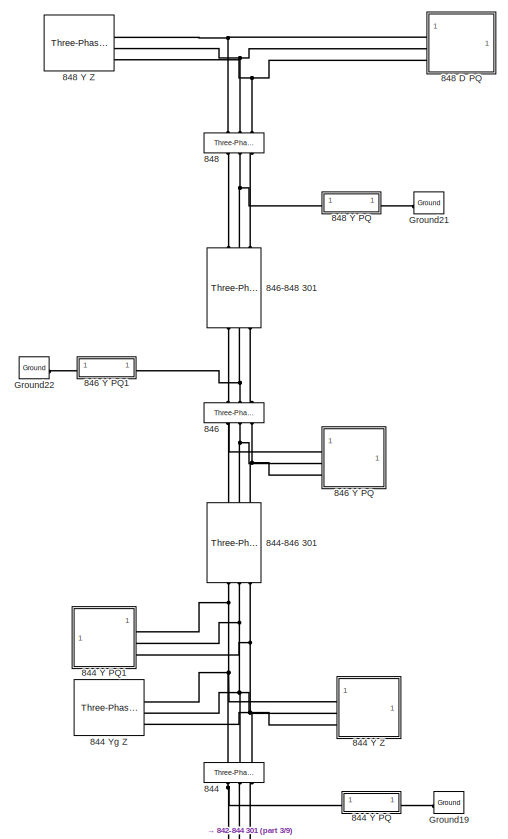
[diagram: root canvas - part 1/9, top right region]
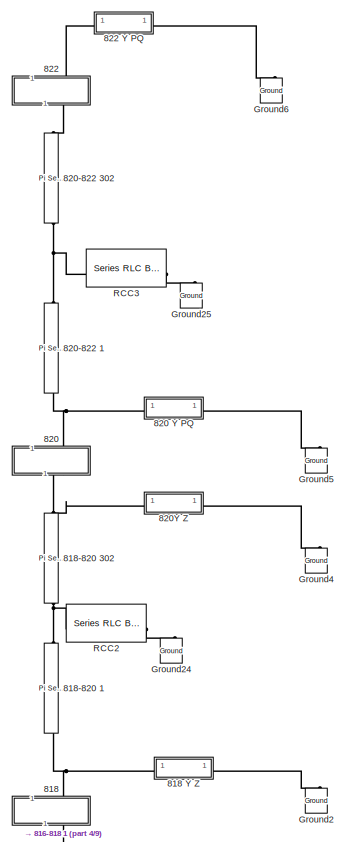
[diagram: root canvas - part 2/9, top center region]
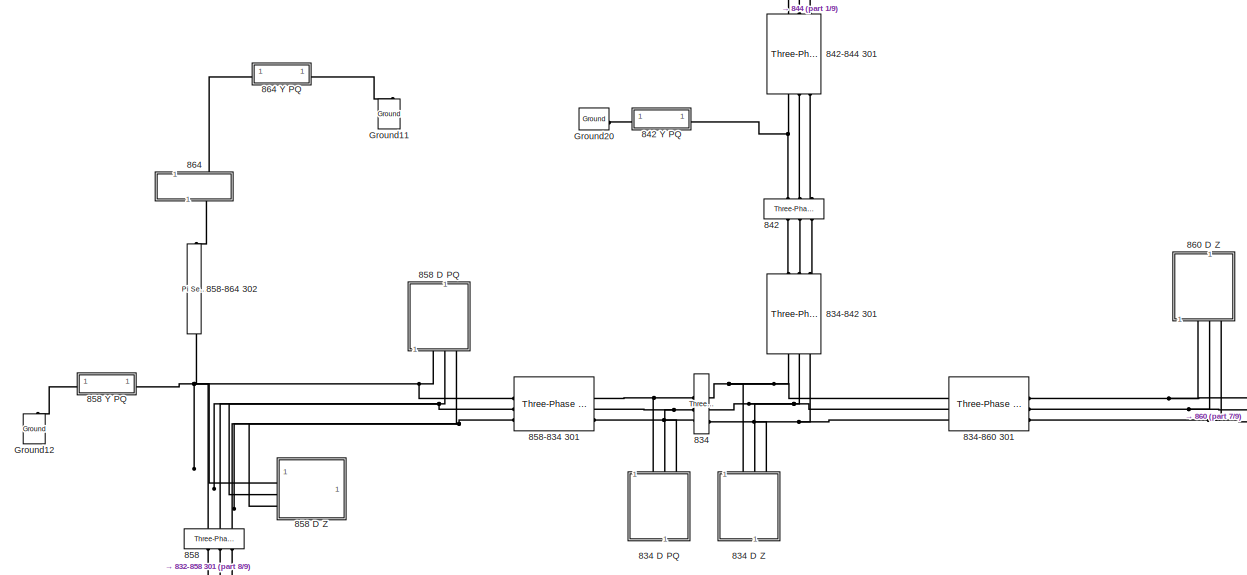
[diagram: root canvas - part 3/9, middle right region]
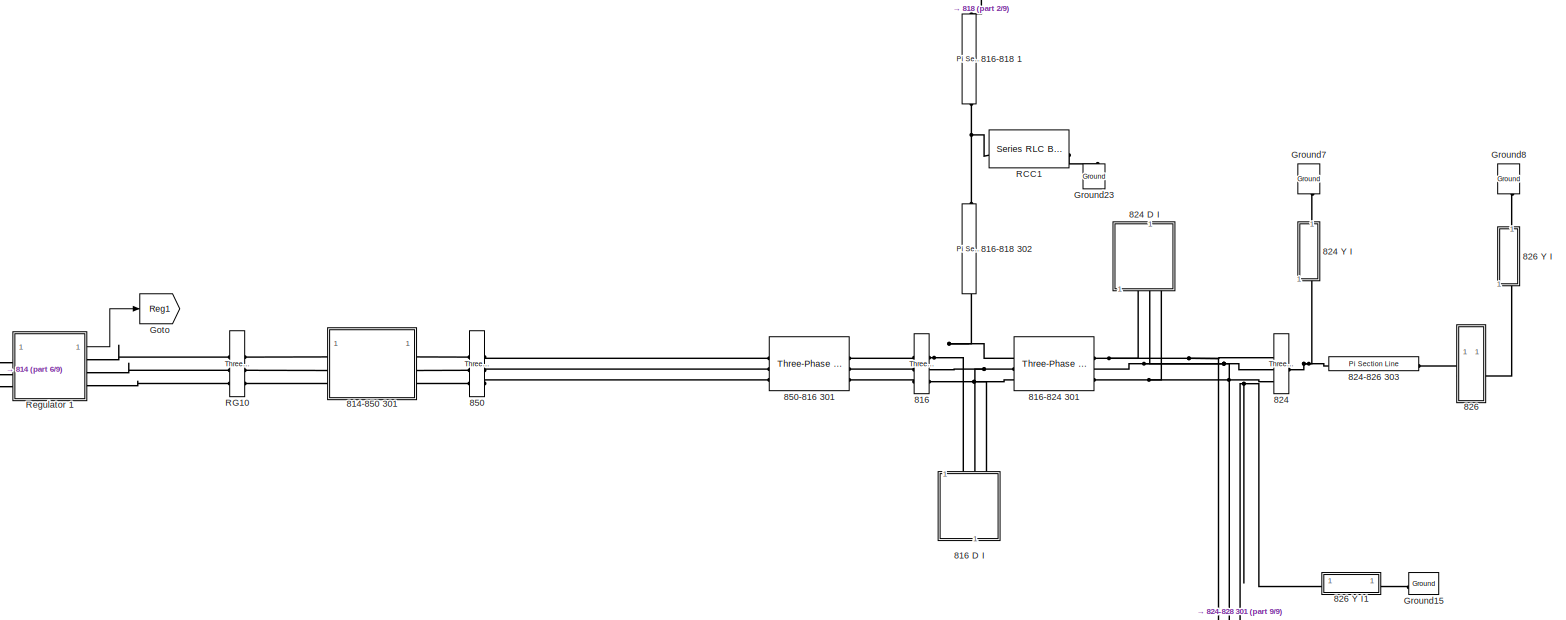
[diagram: root canvas - part 4/9, central region]
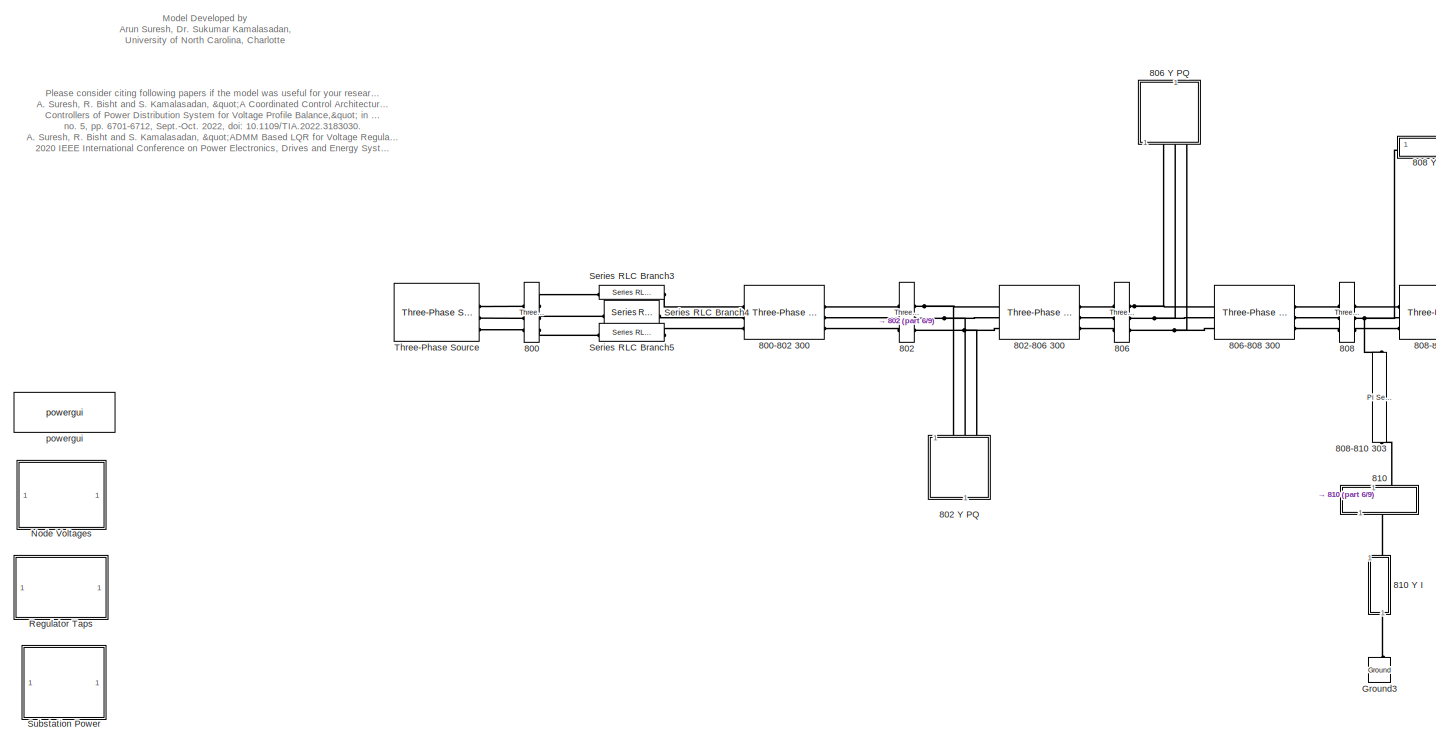
[diagram: root canvas - part 5/9, middle left region]
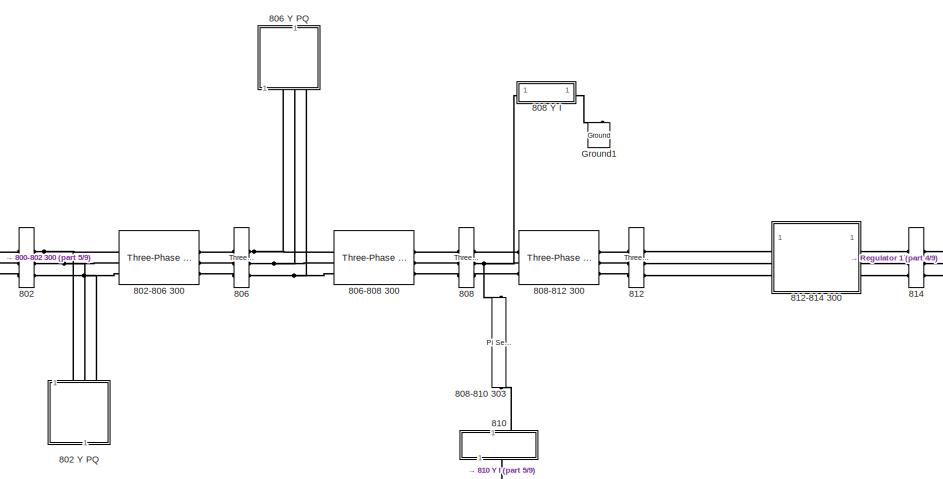
[diagram: root canvas - part 6/9, middle left region]
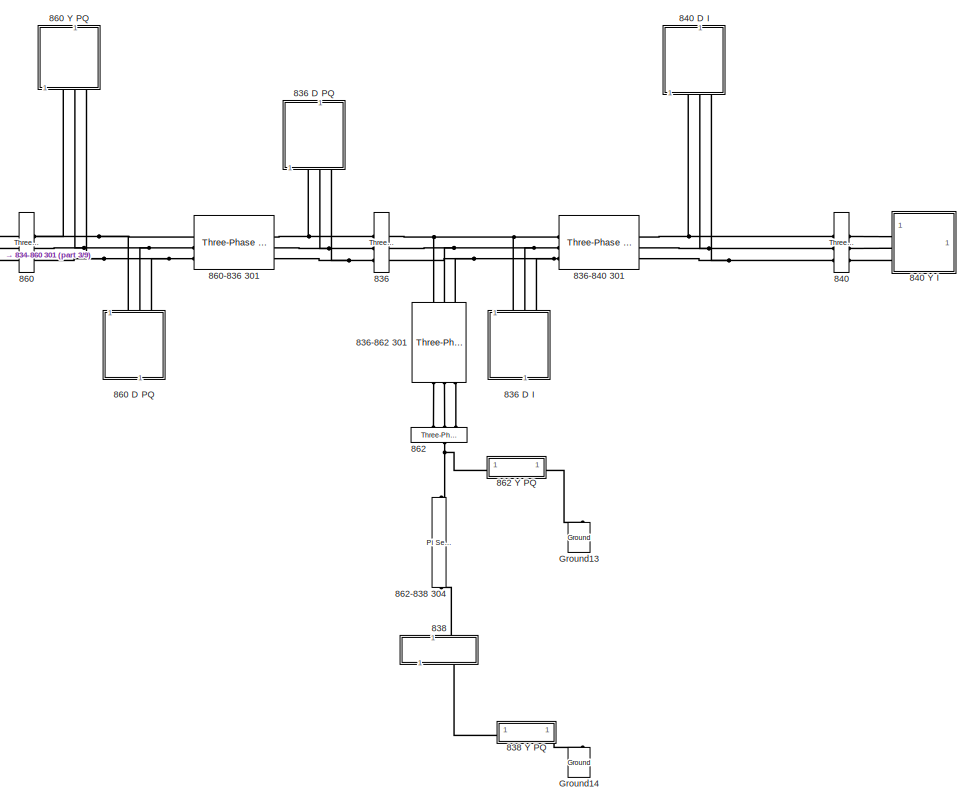
[diagram: root canvas - part 7/9, middle right region]
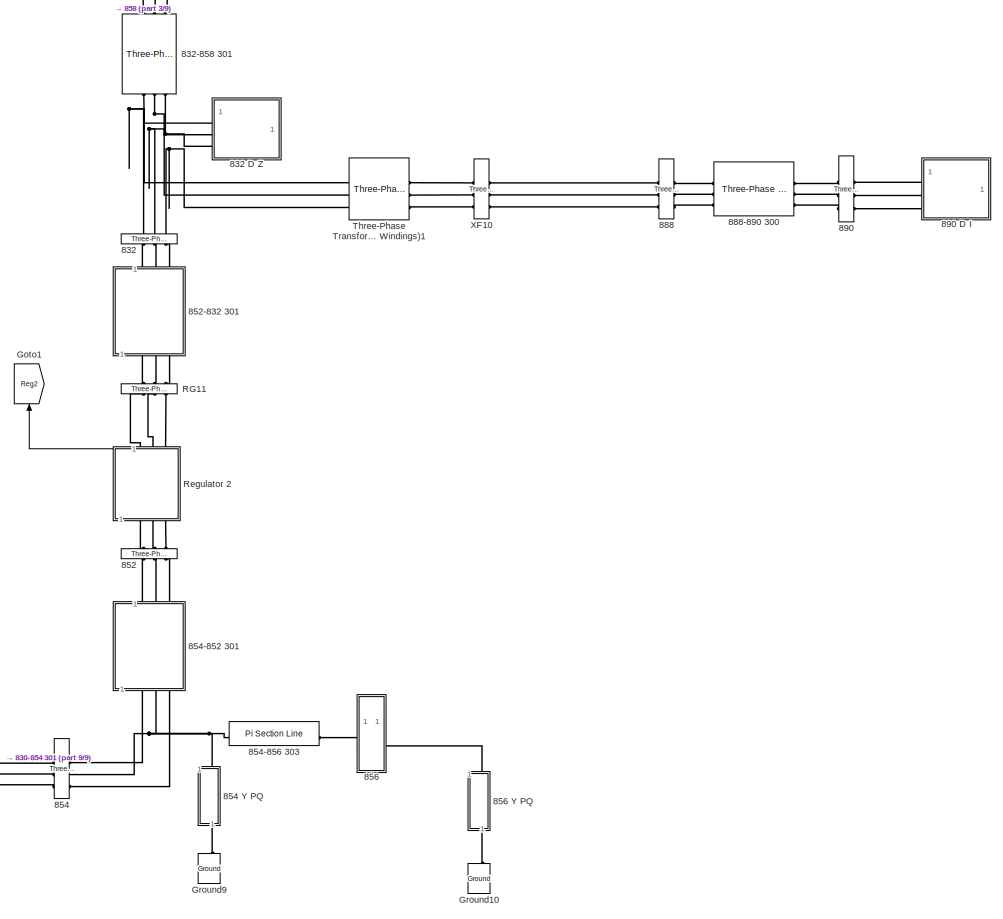
[diagram: root canvas - part 8/9, bottom right region]
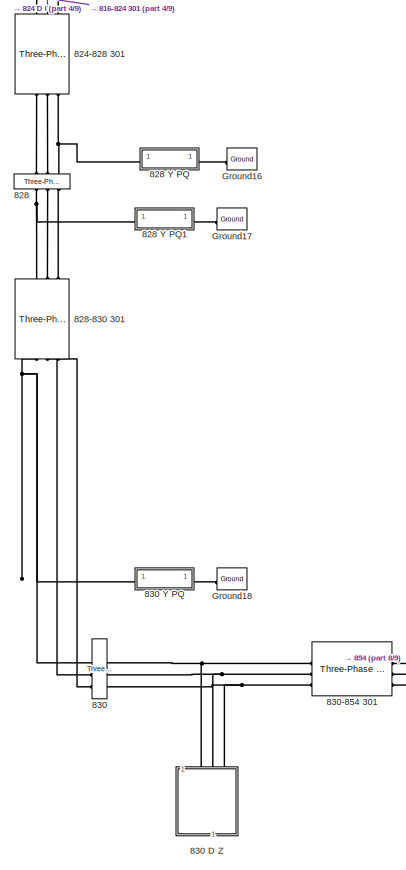
[diagram: root canvas - part 9/9, bottom center region]
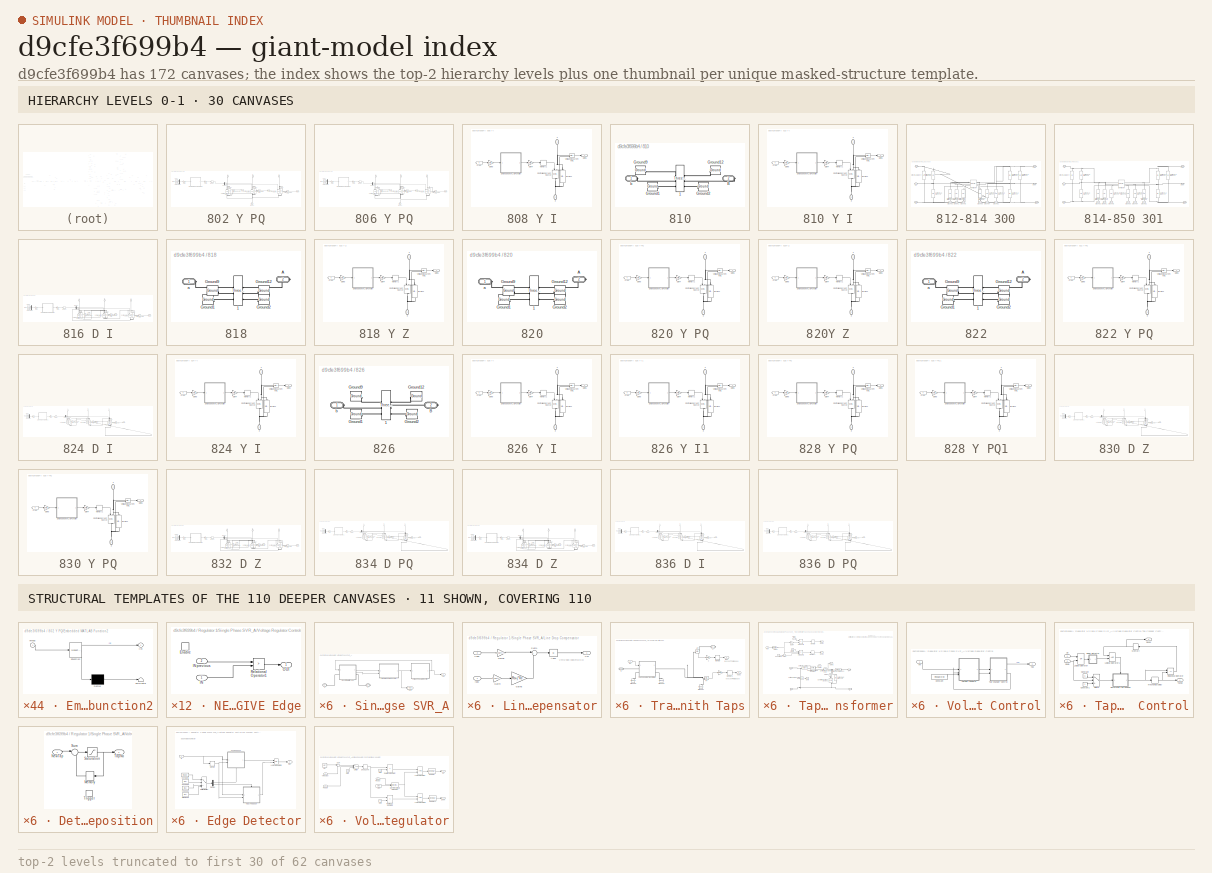
[diagram: thumbnail index - top-2 hierarchy levels (62 canvases (first 30 of 62 shown)) + 11 structural-template representatives of the remaining 110 canvases]
MODEL slx_d9cfe3f699b4
KIND model
CONFIG AbsTol = auto
CONFIG EnableMultiTasking = off
CONFIG FixedStep = Ts
CONFIG InitFcn = a=1; % Loading Factor\nTs=0.1;% For Delay Blocks in Voltage Regulator Controls\n% phase to sequence conversion of RXB matrices\nc=1*exp(sqrt(-1)*(120*pi/180));\nT=[1 1 1;1 c*c c;1 c c*c];\nTinv=1/3*[1 1 1;1 c c*c;1 c*c c];\n\n% Simulation data for the IEEE 34 Node Test Feeder model\nmi2km = 1.60934;%  miles to km conversion\nft2km = 0.0003048; % feet to km conversion\nms2F = 1*1e-6/(2*pi*60);% microsiemens ...<+2488ch>
CONFIG MaxStep = 1e-4
CONFIG MinStep = auto
CONFIG RelTol = 1e-4
CONFIG SampleTimeConstraint = Unconstrained
CONFIG SolverName = ode4
CONFIG StartTime = 0.0
CONFIG StopTime = 60
BLOCK [Reference] 800  REF=spsThreePhaseVIMeasurementLib/Three-Phase
V-I Measurement
  LibrarySourceBlock = sps_lib/Sensors and Measurements/Three-Phase\nV-I Measurement
  SourceBlock = spsThreePhaseVIMeasurementLib/Three-Phase\nV-I Measurement
  SourceType = Three-Phase VI Measurement
BLOCK [Reference] 800-802 300  REF=spsThreePhasePISectionLineLib/Three-Phase
PI Section Line
  AttributesFormatString = \n
  LibrarySourceBlock = sps_lib/Power Grid Elements/Three-Phase\nPI Section Line
  SourceBlock = spsThreePhasePISectionLineLib/Three-Phase\nPI Section Line
  SourceType = Three-Phase PI Section Line
BLOCK [Reference] 802  REF=spsThreePhaseVIMeasurementLib/Three-Phase
V-I Measurement
  LibrarySourceBlock = sps_lib/Sensors and Measurements/Three-Phase\nV-I Measurement
  SourceBlock = spsThreePhaseVIMeasurementLib/Three-Phase\nV-I Measurement
  SourceType = Three-Phase VI Measurement
BLOCK [SubSystem] 802 Y PQ
  NameLocation = right
BLOCK [PMIOPort] 802 Y PQ/ A
  NameLocation = left
  Side = Left
  Tag = PMCPort
BLOCK [PMIOPort] 802 Y PQ/ B
  NameLocation = left
  Port = 2
  Side = Left
  Tag = PMCPort
BLOCK [PMIOPort] 802 Y PQ/ C
  NameLocation = left
  Port = 3
  Side = Left
  Tag = PMCPort
BLOCK [Reference] 802 Y PQ/Controlled Current Source  REF=spsControlledCurrentSourceLib/Controlled Current Source
  LibrarySourceBlock = sps_lib/Sources/Controlled Current Source
  NameLocation = left
  SourceBlock = spsControlledCurrentSourceLib/Controlled Current Source
  SourceType = Controlled Current Source
BLOCK [Reference] 802 Y PQ/Controlled Current Source1  REF=spsControlledCurrentSourceLib/Controlled Current Source
  LibrarySourceBlock = sps_lib/Sources/Controlled Current Source
  NameLocation = left
  SourceBlock = spsControlledCurrentSourceLib/Controlled Current Source
  SourceType = Controlled Current Source
BLOCK [Reference] 802 Y PQ/Controlled Current Source2  REF=spsControlledCurrentSourceLib/Controlled Current Source
  LibrarySourceBlock = sps_lib/Sources/Controlled Current Source
  NameLocation = left
  SourceBlock = spsControlledCurrentSourceLib/Controlled Current Source
  SourceType = Controlled Current Source
BLOCK [Demux] 802 Y PQ/Demux1
  Outputs = 3
BLOCK [SubSystem] 802 Y PQ/Embedded MATLAB Function2
  ErrorFcn = Stateflow.Translate.translate
  PermitHierarchicalResolution = ExplicitOnly
  SFBlockType = MATLAB Function
  TreatAsAtomicUnit = on
BLOCK [Demux] 802 Y PQ/Embedded MATLAB Function2/ Demux 
  Outputs = 1
BLOCK [S-Function] 802 Y PQ/Embedded MATLAB Function2/ SFunction 
  EnableBusSupport = on
  FunctionName = sf_sfun
  Parameters = LoadType,Pnom,Qnom,Vlim,Vnom
  PortCounts = [1 2]
  SFcnIsStateOwnerBlock = off
  SFunctionDeploymentMode = off
  Tag = Stateflow S-Function 5
BLOCK [Terminator] 802 Y PQ/Embedded MATLAB Function2/ Terminator 
BLOCK [Outport] 802 Y PQ/Embedded MATLAB Function2/Iinj
BLOCK [Inport] 802 Y PQ/Embedded MATLAB Function2/Vmeas
BLOCK [From] 802 Y PQ/From21
  CloseFcn = tagdialog Close
  GotoTag = vC
BLOCK [From] 802 Y PQ/From22
  CloseFcn = tagdialog Close
  GotoTag = vA
BLOCK [From] 802 Y PQ/From3
  CloseFcn = tagdialog Close
  GotoTag = vB
BLOCK [Gain] 802 Y PQ/Gain4
  Gain = sqrt(2)
BLOCK [Gain] 802 Y PQ/Gain5
  Gain = 1/sqrt(2)
BLOCK [Goto] 802 Y PQ/Goto2
  GotoTag = vA
BLOCK [Goto] 802 Y PQ/Goto4
  GotoTag = vB
BLOCK [Goto] 802 Y PQ/Goto5
  GotoTag = vC
BLOCK [Reference] 802 Y PQ/Ground1  REF=spsGroundLib/Ground
  LibrarySourceBlock = sps_lib/Utilities/Ground
  NameLocation = right
  SourceBlock = spsGroundLib/Ground
  SourceType = Ground
BLOCK [Memory] 802 Y PQ/Memory3
BLOCK [Mux] 802 Y PQ/Mux5
  DisplayOption = bar
  Inputs = 3
BLOCK [Reference] 802 Y PQ/Rc+jXc1  REF=spsSeriesRLCBranchLib/Series RLC Branch
  LibrarySourceBlock = sps_lib/Passives/Series RLC Branch
  NameLocation = left
  SourceBlock = spsSeriesRLCBranchLib/Series RLC Branch
  SourceType = Series RLC Branch
BLOCK [Reference] 802 Y PQ/Rc+jXc2  REF=spsSeriesRLCBranchLib/Series RLC Branch
  LibrarySourceBlock = sps_lib/Passives/Series RLC Branch
  NameLocation = left
  SourceBlock = spsSeriesRLCBranchLib/Series RLC Branch
  SourceType = Series RLC Branch
BLOCK [Reference] 802 Y PQ/Rc+jXc3  REF=spsSeriesRLCBranchLib/Series RLC Branch
  LibrarySourceBlock = sps_lib/Passives/Series RLC Branch
  NameLocation = left
  SourceBlock = spsSeriesRLCBranchLib/Series RLC Branch
  SourceType = Series RLC Branch
BLOCK [Reference] 802 Y PQ/Voltage Measurement4  REF=spsVoltageMeasurementLib/Voltage Measurement
  LibrarySourceBlock = sps_lib/Sensors and Measurements/Voltage Measurement
  SourceBlock = spsVoltageMeasurementLib/Voltage Measurement
  SourceType = Voltage Measurement
BLOCK [Reference] 802 Y PQ/Voltage Measurement5  REF=spsVoltageMeasurementLib/Voltage Measurement
  LibrarySourceBlock = sps_lib/Sensors and Measurements/Voltage Measurement
  SourceBlock = spsVoltageMeasurementLib/Voltage Measurement
  SourceType = Voltage Measurement
BLOCK [Reference] 802 Y PQ/Voltage Measurement6  REF=spsVoltageMeasurementLib/Voltage Measurement
  LibrarySourceBlock = sps_lib/Sensors and Measurements/Voltage Measurement
  SourceBlock = spsVoltageMeasurementLib/Voltage Measurement
  SourceType = Voltage Measurement
BLOCK [Reference] 802-806 300  REF=spsThreePhasePISectionLineLib/Three-Phase
PI Section Line
  AttributesFormatString = \n
  LibrarySourceBlock = sps_lib/Power Grid Elements/Three-Phase\nPI Section Line
  SourceBlock = spsThreePhasePISectionLineLib/Three-Phase\nPI Section Line
  SourceType = Three-Phase PI Section Line
BLOCK [Reference] 806  REF=spsThreePhaseVIMeasurementLib/Three-Phase
V-I Measurement
  LibrarySourceBlock = sps_lib/Sensors and Measurements/Three-Phase\nV-I Measurement
  SourceBlock = spsThreePhaseVIMeasurementLib/Three-Phase\nV-I Measurement
  SourceType = Three-Phase VI Measurement
BLOCK [SubSystem] 806 Y PQ
  NameLocation = left
BLOCK [PMIOPort] 806 Y PQ/ A
  NameLocation = left
  Side = Left
  Tag = PMCPort
BLOCK [PMIOPort] 806 Y PQ/ B
  NameLocation = left
  Port = 2
  Side = Left
  Tag = PMCPort
BLOCK [PMIOPort] 806 Y PQ/ C
  NameLocation = left
  Port = 3
  Side = Left
  Tag = PMCPort
BLOCK [Reference] 806 Y PQ/Controlled Current Source  REF=spsControlledCurrentSourceLib/Controlled Current Source
  LibrarySourceBlock = sps_lib/Sources/Controlled Current Source
  NameLocation = left
  SourceBlock = spsControlledCurrentSourceLib/Controlled Current Source
  SourceType = Controlled Current Source
BLOCK [Reference] 806 Y PQ/Controlled Current Source1  REF=spsControlledCurrentSourceLib/Controlled Current Source
  LibrarySourceBlock = sps_lib/Sources/Controlled Current Source
  NameLocation = left
  SourceBlock = spsControlledCurrentSourceLib/Controlled Current Source
  SourceType = Controlled Current Source
BLOCK [Reference] 806 Y PQ/Controlled Current Source2  REF=spsControlledCurrentSourceLib/Controlled Current Source
  LibrarySourceBlock = sps_lib/Sources/Controlled Current Source
  NameLocation = left
  SourceBlock = spsControlledCurrentSourceLib/Controlled Current Source
  SourceType = Controlled Current Source
BLOCK [Demux] 806 Y PQ/Demux1
  Outputs = 3
BLOCK [SubSystem] 806 Y PQ/Embedded MATLAB Function2
  ErrorFcn = Stateflow.Translate.translate
  PermitHierarchicalResolution = ExplicitOnly
  SFBlockType = MATLAB Function
  TreatAsAtomicUnit = on
BLOCK [Demux] 806 Y PQ/Embedded MATLAB Function2/ Demux 
  Outputs = 1
BLOCK [S-Function] 806 Y PQ/Embedded MATLAB Function2/ SFunction 
  EnableBusSupport = on
  FunctionName = sf_sfun
  Parameters = LoadType,Pnom,Qnom,Vlim,Vnom
  PortCounts = [1 2]
  SFcnIsStateOwnerBlock = off
  SFunctionDeploymentMode = off
  Tag = Stateflow S-Function 6
BLOCK [Terminator] 806 Y PQ/Embedded MATLAB Function2/ Terminator 
BLOCK [Outport] 806 Y PQ/Embedded MATLAB Function2/Iinj
BLOCK [Inport] 806 Y PQ/Embedded MATLAB Function2/Vmeas
BLOCK [From] 806 Y PQ/From21
  CloseFcn = tagdialog Close
  GotoTag = vC
BLOCK [From] 806 Y PQ/From22
  CloseFcn = tagdialog Close
  GotoTag = vA
BLOCK [From] 806 Y PQ/From3
  CloseFcn = tagdialog Close
  GotoTag = vB
BLOCK [Gain] 806 Y PQ/Gain4
  Gain = sqrt(2)
BLOCK [Gain] 806 Y PQ/Gain5
  Gain = 1/sqrt(2)
BLOCK [Goto] 806 Y PQ/Goto2
  GotoTag = vA
BLOCK [Goto] 806 Y PQ/Goto4
  GotoTag = vB
BLOCK [Goto] 806 Y PQ/Goto5
  GotoTag = vC
BLOCK [Reference] 806 Y PQ/Ground1  REF=spsGroundLib/Ground
  LibrarySourceBlock = sps_lib/Utilities/Ground
  NameLocation = right
  SourceBlock = spsGroundLib/Ground
  SourceType = Ground
BLOCK [Memory] 806 Y PQ/Memory3
BLOCK [Mux] 806 Y PQ/Mux5
  DisplayOption = bar
  Inputs = 3
BLOCK [Reference] 806 Y PQ/Rc+jXc1  REF=spsSeriesRLCBranchLib/Series RLC Branch
  LibrarySourceBlock = sps_lib/Passives/Series RLC Branch
  NameLocation = left
  SourceBlock = spsSeriesRLCBranchLib/Series RLC Branch
  SourceType = Series RLC Branch
BLOCK [Reference] 806 Y PQ/Rc+jXc2  REF=spsSeriesRLCBranchLib/Series RLC Branch
  LibrarySourceBlock = sps_lib/Passives/Series RLC Branch
  NameLocation = left
  SourceBlock = spsSeriesRLCBranchLib/Series RLC Branch
  SourceType = Series RLC Branch
BLOCK [Reference] 806 Y PQ/Rc+jXc3  REF=spsSeriesRLCBranchLib/Series RLC Branch
  LibrarySourceBlock = sps_lib/Passives/Series RLC Branch
  NameLocation = left
  SourceBlock = spsSeriesRLCBranchLib/Series RLC Branch
  SourceType = Series RLC Branch
BLOCK [Reference] 806 Y PQ/Voltage Measurement4  REF=spsVoltageMeasurementLib/Voltage Measurement
  LibrarySourceBlock = sps_lib/Sensors and Measurements/Voltage Measurement
  SourceBlock = spsVoltageMeasurementLib/Voltage Measurement
  SourceType = Voltage Measurement
BLOCK [Reference] 806 Y PQ/Voltage Measurement5  REF=spsVoltageMeasurementLib/Voltage Measurement
  LibrarySourceBlock = sps_lib/Sensors and Measurements/Voltage Measurement
  SourceBlock = spsVoltageMeasurementLib/Voltage Measurement
  SourceType = Voltage Measurement
BLOCK [Reference] 806 Y PQ/Voltage Measurement6  REF=spsVoltageMeasurementLib/Voltage Measurement
  LibrarySourceBlock = sps_lib/Sensors and Measurements/Voltage Measurement
  SourceBlock = spsVoltageMeasurementLib/Voltage Measurement
  SourceType = Voltage Measurement
BLOCK [Reference] 806-808 300  REF=spsThreePhasePISectionLineLib/Three-Phase
PI Section Line
  AttributesFormatString = \n
  LibrarySourceBlock = sps_lib/Power Grid Elements/Three-Phase\nPI Section Line
  SourceBlock = spsThreePhasePISectionLineLib/Three-Phase\nPI Section Line
  SourceType = Three-Phase PI Section Line
BLOCK [Reference] 808  REF=spsThreePhaseVIMeasurementLib/Three-Phase
V-I Measurement
  LibrarySourceBlock = sps_lib/Sensors and Measurements/Three-Phase\nV-I Measurement
  SourceBlock = spsThreePhaseVIMeasurementLib/Three-Phase\nV-I Measurement
  SourceType = Three-Phase VI Measurement
BLOCK [SubSystem] 808 Y I
BLOCK [PMIOPort] 808 Y I/ 2
  NameLocation = left
  Side = Left
  Tag = PMCPort
BLOCK [PMIOPort] 808 Y I/ 3
  NameLocation = right
  Port = 2
  Side = Right
  Tag = PMCPort
BLOCK [Reference] 808 Y I/Controlled Current Source  REF=spsControlledCurrentSourceLib/Controlled Current Source
  LibrarySourceBlock = sps_lib/Sources/Controlled Current Source
  NameLocation = left
  SourceBlock = spsControlledCurrentSourceLib/Controlled Current Source
  SourceType = Controlled Current Source
BLOCK [SubSystem] 808 Y I/Embedded MATLAB Function
  ErrorFcn = Stateflow.Translate.translate
  PermitHierarchicalResolution = ExplicitOnly
  SFBlockType = MATLAB Function
  TreatAsAtomicUnit = on
BLOCK [Demux] 808 Y I/Embedded MATLAB Function/ Demux 
  Outputs = 1
BLOCK [S-Function] 808 Y I/Embedded MATLAB Function/ SFunction 
  EnableBusSupport = on
  FunctionName = sf_sfun
  Parameters = LoadType,Pnom,Qnom,Vlim,Vnom
  PortCounts = [1 2]
  SFcnIsStateOwnerBlock = off
  SFunctionDeploymentMode = off
  Tag = Stateflow S-Function 50
BLOCK [Terminator] 808 Y I/Embedded MATLAB Function/ Terminator 
BLOCK [Outport] 808 Y I/Embedded MATLAB Function/Iinj
BLOCK [Inport] 808 Y I/Embedded MATLAB Function/Vmeas
BLOCK [From] 808 Y I/From
  GotoTag = v
BLOCK [Gain] 808 Y I/Gain4
  Gain = sqrt(2)
BLOCK [Gain] 808 Y I/Gain5
  Gain = 1/sqrt(2)
BLOCK [Goto] 808 Y I/Goto1
  GotoTag = v
BLOCK [Memory] 808 Y I/Memory1
BLOCK [Reference] 808 Y I/Rc+jXc1  REF=spsSeriesRLCBranchLib/Series RLC Branch
  LibrarySourceBlock = sps_lib/Passives/Series RLC Branch
  NameLocation = left
  SourceBlock = spsSeriesRLCBranchLib/Series RLC Branch
  SourceType = Series RLC Branch
BLOCK [Reference] 808 Y I/Voltage Measurement1  REF=spsVoltageMeasurementLib/Voltage Measurement
  LibrarySourceBlock = sps_lib/Sensors and Measurements/Voltage Measurement
  SourceBlock = spsVoltageMeasurementLib/Voltage Measurement
  SourceType = Voltage Measurement
BLOCK [Reference] 808-810 303  REF=spsPiSectionLineLib/Pi Section Line
  AttributesFormatString = \n
  LibrarySourceBlock = sps_lib/Power Grid Elements/Pi Section Line
  NameLocation = left
  SourceBlock = spsPiSectionLineLib/Pi Section Line
  SourceType = Pi Section Line
BLOCK [Reference] 808-812 300  REF=spsThreePhasePISectionLineLib/Three-Phase
PI Section Line
  AttributesFormatString = \n
  LibrarySourceBlock = sps_lib/Power Grid Elements/Three-Phase\nPI Section Line
  SourceBlock = spsThreePhasePISectionLineLib/Three-Phase\nPI Section Line
  SourceType = Three-Phase PI Section Line
BLOCK [SubSystem] 810
  NameLocation = right
BLOCK [SubSystem] 810 Y I
  NameLocation = left
BLOCK [PMIOPort] 810 Y I/ 2
  NameLocation = left
  Side = Left
  Tag = PMCPort
BLOCK [PMIOPort] 810 Y I/ 3
  NameLocation = right
  Port = 2
  Side = Right
  Tag = PMCPort
BLOCK [Reference] 810 Y I/Controlled Current Source  REF=spsControlledCurrentSourceLib/Controlled Current Source
  LibrarySourceBlock = sps_lib/Sources/Controlled Current Source
  NameLocation = left
  SourceBlock = spsControlledCurrentSourceLib/Controlled Current Source
  SourceType = Controlled Current Source
BLOCK [SubSystem] 810 Y I/Embedded MATLAB Function
  ErrorFcn = Stateflow.Translate.translate
  PermitHierarchicalResolution = ExplicitOnly
  SFBlockType = MATLAB Function
  TreatAsAtomicUnit = on
BLOCK [Demux] 810 Y I/Embedded MATLAB Function/ Demux 
  Outputs = 1
BLOCK [S-Function] 810 Y I/Embedded MATLAB Function/ SFunction 
  EnableBusSupport = on
  FunctionName = sf_sfun
  Parameters = LoadType,Pnom,Qnom,Vlim,Vnom
  PortCounts = [1 2]
  SFcnIsStateOwnerBlock = off
  SFunctionDeploymentMode = off
  Tag = Stateflow S-Function 49
BLOCK [Terminator] 810 Y I/Embedded MATLAB Function/ Terminator 
BLOCK [Outport] 810 Y I/Embedded MATLAB Function/Iinj
BLOCK [Inport] 810 Y I/Embedded MATLAB Function/Vmeas
BLOCK [From] 810 Y I/From
  GotoTag = v
BLOCK [Gain] 810 Y I/Gain4
  Gain = sqrt(2)
BLOCK [Gain] 810 Y I/Gain5
  Gain = 1/sqrt(2)
BLOCK [Goto] 810 Y I/Goto1
  GotoTag = v
BLOCK [Memory] 810 Y I/Memory1
BLOCK [Reference] 810 Y I/Rc+jXc1  REF=spsSeriesRLCBranchLib/Series RLC Branch
  LibrarySourceBlock = sps_lib/Passives/Series RLC Branch
  NameLocation = left
  SourceBlock = spsSeriesRLCBranchLib/Series RLC Branch
  SourceType = Series RLC Branch
BLOCK [Reference] 810 Y I/Voltage Measurement1  REF=spsVoltageMeasurementLib/Voltage Measurement
  LibrarySourceBlock = sps_lib/Sensors and Measurements/Voltage Measurement
  SourceBlock = spsVoltageMeasurementLib/Voltage Measurement
  SourceType = Voltage Measurement
BLOCK [Reference] 810/1  REF=spsThreePhaseVIMeasurementLib/Three-Phase
V-I Measurement
  LibrarySourceBlock = sps_lib/Sensors and Measurements/Three-Phase\nV-I Measurement
  NameLocation = top
  SourceBlock = spsThreePhaseVIMeasurementLib/Three-Phase\nV-I Measurement
  SourceType = Three-Phase VI Measurement
BLOCK [PMIOPort] 810/B
  Port = 2
  Side = Right
BLOCK [Reference] 810/Ground1  REF=spsGroundLib/Ground
  LibrarySourceBlock = sps_lib/Utilities/Ground
  SourceBlock = spsGroundLib/Ground
  SourceType = Ground
BLOCK [Reference] 810/Ground12  REF=spsGroundLib/Ground
  LibrarySourceBlock = sps_lib/Utilities/Ground
  NameLocation = top
  SourceBlock = spsGroundLib/Ground
  SourceType = Ground
BLOCK [Reference] 810/Ground2  REF=spsGroundLib/Ground
  LibrarySourceBlock = sps_lib/Utilities/Ground
  NameLocation = top
  SourceBlock = spsGroundLib/Ground
  SourceType = Ground
BLOCK [Reference] 810/Ground9  REF=spsGroundLib/Ground
  LibrarySourceBlock = sps_lib/Utilities/Ground
  SourceBlock = spsGroundLib/Ground
  SourceType = Ground
BLOCK [PMIOPort] 810/b
  Side = Left
BLOCK [Reference] 812  REF=spsThreePhaseVIMeasurementLib/Three-Phase
V-I Measurement
  LibrarySourceBlock = sps_lib/Sensors and Measurements/Three-Phase\nV-I Measurement
  SourceBlock = spsThreePhaseVIMeasurementLib/Three-Phase\nV-I Measurement
  SourceType = Three-Phase VI Measurement
BLOCK [SubSystem] 812-814 300
BLOCK [PMIOPort] 812-814 300/A In
  NameLocation = top
  Side = Left
BLOCK [PMIOPort] 812-814 300/A Out
  Port = 4
  Side = Right
BLOCK [PMIOPort] 812-814 300/B In
  NameLocation = top
  Port = 2
  Side = Left
BLOCK [PMIOPort] 812-814 300/B Out
  NameLocation = top
  Port = 5
  Side = Right
BLOCK [PMIOPort] 812-814 300/C Out
  NameLocation = top
  Port = 6
  Side = Right
BLOCK [PMIOPort] 812-814 300/C in
  NameLocation = top
  Port = 3
  Side = Left
BLOCK [Reference] 812-814 300/Config300  REF=spsMutualInductanceLib/Mutual Inductance
  AttributesFormatString = \n
  LibrarySourceBlock = sps_lib/Passives/Mutual Inductance
  SourceBlock = spsMutualInductanceLib/Mutual Inductance
  SourceType = Mutual Inductance
BLOCK [Reference] 812-814 300/Ground1  REF=spsGroundLib/Ground
  LibrarySourceBlock = sps_lib/Utilities/Ground
  NameLocation = left
  SourceBlock = spsGroundLib/Ground
  SourceType = Ground
BLOCK [Reference] 812-814 300/Ground2  REF=spsGroundLib/Ground
  LibrarySourceBlock = sps_lib/Utilities/Ground
  NameLocation = left
  SourceBlock = spsGroundLib/Ground
  SourceType = Ground
BLOCK [Reference] 812-814 300/Ground3  REF=spsGroundLib/Ground
  LibrarySourceBlock = sps_lib/Utilities/Ground
  NameLocation = left
  SourceBlock = spsGroundLib/Ground
  SourceType = Ground
BLOCK [Reference] 812-814 300/Ground4  REF=spsGroundLib/Ground
  LibrarySourceBlock = sps_lib/Utilities/Ground
  NameLocation = left
  SourceBlock = spsGroundLib/Ground
  SourceType = Ground
BLOCK [Reference] 812-814 300/Ground5  REF=spsGroundLib/Ground
  LibrarySourceBlock = sps_lib/Utilities/Ground
  NameLocation = left
  SourceBlock = spsGroundLib/Ground
  SourceType = Ground
BLOCK [Reference] 812-814 300/Ground6  REF=spsGroundLib/Ground
  LibrarySourceBlock = sps_lib/Utilities/Ground
  NameLocation = left
  SourceBlock = spsGroundLib/Ground
  SourceType = Ground
BLOCK [Reference] 812-814 300/Series RLC Branch  REF=spsSeriesRLCBranchLib/Series RLC Branch
  LibrarySourceBlock = sps_lib/Passives/Series RLC Branch
  NameLocation = left
  SourceBlock = spsSeriesRLCBranchLib/Series RLC Branch
  SourceType = Series RLC Branch
BLOCK [Reference] 812-814 300/Series RLC Branch1  REF=spsSeriesRLCBranchLib/Series RLC Branch
  LibrarySourceBlock = sps_lib/Passives/Series RLC Branch
  NameLocation = left
  SourceBlock = spsSeriesRLCBranchLib/Series RLC Branch
  SourceType = Series RLC Branch
BLOCK [Reference] 812-814 300/Series RLC Branch10  REF=spsSeriesRLCBranchLib/Series RLC Branch
  LibrarySourceBlock = sps_lib/Passives/Series RLC Branch
  NameLocation = left
  SourceBlock = spsSeriesRLCBranchLib/Series RLC Branch
  SourceType = Series RLC Branch
BLOCK [Reference] 812-814 300/Series RLC Branch11  REF=spsSeriesRLCBranchLib/Series RLC Branch
  LibrarySourceBlock = sps_lib/Passives/Series RLC Branch
  NameLocation = left
  SourceBlock = spsSeriesRLCBranchLib/Series RLC Branch
  SourceType = Series RLC Branch
BLOCK [Reference] 812-814 300/Series RLC Branch2  REF=spsSeriesRLCBranchLib/Series RLC Branch
  LibrarySourceBlock = sps_lib/Passives/Series RLC Branch
  NameLocation = left
  SourceBlock = spsSeriesRLCBranchLib/Series RLC Branch
  SourceType = Series RLC Branch
BLOCK [Reference] 812-814 300/Series RLC Branch3  REF=spsSeriesRLCBranchLib/Series RLC Branch
  LibrarySourceBlock = sps_lib/Passives/Series RLC Branch
  NameLocation = left
  SourceBlock = spsSeriesRLCBranchLib/Series RLC Branch
  SourceType = Series RLC Branch
BLOCK [Reference] 812-814 300/Series RLC Branch4  REF=spsSeriesRLCBranchLib/Series RLC Branch
  LibrarySourceBlock = sps_lib/Passives/Series RLC Branch
  NameLocation = left
  SourceBlock = spsSeriesRLCBranchLib/Series RLC Branch
  SourceType = Series RLC Branch
BLOCK [Reference] 812-814 300/Series RLC Branch5  REF=spsSeriesRLCBranchLib/Series RLC Branch
  LibrarySourceBlock = sps_lib/Passives/Series RLC Branch
  NameLocation = left
  SourceBlock = spsSeriesRLCBranchLib/Series RLC Branch
  SourceType = Series RLC Branch
BLOCK [Reference] 812-814 300/Series RLC Branch6  REF=spsSeriesRLCBranchLib/Series RLC Branch
  LibrarySourceBlock = sps_lib/Passives/Series RLC Branch
  NameLocation = left
  SourceBlock = spsSeriesRLCBranchLib/Series RLC Branch
  SourceType = Series RLC Branch
BLOCK [Reference] 812-814 300/Series RLC Branch7  REF=spsSeriesRLCBranchLib/Series RLC Branch
  LibrarySourceBlock = sps_lib/Passives/Series RLC Branch
  NameLocation = left
  SourceBlock = spsSeriesRLCBranchLib/Series RLC Branch
  SourceType = Series RLC Branch
BLOCK [Reference] 812-814 300/Series RLC Branch8  REF=spsSeriesRLCBranchLib/Series RLC Branch
  LibrarySourceBlock = sps_lib/Passives/Series RLC Branch
  NameLocation = left
  SourceBlock = spsSeriesRLCBranchLib/Series RLC Branch
  SourceType = Series RLC Branch
BLOCK [Reference] 812-814 300/Series RLC Branch9  REF=spsSeriesRLCBranchLib/Series RLC Branch
  LibrarySourceBlock = sps_lib/Passives/Series RLC Branch
  NameLocation = left
  SourceBlock = spsSeriesRLCBranchLib/Series RLC Branch
  SourceType = Series RLC Branch
BLOCK [Reference] 814  REF=spsThreePhaseVIMeasurementLib/Three-Phase
V-I Measurement
  LibrarySourceBlock = sps_lib/Sensors and Measurements/Three-Phase\nV-I Measurement
  SourceBlock = spsThreePhaseVIMeasurementLib/Three-Phase\nV-I Measurement
  SourceType = Three-Phase VI Measurement
BLOCK [SubSystem] 814-850 301
BLOCK [PMIOPort] 814-850 301/A In
  NameLocation = top
  Side = Left
BLOCK [PMIOPort] 814-850 301/A Out
  Port = 4
  Side = Right
BLOCK [PMIOPort] 814-850 301/B In
  NameLocation = top
  Port = 2
  Side = Left
BLOCK [PMIOPort] 814-850 301/B Out
  NameLocation = top
  Port = 5
  Side = Right
BLOCK [PMIOPort] 814-850 301/C Out
  NameLocation = top
  Port = 6
  Side = Right
BLOCK [PMIOPort] 814-850 301/C in
  NameLocation = top
  Port = 3
  Side = Left
BLOCK [Reference] 814-850 301/Config300  REF=spsMutualInductanceLib/Mutual Inductance
  AttributesFormatString = \n
  LibrarySourceBlock = sps_lib/Passives/Mutual Inductance
  SourceBlock = spsMutualInductanceLib/Mutual Inductance
  SourceType = Mutual Inductance
BLOCK [Reference] 814-850 301/Ground1  REF=spsGroundLib/Ground
  LibrarySourceBlock = sps_lib/Utilities/Ground
  NameLocation = left
  SourceBlock = spsGroundLib/Ground
  SourceType = Ground
BLOCK [Reference] 814-850 301/Ground2  REF=spsGroundLib/Ground
  LibrarySourceBlock = sps_lib/Utilities/Ground
  NameLocation = left
  SourceBlock = spsGroundLib/Ground
  SourceType = Ground
BLOCK [Reference] 814-850 301/Ground3  REF=spsGroundLib/Ground
  LibrarySourceBlock = sps_lib/Utilities/Ground
  NameLocation = left
  SourceBlock = spsGroundLib/Ground
  SourceType = Ground
BLOCK [Reference] 814-850 301/Ground4  REF=spsGroundLib/Ground
  LibrarySourceBlock = sps_lib/Utilities/Ground
  NameLocation = left
  SourceBlock = spsGroundLib/Ground
  SourceType = Ground
BLOCK [Reference] 814-850 301/Ground5  REF=spsGroundLib/Ground
  LibrarySourceBlock = sps_lib/Utilities/Ground
  NameLocation = left
  SourceBlock = spsGroundLib/Ground
  SourceType = Ground
BLOCK [Reference] 814-850 301/Ground6  REF=spsGroundLib/Ground
  LibrarySourceBlock = sps_lib/Utilities/Ground
  NameLocation = left
  SourceBlock = spsGroundLib/Ground
  SourceType = Ground
BLOCK [Reference] 814-850 301/Series RLC Branch  REF=spsSeriesRLCBranchLib/Series RLC Branch
  LibrarySourceBlock = sps_lib/Passives/Series RLC Branch
  NameLocation = left
  SourceBlock = spsSeriesRLCBranchLib/Series RLC Branch
  SourceType = Series RLC Branch
BLOCK [Reference] 814-850 301/Series RLC Branch1  REF=spsSeriesRLCBranchLib/Series RLC Branch
  LibrarySourceBlock = sps_lib/Passives/Series RLC Branch
  NameLocation = left
  SourceBlock = spsSeriesRLCBranchLib/Series RLC Branch
  SourceType = Series RLC Branch
BLOCK [Reference] 814-850 301/Series RLC Branch10  REF=spsSeriesRLCBranchLib/Series RLC Branch
  LibrarySourceBlock = sps_lib/Passives/Series RLC Branch
  NameLocation = left
  SourceBlock = spsSeriesRLCBranchLib/Series RLC Branch
  SourceType = Series RLC Branch
BLOCK [Reference] 814-850 301/Series RLC Branch11  REF=spsSeriesRLCBranchLib/Series RLC Branch
  LibrarySourceBlock = sps_lib/Passives/Series RLC Branch
  NameLocation = left
  SourceBlock = spsSeriesRLCBranchLib/Series RLC Branch
  SourceType = Series RLC Branch
BLOCK [Reference] 814-850 301/Series RLC Branch2  REF=spsSeriesRLCBranchLib/Series RLC Branch
  LibrarySourceBlock = sps_lib/Passives/Series RLC Branch
  NameLocation = left
  SourceBlock = spsSeriesRLCBranchLib/Series RLC Branch
  SourceType = Series RLC Branch
BLOCK [Reference] 814-850 301/Series RLC Branch3  REF=spsSeriesRLCBranchLib/Series RLC Branch
  LibrarySourceBlock = sps_lib/Passives/Series RLC Branch
  NameLocation = left
  SourceBlock = spsSeriesRLCBranchLib/Series RLC Branch
  SourceType = Series RLC Branch
BLOCK [Reference] 814-850 301/Series RLC Branch4  REF=spsSeriesRLCBranchLib/Series RLC Branch
  LibrarySourceBlock = sps_lib/Passives/Series RLC Branch
  NameLocation = left
  SourceBlock = spsSeriesRLCBranchLib/Series RLC Branch
  SourceType = Series RLC Branch
BLOCK [Reference] 814-850 301/Series RLC Branch5  REF=spsSeriesRLCBranchLib/Series RLC Branch
  LibrarySourceBlock = sps_lib/Passives/Series RLC Branch
  NameLocation = left
  SourceBlock = spsSeriesRLCBranchLib/Series RLC Branch
  SourceType = Series RLC Branch
BLOCK [Reference] 814-850 301/Series RLC Branch6  REF=spsSeriesRLCBranchLib/Series RLC Branch
  LibrarySourceBlock = sps_lib/Passives/Series RLC Branch
  NameLocation = left
  SourceBlock = spsSeriesRLCBranchLib/Series RLC Branch
  SourceType = Series RLC Branch
BLOCK [Reference] 814-850 301/Series RLC Branch7  REF=spsSeriesRLCBranchLib/Series RLC Branch
  LibrarySourceBlock = sps_lib/Passives/Series RLC Branch
  NameLocation = left
  SourceBlock = spsSeriesRLCBranchLib/Series RLC Branch
  SourceType = Series RLC Branch
BLOCK [Reference] 814-850 301/Series RLC Branch8  REF=spsSeriesRLCBranchLib/Series RLC Branch
  LibrarySourceBlock = sps_lib/Passives/Series RLC Branch
  NameLocation = left
  SourceBlock = spsSeriesRLCBranchLib/Series RLC Branch
  SourceType = Series RLC Branch
BLOCK [Reference] 814-850 301/Series RLC Branch9  REF=spsSeriesRLCBranchLib/Series RLC Branch
  LibrarySourceBlock = sps_lib/Passives/Series RLC Branch
  NameLocation = left
  SourceBlock = spsSeriesRLCBranchLib/Series RLC Branch
  SourceType = Series RLC Branch
BLOCK [Reference] 816   REF=spsThreePhaseVIMeasurementLib/Three-Phase
V-I Measurement
  LibrarySourceBlock = sps_lib/Sensors and Measurements/Three-Phase\nV-I Measurement
  SourceBlock = spsThreePhaseVIMeasurementLib/Three-Phase\nV-I Measurement
  SourceType = Three-Phase VI Measurement
BLOCK [SubSystem] 816 D I
  NameLocation = right
BLOCK [PMIOPort] 816 D I/ A
  NameLocation = left
  Side = Left
  Tag = PMCPort
BLOCK [PMIOPort] 816 D I/ B
  NameLocation = left
  Port = 2
  Side = Left
  Tag = PMCPort
BLOCK [PMIOPort] 816 D I/ C
  NameLocation = left
  Port = 3
  Side = Left
  Tag = PMCPort
BLOCK [Reference] 816 D I/Controlled Current Source  REF=spsControlledCurrentSourceLib/Controlled Current Source
  LibrarySourceBlock = sps_lib/Sources/Controlled Current Source
  NameLocation = left
  SourceBlock = spsControlledCurrentSourceLib/Controlled Current Source
  SourceType = Controlled Current Source
BLOCK [Reference] 816 D I/Controlled Current Source1  REF=spsControlledCurrentSourceLib/Controlled Current Source
  LibrarySourceBlock = sps_lib/Sources/Controlled Current Source
  NameLocation = left
  SourceBlock = spsControlledCurrentSourceLib/Controlled Current Source
  SourceType = Controlled Current Source
BLOCK [Reference] 816 D I/Controlled Current Source2  REF=spsControlledCurrentSourceLib/Controlled Current Source
  LibrarySourceBlock = sps_lib/Sources/Controlled Current Source
  NameLocation = left
  SourceBlock = spsControlledCurrentSourceLib/Controlled Current Source
  SourceType = Controlled Current Source
BLOCK [Demux] 816 D I/Demux1
  Outputs = 3
BLOCK [SubSystem] 816 D I/Embedded MATLAB Function2
  ErrorFcn = Stateflow.Translate.translate
  PermitHierarchicalResolution = ExplicitOnly
  SFBlockType = MATLAB Function
  TreatAsAtomicUnit = on
BLOCK [Demux] 816 D I/Embedded MATLAB Function2/ Demux 
  Outputs = 1
BLOCK [S-Function] 816 D I/Embedded MATLAB Function2/ SFunction 
  EnableBusSupport = on
  FunctionName = sf_sfun
  Parameters = LoadType,Pnom,Qnom,Vlim,Vnom
  PortCounts = [1 2]
  SFcnIsStateOwnerBlock = off
  SFunctionDeploymentMode = off
  Tag = Stateflow S-Function 7
BLOCK [Terminator] 816 D I/Embedded MATLAB Function2/ Terminator 
BLOCK [Outport] 816 D I/Embedded MATLAB Function2/Iinj
BLOCK [Inport] 816 D I/Embedded MATLAB Function2/Vmeas
BLOCK [From] 816 D I/From21
  CloseFcn = tagdialog Close
  GotoTag = vC
BLOCK [From] 816 D I/From22
  CloseFcn = tagdialog Close
  GotoTag = vA
BLOCK [From] 816 D I/From3
  CloseFcn = tagdialog Close
  GotoTag = vB
BLOCK [Gain] 816 D I/Gain4
  Gain = sqrt(2)
BLOCK [Gain] 816 D I/Gain5
  Gain = 1/sqrt(2)
BLOCK [Goto] 816 D I/Goto2
  GotoTag = vA
BLOCK [Goto] 816 D I/Goto4
  GotoTag = vB
BLOCK [Goto] 816 D I/Goto5
  GotoTag = vC
BLOCK [Memory] 816 D I/Memory3
BLOCK [Mux] 816 D I/Mux5
  DisplayOption = bar
  Inputs = 3
BLOCK [Reference] 816 D I/Rc+jXc1  REF=spsSeriesRLCBranchLib/Series RLC Branch
  LibrarySourceBlock = sps_lib/Passives/Series RLC Branch
  NameLocation = left
  SourceBlock = spsSeriesRLCBranchLib/Series RLC Branch
  SourceType = Series RLC Branch
BLOCK [Reference] 816 D I/Rc+jXc2  REF=spsSeriesRLCBranchLib/Series RLC Branch
  LibrarySourceBlock = sps_lib/Passives/Series RLC Branch
  NameLocation = left
  SourceBlock = spsSeriesRLCBranchLib/Series RLC Branch
  SourceType = Series RLC Branch
BLOCK [Reference] 816 D I/Rc+jXc3  REF=spsSeriesRLCBranchLib/Series RLC Branch
  LibrarySourceBlock = sps_lib/Passives/Series RLC Branch
  NameLocation = left
  SourceBlock = spsSeriesRLCBranchLib/Series RLC Branch
  SourceType = Series RLC Branch
BLOCK [Reference] 816 D I/Voltage Measurement4  REF=spsVoltageMeasurementLib/Voltage Measurement
  LibrarySourceBlock = sps_lib/Sensors and Measurements/Voltage Measurement
  SourceBlock = spsVoltageMeasurementLib/Voltage Measurement
  SourceType = Voltage Measurement
BLOCK [Reference] 816 D I/Voltage Measurement5  REF=spsVoltageMeasurementLib/Voltage Measurement
  LibrarySourceBlock = sps_lib/Sensors and Measurements/Voltage Measurement
  SourceBlock = spsVoltageMeasurementLib/Voltage Measurement
  SourceType = Voltage Measurement
BLOCK [Reference] 816 D I/Voltage Measurement6  REF=spsVoltageMeasurementLib/Voltage Measurement
  LibrarySourceBlock = sps_lib/Sensors and Measurements/Voltage Measurement
  SourceBlock = spsVoltageMeasurementLib/Voltage Measurement
  SourceType = Voltage Measurement
BLOCK [Reference] 816-818 1  REF=spsPiSectionLineLib/Pi Section Line
  AttributesFormatString = \n
  LibrarySourceBlock = sps_lib/Power Grid Elements/Pi Section Line
  NameLocation = right
  SourceBlock = spsPiSectionLineLib/Pi Section Line
  SourceType = Pi Section Line
BLOCK [Reference] 816-818 302  REF=spsPiSectionLineLib/Pi Section Line
  AttributesFormatString = \n
  LibrarySourceBlock = sps_lib/Power Grid Elements/Pi Section Line
  NameLocation = right
  SourceBlock = spsPiSectionLineLib/Pi Section Line
  SourceType = Pi Section Line
BLOCK [Reference] 816-824 301  REF=spsThreePhasePISectionLineLib/Three-Phase
PI Section Line
  AttributesFormatString = \n
  LibrarySourceBlock = sps_lib/Power Grid Elements/Three-Phase\nPI Section Line
  SourceBlock = spsThreePhasePISectionLineLib/Three-Phase\nPI Section Line
  SourceType = Three-Phase PI Section Line
BLOCK [SubSystem] 818
  NameLocation = left
BLOCK [SubSystem] 818 Y Z
BLOCK [PMIOPort] 818 Y Z/ 2
  NameLocation = left
  Side = Left
  Tag = PMCPort
BLOCK [PMIOPort] 818 Y Z/ 3
  NameLocation = right
  Port = 2
  Side = Right
  Tag = PMCPort
BLOCK [Reference] 818 Y Z/Controlled Current Source  REF=spsControlledCurrentSourceLib/Controlled Current Source
  LibrarySourceBlock = sps_lib/Sources/Controlled Current Source
  NameLocation = left
  SourceBlock = spsControlledCurrentSourceLib/Controlled Current Source
  SourceType = Controlled Current Source
BLOCK [SubSystem] 818 Y Z/Embedded MATLAB Function
  ErrorFcn = Stateflow.Translate.translate
  PermitHierarchicalResolution = ExplicitOnly
  SFBlockType = MATLAB Function
  TreatAsAtomicUnit = on
BLOCK [Demux] 818 Y Z/Embedded MATLAB Function/ Demux 
  Outputs = 1
BLOCK [S-Function] 818 Y Z/Embedded MATLAB Function/ SFunction 
  EnableBusSupport = on
  FunctionName = sf_sfun
  Parameters = LoadType,Pnom,Qnom,Vlim,Vnom
  PortCounts = [1 2]
  SFcnIsStateOwnerBlock = off
  SFunctionDeploymentMode = off
  Tag = Stateflow S-Function 45
BLOCK [Terminator] 818 Y Z/Embedded MATLAB Function/ Terminator 
BLOCK [Outport] 818 Y Z/Embedded MATLAB Function/Iinj
BLOCK [Inport] 818 Y Z/Embedded MATLAB Function/Vmeas
BLOCK [From] 818 Y Z/From
  GotoTag = v
BLOCK [Gain] 818 Y Z/Gain4
  Gain = sqrt(2)
BLOCK [Gain] 818 Y Z/Gain5
  Gain = 1/sqrt(2)
BLOCK [Goto] 818 Y Z/Goto1
  GotoTag = v
BLOCK [Memory] 818 Y Z/Memory1
BLOCK [Reference] 818 Y Z/Rc+jXc1  REF=spsSeriesRLCBranchLib/Series RLC Branch
  LibrarySourceBlock = sps_lib/Passives/Series RLC Branch
  NameLocation = left
  SourceBlock = spsSeriesRLCBranchLib/Series RLC Branch
  SourceType = Series RLC Branch
BLOCK [Reference] 818 Y Z/Voltage Measurement1  REF=spsVoltageMeasurementLib/Voltage Measurement
  LibrarySourceBlock = sps_lib/Sensors and Measurements/Voltage Measurement
  SourceBlock = spsVoltageMeasurementLib/Voltage Measurement
  SourceType = Voltage Measurement
BLOCK [Reference] 818-820 1  REF=spsPiSectionLineLib/Pi Section Line
  AttributesFormatString = \n
  LibrarySourceBlock = sps_lib/Power Grid Elements/Pi Section Line
  NameLocation = right
  SourceBlock = spsPiSectionLineLib/Pi Section Line
  SourceType = Pi Section Line
BLOCK [Reference] 818-820 302  REF=spsPiSectionLineLib/Pi Section Line
  AttributesFormatString = \n
  LibrarySourceBlock = sps_lib/Power Grid Elements/Pi Section Line
  NameLocation = right
  SourceBlock = spsPiSectionLineLib/Pi Section Line
  SourceType = Pi Section Line
BLOCK [Reference] 818/1  REF=spsThreePhaseVIMeasurementLib/Three-Phase
V-I Measurement
  LibrarySourceBlock = sps_lib/Sensors and Measurements/Three-Phase\nV-I Measurement
  NameLocation = top
  SourceBlock = spsThreePhaseVIMeasurementLib/Three-Phase\nV-I Measurement
  SourceType = Three-Phase VI Measurement
BLOCK [PMIOPort] 818/A
  Port = 2
  Side = Right
BLOCK [Reference] 818/Ground1  REF=spsGroundLib/Ground
  LibrarySourceBlock = sps_lib/Utilities/Ground
  SourceBlock = spsGroundLib/Ground
  SourceType = Ground
BLOCK [Reference] 818/Ground12  REF=spsGroundLib/Ground
  LibrarySourceBlock = sps_lib/Utilities/Ground
  NameLocation = top
  SourceBlock = spsGroundLib/Ground
  SourceType = Ground
BLOCK [Reference] 818/Ground2  REF=spsGroundLib/Ground
  LibrarySourceBlock = sps_lib/Utilities/Ground
  NameLocation = top
  SourceBlock = spsGroundLib/Ground
  SourceType = Ground
BLOCK [Reference] 818/Ground9  REF=spsGroundLib/Ground
  LibrarySourceBlock = sps_lib/Utilities/Ground
  SourceBlock = spsGroundLib/Ground
  SourceType = Ground
BLOCK [PMIOPort] 818/a
  Side = Left
BLOCK [SubSystem] 820
  NameLocation = left
BLOCK [SubSystem] 820 Y PQ
BLOCK [PMIOPort] 820 Y PQ/ 2
  NameLocation = left
  Side = Left
  Tag = PMCPort
BLOCK [PMIOPort] 820 Y PQ/ 3
  NameLocation = right
  Port = 2
  Side = Right
  Tag = PMCPort
BLOCK [Reference] 820 Y PQ/Controlled Current Source  REF=spsControlledCurrentSourceLib/Controlled Current Source
  LibrarySourceBlock = sps_lib/Sources/Controlled Current Source
  NameLocation = left
  SourceBlock = spsControlledCurrentSourceLib/Controlled Current Source
  SourceType = Controlled Current Source
BLOCK [SubSystem] 820 Y PQ/Embedded MATLAB Function
  ErrorFcn = Stateflow.Translate.translate
  PermitHierarchicalResolution = ExplicitOnly
  SFBlockType = MATLAB Function
  TreatAsAtomicUnit = on
BLOCK [Demux] 820 Y PQ/Embedded MATLAB Function/ Demux 
  Outputs = 1
BLOCK [S-Function] 820 Y PQ/Embedded MATLAB Function/ SFunction 
  EnableBusSupport = on
  FunctionName = sf_sfun
  Parameters = LoadType,Pnom,Qnom,Vlim,Vnom
  PortCounts = [1 2]
  SFcnIsStateOwnerBlock = off
  SFunctionDeploymentMode = off
  Tag = Stateflow S-Function 47
BLOCK [Terminator] 820 Y PQ/Embedded MATLAB Function/ Terminator 
BLOCK [Outport] 820 Y PQ/Embedded MATLAB Function/Iinj
BLOCK [Inport] 820 Y PQ/Embedded MATLAB Function/Vmeas
BLOCK [From] 820 Y PQ/From
  GotoTag = v
BLOCK [Gain] 820 Y PQ/Gain4
  Gain = sqrt(2)
BLOCK [Gain] 820 Y PQ/Gain5
  Gain = 1/sqrt(2)
BLOCK [Goto] 820 Y PQ/Goto1
  GotoTag = v
BLOCK [Memory] 820 Y PQ/Memory1
BLOCK [Reference] 820 Y PQ/Rc+jXc1  REF=spsSeriesRLCBranchLib/Series RLC Branch
  LibrarySourceBlock = sps_lib/Passives/Series RLC Branch
  NameLocation = left
  SourceBlock = spsSeriesRLCBranchLib/Series RLC Branch
  SourceType = Series RLC Branch
BLOCK [Reference] 820 Y PQ/Voltage Measurement1  REF=spsVoltageMeasurementLib/Voltage Measurement
  LibrarySourceBlock = sps_lib/Sensors and Measurements/Voltage Measurement
  SourceBlock = spsVoltageMeasurementLib/Voltage Measurement
  SourceType = Voltage Measurement
BLOCK [Reference] 820-822 1  REF=spsPiSectionLineLib/Pi Section Line
  AttributesFormatString = \n
  LibrarySourceBlock = sps_lib/Power Grid Elements/Pi Section Line
  NameLocation = right
  SourceBlock = spsPiSectionLineLib/Pi Section Line
  SourceType = Pi Section Line
BLOCK [Reference] 820-822 302  REF=spsPiSectionLineLib/Pi Section Line
  AttributesFormatString = \n
  LibrarySourceBlock = sps_lib/Power Grid Elements/Pi Section Line
  NameLocation = right
  SourceBlock = spsPiSectionLineLib/Pi Section Line
  SourceType = Pi Section Line
BLOCK [Reference] 820/1  REF=spsThreePhaseVIMeasurementLib/Three-Phase
V-I Measurement
  LibrarySourceBlock = sps_lib/Sensors and Measurements/Three-Phase\nV-I Measurement
  NameLocation = top
  SourceBlock = spsThreePhaseVIMeasurementLib/Three-Phase\nV-I Measurement
  SourceType = Three-Phase VI Measurement
BLOCK [PMIOPort] 820/A
  Port = 2
  Side = Right
BLOCK [Reference] 820/Ground1  REF=spsGroundLib/Ground
  LibrarySourceBlock = sps_lib/Utilities/Ground
  SourceBlock = spsGroundLib/Ground
  SourceType = Ground
BLOCK [Reference] 820/Ground12  REF=spsGroundLib/Ground
  LibrarySourceBlock = sps_lib/Utilities/Ground
  NameLocation = top
  SourceBlock = spsGroundLib/Ground
  SourceType = Ground
BLOCK [Reference] 820/Ground2  REF=spsGroundLib/Ground
  LibrarySourceBlock = sps_lib/Utilities/Ground
  NameLocation = top
  SourceBlock = spsGroundLib/Ground
  SourceType = Ground
BLOCK [Reference] 820/Ground9  REF=spsGroundLib/Ground
  LibrarySourceBlock = sps_lib/Utilities/Ground
  SourceBlock = spsGroundLib/Ground
  SourceType = Ground
BLOCK [PMIOPort] 820/a
  Side = Left
BLOCK [SubSystem] 820Y Z
BLOCK [PMIOPort] 820Y Z/ 2
  NameLocation = left
  Side = Left
  Tag = PMCPort
BLOCK [PMIOPort] 820Y Z/ 3
  NameLocation = right
  Port = 2
  Side = Right
  Tag = PMCPort
BLOCK [Reference] 820Y Z/Controlled Current Source  REF=spsControlledCurrentSourceLib/Controlled Current Source
  LibrarySourceBlock = sps_lib/Sources/Controlled Current Source
  NameLocation = left
  SourceBlock = spsControlledCurrentSourceLib/Controlled Current Source
  SourceType = Controlled Current Source
BLOCK [SubSystem] 820Y Z/Embedded MATLAB Function
  ErrorFcn = Stateflow.Translate.translate
  PermitHierarchicalResolution = ExplicitOnly
  SFBlockType = MATLAB Function
  TreatAsAtomicUnit = on
BLOCK [Demux] 820Y Z/Embedded MATLAB Function/ Demux 
  Outputs = 1
BLOCK [S-Function] 820Y Z/Embedded MATLAB Function/ SFunction 
  EnableBusSupport = on
  FunctionName = sf_sfun
  Parameters = LoadType,Pnom,Qnom,Vlim,Vnom
  PortCounts = [1 2]
  SFcnIsStateOwnerBlock = off
  SFunctionDeploymentMode = off
  Tag = Stateflow S-Function 46
BLOCK [Terminator] 820Y Z/Embedded MATLAB Function/ Terminator 
BLOCK [Outport] 820Y Z/Embedded MATLAB Function/Iinj
BLOCK [Inport] 820Y Z/Embedded MATLAB Function/Vmeas
BLOCK [From] 820Y Z/From
  GotoTag = v
BLOCK [Gain] 820Y Z/Gain4
  Gain = sqrt(2)
BLOCK [Gain] 820Y Z/Gain5
  Gain = 1/sqrt(2)
BLOCK [Goto] 820Y Z/Goto1
  GotoTag = v
BLOCK [Memory] 820Y Z/Memory1
BLOCK [Reference] 820Y Z/Rc+jXc1  REF=spsSeriesRLCBranchLib/Series RLC Branch
  LibrarySourceBlock = sps_lib/Passives/Series RLC Branch
  NameLocation = left
  SourceBlock = spsSeriesRLCBranchLib/Series RLC Branch
  SourceType = Series RLC Branch
BLOCK [Reference] 820Y Z/Voltage Measurement1  REF=spsVoltageMeasurementLib/Voltage Measurement
  LibrarySourceBlock = sps_lib/Sensors and Measurements/Voltage Measurement
  SourceBlock = spsVoltageMeasurementLib/Voltage Measurement
  SourceType = Voltage Measurement
BLOCK [SubSystem] 822
  NameLocation = left
BLOCK [SubSystem] 822 Y PQ
BLOCK [PMIOPort] 822 Y PQ/ 2
  NameLocation = left
  Side = Left
  Tag = PMCPort
BLOCK [PMIOPort] 822 Y PQ/ 3
  NameLocation = right
  Port = 2
  Side = Right
  Tag = PMCPort
BLOCK [Reference] 822 Y PQ/Controlled Current Source  REF=spsControlledCurrentSourceLib/Controlled Current Source
  LibrarySourceBlock = sps_lib/Sources/Controlled Current Source
  NameLocation = left
  SourceBlock = spsControlledCurrentSourceLib/Controlled Current Source
  SourceType = Controlled Current Source
BLOCK [SubSystem] 822 Y PQ/Embedded MATLAB Function
  ErrorFcn = Stateflow.Translate.translate
  PermitHierarchicalResolution = ExplicitOnly
  SFBlockType = MATLAB Function
  TreatAsAtomicUnit = on
BLOCK [Demux] 822 Y PQ/Embedded MATLAB Function/ Demux 
  Outputs = 1
BLOCK [S-Function] 822 Y PQ/Embedded MATLAB Function/ SFunction 
  EnableBusSupport = on
  FunctionName = sf_sfun
  Parameters = LoadType,Pnom,Qnom,Vlim,Vnom
  PortCounts = [1 2]
  SFcnIsStateOwnerBlock = off
  SFunctionDeploymentMode = off
  Tag = Stateflow S-Function 48
BLOCK [Terminator] 822 Y PQ/Embedded MATLAB Function/ Terminator 
BLOCK [Outport] 822 Y PQ/Embedded MATLAB Function/Iinj
BLOCK [Inport] 822 Y PQ/Embedded MATLAB Function/Vmeas
BLOCK [From] 822 Y PQ/From
  GotoTag = v
BLOCK [Gain] 822 Y PQ/Gain4
  Gain = sqrt(2)
BLOCK [Gain] 822 Y PQ/Gain5
  Gain = 1/sqrt(2)
BLOCK [Goto] 822 Y PQ/Goto1
  GotoTag = v
BLOCK [Memory] 822 Y PQ/Memory1
BLOCK [Reference] 822 Y PQ/Rc+jXc1  REF=spsSeriesRLCBranchLib/Series RLC Branch
  LibrarySourceBlock = sps_lib/Passives/Series RLC Branch
  NameLocation = left
  SourceBlock = spsSeriesRLCBranchLib/Series RLC Branch
  SourceType = Series RLC Branch
BLOCK [Reference] 822 Y PQ/Voltage Measurement1  REF=spsVoltageMeasurementLib/Voltage Measurement
  LibrarySourceBlock = sps_lib/Sensors and Measurements/Voltage Measurement
  SourceBlock = spsVoltageMeasurementLib/Voltage Measurement
  SourceType = Voltage Measurement
BLOCK [Reference] 822/1  REF=spsThreePhaseVIMeasurementLib/Three-Phase
V-I Measurement
  LibrarySourceBlock = sps_lib/Sensors and Measurements/Three-Phase\nV-I Measurement
  NameLocation = top
  SourceBlock = spsThreePhaseVIMeasurementLib/Three-Phase\nV-I Measurement
  SourceType = Three-Phase VI Measurement
BLOCK [PMIOPort] 822/A
  Port = 2
  Side = Right
BLOCK [Reference] 822/Ground1  REF=spsGroundLib/Ground
  LibrarySourceBlock = sps_lib/Utilities/Ground
  SourceBlock = spsGroundLib/Ground
  SourceType = Ground
BLOCK [Reference] 822/Ground12  REF=spsGroundLib/Ground
  LibrarySourceBlock = sps_lib/Utilities/Ground
  NameLocation = top
  SourceBlock = spsGroundLib/Ground
  SourceType = Ground
BLOCK [Reference] 822/Ground2  REF=spsGroundLib/Ground
  LibrarySourceBlock = sps_lib/Utilities/Ground
  NameLocation = top
  SourceBlock = spsGroundLib/Ground
  SourceType = Ground
BLOCK [Reference] 822/Ground9  REF=spsGroundLib/Ground
  LibrarySourceBlock = sps_lib/Utilities/Ground
  SourceBlock = spsGroundLib/Ground
  SourceType = Ground
BLOCK [PMIOPort] 822/a
  Side = Left
BLOCK [Reference] 824   REF=spsThreePhaseVIMeasurementLib/Three-Phase
V-I Measurement
  LibrarySourceBlock = sps_lib/Sensors and Measurements/Three-Phase\nV-I Measurement
  SourceBlock = spsThreePhaseVIMeasurementLib/Three-Phase\nV-I Measurement
  SourceType = Three-Phase VI Measurement
BLOCK [SubSystem] 824 D I
  NameLocation = left
BLOCK [PMIOPort] 824 D I/ A
  NameLocation = left
  Side = Left
  Tag = PMCPort
BLOCK [PMIOPort] 824 D I/ B
  NameLocation = left
  Port = 2
  Side = Left
  Tag = PMCPort
BLOCK [PMIOPort] 824 D I/ C
  NameLocation = left
  Port = 3
  Side = Left
  Tag = PMCPort
BLOCK [Reference] 824 D I/Controlled Current Source  REF=spsControlledCurrentSourceLib/Controlled Current Source
  LibrarySourceBlock = sps_lib/Sources/Controlled Current Source
  NameLocation = left
  SourceBlock = spsControlledCurrentSourceLib/Controlled Current Source
  SourceType = Controlled Current Source
BLOCK [Reference] 824 D I/Controlled Current Source1  REF=spsControlledCurrentSourceLib/Controlled Current Source
  LibrarySourceBlock = sps_lib/Sources/Controlled Current Source
  NameLocation = left
  SourceBlock = spsControlledCurrentSourceLib/Controlled Current Source
  SourceType = Controlled Current Source
BLOCK [Reference] 824 D I/Controlled Current Source2  REF=spsControlledCurrentSourceLib/Controlled Current Source
  LibrarySourceBlock = sps_lib/Sources/Controlled Current Source
  NameLocation = left
  SourceBlock = spsControlledCurrentSourceLib/Controlled Current Source
  SourceType = Controlled Current Source
BLOCK [Demux] 824 D I/Demux1
  Outputs = 3
BLOCK [SubSystem] 824 D I/Embedded MATLAB Function2
  ErrorFcn = Stateflow.Translate.translate
  PermitHierarchicalResolution = ExplicitOnly
  SFBlockType = MATLAB Function
  TreatAsAtomicUnit = on
BLOCK [Demux] 824 D I/Embedded MATLAB Function2/ Demux 
  Outputs = 1
BLOCK [S-Function] 824 D I/Embedded MATLAB Function2/ SFunction 
  EnableBusSupport = on
  FunctionName = sf_sfun
  Parameters = LoadType,Pnom,Qnom,Vlim,Vnom
  PortCounts = [1 2]
  SFcnIsStateOwnerBlock = off
  SFunctionDeploymentMode = off
  Tag = Stateflow S-Function 9
BLOCK [Terminator] 824 D I/Embedded MATLAB Function2/ Terminator 
BLOCK [Outport] 824 D I/Embedded MATLAB Function2/Iinj
BLOCK [Inport] 824 D I/Embedded MATLAB Function2/Vmeas
BLOCK [From] 824 D I/From21
  CloseFcn = tagdialog Close
  GotoTag = vC
BLOCK [From] 824 D I/From22
  CloseFcn = tagdialog Close
  GotoTag = vA
BLOCK [From] 824 D I/From3
  CloseFcn = tagdialog Close
  GotoTag = vB
BLOCK [Gain] 824 D I/Gain4
  Gain = sqrt(2)
BLOCK [Gain] 824 D I/Gain5
  Gain = 1/sqrt(2)
BLOCK [Goto] 824 D I/Goto2
  GotoTag = vA
BLOCK [Goto] 824 D I/Goto4
  GotoTag = vB
BLOCK [Goto] 824 D I/Goto5
  GotoTag = vC
BLOCK [Memory] 824 D I/Memory3
BLOCK [Mux] 824 D I/Mux5
  DisplayOption = bar
  Inputs = 3
BLOCK [Reference] 824 D I/Rc+jXc1  REF=spsSeriesRLCBranchLib/Series RLC Branch
  LibrarySourceBlock = sps_lib/Passives/Series RLC Branch
  NameLocation = left
  SourceBlock = spsSeriesRLCBranchLib/Series RLC Branch
  SourceType = Series RLC Branch
BLOCK [Reference] 824 D I/Rc+jXc2  REF=spsSeriesRLCBranchLib/Series RLC Branch
  LibrarySourceBlock = sps_lib/Passives/Series RLC Branch
  NameLocation = left
  SourceBlock = spsSeriesRLCBranchLib/Series RLC Branch
  SourceType = Series RLC Branch
BLOCK [Reference] 824 D I/Rc+jXc3  REF=spsSeriesRLCBranchLib/Series RLC Branch
  LibrarySourceBlock = sps_lib/Passives/Series RLC Branch
  NameLocation = left
  SourceBlock = spsSeriesRLCBranchLib/Series RLC Branch
  SourceType = Series RLC Branch
BLOCK [Reference] 824 D I/Voltage Measurement4  REF=spsVoltageMeasurementLib/Voltage Measurement
  LibrarySourceBlock = sps_lib/Sensors and Measurements/Voltage Measurement
  SourceBlock = spsVoltageMeasurementLib/Voltage Measurement
  SourceType = Voltage Measurement
BLOCK [Reference] 824 D I/Voltage Measurement5  REF=spsVoltageMeasurementLib/Voltage Measurement
  LibrarySourceBlock = sps_lib/Sensors and Measurements/Voltage Measurement
  SourceBlock = spsVoltageMeasurementLib/Voltage Measurement
  SourceType = Voltage Measurement
BLOCK [Reference] 824 D I/Voltage Measurement6  REF=spsVoltageMeasurementLib/Voltage Measurement
  LibrarySourceBlock = sps_lib/Sensors and Measurements/Voltage Measurement
  SourceBlock = spsVoltageMeasurementLib/Voltage Measurement
  SourceType = Voltage Measurement
BLOCK [SubSystem] 824 Y I
  NameLocation = right
BLOCK [PMIOPort] 824 Y I/ 2
  NameLocation = left
  Side = Left
  Tag = PMCPort
BLOCK [PMIOPort] 824 Y I/ 3
  NameLocation = right
  Port = 2
  Side = Right
  Tag = PMCPort
BLOCK [Reference] 824 Y I/Controlled Current Source  REF=spsControlledCurrentSourceLib/Controlled Current Source
  LibrarySourceBlock = sps_lib/Sources/Controlled Current Source
  NameLocation = left
  SourceBlock = spsControlledCurrentSourceLib/Controlled Current Source
  SourceType = Controlled Current Source
BLOCK [SubSystem] 824 Y I/Embedded MATLAB Function
  ErrorFcn = Stateflow.Translate.translate
  PermitHierarchicalResolution = ExplicitOnly
  SFBlockType = MATLAB Function
  TreatAsAtomicUnit = on
BLOCK [Demux] 824 Y I/Embedded MATLAB Function/ Demux 
  Outputs = 1
BLOCK [S-Function] 824 Y I/Embedded MATLAB Function/ SFunction 
  EnableBusSupport = on
  FunctionName = sf_sfun
  Parameters = LoadType,Pnom,Qnom,Vlim,Vnom
  PortCounts = [1 2]
  SFcnIsStateOwnerBlock = off
  SFunctionDeploymentMode = off
  Tag = Stateflow S-Function 43
BLOCK [Terminator] 824 Y I/Embedded MATLAB Function/ Terminator 
BLOCK [Outport] 824 Y I/Embedded MATLAB Function/Iinj
BLOCK [Inport] 824 Y I/Embedded MATLAB Function/Vmeas
BLOCK [From] 824 Y I/From
  GotoTag = v
BLOCK [Gain] 824 Y I/Gain4
  Gain = sqrt(2)
BLOCK [Gain] 824 Y I/Gain5
  Gain = 1/sqrt(2)
BLOCK [Goto] 824 Y I/Goto1
  GotoTag = v
BLOCK [Memory] 824 Y I/Memory1
BLOCK [Reference] 824 Y I/Rc+jXc1  REF=spsSeriesRLCBranchLib/Series RLC Branch
  LibrarySourceBlock = sps_lib/Passives/Series RLC Branch
  NameLocation = left
  SourceBlock = spsSeriesRLCBranchLib/Series RLC Branch
  SourceType = Series RLC Branch
BLOCK [Reference] 824 Y I/Voltage Measurement1  REF=spsVoltageMeasurementLib/Voltage Measurement
  LibrarySourceBlock = sps_lib/Sensors and Measurements/Voltage Measurement
  SourceBlock = spsVoltageMeasurementLib/Voltage Measurement
  SourceType = Voltage Measurement
BLOCK [Reference] 824-826 303  REF=spsPiSectionLineLib/Pi Section Line
  AttributesFormatString = \n
  LibrarySourceBlock = sps_lib/Power Grid Elements/Pi Section Line
  SourceBlock = spsPiSectionLineLib/Pi Section Line
  SourceType = Pi Section Line
BLOCK [Reference] 824-828 301  REF=spsThreePhasePISectionLineLib/Three-Phase
PI Section Line
  AttributesFormatString = \n
  LibrarySourceBlock = sps_lib/Power Grid Elements/Three-Phase\nPI Section Line
  NameLocation = left
  SourceBlock = spsThreePhasePISectionLineLib/Three-Phase\nPI Section Line
  SourceType = Three-Phase PI Section Line
BLOCK [SubSystem] 826
  NameLocation = top
BLOCK [SubSystem] 826 Y I
  NameLocation = right
BLOCK [PMIOPort] 826 Y I/ 2
  NameLocation = left
  Side = Left
  Tag = PMCPort
BLOCK [PMIOPort] 826 Y I/ 3
  NameLocation = right
  Port = 2
  Side = Right
  Tag = PMCPort
BLOCK [Reference] 826 Y I/Controlled Current Source  REF=spsControlledCurrentSourceLib/Controlled Current Source
  LibrarySourceBlock = sps_lib/Sources/Controlled Current Source
  NameLocation = left
  SourceBlock = spsControlledCurrentSourceLib/Controlled Current Source
  SourceType = Controlled Current Source
BLOCK [SubSystem] 826 Y I/Embedded MATLAB Function
  ErrorFcn = Stateflow.Translate.translate
  PermitHierarchicalResolution = ExplicitOnly
  SFBlockType = MATLAB Function
  TreatAsAtomicUnit = on
BLOCK [Demux] 826 Y I/Embedded MATLAB Function/ Demux 
  Outputs = 1
BLOCK [S-Function] 826 Y I/Embedded MATLAB Function/ SFunction 
  EnableBusSupport = on
  FunctionName = sf_sfun
  Parameters = LoadType,Pnom,Qnom,Vlim,Vnom
  PortCounts = [1 2]
  SFcnIsStateOwnerBlock = off
  SFunctionDeploymentMode = off
  Tag = Stateflow S-Function 44
BLOCK [Terminator] 826 Y I/Embedded MATLAB Function/ Terminator 
BLOCK [Outport] 826 Y I/Embedded MATLAB Function/Iinj
BLOCK [Inport] 826 Y I/Embedded MATLAB Function/Vmeas
BLOCK [From] 826 Y I/From
  GotoTag = v
BLOCK [Gain] 826 Y I/Gain4
  Gain = sqrt(2)
BLOCK [Gain] 826 Y I/Gain5
  Gain = 1/sqrt(2)
BLOCK [Goto] 826 Y I/Goto1
  GotoTag = v
BLOCK [Memory] 826 Y I/Memory1
BLOCK [Reference] 826 Y I/Rc+jXc1  REF=spsSeriesRLCBranchLib/Series RLC Branch
  LibrarySourceBlock = sps_lib/Passives/Series RLC Branch
  NameLocation = left
  SourceBlock = spsSeriesRLCBranchLib/Series RLC Branch
  SourceType = Series RLC Branch
BLOCK [Reference] 826 Y I/Voltage Measurement1  REF=spsVoltageMeasurementLib/Voltage Measurement
  LibrarySourceBlock = sps_lib/Sensors and Measurements/Voltage Measurement
  SourceBlock = spsVoltageMeasurementLib/Voltage Measurement
  SourceType = Voltage Measurement
BLOCK [SubSystem] 826 Y I1
  NameLocation = top
BLOCK [PMIOPort] 826 Y I1/ 2
  NameLocation = left
  Side = Left
  Tag = PMCPort
BLOCK [PMIOPort] 826 Y I1/ 3
  NameLocation = right
  Port = 2
  Side = Right
  Tag = PMCPort
BLOCK [Reference] 826 Y I1/Controlled Current Source  REF=spsControlledCurrentSourceLib/Controlled Current Source
  LibrarySourceBlock = sps_lib/Sources/Controlled Current Source
  NameLocation = left
  SourceBlock = spsControlledCurrentSourceLib/Controlled Current Source
  SourceType = Controlled Current Source
BLOCK [SubSystem] 826 Y I1/Embedded MATLAB Function
  ErrorFcn = Stateflow.Translate.translate
  PermitHierarchicalResolution = ExplicitOnly
  SFBlockType = MATLAB Function
  TreatAsAtomicUnit = on
BLOCK [Demux] 826 Y I1/Embedded MATLAB Function/ Demux 
  Outputs = 1
BLOCK [S-Function] 826 Y I1/Embedded MATLAB Function/ SFunction 
  EnableBusSupport = on
  FunctionName = sf_sfun
  Parameters = LoadType,Pnom,Qnom,Vlim,Vnom
  PortCounts = [1 2]
  SFcnIsStateOwnerBlock = off
  SFunctionDeploymentMode = off
  Tag = Stateflow S-Function 1
BLOCK [Terminator] 826 Y I1/Embedded MATLAB Function/ Terminator 
BLOCK [Outport] 826 Y I1/Embedded MATLAB Function/Iinj
BLOCK [Inport] 826 Y I1/Embedded MATLAB Function/Vmeas
BLOCK [From] 826 Y I1/From
  GotoTag = v
BLOCK [Gain] 826 Y I1/Gain4
  Gain = sqrt(2)
BLOCK [Gain] 826 Y I1/Gain5
  Gain = 1/sqrt(2)
BLOCK [Goto] 826 Y I1/Goto1
  GotoTag = v
BLOCK [Memory] 826 Y I1/Memory1
BLOCK [Reference] 826 Y I1/Rc+jXc1  REF=spsSeriesRLCBranchLib/Series RLC Branch
  LibrarySourceBlock = sps_lib/Passives/Series RLC Branch
  NameLocation = left
  SourceBlock = spsSeriesRLCBranchLib/Series RLC Branch
  SourceType = Series RLC Branch
BLOCK [Reference] 826 Y I1/Voltage Measurement1  REF=spsVoltageMeasurementLib/Voltage Measurement
  LibrarySourceBlock = sps_lib/Sensors and Measurements/Voltage Measurement
  SourceBlock = spsVoltageMeasurementLib/Voltage Measurement
  SourceType = Voltage Measurement
BLOCK [Reference] 826/1  REF=spsThreePhaseVIMeasurementLib/Three-Phase
V-I Measurement
  LibrarySourceBlock = sps_lib/Sensors and Measurements/Three-Phase\nV-I Measurement
  NameLocation = top
  SourceBlock = spsThreePhaseVIMeasurementLib/Three-Phase\nV-I Measurement
  SourceType = Three-Phase VI Measurement
BLOCK [PMIOPort] 826/B
  Port = 2
  Side = Right
BLOCK [Reference] 826/Ground1  REF=spsGroundLib/Ground
  LibrarySourceBlock = sps_lib/Utilities/Ground
  SourceBlock = spsGroundLib/Ground
  SourceType = Ground
BLOCK [Reference] 826/Ground12  REF=spsGroundLib/Ground
  LibrarySourceBlock = sps_lib/Utilities/Ground
  NameLocation = top
  SourceBlock = spsGroundLib/Ground
  SourceType = Ground
BLOCK [Reference] 826/Ground2  REF=spsGroundLib/Ground
  LibrarySourceBlock = sps_lib/Utilities/Ground
  NameLocation = top
  SourceBlock = spsGroundLib/Ground
  SourceType = Ground
BLOCK [Reference] 826/Ground9  REF=spsGroundLib/Ground
  LibrarySourceBlock = sps_lib/Utilities/Ground
  SourceBlock = spsGroundLib/Ground
  SourceType = Ground
BLOCK [PMIOPort] 826/b
  Side = Left
BLOCK [Reference] 828  REF=spsThreePhaseVIMeasurementLib/Three-Phase
V-I Measurement
  LibrarySourceBlock = sps_lib/Sensors and Measurements/Three-Phase\nV-I Measurement
  NameLocation = left
  SourceBlock = spsThreePhaseVIMeasurementLib/Three-Phase\nV-I Measurement
  SourceType = Three-Phase VI Measurement
BLOCK [SubSystem] 828 Y PQ
BLOCK [PMIOPort] 828 Y PQ/ 2
  NameLocation = left
  Side = Left
  Tag = PMCPort
BLOCK [PMIOPort] 828 Y PQ/ 3
  NameLocation = right
  Port = 2
  Side = Right
  Tag = PMCPort
BLOCK [Reference] 828 Y PQ/Controlled Current Source  REF=spsControlledCurrentSourceLib/Controlled Current Source
  LibrarySourceBlock = sps_lib/Sources/Controlled Current Source
  NameLocation = left
  SourceBlock = spsControlledCurrentSourceLib/Controlled Current Source
  SourceType = Controlled Current Source
BLOCK [SubSystem] 828 Y PQ/Embedded MATLAB Function
  ErrorFcn = Stateflow.Translate.translate
  PermitHierarchicalResolution = ExplicitOnly
  SFBlockType = MATLAB Function
  TreatAsAtomicUnit = on
BLOCK [Demux] 828 Y PQ/Embedded MATLAB Function/ Demux 
  Outputs = 1
BLOCK [S-Function] 828 Y PQ/Embedded MATLAB Function/ SFunction 
  EnableBusSupport = on
  FunctionName = sf_sfun
  Parameters = LoadType,Pnom,Qnom,Vlim,Vnom
  PortCounts = [1 2]
  SFcnIsStateOwnerBlock = off
  SFunctionDeploymentMode = off
  Tag = Stateflow S-Function 10
BLOCK [Terminator] 828 Y PQ/Embedded MATLAB Function/ Terminator 
BLOCK [Outport] 828 Y PQ/Embedded MATLAB Function/Iinj
BLOCK [Inport] 828 Y PQ/Embedded MATLAB Function/Vmeas
BLOCK [From] 828 Y PQ/From
  GotoTag = v
BLOCK [Gain] 828 Y PQ/Gain4
  Gain = sqrt(2)
BLOCK [Gain] 828 Y PQ/Gain5
  Gain = 1/sqrt(2)
BLOCK [Goto] 828 Y PQ/Goto1
  GotoTag = v
BLOCK [Memory] 828 Y PQ/Memory1
BLOCK [Reference] 828 Y PQ/Rc+jXc1  REF=spsSeriesRLCBranchLib/Series RLC Branch
  LibrarySourceBlock = sps_lib/Passives/Series RLC Branch
  NameLocation = left
  SourceBlock = spsSeriesRLCBranchLib/Series RLC Branch
  SourceType = Series RLC Branch
BLOCK [Reference] 828 Y PQ/Voltage Measurement1  REF=spsVoltageMeasurementLib/Voltage Measurement
  LibrarySourceBlock = sps_lib/Sensors and Measurements/Voltage Measurement
  SourceBlock = spsVoltageMeasurementLib/Voltage Measurement
  SourceType = Voltage Measurement
BLOCK [SubSystem] 828 Y PQ1
BLOCK [PMIOPort] 828 Y PQ1/ 2
  NameLocation = left
  Side = Left
  Tag = PMCPort
BLOCK [PMIOPort] 828 Y PQ1/ 3
  NameLocation = right
  Port = 2
  Side = Right
  Tag = PMCPort
BLOCK [Reference] 828 Y PQ1/Controlled Current Source  REF=spsControlledCurrentSourceLib/Controlled Current Source
  LibrarySourceBlock = sps_lib/Sources/Controlled Current Source
  NameLocation = left
  SourceBlock = spsControlledCurrentSourceLib/Controlled Current Source
  SourceType = Controlled Current Source
BLOCK [SubSystem] 828 Y PQ1/Embedded MATLAB Function
  ErrorFcn = Stateflow.Translate.translate
  PermitHierarchicalResolution = ExplicitOnly
  SFBlockType = MATLAB Function
  TreatAsAtomicUnit = on
BLOCK [Demux] 828 Y PQ1/Embedded MATLAB Function/ Demux 
  Outputs = 1
BLOCK [S-Function] 828 Y PQ1/Embedded MATLAB Function/ SFunction 
  EnableBusSupport = on
  FunctionName = sf_sfun
  Parameters = LoadType,Pnom,Qnom,Vlim,Vnom
  PortCounts = [1 2]
  SFcnIsStateOwnerBlock = off
  SFunctionDeploymentMode = off
  Tag = Stateflow S-Function 12
BLOCK [Terminator] 828 Y PQ1/Embedded MATLAB Function/ Terminator 
BLOCK [Outport] 828 Y PQ1/Embedded MATLAB Function/Iinj
BLOCK [Inport] 828 Y PQ1/Embedded MATLAB Function/Vmeas
BLOCK [From] 828 Y PQ1/From
  GotoTag = v
BLOCK [Gain] 828 Y PQ1/Gain4
  Gain = sqrt(2)
BLOCK [Gain] 828 Y PQ1/Gain5
  Gain = 1/sqrt(2)
BLOCK [Goto] 828 Y PQ1/Goto1
  GotoTag = v
BLOCK [Memory] 828 Y PQ1/Memory1
BLOCK [Reference] 828 Y PQ1/Rc+jXc1  REF=spsSeriesRLCBranchLib/Series RLC Branch
  LibrarySourceBlock = sps_lib/Passives/Series RLC Branch
  NameLocation = left
  SourceBlock = spsSeriesRLCBranchLib/Series RLC Branch
  SourceType = Series RLC Branch
BLOCK [Reference] 828 Y PQ1/Voltage Measurement1  REF=spsVoltageMeasurementLib/Voltage Measurement
  LibrarySourceBlock = sps_lib/Sensors and Measurements/Voltage Measurement
  SourceBlock = spsVoltageMeasurementLib/Voltage Measurement
  SourceType = Voltage Measurement
BLOCK [Reference] 828-830 301  REF=spsThreePhasePISectionLineLib/Three-Phase
PI Section Line
  AttributesFormatString = \n
  LibrarySourceBlock = sps_lib/Power Grid Elements/Three-Phase\nPI Section Line
  NameLocation = left
  SourceBlock = spsThreePhasePISectionLineLib/Three-Phase\nPI Section Line
  SourceType = Three-Phase PI Section Line
BLOCK [Reference] 830  REF=spsThreePhaseVIMeasurementLib/Three-Phase
V-I Measurement
  LibrarySourceBlock = sps_lib/Sensors and Measurements/Three-Phase\nV-I Measurement
  SourceBlock = spsThreePhaseVIMeasurementLib/Three-Phase\nV-I Measurement
  SourceType = Three-Phase VI Measurement
BLOCK [SubSystem] 830 D Z
  NameLocation = right
BLOCK [PMIOPort] 830 D Z/ A
  NameLocation = left
  Side = Left
  Tag = PMCPort
BLOCK [PMIOPort] 830 D Z/ B
  NameLocation = left
  Port = 2
  Side = Left
  Tag = PMCPort
BLOCK [PMIOPort] 830 D Z/ C
  NameLocation = left
  Port = 3
  Side = Left
  Tag = PMCPort
BLOCK [Reference] 830 D Z/Controlled Current Source  REF=spsControlledCurrentSourceLib/Controlled Current Source
  LibrarySourceBlock = sps_lib/Sources/Controlled Current Source
  NameLocation = left
  SourceBlock = spsControlledCurrentSourceLib/Controlled Current Source
  SourceType = Controlled Current Source
BLOCK [Reference] 830 D Z/Controlled Current Source1  REF=spsControlledCurrentSourceLib/Controlled Current Source
  LibrarySourceBlock = sps_lib/Sources/Controlled Current Source
  NameLocation = left
  SourceBlock = spsControlledCurrentSourceLib/Controlled Current Source
  SourceType = Controlled Current Source
BLOCK [Reference] 830 D Z/Controlled Current Source2  REF=spsControlledCurrentSourceLib/Controlled Current Source
  LibrarySourceBlock = sps_lib/Sources/Controlled Current Source
  NameLocation = left
  SourceBlock = spsControlledCurrentSourceLib/Controlled Current Source
  SourceType = Controlled Current Source
BLOCK [Demux] 830 D Z/Demux1
  Outputs = 3
BLOCK [SubSystem] 830 D Z/Embedded MATLAB Function2
  ErrorFcn = Stateflow.Translate.translate
  PermitHierarchicalResolution = ExplicitOnly
  SFBlockType = MATLAB Function
  TreatAsAtomicUnit = on
BLOCK [Demux] 830 D Z/Embedded MATLAB Function2/ Demux 
  Outputs = 1
BLOCK [S-Function] 830 D Z/Embedded MATLAB Function2/ SFunction 
  EnableBusSupport = on
  FunctionName = sf_sfun
  Parameters = LoadType,Pnom,Qnom,Vlim,Vnom
  PortCounts = [1 2]
  SFcnIsStateOwnerBlock = off
  SFunctionDeploymentMode = off
  Tag = Stateflow S-Function 15
BLOCK [Terminator] 830 D Z/Embedded MATLAB Function2/ Terminator 
BLOCK [Outport] 830 D Z/Embedded MATLAB Function2/Iinj
BLOCK [Inport] 830 D Z/Embedded MATLAB Function2/Vmeas
BLOCK [From] 830 D Z/From21
  CloseFcn = tagdialog Close
  GotoTag = vC
BLOCK [From] 830 D Z/From22
  CloseFcn = tagdialog Close
  GotoTag = vA
BLOCK [From] 830 D Z/From3
  CloseFcn = tagdialog Close
  GotoTag = vB
BLOCK [Gain] 830 D Z/Gain4
  Gain = sqrt(2)
BLOCK [Gain] 830 D Z/Gain5
  Gain = 1/sqrt(2)
BLOCK [Goto] 830 D Z/Goto2
  GotoTag = vA
BLOCK [Goto] 830 D Z/Goto4
  GotoTag = vB
BLOCK [Goto] 830 D Z/Goto5
  GotoTag = vC
BLOCK [Memory] 830 D Z/Memory3
BLOCK [Mux] 830 D Z/Mux5
  DisplayOption = bar
  Inputs = 3
BLOCK [Reference] 830 D Z/Rc+jXc1  REF=spsSeriesRLCBranchLib/Series RLC Branch
  LibrarySourceBlock = sps_lib/Passives/Series RLC Branch
  NameLocation = left
  SourceBlock = spsSeriesRLCBranchLib/Series RLC Branch
  SourceType = Series RLC Branch
BLOCK [Reference] 830 D Z/Rc+jXc2  REF=spsSeriesRLCBranchLib/Series RLC Branch
  LibrarySourceBlock = sps_lib/Passives/Series RLC Branch
  NameLocation = left
  SourceBlock = spsSeriesRLCBranchLib/Series RLC Branch
  SourceType = Series RLC Branch
BLOCK [Reference] 830 D Z/Rc+jXc3  REF=spsSeriesRLCBranchLib/Series RLC Branch
  LibrarySourceBlock = sps_lib/Passives/Series RLC Branch
  NameLocation = left
  SourceBlock = spsSeriesRLCBranchLib/Series RLC Branch
  SourceType = Series RLC Branch
BLOCK [Reference] 830 D Z/Voltage Measurement4  REF=spsVoltageMeasurementLib/Voltage Measurement
  LibrarySourceBlock = sps_lib/Sensors and Measurements/Voltage Measurement
  SourceBlock = spsVoltageMeasurementLib/Voltage Measurement
  SourceType = Voltage Measurement
BLOCK [Reference] 830 D Z/Voltage Measurement5  REF=spsVoltageMeasurementLib/Voltage Measurement
  LibrarySourceBlock = sps_lib/Sensors and Measurements/Voltage Measurement
  SourceBlock = spsVoltageMeasurementLib/Voltage Measurement
  SourceType = Voltage Measurement
BLOCK [Reference] 830 D Z/Voltage Measurement6  REF=spsVoltageMeasurementLib/Voltage Measurement
  LibrarySourceBlock = sps_lib/Sensors and Measurements/Voltage Measurement
  SourceBlock = spsVoltageMeasurementLib/Voltage Measurement
  SourceType = Voltage Measurement
BLOCK [SubSystem] 830 Y PQ
BLOCK [PMIOPort] 830 Y PQ/ 2
  NameLocation = left
  Side = Left
  Tag = PMCPort
BLOCK [PMIOPort] 830 Y PQ/ 3
  NameLocation = right
  Port = 2
  Side = Right
  Tag = PMCPort
BLOCK [Reference] 830 Y PQ/Controlled Current Source  REF=spsControlledCurrentSourceLib/Controlled Current Source
  LibrarySourceBlock = sps_lib/Sources/Controlled Current Source
  NameLocation = left
  SourceBlock = spsControlledCurrentSourceLib/Controlled Current Source
  SourceType = Controlled Current Source
BLOCK [SubSystem] 830 Y PQ/Embedded MATLAB Function
  ErrorFcn = Stateflow.Translate.translate
  PermitHierarchicalResolution = ExplicitOnly
  SFBlockType = MATLAB Function
  TreatAsAtomicUnit = on
BLOCK [Demux] 830 Y PQ/Embedded MATLAB Function/ Demux 
  Outputs = 1
BLOCK [S-Function] 830 Y PQ/Embedded MATLAB Function/ SFunction 
  EnableBusSupport = on
  FunctionName = sf_sfun
  Parameters = LoadType,Pnom,Qnom,Vlim,Vnom
  PortCounts = [1 2]
  SFcnIsStateOwnerBlock = off
  SFunctionDeploymentMode = off
  Tag = Stateflow S-Function 14
BLOCK [Terminator] 830 Y PQ/Embedded MATLAB Function/ Terminator 
BLOCK [Outport] 830 Y PQ/Embedded MATLAB Function/Iinj
BLOCK [Inport] 830 Y PQ/Embedded MATLAB Function/Vmeas
BLOCK [From] 830 Y PQ/From
  GotoTag = v
BLOCK [Gain] 830 Y PQ/Gain4
  Gain = sqrt(2)
BLOCK [Gain] 830 Y PQ/Gain5
  Gain = 1/sqrt(2)
BLOCK [Goto] 830 Y PQ/Goto1
  GotoTag = v
BLOCK [Memory] 830 Y PQ/Memory1
BLOCK [Reference] 830 Y PQ/Rc+jXc1  REF=spsSeriesRLCBranchLib/Series RLC Branch
  LibrarySourceBlock = sps_lib/Passives/Series RLC Branch
  NameLocation = left
  SourceBlock = spsSeriesRLCBranchLib/Series RLC Branch
  SourceType = Series RLC Branch
BLOCK [Reference] 830 Y PQ/Voltage Measurement1  REF=spsVoltageMeasurementLib/Voltage Measurement
  LibrarySourceBlock = sps_lib/Sensors and Measurements/Voltage Measurement
  SourceBlock = spsVoltageMeasurementLib/Voltage Measurement
  SourceType = Voltage Measurement
BLOCK [Reference] 830-854 301  REF=spsThreePhasePISectionLineLib/Three-Phase
PI Section Line
  AttributesFormatString = \n
  LibrarySourceBlock = sps_lib/Power Grid Elements/Three-Phase\nPI Section Line
  SourceBlock = spsThreePhasePISectionLineLib/Three-Phase\nPI Section Line
  SourceType = Three-Phase PI Section Line
BLOCK [Reference] 832  REF=spsThreePhaseVIMeasurementLib/Three-Phase
V-I Measurement
  LibrarySourceBlock = sps_lib/Sensors and Measurements/Three-Phase\nV-I Measurement
  NameLocation = right
  SourceBlock = spsThreePhaseVIMeasurementLib/Three-Phase\nV-I Measurement
  SourceType = Three-Phase VI Measurement
BLOCK [SubSystem] 832 D Z
  NameLocation = top
BLOCK [PMIOPort] 832 D Z/ A
  NameLocation = left
  Side = Left
  Tag = PMCPort
BLOCK [PMIOPort] 832 D Z/ B
  NameLocation = left
  Port = 2
  Side = Left
  Tag = PMCPort
BLOCK [PMIOPort] 832 D Z/ C
  NameLocation = left
  Port = 3
  Side = Left
  Tag = PMCPort
BLOCK [Reference] 832 D Z/Controlled Current Source  REF=spsControlledCurrentSourceLib/Controlled Current Source
  LibrarySourceBlock = sps_lib/Sources/Controlled Current Source
  NameLocation = left
  SourceBlock = spsControlledCurrentSourceLib/Controlled Current Source
  SourceType = Controlled Current Source
BLOCK [Reference] 832 D Z/Controlled Current Source1  REF=spsControlledCurrentSourceLib/Controlled Current Source
  LibrarySourceBlock = sps_lib/Sources/Controlled Current Source
  NameLocation = left
  SourceBlock = spsControlledCurrentSourceLib/Controlled Current Source
  SourceType = Controlled Current Source
BLOCK [Reference] 832 D Z/Controlled Current Source2  REF=spsControlledCurrentSourceLib/Controlled Current Source
  LibrarySourceBlock = sps_lib/Sources/Controlled Current Source
  NameLocation = left
  SourceBlock = spsControlledCurrentSourceLib/Controlled Current Source
  SourceType = Controlled Current Source
BLOCK [Demux] 832 D Z/Demux1
  Outputs = 3
BLOCK [SubSystem] 832 D Z/Embedded MATLAB Function2
  ErrorFcn = Stateflow.Translate.translate
  PermitHierarchicalResolution = ExplicitOnly
  SFBlockType = MATLAB Function
  TreatAsAtomicUnit = on
BLOCK [Demux] 832 D Z/Embedded MATLAB Function2/ Demux 
  Outputs = 1
BLOCK [S-Function] 832 D Z/Embedded MATLAB Function2/ SFunction 
  EnableBusSupport = on
  FunctionName = sf_sfun
  Parameters = LoadType,Pnom,Qnom,Vlim,Vnom
  PortCounts = [1 2]
  SFcnIsStateOwnerBlock = off
  SFunctionDeploymentMode = off
  Tag = Stateflow S-Function 16
BLOCK [Terminator] 832 D Z/Embedded MATLAB Function2/ Terminator 
BLOCK [Outport] 832 D Z/Embedded MATLAB Function2/Iinj
BLOCK [Inport] 832 D Z/Embedded MATLAB Function2/Vmeas
BLOCK [From] 832 D Z/From21
  CloseFcn = tagdialog Close
  GotoTag = vC
BLOCK [From] 832 D Z/From22
  CloseFcn = tagdialog Close
  GotoTag = vA
BLOCK [From] 832 D Z/From3
  CloseFcn = tagdialog Close
  GotoTag = vB
BLOCK [Gain] 832 D Z/Gain4
  Gain = sqrt(2)
BLOCK [Gain] 832 D Z/Gain5
  Gain = 1/sqrt(2)
BLOCK [Goto] 832 D Z/Goto2
  GotoTag = vA
BLOCK [Goto] 832 D Z/Goto4
  GotoTag = vB
BLOCK [Goto] 832 D Z/Goto5
  GotoTag = vC
BLOCK [Memory] 832 D Z/Memory3
BLOCK [Mux] 832 D Z/Mux5
  DisplayOption = bar
  Inputs = 3
BLOCK [Reference] 832 D Z/Rc+jXc1  REF=spsSeriesRLCBranchLib/Series RLC Branch
  LibrarySourceBlock = sps_lib/Passives/Series RLC Branch
  NameLocation = left
  SourceBlock = spsSeriesRLCBranchLib/Series RLC Branch
  SourceType = Series RLC Branch
BLOCK [Reference] 832 D Z/Rc+jXc2  REF=spsSeriesRLCBranchLib/Series RLC Branch
  LibrarySourceBlock = sps_lib/Passives/Series RLC Branch
  NameLocation = left
  SourceBlock = spsSeriesRLCBranchLib/Series RLC Branch
  SourceType = Series RLC Branch
BLOCK [Reference] 832 D Z/Rc+jXc3  REF=spsSeriesRLCBranchLib/Series RLC Branch
  LibrarySourceBlock = sps_lib/Passives/Series RLC Branch
  NameLocation = left
  SourceBlock = spsSeriesRLCBranchLib/Series RLC Branch
  SourceType = Series RLC Branch
BLOCK [Reference] 832 D Z/Voltage Measurement4  REF=spsVoltageMeasurementLib/Voltage Measurement
  LibrarySourceBlock = sps_lib/Sensors and Measurements/Voltage Measurement
  SourceBlock = spsVoltageMeasurementLib/Voltage Measurement
  SourceType = Voltage Measurement
BLOCK [Reference] 832 D Z/Voltage Measurement5  REF=spsVoltageMeasurementLib/Voltage Measurement
  LibrarySourceBlock = sps_lib/Sensors and Measurements/Voltage Measurement
  SourceBlock = spsVoltageMeasurementLib/Voltage Measurement
  SourceType = Voltage Measurement
BLOCK [Reference] 832 D Z/Voltage Measurement6  REF=spsVoltageMeasurementLib/Voltage Measurement
  LibrarySourceBlock = sps_lib/Sensors and Measurements/Voltage Measurement
  SourceBlock = spsVoltageMeasurementLib/Voltage Measurement
  SourceType = Voltage Measurement
BLOCK [Reference] 832-858 301  REF=spsThreePhasePISectionLineLib/Three-Phase
PI Section Line
  AttributesFormatString = \n
  LibrarySourceBlock = sps_lib/Power Grid Elements/Three-Phase\nPI Section Line
  NameLocation = right
  SourceBlock = spsThreePhasePISectionLineLib/Three-Phase\nPI Section Line
  SourceType = Three-Phase PI Section Line
BLOCK [Reference] 834  REF=spsThreePhaseVIMeasurementLib/Three-Phase
V-I Measurement
  LibrarySourceBlock = sps_lib/Sensors and Measurements/Three-Phase\nV-I Measurement
  SourceBlock = spsThreePhaseVIMeasurementLib/Three-Phase\nV-I Measurement
  SourceType = Three-Phase VI Measurement
BLOCK [SubSystem] 834 D PQ
  NameLocation = left
BLOCK [PMIOPort] 834 D PQ/ A
  NameLocation = left
  Side = Left
  Tag = PMCPort
BLOCK [PMIOPort] 834 D PQ/ B
  NameLocation = left
  Port = 2
  Side = Left
  Tag = PMCPort
BLOCK [PMIOPort] 834 D PQ/ C
  NameLocation = left
  Port = 3
  Side = Left
  Tag = PMCPort
BLOCK [Reference] 834 D PQ/Controlled Current Source  REF=spsControlledCurrentSourceLib/Controlled Current Source
  LibrarySourceBlock = sps_lib/Sources/Controlled Current Source
  NameLocation = left
  SourceBlock = spsControlledCurrentSourceLib/Controlled Current Source
  SourceType = Controlled Current Source
BLOCK [Reference] 834 D PQ/Controlled Current Source1  REF=spsControlledCurrentSourceLib/Controlled Current Source
  LibrarySourceBlock = sps_lib/Sources/Controlled Current Source
  NameLocation = left
  SourceBlock = spsControlledCurrentSourceLib/Controlled Current Source
  SourceType = Controlled Current Source
BLOCK [Reference] 834 D PQ/Controlled Current Source2  REF=spsControlledCurrentSourceLib/Controlled Current Source
  LibrarySourceBlock = sps_lib/Sources/Controlled Current Source
  NameLocation = left
  SourceBlock = spsControlledCurrentSourceLib/Controlled Current Source
  SourceType = Controlled Current Source
BLOCK [Demux] 834 D PQ/Demux1
  Outputs = 3
BLOCK [SubSystem] 834 D PQ/Embedded MATLAB Function2
  ErrorFcn = Stateflow.Translate.translate
  PermitHierarchicalResolution = ExplicitOnly
  SFBlockType = MATLAB Function
  TreatAsAtomicUnit = on
BLOCK [Demux] 834 D PQ/Embedded MATLAB Function2/ Demux 
  Outputs = 1
BLOCK [S-Function] 834 D PQ/Embedded MATLAB Function2/ SFunction 
  EnableBusSupport = on
  FunctionName = sf_sfun
  Parameters = LoadType,Pnom,Qnom,Vlim,Vnom
  PortCounts = [1 2]
  SFcnIsStateOwnerBlock = off
  SFunctionDeploymentMode = off
  Tag = Stateflow S-Function 19
BLOCK [Terminator] 834 D PQ/Embedded MATLAB Function2/ Terminator 
BLOCK [Outport] 834 D PQ/Embedded MATLAB Function2/Iinj
BLOCK [Inport] 834 D PQ/Embedded MATLAB Function2/Vmeas
BLOCK [From] 834 D PQ/From21
  CloseFcn = tagdialog Close
  GotoTag = vC
BLOCK [From] 834 D PQ/From22
  CloseFcn = tagdialog Close
  GotoTag = vA
BLOCK [From] 834 D PQ/From3
  CloseFcn = tagdialog Close
  GotoTag = vB
BLOCK [Gain] 834 D PQ/Gain4
  Gain = sqrt(2)
BLOCK [Gain] 834 D PQ/Gain5
  Gain = 1/sqrt(2)
BLOCK [Goto] 834 D PQ/Goto2
  GotoTag = vA
BLOCK [Goto] 834 D PQ/Goto4
  GotoTag = vB
BLOCK [Goto] 834 D PQ/Goto5
  GotoTag = vC
BLOCK [Memory] 834 D PQ/Memory3
BLOCK [Mux] 834 D PQ/Mux5
  DisplayOption = bar
  Inputs = 3
BLOCK [Reference] 834 D PQ/Rc+jXc1  REF=spsSeriesRLCBranchLib/Series RLC Branch
  LibrarySourceBlock = sps_lib/Passives/Series RLC Branch
  NameLocation = left
  SourceBlock = spsSeriesRLCBranchLib/Series RLC Branch
  SourceType = Series RLC Branch
BLOCK [Reference] 834 D PQ/Rc+jXc2  REF=spsSeriesRLCBranchLib/Series RLC Branch
  LibrarySourceBlock = sps_lib/Passives/Series RLC Branch
  NameLocation = left
  SourceBlock = spsSeriesRLCBranchLib/Series RLC Branch
  SourceType = Series RLC Branch
BLOCK [Reference] 834 D PQ/Rc+jXc3  REF=spsSeriesRLCBranchLib/Series RLC Branch
  LibrarySourceBlock = sps_lib/Passives/Series RLC Branch
  NameLocation = left
  SourceBlock = spsSeriesRLCBranchLib/Series RLC Branch
  SourceType = Series RLC Branch
BLOCK [Reference] 834 D PQ/Voltage Measurement4  REF=spsVoltageMeasurementLib/Voltage Measurement
  LibrarySourceBlock = sps_lib/Sensors and Measurements/Voltage Measurement
  SourceBlock = spsVoltageMeasurementLib/Voltage Measurement
  SourceType = Voltage Measurement
BLOCK [Reference] 834 D PQ/Voltage Measurement5  REF=spsVoltageMeasurementLib/Voltage Measurement
  LibrarySourceBlock = sps_lib/Sensors and Measurements/Voltage Measurement
  SourceBlock = spsVoltageMeasurementLib/Voltage Measurement
  SourceType = Voltage Measurement
BLOCK [Reference] 834 D PQ/Voltage Measurement6  REF=spsVoltageMeasurementLib/Voltage Measurement
  LibrarySourceBlock = sps_lib/Sensors and Measurements/Voltage Measurement
  SourceBlock = spsVoltageMeasurementLib/Voltage Measurement
  SourceType = Voltage Measurement
BLOCK [SubSystem] 834 D Z
  NameLocation = right
BLOCK [PMIOPort] 834 D Z/ A
  NameLocation = left
  Side = Left
  Tag = PMCPort
BLOCK [PMIOPort] 834 D Z/ B
  NameLocation = left
  Port = 2
  Side = Left
  Tag = PMCPort
BLOCK [PMIOPort] 834 D Z/ C
  NameLocation = left
  Port = 3
  Side = Left
  Tag = PMCPort
BLOCK [Reference] 834 D Z/Controlled Current Source  REF=spsControlledCurrentSourceLib/Controlled Current Source
  LibrarySourceBlock = sps_lib/Sources/Controlled Current Source
  NameLocation = left
  SourceBlock = spsControlledCurrentSourceLib/Controlled Current Source
  SourceType = Controlled Current Source
BLOCK [Reference] 834 D Z/Controlled Current Source1  REF=spsControlledCurrentSourceLib/Controlled Current Source
  LibrarySourceBlock = sps_lib/Sources/Controlled Current Source
  NameLocation = left
  SourceBlock = spsControlledCurrentSourceLib/Controlled Current Source
  SourceType = Controlled Current Source
BLOCK [Reference] 834 D Z/Controlled Current Source2  REF=spsControlledCurrentSourceLib/Controlled Current Source
  LibrarySourceBlock = sps_lib/Sources/Controlled Current Source
  NameLocation = left
  SourceBlock = spsControlledCurrentSourceLib/Controlled Current Source
  SourceType = Controlled Current Source
BLOCK [Demux] 834 D Z/Demux1
  Outputs = 3
BLOCK [SubSystem] 834 D Z/Embedded MATLAB Function2
  ErrorFcn = Stateflow.Translate.translate
  PermitHierarchicalResolution = ExplicitOnly
  SFBlockType = MATLAB Function
  TreatAsAtomicUnit = on
BLOCK [Demux] 834 D Z/Embedded MATLAB Function2/ Demux 
  Outputs = 1
BLOCK [S-Function] 834 D Z/Embedded MATLAB Function2/ SFunction 
  EnableBusSupport = on
  FunctionName = sf_sfun
  Parameters = LoadType,Pnom,Qnom,Vlim,Vnom
  PortCounts = [1 2]
  SFcnIsStateOwnerBlock = off
  SFunctionDeploymentMode = off
  Tag = Stateflow S-Function 21
BLOCK [Terminator] 834 D Z/Embedded MATLAB Function2/ Terminator 
BLOCK [Outport] 834 D Z/Embedded MATLAB Function2/Iinj
BLOCK [Inport] 834 D Z/Embedded MATLAB Function2/Vmeas
BLOCK [From] 834 D Z/From21
  CloseFcn = tagdialog Close
  GotoTag = vC
BLOCK [From] 834 D Z/From22
  CloseFcn = tagdialog Close
  GotoTag = vA
BLOCK [From] 834 D Z/From3
  CloseFcn = tagdialog Close
  GotoTag = vB
BLOCK [Gain] 834 D Z/Gain4
  Gain = sqrt(2)
BLOCK [Gain] 834 D Z/Gain5
  Gain = 1/sqrt(2)
BLOCK [Goto] 834 D Z/Goto2
  GotoTag = vA
BLOCK [Goto] 834 D Z/Goto4
  GotoTag = vB
BLOCK [Goto] 834 D Z/Goto5
  GotoTag = vC
BLOCK [Memory] 834 D Z/Memory3
BLOCK [Mux] 834 D Z/Mux5
  DisplayOption = bar
  Inputs = 3
BLOCK [Reference] 834 D Z/Rc+jXc1  REF=spsSeriesRLCBranchLib/Series RLC Branch
  LibrarySourceBlock = sps_lib/Passives/Series RLC Branch
  NameLocation = left
  SourceBlock = spsSeriesRLCBranchLib/Series RLC Branch
  SourceType = Series RLC Branch
BLOCK [Reference] 834 D Z/Rc+jXc2  REF=spsSeriesRLCBranchLib/Series RLC Branch
  LibrarySourceBlock = sps_lib/Passives/Series RLC Branch
  NameLocation = left
  SourceBlock = spsSeriesRLCBranchLib/Series RLC Branch
  SourceType = Series RLC Branch
BLOCK [Reference] 834 D Z/Rc+jXc3  REF=spsSeriesRLCBranchLib/Series RLC Branch
  LibrarySourceBlock = sps_lib/Passives/Series RLC Branch
  NameLocation = left
  SourceBlock = spsSeriesRLCBranchLib/Series RLC Branch
  SourceType = Series RLC Branch
BLOCK [Reference] 834 D Z/Voltage Measurement4  REF=spsVoltageMeasurementLib/Voltage Measurement
  LibrarySourceBlock = sps_lib/Sensors and Measurements/Voltage Measurement
  SourceBlock = spsVoltageMeasurementLib/Voltage Measurement
  SourceType = Voltage Measurement
BLOCK [Reference] 834 D Z/Voltage Measurement5  REF=spsVoltageMeasurementLib/Voltage Measurement
  LibrarySourceBlock = sps_lib/Sensors and Measurements/Voltage Measurement
  SourceBlock = spsVoltageMeasurementLib/Voltage Measurement
  SourceType = Voltage Measurement
BLOCK [Reference] 834 D Z/Voltage Measurement6  REF=spsVoltageMeasurementLib/Voltage Measurement
  LibrarySourceBlock = sps_lib/Sensors and Measurements/Voltage Measurement
  SourceBlock = spsVoltageMeasurementLib/Voltage Measurement
  SourceType = Voltage Measurement
BLOCK [Reference] 834-842 301  REF=spsThreePhasePISectionLineLib/Three-Phase
PI Section Line
  AttributesFormatString = \n
  LibrarySourceBlock = sps_lib/Power Grid Elements/Three-Phase\nPI Section Line
  NameLocation = right
  SourceBlock = spsThreePhasePISectionLineLib/Three-Phase\nPI Section Line
  SourceType = Three-Phase PI Section Line
BLOCK [Reference] 834-860 301  REF=spsThreePhasePISectionLineLib/Three-Phase
PI Section Line
  AttributesFormatString = \n
  LibrarySourceBlock = sps_lib/Power Grid Elements/Three-Phase\nPI Section Line
  SourceBlock = spsThreePhasePISectionLineLib/Three-Phase\nPI Section Line
  SourceType = Three-Phase PI Section Line
BLOCK [Reference] 836  REF=spsThreePhaseVIMeasurementLib/Three-Phase
V-I Measurement
  LibrarySourceBlock = sps_lib/Sensors and Measurements/Three-Phase\nV-I Measurement
  SourceBlock = spsThreePhaseVIMeasurementLib/Three-Phase\nV-I Measurement
  SourceType = Three-Phase VI Measurement
BLOCK [SubSystem] 836 D I
  NameLocation = right
BLOCK [PMIOPort] 836 D I/ A
  NameLocation = left
  Side = Left
  Tag = PMCPort
BLOCK [PMIOPort] 836 D I/ B
  NameLocation = left
  Port = 2
  Side = Left
  Tag = PMCPort
BLOCK [PMIOPort] 836 D I/ C
  NameLocation = left
  Port = 3
  Side = Left
  Tag = PMCPort
BLOCK [Reference] 836 D I/Controlled Current Source  REF=spsControlledCurrentSourceLib/Controlled Current Source
  LibrarySourceBlock = sps_lib/Sources/Controlled Current Source
  NameLocation = left
  SourceBlock = spsControlledCurrentSourceLib/Controlled Current Source
  SourceType = Controlled Current Source
BLOCK [Reference] 836 D I/Controlled Current Source1  REF=spsControlledCurrentSourceLib/Controlled Current Source
  LibrarySourceBlock = sps_lib/Sources/Controlled Current Source
  NameLocation = left
  SourceBlock = spsControlledCurrentSourceLib/Controlled Current Source
  SourceType = Controlled Current Source
BLOCK [Reference] 836 D I/Controlled Current Source2  REF=spsControlledCurrentSourceLib/Controlled Current Source
  LibrarySourceBlock = sps_lib/Sources/Controlled Current Source
  NameLocation = left
  SourceBlock = spsControlledCurrentSourceLib/Controlled Current Source
  SourceType = Controlled Current Source
BLOCK [Demux] 836 D I/Demux1
  Outputs = 3
BLOCK [SubSystem] 836 D I/Embedded MATLAB Function2
  ErrorFcn = Stateflow.Translate.translate
  PermitHierarchicalResolution = ExplicitOnly
  SFBlockType = MATLAB Function
  TreatAsAtomicUnit = on
BLOCK [Demux] 836 D I/Embedded MATLAB Function2/ Demux 
  Outputs = 1
BLOCK [S-Function] 836 D I/Embedded MATLAB Function2/ SFunction 
  EnableBusSupport = on
  FunctionName = sf_sfun
  Parameters = LoadType,Pnom,Qnom,Vlim,Vnom
  PortCounts = [1 2]
  SFcnIsStateOwnerBlock = off
  SFunctionDeploymentMode = off
  Tag = Stateflow S-Function 26
BLOCK [Terminator] 836 D I/Embedded MATLAB Function2/ Terminator 
BLOCK [Outport] 836 D I/Embedded MATLAB Function2/Iinj
BLOCK [Inport] 836 D I/Embedded MATLAB Function2/Vmeas
BLOCK [From] 836 D I/From21
  CloseFcn = tagdialog Close
  GotoTag = vC
BLOCK [From] 836 D I/From22
  CloseFcn = tagdialog Close
  GotoTag = vA
BLOCK [From] 836 D I/From3
  CloseFcn = tagdialog Close
  GotoTag = vB
BLOCK [Gain] 836 D I/Gain4
  Gain = sqrt(2)
BLOCK [Gain] 836 D I/Gain5
  Gain = 1/sqrt(2)
BLOCK [Goto] 836 D I/Goto2
  GotoTag = vA
BLOCK [Goto] 836 D I/Goto4
  GotoTag = vB
BLOCK [Goto] 836 D I/Goto5
  GotoTag = vC
BLOCK [Memory] 836 D I/Memory3
BLOCK [Mux] 836 D I/Mux5
  DisplayOption = bar
  Inputs = 3
BLOCK [Reference] 836 D I/Rc+jXc1  REF=spsSeriesRLCBranchLib/Series RLC Branch
  LibrarySourceBlock = sps_lib/Passives/Series RLC Branch
  NameLocation = left
  SourceBlock = spsSeriesRLCBranchLib/Series RLC Branch
  SourceType = Series RLC Branch
BLOCK [Reference] 836 D I/Rc+jXc2  REF=spsSeriesRLCBranchLib/Series RLC Branch
  LibrarySourceBlock = sps_lib/Passives/Series RLC Branch
  NameLocation = left
  SourceBlock = spsSeriesRLCBranchLib/Series RLC Branch
  SourceType = Series RLC Branch
BLOCK [Reference] 836 D I/Rc+jXc3  REF=spsSeriesRLCBranchLib/Series RLC Branch
  LibrarySourceBlock = sps_lib/Passives/Series RLC Branch
  NameLocation = left
  SourceBlock = spsSeriesRLCBranchLib/Series RLC Branch
  SourceType = Series RLC Branch
BLOCK [Reference] 836 D I/Voltage Measurement4  REF=spsVoltageMeasurementLib/Voltage Measurement
  LibrarySourceBlock = sps_lib/Sensors and Measurements/Voltage Measurement
  SourceBlock = spsVoltageMeasurementLib/Voltage Measurement
  SourceType = Voltage Measurement
BLOCK [Reference] 836 D I/Voltage Measurement5  REF=spsVoltageMeasurementLib/Voltage Measurement
  LibrarySourceBlock = sps_lib/Sensors and Measurements/Voltage Measurement
  SourceBlock = spsVoltageMeasurementLib/Voltage Measurement
  SourceType = Voltage Measurement
BLOCK [Reference] 836 D I/Voltage Measurement6  REF=spsVoltageMeasurementLib/Voltage Measurement
  LibrarySourceBlock = sps_lib/Sensors and Measurements/Voltage Measurement
  SourceBlock = spsVoltageMeasurementLib/Voltage Measurement
  SourceType = Voltage Measurement
BLOCK [SubSystem] 836 D PQ
  NameLocation = right
BLOCK [PMIOPort] 836 D PQ/ A
  NameLocation = left
  Side = Left
  Tag = PMCPort
BLOCK [PMIOPort] 836 D PQ/ B
  NameLocation = left
  Port = 2
  Side = Left
  Tag = PMCPort
BLOCK [PMIOPort] 836 D PQ/ C
  NameLocation = left
  Port = 3
  Side = Left
  Tag = PMCPort
BLOCK [Reference] 836 D PQ/Controlled Current Source  REF=spsControlledCurrentSourceLib/Controlled Current Source
  LibrarySourceBlock = sps_lib/Sources/Controlled Current Source
  NameLocation = left
  SourceBlock = spsControlledCurrentSourceLib/Controlled Current Source
  SourceType = Controlled Current Source
BLOCK [Reference] 836 D PQ/Controlled Current Source1  REF=spsControlledCurrentSourceLib/Controlled Current Source
  LibrarySourceBlock = sps_lib/Sources/Controlled Current Source
  NameLocation = left
  SourceBlock = spsControlledCurrentSourceLib/Controlled Current Source
  SourceType = Controlled Current Source
BLOCK [Reference] 836 D PQ/Controlled Current Source2  REF=spsControlledCurrentSourceLib/Controlled Current Source
  LibrarySourceBlock = sps_lib/Sources/Controlled Current Source
  NameLocation = left
  SourceBlock = spsControlledCurrentSourceLib/Controlled Current Source
  SourceType = Controlled Current Source
BLOCK [Demux] 836 D PQ/Demux1
  Outputs = 3
BLOCK [SubSystem] 836 D PQ/Embedded MATLAB Function2
  ErrorFcn = Stateflow.Translate.translate
  PermitHierarchicalResolution = ExplicitOnly
  SFBlockType = MATLAB Function
  TreatAsAtomicUnit = on
BLOCK [Demux] 836 D PQ/Embedded MATLAB Function2/ Demux 
  Outputs = 1
BLOCK [S-Function] 836 D PQ/Embedded MATLAB Function2/ SFunction 
  EnableBusSupport = on
  FunctionName = sf_sfun
  Parameters = LoadType,Pnom,Qnom,Vlim,Vnom
  PortCounts = [1 2]
  SFcnIsStateOwnerBlock = off
  SFunctionDeploymentMode = off
  Tag = Stateflow S-Function 25
BLOCK [Terminator] 836 D PQ/Embedded MATLAB Function2/ Terminator 
BLOCK [Outport] 836 D PQ/Embedded MATLAB Function2/Iinj
BLOCK [Inport] 836 D PQ/Embedded MATLAB Function2/Vmeas
BLOCK [From] 836 D PQ/From21
  CloseFcn = tagdialog Close
  GotoTag = vC
BLOCK [From] 836 D PQ/From22
  CloseFcn = tagdialog Close
  GotoTag = vA
BLOCK [From] 836 D PQ/From3
  CloseFcn = tagdialog Close
  GotoTag = vB
BLOCK [Gain] 836 D PQ/Gain4
  Gain = sqrt(2)
BLOCK [Gain] 836 D PQ/Gain5
  Gain = 1/sqrt(2)
BLOCK [Goto] 836 D PQ/Goto2
  GotoTag = vA
BLOCK [Goto] 836 D PQ/Goto4
  GotoTag = vB
BLOCK [Goto] 836 D PQ/Goto5
  GotoTag = vC
BLOCK [Memory] 836 D PQ/Memory3
BLOCK [Mux] 836 D PQ/Mux5
  DisplayOption = bar
  Inputs = 3
BLOCK [Reference] 836 D PQ/Rc+jXc1  REF=spsSeriesRLCBranchLib/Series RLC Branch
  LibrarySourceBlock = sps_lib/Passives/Series RLC Branch
  NameLocation = left
  SourceBlock = spsSeriesRLCBranchLib/Series RLC Branch
  SourceType = Series RLC Branch
BLOCK [Reference] 836 D PQ/Rc+jXc2  REF=spsSeriesRLCBranchLib/Series RLC Branch
  LibrarySourceBlock = sps_lib/Passives/Series RLC Branch
  NameLocation = left
  SourceBlock = spsSeriesRLCBranchLib/Series RLC Branch
  SourceType = Series RLC Branch
BLOCK [Reference] 836 D PQ/Rc+jXc3  REF=spsSeriesRLCBranchLib/Series RLC Branch
  LibrarySourceBlock = sps_lib/Passives/Series RLC Branch
  NameLocation = left
  SourceBlock = spsSeriesRLCBranchLib/Series RLC Branch
  SourceType = Series RLC Branch
BLOCK [Reference] 836 D PQ/Voltage Measurement4  REF=spsVoltageMeasurementLib/Voltage Measurement
  LibrarySourceBlock = sps_lib/Sensors and Measurements/Voltage Measurement
  SourceBlock = spsVoltageMeasurementLib/Voltage Measurement
  SourceType = Voltage Measurement
BLOCK [Reference] 836 D PQ/Voltage Measurement5  REF=spsVoltageMeasurementLib/Voltage Measurement
  LibrarySourceBlock = sps_lib/Sensors and Measurements/Voltage Measurement
  SourceBlock = spsVoltageMeasurementLib/Voltage Measurement
  SourceType = Voltage Measurement
BLOCK [Reference] 836 D PQ/Voltage Measurement6  REF=spsVoltageMeasurementLib/Voltage Measurement
  LibrarySourceBlock = sps_lib/Sensors and Measurements/Voltage Measurement
  SourceBlock = spsVoltageMeasurementLib/Voltage Measurement
  SourceType = Voltage Measurement
BLOCK [Reference] 836-840 301  REF=spsThreePhasePISectionLineLib/Three-Phase
PI Section Line
  AttributesFormatString = \n
  LibrarySourceBlock = sps_lib/Power Grid Elements/Three-Phase\nPI Section Line
  SourceBlock = spsThreePhasePISectionLineLib/Three-Phase\nPI Section Line
  SourceType = Three-Phase PI Section Line
BLOCK [Reference] 836-862 301  REF=spsThreePhasePISectionLineLib/Three-Phase
PI Section Line
  AttributesFormatString = \n
  LibrarySourceBlock = sps_lib/Power Grid Elements/Three-Phase\nPI Section Line
  NameLocation = left
  SourceBlock = spsThreePhasePISectionLineLib/Three-Phase\nPI Section Line
  SourceType = Three-Phase PI Section Line
BLOCK [SubSystem] 838
  NameLocation = right
BLOCK [SubSystem] 838 Y PQ
BLOCK [PMIOPort] 838 Y PQ/ 2
  NameLocation = left
  Side = Left
  Tag = PMCPort
BLOCK [PMIOPort] 838 Y PQ/ 3
  NameLocation = right
  Port = 2
  Side = Right
  Tag = PMCPort
BLOCK [Reference] 838 Y PQ/Controlled Current Source  REF=spsControlledCurrentSourceLib/Controlled Current Source
  LibrarySourceBlock = sps_lib/Sources/Controlled Current Source
  NameLocation = left
  SourceBlock = spsControlledCurrentSourceLib/Controlled Current Source
  SourceType = Controlled Current Source
BLOCK [SubSystem] 838 Y PQ/Embedded MATLAB Function
  ErrorFcn = Stateflow.Translate.translate
  PermitHierarchicalResolution = ExplicitOnly
  SFBlockType = MATLAB Function
  TreatAsAtomicUnit = on
BLOCK [Demux] 838 Y PQ/Embedded MATLAB Function/ Demux 
  Outputs = 1
BLOCK [S-Function] 838 Y PQ/Embedded MATLAB Function/ SFunction 
  EnableBusSupport = on
  FunctionName = sf_sfun
  Parameters = LoadType,Pnom,Qnom,Vlim,Vnom
  PortCounts = [1 2]
  SFcnIsStateOwnerBlock = off
  SFunctionDeploymentMode = off
  Tag = Stateflow S-Function 38
BLOCK [Terminator] 838 Y PQ/Embedded MATLAB Function/ Terminator 
BLOCK [Outport] 838 Y PQ/Embedded MATLAB Function/Iinj
BLOCK [Inport] 838 Y PQ/Embedded MATLAB Function/Vmeas
BLOCK [From] 838 Y PQ/From
  GotoTag = v
BLOCK [Gain] 838 Y PQ/Gain4
  Gain = sqrt(2)
BLOCK [Gain] 838 Y PQ/Gain5
  Gain = 1/sqrt(2)
BLOCK [Goto] 838 Y PQ/Goto1
  GotoTag = v
BLOCK [Memory] 838 Y PQ/Memory1
BLOCK [Reference] 838 Y PQ/Rc+jXc1  REF=spsSeriesRLCBranchLib/Series RLC Branch
  LibrarySourceBlock = sps_lib/Passives/Series RLC Branch
  NameLocation = left
  SourceBlock = spsSeriesRLCBranchLib/Series RLC Branch
  SourceType = Series RLC Branch
BLOCK [Reference] 838 Y PQ/Voltage Measurement1  REF=spsVoltageMeasurementLib/Voltage Measurement
  LibrarySourceBlock = sps_lib/Sensors and Measurements/Voltage Measurement
  SourceBlock = spsVoltageMeasurementLib/Voltage Measurement
  SourceType = Voltage Measurement
BLOCK [Reference] 838/1  REF=spsThreePhaseVIMeasurementLib/Three-Phase
V-I Measurement
  LibrarySourceBlock = sps_lib/Sensors and Measurements/Three-Phase\nV-I Measurement
  SourceBlock = spsThreePhaseVIMeasurementLib/Three-Phase\nV-I Measurement
  SourceType = Three-Phase VI Measurement
BLOCK [PMIOPort] 838/B
  NameLocation = top
  Port = 2
  Side = Right
BLOCK [Reference] 838/Ground1  REF=spsGroundLib/Ground
  LibrarySourceBlock = sps_lib/Utilities/Ground
  NameLocation = top
  SourceBlock = spsGroundLib/Ground
  SourceType = Ground
BLOCK [Reference] 838/Ground12  REF=spsGroundLib/Ground
  LibrarySourceBlock = sps_lib/Utilities/Ground
  SourceBlock = spsGroundLib/Ground
  SourceType = Ground
BLOCK [Reference] 838/Ground2  REF=spsGroundLib/Ground
  LibrarySourceBlock = sps_lib/Utilities/Ground
  SourceBlock = spsGroundLib/Ground
  SourceType = Ground
BLOCK [Reference] 838/Ground9  REF=spsGroundLib/Ground
  LibrarySourceBlock = sps_lib/Utilities/Ground
  NameLocation = top
  SourceBlock = spsGroundLib/Ground
  SourceType = Ground
BLOCK [PMIOPort] 838/b
  NameLocation = top
  Side = Left
BLOCK [Reference] 840  REF=spsThreePhaseVIMeasurementLib/Three-Phase
V-I Measurement
  LibrarySourceBlock = sps_lib/Sensors and Measurements/Three-Phase\nV-I Measurement
  SourceBlock = spsThreePhaseVIMeasurementLib/Three-Phase\nV-I Measurement
  SourceType = Three-Phase VI Measurement
BLOCK [SubSystem] 840 D I
  NameLocation = left
BLOCK [PMIOPort] 840 D I/ A
  NameLocation = left
  Side = Left
  Tag = PMCPort
BLOCK [PMIOPort] 840 D I/ B
  NameLocation = left
  Port = 2
  Side = Left
  Tag = PMCPort
BLOCK [PMIOPort] 840 D I/ C
  NameLocation = left
  Port = 3
  Side = Left
  Tag = PMCPort
BLOCK [Reference] 840 D I/Controlled Current Source  REF=spsControlledCurrentSourceLib/Controlled Current Source
  LibrarySourceBlock = sps_lib/Sources/Controlled Current Source
  NameLocation = left
  SourceBlock = spsControlledCurrentSourceLib/Controlled Current Source
  SourceType = Controlled Current Source
BLOCK [Reference] 840 D I/Controlled Current Source1  REF=spsControlledCurrentSourceLib/Controlled Current Source
  LibrarySourceBlock = sps_lib/Sources/Controlled Current Source
  NameLocation = left
  SourceBlock = spsControlledCurrentSourceLib/Controlled Current Source
  SourceType = Controlled Current Source
BLOCK [Reference] 840 D I/Controlled Current Source2  REF=spsControlledCurrentSourceLib/Controlled Current Source
  LibrarySourceBlock = sps_lib/Sources/Controlled Current Source
  NameLocation = left
  SourceBlock = spsControlledCurrentSourceLib/Controlled Current Source
  SourceType = Controlled Current Source
BLOCK [Demux] 840 D I/Demux1
  Outputs = 3
BLOCK [SubSystem] 840 D I/Embedded MATLAB Function2
  ErrorFcn = Stateflow.Translate.translate
  PermitHierarchicalResolution = ExplicitOnly
  SFBlockType = MATLAB Function
  TreatAsAtomicUnit = on
BLOCK [Demux] 840 D I/Embedded MATLAB Function2/ Demux 
  Outputs = 1
BLOCK [S-Function] 840 D I/Embedded MATLAB Function2/ SFunction 
  EnableBusSupport = on
  FunctionName = sf_sfun
  Parameters = LoadType,Pnom,Qnom,Vlim,Vnom
  PortCounts = [1 2]
  SFcnIsStateOwnerBlock = off
  SFunctionDeploymentMode = off
  Tag = Stateflow S-Function 27
BLOCK [Terminator] 840 D I/Embedded MATLAB Function2/ Terminator 
BLOCK [Outport] 840 D I/Embedded MATLAB Function2/Iinj
BLOCK [Inport] 840 D I/Embedded MATLAB Function2/Vmeas
BLOCK [From] 840 D I/From21
  CloseFcn = tagdialog Close
  GotoTag = vC
BLOCK [From] 840 D I/From22
  CloseFcn = tagdialog Close
  GotoTag = vA
BLOCK [From] 840 D I/From3
  CloseFcn = tagdialog Close
  GotoTag = vB
BLOCK [Gain] 840 D I/Gain4
  Gain = sqrt(2)
BLOCK [Gain] 840 D I/Gain5
  Gain = 1/sqrt(2)
BLOCK [Goto] 840 D I/Goto2
  GotoTag = vA
BLOCK [Goto] 840 D I/Goto4
  GotoTag = vB
BLOCK [Goto] 840 D I/Goto5
  GotoTag = vC
BLOCK [Memory] 840 D I/Memory3
BLOCK [Mux] 840 D I/Mux5
  DisplayOption = bar
  Inputs = 3
BLOCK [Reference] 840 D I/Rc+jXc1  REF=spsSeriesRLCBranchLib/Series RLC Branch
  LibrarySourceBlock = sps_lib/Passives/Series RLC Branch
  NameLocation = left
  SourceBlock = spsSeriesRLCBranchLib/Series RLC Branch
  SourceType = Series RLC Branch
BLOCK [Reference] 840 D I/Rc+jXc2  REF=spsSeriesRLCBranchLib/Series RLC Branch
  LibrarySourceBlock = sps_lib/Passives/Series RLC Branch
  NameLocation = left
  SourceBlock = spsSeriesRLCBranchLib/Series RLC Branch
  SourceType = Series RLC Branch
BLOCK [Reference] 840 D I/Rc+jXc3  REF=spsSeriesRLCBranchLib/Series RLC Branch
  LibrarySourceBlock = sps_lib/Passives/Series RLC Branch
  NameLocation = left
  SourceBlock = spsSeriesRLCBranchLib/Series RLC Branch
  SourceType = Series RLC Branch
BLOCK [Reference] 840 D I/Voltage Measurement4  REF=spsVoltageMeasurementLib/Voltage Measurement
  LibrarySourceBlock = sps_lib/Sensors and Measurements/Voltage Measurement
  SourceBlock = spsVoltageMeasurementLib/Voltage Measurement
  SourceType = Voltage Measurement
BLOCK [Reference] 840 D I/Voltage Measurement5  REF=spsVoltageMeasurementLib/Voltage Measurement
  LibrarySourceBlock = sps_lib/Sensors and Measurements/Voltage Measurement
  SourceBlock = spsVoltageMeasurementLib/Voltage Measurement
  SourceType = Voltage Measurement
BLOCK [Reference] 840 D I/Voltage Measurement6  REF=spsVoltageMeasurementLib/Voltage Measurement
  LibrarySourceBlock = sps_lib/Sensors and Measurements/Voltage Measurement
  SourceBlock = spsVoltageMeasurementLib/Voltage Measurement
  SourceType = Voltage Measurement
BLOCK [SubSystem] 840 Y I
  NameLocation = top
BLOCK [PMIOPort] 840 Y I/ A
  NameLocation = left
  Side = Left
  Tag = PMCPort
BLOCK [PMIOPort] 840 Y I/ B
  NameLocation = left
  Port = 2
  Side = Left
  Tag = PMCPort
BLOCK [PMIOPort] 840 Y I/ C
  NameLocation = left
  Port = 3
  Side = Left
  Tag = PMCPort
BLOCK [Reference] 840 Y I/Controlled Current Source  REF=spsControlledCurrentSourceLib/Controlled Current Source
  LibrarySourceBlock = sps_lib/Sources/Controlled Current Source
  NameLocation = left
  SourceBlock = spsControlledCurrentSourceLib/Controlled Current Source
  SourceType = Controlled Current Source
BLOCK [Reference] 840 Y I/Controlled Current Source1  REF=spsControlledCurrentSourceLib/Controlled Current Source
  LibrarySourceBlock = sps_lib/Sources/Controlled Current Source
  NameLocation = left
  SourceBlock = spsControlledCurrentSourceLib/Controlled Current Source
  SourceType = Controlled Current Source
BLOCK [Reference] 840 Y I/Controlled Current Source2  REF=spsControlledCurrentSourceLib/Controlled Current Source
  LibrarySourceBlock = sps_lib/Sources/Controlled Current Source
  NameLocation = left
  SourceBlock = spsControlledCurrentSourceLib/Controlled Current Source
  SourceType = Controlled Current Source
BLOCK [Demux] 840 Y I/Demux1
  Outputs = 3
BLOCK [SubSystem] 840 Y I/Embedded MATLAB Function2
  ErrorFcn = Stateflow.Translate.translate
  PermitHierarchicalResolution = ExplicitOnly
  SFBlockType = MATLAB Function
  TreatAsAtomicUnit = on
BLOCK [Demux] 840 Y I/Embedded MATLAB Function2/ Demux 
  Outputs = 1
BLOCK [S-Function] 840 Y I/Embedded MATLAB Function2/ SFunction 
  EnableBusSupport = on
  FunctionName = sf_sfun
  Parameters = LoadType,Pnom,Qnom,Vlim,Vnom
  PortCounts = [1 2]
  SFcnIsStateOwnerBlock = off
  SFunctionDeploymentMode = off
  Tag = Stateflow S-Function 28
BLOCK [Terminator] 840 Y I/Embedded MATLAB Function2/ Terminator 
BLOCK [Outport] 840 Y I/Embedded MATLAB Function2/Iinj
BLOCK [Inport] 840 Y I/Embedded MATLAB Function2/Vmeas
BLOCK [From] 840 Y I/From21
  CloseFcn = tagdialog Close
  GotoTag = vC
BLOCK [From] 840 Y I/From22
  CloseFcn = tagdialog Close
  GotoTag = vA
BLOCK [From] 840 Y I/From3
  CloseFcn = tagdialog Close
  GotoTag = vB
BLOCK [Gain] 840 Y I/Gain4
  Gain = sqrt(2)
BLOCK [Gain] 840 Y I/Gain5
  Gain = 1/sqrt(2)
BLOCK [Goto] 840 Y I/Goto2
  GotoTag = vA
BLOCK [Goto] 840 Y I/Goto4
  GotoTag = vB
BLOCK [Goto] 840 Y I/Goto5
  GotoTag = vC
BLOCK [Reference] 840 Y I/Ground1  REF=spsGroundLib/Ground
  LibrarySourceBlock = sps_lib/Utilities/Ground
  NameLocation = right
  SourceBlock = spsGroundLib/Ground
  SourceType = Ground
BLOCK [Memory] 840 Y I/Memory3
BLOCK [Mux] 840 Y I/Mux5
  DisplayOption = bar
  Inputs = 3
BLOCK [Reference] 840 Y I/Rc+jXc1  REF=spsSeriesRLCBranchLib/Series RLC Branch
  LibrarySourceBlock = sps_lib/Passives/Series RLC Branch
  NameLocation = left
  SourceBlock = spsSeriesRLCBranchLib/Series RLC Branch
  SourceType = Series RLC Branch
BLOCK [Reference] 840 Y I/Rc+jXc2  REF=spsSeriesRLCBranchLib/Series RLC Branch
  LibrarySourceBlock = sps_lib/Passives/Series RLC Branch
  NameLocation = left
  SourceBlock = spsSeriesRLCBranchLib/Series RLC Branch
  SourceType = Series RLC Branch
BLOCK [Reference] 840 Y I/Rc+jXc3  REF=spsSeriesRLCBranchLib/Series RLC Branch
  LibrarySourceBlock = sps_lib/Passives/Series RLC Branch
  NameLocation = left
  SourceBlock = spsSeriesRLCBranchLib/Series RLC Branch
  SourceType = Series RLC Branch
BLOCK [Reference] 840 Y I/Voltage Measurement4  REF=spsVoltageMeasurementLib/Voltage Measurement
  LibrarySourceBlock = sps_lib/Sensors and Measurements/Voltage Measurement
  SourceBlock = spsVoltageMeasurementLib/Voltage Measurement
  SourceType = Voltage Measurement
BLOCK [Reference] 840 Y I/Voltage Measurement5  REF=spsVoltageMeasurementLib/Voltage Measurement
  LibrarySourceBlock = sps_lib/Sensors and Measurements/Voltage Measurement
  SourceBlock = spsVoltageMeasurementLib/Voltage Measurement
  SourceType = Voltage Measurement
BLOCK [Reference] 840 Y I/Voltage Measurement6  REF=spsVoltageMeasurementLib/Voltage Measurement
  LibrarySourceBlock = sps_lib/Sensors and Measurements/Voltage Measurement
  SourceBlock = spsVoltageMeasurementLib/Voltage Measurement
  SourceType = Voltage Measurement
BLOCK [Reference] 842  REF=spsThreePhaseVIMeasurementLib/Three-Phase
V-I Measurement
  LibrarySourceBlock = sps_lib/Sensors and Measurements/Three-Phase\nV-I Measurement
  NameLocation = right
  SourceBlock = spsThreePhaseVIMeasurementLib/Three-Phase\nV-I Measurement
  SourceType = Three-Phase VI Measurement
BLOCK [SubSystem] 842 Y PQ
  NameLocation = top
BLOCK [PMIOPort] 842 Y PQ/ 2
  NameLocation = left
  Side = Left
  Tag = PMCPort
BLOCK [PMIOPort] 842 Y PQ/ 3
  NameLocation = right
  Port = 2
  Side = Right
  Tag = PMCPort
BLOCK [Reference] 842 Y PQ/Controlled Current Source  REF=spsControlledCurrentSourceLib/Controlled Current Source
  LibrarySourceBlock = sps_lib/Sources/Controlled Current Source
  NameLocation = left
  SourceBlock = spsControlledCurrentSourceLib/Controlled Current Source
  SourceType = Controlled Current Source
BLOCK [SubSystem] 842 Y PQ/Embedded MATLAB Function
  ErrorFcn = Stateflow.Translate.translate
  PermitHierarchicalResolution = ExplicitOnly
  SFBlockType = MATLAB Function
  TreatAsAtomicUnit = on
BLOCK [Demux] 842 Y PQ/Embedded MATLAB Function/ Demux 
  Outputs = 1
BLOCK [S-Function] 842 Y PQ/Embedded MATLAB Function/ SFunction 
  EnableBusSupport = on
  FunctionName = sf_sfun
  Parameters = LoadType,Pnom,Qnom,Vlim,Vnom
  PortCounts = [1 2]
  SFcnIsStateOwnerBlock = off
  SFunctionDeploymentMode = off
  Tag = Stateflow S-Function 30
BLOCK [Terminator] 842 Y PQ/Embedded MATLAB Function/ Terminator 
BLOCK [Outport] 842 Y PQ/Embedded MATLAB Function/Iinj
BLOCK [Inport] 842 Y PQ/Embedded MATLAB Function/Vmeas
BLOCK [From] 842 Y PQ/From
  GotoTag = v
BLOCK [Gain] 842 Y PQ/Gain4
  Gain = sqrt(2)
BLOCK [Gain] 842 Y PQ/Gain5
  Gain = 1/sqrt(2)
BLOCK [Goto] 842 Y PQ/Goto1
  GotoTag = v
BLOCK [Memory] 842 Y PQ/Memory1
BLOCK [Reference] 842 Y PQ/Rc+jXc1  REF=spsSeriesRLCBranchLib/Series RLC Branch
  LibrarySourceBlock = sps_lib/Passives/Series RLC Branch
  NameLocation = left
  SourceBlock = spsSeriesRLCBranchLib/Series RLC Branch
  SourceType = Series RLC Branch
BLOCK [Reference] 842 Y PQ/Voltage Measurement1  REF=spsVoltageMeasurementLib/Voltage Measurement
  LibrarySourceBlock = sps_lib/Sensors and Measurements/Voltage Measurement
  SourceBlock = spsVoltageMeasurementLib/Voltage Measurement
  SourceType = Voltage Measurement
BLOCK [Reference] 842-844 301  REF=spsThreePhasePISectionLineLib/Three-Phase
PI Section Line
  AttributesFormatString = \n
  LibrarySourceBlock = sps_lib/Power Grid Elements/Three-Phase\nPI Section Line
  NameLocation = right
  SourceBlock = spsThreePhasePISectionLineLib/Three-Phase\nPI Section Line
  SourceType = Three-Phase PI Section Line
BLOCK [Reference] 844  REF=spsThreePhaseVIMeasurementLib/Three-Phase
V-I Measurement
  LibrarySourceBlock = sps_lib/Sensors and Measurements/Three-Phase\nV-I Measurement
  NameLocation = right
  SourceBlock = spsThreePhaseVIMeasurementLib/Three-Phase\nV-I Measurement
  SourceType = Three-Phase VI Measurement
BLOCK [SubSystem] 844 Y PQ
BLOCK [PMIOPort] 844 Y PQ/ 2
  NameLocation = left
  Side = Left
  Tag = PMCPort
BLOCK [PMIOPort] 844 Y PQ/ 3
  NameLocation = right
  Port = 2
  Side = Right
  Tag = PMCPort
BLOCK [Reference] 844 Y PQ/Controlled Current Source  REF=spsControlledCurrentSourceLib/Controlled Current Source
  LibrarySourceBlock = sps_lib/Sources/Controlled Current Source
  NameLocation = left
  SourceBlock = spsControlledCurrentSourceLib/Controlled Current Source
  SourceType = Controlled Current Source
BLOCK [SubSystem] 844 Y PQ/Embedded MATLAB Function
  ErrorFcn = Stateflow.Translate.translate
  PermitHierarchicalResolution = ExplicitOnly
  SFBlockType = MATLAB Function
  TreatAsAtomicUnit = on
BLOCK [Demux] 844 Y PQ/Embedded MATLAB Function/ Demux 
  Outputs = 1
BLOCK [S-Function] 844 Y PQ/Embedded MATLAB Function/ SFunction 
  EnableBusSupport = on
  FunctionName = sf_sfun
  Parameters = LoadType,Pnom,Qnom,Vlim,Vnom
  PortCounts = [1 2]
  SFcnIsStateOwnerBlock = off
  SFunctionDeploymentMode = off
  Tag = Stateflow S-Function 29
BLOCK [Terminator] 844 Y PQ/Embedded MATLAB Function/ Terminator 
BLOCK [Outport] 844 Y PQ/Embedded MATLAB Function/Iinj
BLOCK [Inport] 844 Y PQ/Embedded MATLAB Function/Vmeas
BLOCK [From] 844 Y PQ/From
  GotoTag = v
BLOCK [Gain] 844 Y PQ/Gain4
  Gain = sqrt(2)
BLOCK [Gain] 844 Y PQ/Gain5
  Gain = 1/sqrt(2)
BLOCK [Goto] 844 Y PQ/Goto1
  GotoTag = v
BLOCK [Memory] 844 Y PQ/Memory1
BLOCK [Reference] 844 Y PQ/Rc+jXc1  REF=spsSeriesRLCBranchLib/Series RLC Branch
  LibrarySourceBlock = sps_lib/Passives/Series RLC Branch
  NameLocation = left
  SourceBlock = spsSeriesRLCBranchLib/Series RLC Branch
  SourceType = Series RLC Branch
BLOCK [Reference] 844 Y PQ/Voltage Measurement1  REF=spsVoltageMeasurementLib/Voltage Measurement
  LibrarySourceBlock = sps_lib/Sensors and Measurements/Voltage Measurement
  SourceBlock = spsVoltageMeasurementLib/Voltage Measurement
  SourceType = Voltage Measurement
BLOCK [SubSystem] 844 Y PQ1
  NameLocation = top
BLOCK [PMIOPort] 844 Y PQ1/ A
  NameLocation = left
  Side = Left
  Tag = PMCPort
BLOCK [PMIOPort] 844 Y PQ1/ B
  NameLocation = left
  Port = 2
  Side = Left
  Tag = PMCPort
BLOCK [PMIOPort] 844 Y PQ1/ C
  NameLocation = left
  Port = 3
  Side = Left
  Tag = PMCPort
BLOCK [Reference] 844 Y PQ1/Controlled Current Source  REF=spsControlledCurrentSourceLib/Controlled Current Source
  LibrarySourceBlock = sps_lib/Sources/Controlled Current Source
  NameLocation = left
  SourceBlock = spsControlledCurrentSourceLib/Controlled Current Source
  SourceType = Controlled Current Source
BLOCK [Reference] 844 Y PQ1/Controlled Current Source1  REF=spsControlledCurrentSourceLib/Controlled Current Source
  LibrarySourceBlock = sps_lib/Sources/Controlled Current Source
  NameLocation = left
  SourceBlock = spsControlledCurrentSourceLib/Controlled Current Source
  SourceType = Controlled Current Source
BLOCK [Reference] 844 Y PQ1/Controlled Current Source2  REF=spsControlledCurrentSourceLib/Controlled Current Source
  LibrarySourceBlock = sps_lib/Sources/Controlled Current Source
  NameLocation = left
  SourceBlock = spsControlledCurrentSourceLib/Controlled Current Source
  SourceType = Controlled Current Source
BLOCK [Demux] 844 Y PQ1/Demux1
  Outputs = 3
BLOCK [SubSystem] 844 Y PQ1/Embedded MATLAB Function2
  ErrorFcn = Stateflow.Translate.translate
  PermitHierarchicalResolution = ExplicitOnly
  SFBlockType = MATLAB Function
  TreatAsAtomicUnit = on
BLOCK [Demux] 844 Y PQ1/Embedded MATLAB Function2/ Demux 
  Outputs = 1
BLOCK [S-Function] 844 Y PQ1/Embedded MATLAB Function2/ SFunction 
  EnableBusSupport = on
  FunctionName = sf_sfun
  Parameters = LoadType,Pnom,Qnom,Vlim,Vnom
  PortCounts = [1 2]
  SFcnIsStateOwnerBlock = off
  SFunctionDeploymentMode = off
  Tag = Stateflow S-Function 33
BLOCK [Terminator] 844 Y PQ1/Embedded MATLAB Function2/ Terminator 
BLOCK [Outport] 844 Y PQ1/Embedded MATLAB Function2/Iinj
BLOCK [Inport] 844 Y PQ1/Embedded MATLAB Function2/Vmeas
BLOCK [From] 844 Y PQ1/From21
  CloseFcn = tagdialog Close
  GotoTag = vC
BLOCK [From] 844 Y PQ1/From22
  CloseFcn = tagdialog Close
  GotoTag = vA
BLOCK [From] 844 Y PQ1/From3
  CloseFcn = tagdialog Close
  GotoTag = vB
BLOCK [Gain] 844 Y PQ1/Gain4
  Gain = sqrt(2)
BLOCK [Gain] 844 Y PQ1/Gain5
  Gain = 1/sqrt(2)
BLOCK [Goto] 844 Y PQ1/Goto2
  GotoTag = vA
BLOCK [Goto] 844 Y PQ1/Goto4
  GotoTag = vB
BLOCK [Goto] 844 Y PQ1/Goto5
  GotoTag = vC
BLOCK [Reference] 844 Y PQ1/Ground1  REF=spsGroundLib/Ground
  LibrarySourceBlock = sps_lib/Utilities/Ground
  NameLocation = right
  SourceBlock = spsGroundLib/Ground
  SourceType = Ground
BLOCK [Memory] 844 Y PQ1/Memory3
BLOCK [Mux] 844 Y PQ1/Mux5
  DisplayOption = bar
  Inputs = 3
BLOCK [Reference] 844 Y PQ1/Rc+jXc1  REF=spsSeriesRLCBranchLib/Series RLC Branch
  LibrarySourceBlock = sps_lib/Passives/Series RLC Branch
  NameLocation = left
  SourceBlock = spsSeriesRLCBranchLib/Series RLC Branch
  SourceType = Series RLC Branch
BLOCK [Reference] 844 Y PQ1/Rc+jXc2  REF=spsSeriesRLCBranchLib/Series RLC Branch
  LibrarySourceBlock = sps_lib/Passives/Series RLC Branch
  NameLocation = left
  SourceBlock = spsSeriesRLCBranchLib/Series RLC Branch
  SourceType = Series RLC Branch
BLOCK [Reference] 844 Y PQ1/Rc+jXc3  REF=spsSeriesRLCBranchLib/Series RLC Branch
  LibrarySourceBlock = sps_lib/Passives/Series RLC Branch
  NameLocation = left
  SourceBlock = spsSeriesRLCBranchLib/Series RLC Branch
  SourceType = Series RLC Branch
BLOCK [Reference] 844 Y PQ1/Voltage Measurement4  REF=spsVoltageMeasurementLib/Voltage Measurement
  LibrarySourceBlock = sps_lib/Sensors and Measurements/Voltage Measurement
  SourceBlock = spsVoltageMeasurementLib/Voltage Measurement
  SourceType = Voltage Measurement
BLOCK [Reference] 844 Y PQ1/Voltage Measurement5  REF=spsVoltageMeasurementLib/Voltage Measurement
  LibrarySourceBlock = sps_lib/Sensors and Measurements/Voltage Measurement
  SourceBlock = spsVoltageMeasurementLib/Voltage Measurement
  SourceType = Voltage Measurement
BLOCK [Reference] 844 Y PQ1/Voltage Measurement6  REF=spsVoltageMeasurementLib/Voltage Measurement
  LibrarySourceBlock = sps_lib/Sensors and Measurements/Voltage Measurement
  SourceBlock = spsVoltageMeasurementLib/Voltage Measurement
  SourceType = Voltage Measurement
BLOCK [SubSystem] 844 Y Z
  NameLocation = top
BLOCK [PMIOPort] 844 Y Z/ A
  NameLocation = left
  Side = Left
  Tag = PMCPort
BLOCK [PMIOPort] 844 Y Z/ B
  NameLocation = left
  Port = 2
  Side = Left
  Tag = PMCPort
BLOCK [PMIOPort] 844 Y Z/ C
  NameLocation = left
  Port = 3
  Side = Left
  Tag = PMCPort
BLOCK [Reference] 844 Y Z/Controlled Current Source  REF=spsControlledCurrentSourceLib/Controlled Current Source
  LibrarySourceBlock = sps_lib/Sources/Controlled Current Source
  NameLocation = left
  SourceBlock = spsControlledCurrentSourceLib/Controlled Current Source
  SourceType = Controlled Current Source
BLOCK [Reference] 844 Y Z/Controlled Current Source1  REF=spsControlledCurrentSourceLib/Controlled Current Source
  LibrarySourceBlock = sps_lib/Sources/Controlled Current Source
  NameLocation = left
  SourceBlock = spsControlledCurrentSourceLib/Controlled Current Source
  SourceType = Controlled Current Source
BLOCK [Reference] 844 Y Z/Controlled Current Source2  REF=spsControlledCurrentSourceLib/Controlled Current Source
  LibrarySourceBlock = sps_lib/Sources/Controlled Current Source
  NameLocation = left
  SourceBlock = spsControlledCurrentSourceLib/Controlled Current Source
  SourceType = Controlled Current Source
BLOCK [Demux] 844 Y Z/Demux1
  Outputs = 3
BLOCK [SubSystem] 844 Y Z/Embedded MATLAB Function2
  ErrorFcn = Stateflow.Translate.translate
  PermitHierarchicalResolution = ExplicitOnly
  SFBlockType = MATLAB Function
  TreatAsAtomicUnit = on
BLOCK [Demux] 844 Y Z/Embedded MATLAB Function2/ Demux 
  Outputs = 1
BLOCK [S-Function] 844 Y Z/Embedded MATLAB Function2/ SFunction 
  EnableBusSupport = on
  FunctionName = sf_sfun
  Parameters = LoadType,Pnom,Qnom,Vlim,Vnom
  PortCounts = [1 2]
  SFcnIsStateOwnerBlock = off
  SFunctionDeploymentMode = off
  Tag = Stateflow S-Function 31
BLOCK [Terminator] 844 Y Z/Embedded MATLAB Function2/ Terminator 
BLOCK [Outport] 844 Y Z/Embedded MATLAB Function2/Iinj
BLOCK [Inport] 844 Y Z/Embedded MATLAB Function2/Vmeas
BLOCK [From] 844 Y Z/From21
  CloseFcn = tagdialog Close
  GotoTag = vC
BLOCK [From] 844 Y Z/From22
  CloseFcn = tagdialog Close
  GotoTag = vA
BLOCK [From] 844 Y Z/From3
  CloseFcn = tagdialog Close
  GotoTag = vB
BLOCK [Gain] 844 Y Z/Gain4
  Gain = sqrt(2)
BLOCK [Gain] 844 Y Z/Gain5
  Gain = 1/sqrt(2)
BLOCK [Goto] 844 Y Z/Goto2
  GotoTag = vA
BLOCK [Goto] 844 Y Z/Goto4
  GotoTag = vB
BLOCK [Goto] 844 Y Z/Goto5
  GotoTag = vC
BLOCK [Reference] 844 Y Z/Ground1  REF=spsGroundLib/Ground
  LibrarySourceBlock = sps_lib/Utilities/Ground
  NameLocation = right
  SourceBlock = spsGroundLib/Ground
  SourceType = Ground
BLOCK [Memory] 844 Y Z/Memory3
BLOCK [Mux] 844 Y Z/Mux5
  DisplayOption = bar
  Inputs = 3
BLOCK [Reference] 844 Y Z/Rc+jXc1  REF=spsSeriesRLCBranchLib/Series RLC Branch
  LibrarySourceBlock = sps_lib/Passives/Series RLC Branch
  NameLocation = left
  SourceBlock = spsSeriesRLCBranchLib/Series RLC Branch
  SourceType = Series RLC Branch
BLOCK [Reference] 844 Y Z/Rc+jXc2  REF=spsSeriesRLCBranchLib/Series RLC Branch
  LibrarySourceBlock = sps_lib/Passives/Series RLC Branch
  NameLocation = left
  SourceBlock = spsSeriesRLCBranchLib/Series RLC Branch
  SourceType = Series RLC Branch
BLOCK [Reference] 844 Y Z/Rc+jXc3  REF=spsSeriesRLCBranchLib/Series RLC Branch
  LibrarySourceBlock = sps_lib/Passives/Series RLC Branch
  NameLocation = left
  SourceBlock = spsSeriesRLCBranchLib/Series RLC Branch
  SourceType = Series RLC Branch
BLOCK [Reference] 844 Y Z/Voltage Measurement4  REF=spsVoltageMeasurementLib/Voltage Measurement
  LibrarySourceBlock = sps_lib/Sensors and Measurements/Voltage Measurement
  SourceBlock = spsVoltageMeasurementLib/Voltage Measurement
  SourceType = Voltage Measurement
BLOCK [Reference] 844 Y Z/Voltage Measurement5  REF=spsVoltageMeasurementLib/Voltage Measurement
  LibrarySourceBlock = sps_lib/Sensors and Measurements/Voltage Measurement
  SourceBlock = spsVoltageMeasurementLib/Voltage Measurement
  SourceType = Voltage Measurement
BLOCK [Reference] 844 Y Z/Voltage Measurement6  REF=spsVoltageMeasurementLib/Voltage Measurement
  LibrarySourceBlock = sps_lib/Sensors and Measurements/Voltage Measurement
  SourceBlock = spsVoltageMeasurementLib/Voltage Measurement
  SourceType = Voltage Measurement
BLOCK [Reference] 844 Yg Z  REF=spsThreePhaseSeriesRLCLoadLib/Three-Phase
Series RLC Load
  AttributesFormatString = \n
  LibrarySourceBlock = sps_lib/Passives/Three-Phase\nSeries RLC Load
  SourceBlock = spsThreePhaseSeriesRLCLoadLib/Three-Phase\nSeries RLC Load
  SourceType = Three-Phase Series RLC Load
BLOCK [Reference] 844-846 301  REF=spsThreePhasePISectionLineLib/Three-Phase
PI Section Line
  AttributesFormatString = \n
  LibrarySourceBlock = sps_lib/Power Grid Elements/Three-Phase\nPI Section Line
  NameLocation = right
  SourceBlock = spsThreePhasePISectionLineLib/Three-Phase\nPI Section Line
  SourceType = Three-Phase PI Section Line
BLOCK [Reference] 846  REF=spsThreePhaseVIMeasurementLib/Three-Phase
V-I Measurement
  LibrarySourceBlock = sps_lib/Sensors and Measurements/Three-Phase\nV-I Measurement
  NameLocation = right
  SourceBlock = spsThreePhaseVIMeasurementLib/Three-Phase\nV-I Measurement
  SourceType = Three-Phase VI Measurement
BLOCK [SubSystem] 846 Y PQ
  NameLocation = top
BLOCK [PMIOPort] 846 Y PQ/ A
  NameLocation = left
  Side = Left
  Tag = PMCPort
BLOCK [PMIOPort] 846 Y PQ/ B
  NameLocation = left
  Port = 2
  Side = Left
  Tag = PMCPort
BLOCK [PMIOPort] 846 Y PQ/ C
  NameLocation = left
  Port = 3
  Side = Left
  Tag = PMCPort
BLOCK [Reference] 846 Y PQ/Controlled Current Source  REF=spsControlledCurrentSourceLib/Controlled Current Source
  LibrarySourceBlock = sps_lib/Sources/Controlled Current Source
  NameLocation = left
  SourceBlock = spsControlledCurrentSourceLib/Controlled Current Source
  SourceType = Controlled Current Source
BLOCK [Reference] 846 Y PQ/Controlled Current Source1  REF=spsControlledCurrentSourceLib/Controlled Current Source
  LibrarySourceBlock = sps_lib/Sources/Controlled Current Source
  NameLocation = left
  SourceBlock = spsControlledCurrentSourceLib/Controlled Current Source
  SourceType = Controlled Current Source
BLOCK [Reference] 846 Y PQ/Controlled Current Source2  REF=spsControlledCurrentSourceLib/Controlled Current Source
  LibrarySourceBlock = sps_lib/Sources/Controlled Current Source
  NameLocation = left
  SourceBlock = spsControlledCurrentSourceLib/Controlled Current Source
  SourceType = Controlled Current Source
BLOCK [Demux] 846 Y PQ/Demux1
  Outputs = 3
BLOCK [SubSystem] 846 Y PQ/Embedded MATLAB Function2
  ErrorFcn = Stateflow.Translate.translate
  PermitHierarchicalResolution = ExplicitOnly
  SFBlockType = MATLAB Function
  TreatAsAtomicUnit = on
BLOCK [Demux] 846 Y PQ/Embedded MATLAB Function2/ Demux 
  Outputs = 1
BLOCK [S-Function] 846 Y PQ/Embedded MATLAB Function2/ SFunction 
  EnableBusSupport = on
  FunctionName = sf_sfun
  Parameters = LoadType,Pnom,Qnom,Vlim,Vnom
  PortCounts = [1 2]
  SFcnIsStateOwnerBlock = off
  SFunctionDeploymentMode = off
  Tag = Stateflow S-Function 32
BLOCK [Terminator] 846 Y PQ/Embedded MATLAB Function2/ Terminator 
BLOCK [Outport] 846 Y PQ/Embedded MATLAB Function2/Iinj
BLOCK [Inport] 846 Y PQ/Embedded MATLAB Function2/Vmeas
BLOCK [From] 846 Y PQ/From21
  CloseFcn = tagdialog Close
  GotoTag = vC
BLOCK [From] 846 Y PQ/From22
  CloseFcn = tagdialog Close
  GotoTag = vA
BLOCK [From] 846 Y PQ/From3
  CloseFcn = tagdialog Close
  GotoTag = vB
BLOCK [Gain] 846 Y PQ/Gain4
  Gain = sqrt(2)
BLOCK [Gain] 846 Y PQ/Gain5
  Gain = 1/sqrt(2)
BLOCK [Goto] 846 Y PQ/Goto2
  GotoTag = vA
BLOCK [Goto] 846 Y PQ/Goto4
  GotoTag = vB
BLOCK [Goto] 846 Y PQ/Goto5
  GotoTag = vC
BLOCK [Reference] 846 Y PQ/Ground1  REF=spsGroundLib/Ground
  LibrarySourceBlock = sps_lib/Utilities/Ground
  NameLocation = right
  SourceBlock = spsGroundLib/Ground
  SourceType = Ground
BLOCK [Memory] 846 Y PQ/Memory3
BLOCK [Mux] 846 Y PQ/Mux5
  DisplayOption = bar
  Inputs = 3
BLOCK [Reference] 846 Y PQ/Rc+jXc1  REF=spsSeriesRLCBranchLib/Series RLC Branch
  LibrarySourceBlock = sps_lib/Passives/Series RLC Branch
  NameLocation = left
  SourceBlock = spsSeriesRLCBranchLib/Series RLC Branch
  SourceType = Series RLC Branch
BLOCK [Reference] 846 Y PQ/Rc+jXc2  REF=spsSeriesRLCBranchLib/Series RLC Branch
  LibrarySourceBlock = sps_lib/Passives/Series RLC Branch
  NameLocation = left
  SourceBlock = spsSeriesRLCBranchLib/Series RLC Branch
  SourceType = Series RLC Branch
BLOCK [Reference] 846 Y PQ/Rc+jXc3  REF=spsSeriesRLCBranchLib/Series RLC Branch
  LibrarySourceBlock = sps_lib/Passives/Series RLC Branch
  NameLocation = left
  SourceBlock = spsSeriesRLCBranchLib/Series RLC Branch
  SourceType = Series RLC Branch
BLOCK [Reference] 846 Y PQ/Voltage Measurement4  REF=spsVoltageMeasurementLib/Voltage Measurement
  LibrarySourceBlock = sps_lib/Sensors and Measurements/Voltage Measurement
  SourceBlock = spsVoltageMeasurementLib/Voltage Measurement
  SourceType = Voltage Measurement
BLOCK [Reference] 846 Y PQ/Voltage Measurement5  REF=spsVoltageMeasurementLib/Voltage Measurement
  LibrarySourceBlock = sps_lib/Sensors and Measurements/Voltage Measurement
  SourceBlock = spsVoltageMeasurementLib/Voltage Measurement
  SourceType = Voltage Measurement
BLOCK [Reference] 846 Y PQ/Voltage Measurement6  REF=spsVoltageMeasurementLib/Voltage Measurement
  LibrarySourceBlock = sps_lib/Sensors and Measurements/Voltage Measurement
  SourceBlock = spsVoltageMeasurementLib/Voltage Measurement
  SourceType = Voltage Measurement
BLOCK [SubSystem] 846 Y PQ1
  NameLocation = top
BLOCK [PMIOPort] 846 Y PQ1/ 2
  NameLocation = left
  Side = Left
  Tag = PMCPort
BLOCK [PMIOPort] 846 Y PQ1/ 3
  NameLocation = right
  Port = 2
  Side = Right
  Tag = PMCPort
BLOCK [Reference] 846 Y PQ1/Controlled Current Source  REF=spsControlledCurrentSourceLib/Controlled Current Source
  LibrarySourceBlock = sps_lib/Sources/Controlled Current Source
  NameLocation = left
  SourceBlock = spsControlledCurrentSourceLib/Controlled Current Source
  SourceType = Controlled Current Source
BLOCK [SubSystem] 846 Y PQ1/Embedded MATLAB Function
  ErrorFcn = Stateflow.Translate.translate
  PermitHierarchicalResolution = ExplicitOnly
  SFBlockType = MATLAB Function
  TreatAsAtomicUnit = on
BLOCK [Demux] 846 Y PQ1/Embedded MATLAB Function/ Demux 
  Outputs = 1
BLOCK [S-Function] 846 Y PQ1/Embedded MATLAB Function/ SFunction 
  EnableBusSupport = on
  FunctionName = sf_sfun
  Parameters = LoadType,Pnom,Qnom,Vlim,Vnom
  PortCounts = [1 2]
  SFcnIsStateOwnerBlock = off
  SFunctionDeploymentMode = off
  Tag = Stateflow S-Function 35
BLOCK [Terminator] 846 Y PQ1/Embedded MATLAB Function/ Terminator 
BLOCK [Outport] 846 Y PQ1/Embedded MATLAB Function/Iinj
BLOCK [Inport] 846 Y PQ1/Embedded MATLAB Function/Vmeas
BLOCK [From] 846 Y PQ1/From
  GotoTag = v
BLOCK [Gain] 846 Y PQ1/Gain4
  Gain = sqrt(2)
BLOCK [Gain] 846 Y PQ1/Gain5
  Gain = 1/sqrt(2)
BLOCK [Goto] 846 Y PQ1/Goto1
  GotoTag = v
BLOCK [Memory] 846 Y PQ1/Memory1
BLOCK [Reference] 846 Y PQ1/Rc+jXc1  REF=spsSeriesRLCBranchLib/Series RLC Branch
  LibrarySourceBlock = sps_lib/Passives/Series RLC Branch
  NameLocation = left
  SourceBlock = spsSeriesRLCBranchLib/Series RLC Branch
  SourceType = Series RLC Branch
BLOCK [Reference] 846 Y PQ1/Voltage Measurement1  REF=spsVoltageMeasurementLib/Voltage Measurement
  LibrarySourceBlock = sps_lib/Sensors and Measurements/Voltage Measurement
  SourceBlock = spsVoltageMeasurementLib/Voltage Measurement
  SourceType = Voltage Measurement
BLOCK [Reference] 846-848 301  REF=spsThreePhasePISectionLineLib/Three-Phase
PI Section Line
  AttributesFormatString = \n
  LibrarySourceBlock = sps_lib/Power Grid Elements/Three-Phase\nPI Section Line
  NameLocation = right
  SourceBlock = spsThreePhasePISectionLineLib/Three-Phase\nPI Section Line
  SourceType = Three-Phase PI Section Line
BLOCK [Reference] 848   REF=spsThreePhaseVIMeasurementLib/Three-Phase
V-I Measurement
  LibrarySourceBlock = sps_lib/Sensors and Measurements/Three-Phase\nV-I Measurement
  NameLocation = right
  SourceBlock = spsThreePhaseVIMeasurementLib/Three-Phase\nV-I Measurement
  SourceType = Three-Phase VI Measurement
BLOCK [SubSystem] 848 D PQ
  NameLocation = top
BLOCK [PMIOPort] 848 D PQ/ A
  NameLocation = left
  Side = Left
  Tag = PMCPort
BLOCK [PMIOPort] 848 D PQ/ B
  NameLocation = left
  Port = 2
  Side = Left
  Tag = PMCPort
BLOCK [PMIOPort] 848 D PQ/ C
  NameLocation = left
  Port = 3
  Side = Left
  Tag = PMCPort
BLOCK [Reference] 848 D PQ/Controlled Current Source  REF=spsControlledCurrentSourceLib/Controlled Current Source
  LibrarySourceBlock = sps_lib/Sources/Controlled Current Source
  NameLocation = left
  SourceBlock = spsControlledCurrentSourceLib/Controlled Current Source
  SourceType = Controlled Current Source
BLOCK [Reference] 848 D PQ/Controlled Current Source1  REF=spsControlledCurrentSourceLib/Controlled Current Source
  LibrarySourceBlock = sps_lib/Sources/Controlled Current Source
  NameLocation = left
  SourceBlock = spsControlledCurrentSourceLib/Controlled Current Source
  SourceType = Controlled Current Source
BLOCK [Reference] 848 D PQ/Controlled Current Source2  REF=spsControlledCurrentSourceLib/Controlled Current Source
  LibrarySourceBlock = sps_lib/Sources/Controlled Current Source
  NameLocation = left
  SourceBlock = spsControlledCurrentSourceLib/Controlled Current Source
  SourceType = Controlled Current Source
BLOCK [Demux] 848 D PQ/Demux1
  Outputs = 3
BLOCK [SubSystem] 848 D PQ/Embedded MATLAB Function2
  ErrorFcn = Stateflow.Translate.translate
  PermitHierarchicalResolution = ExplicitOnly
  SFBlockType = MATLAB Function
  TreatAsAtomicUnit = on
BLOCK [Demux] 848 D PQ/Embedded MATLAB Function2/ Demux 
  Outputs = 1
BLOCK [S-Function] 848 D PQ/Embedded MATLAB Function2/ SFunction 
  EnableBusSupport = on
  FunctionName = sf_sfun
  Parameters = LoadType,Pnom,Qnom,Vlim,Vnom
  PortCounts = [1 2]
  SFcnIsStateOwnerBlock = off
  SFunctionDeploymentMode = off
  Tag = Stateflow S-Function 36
BLOCK [Terminator] 848 D PQ/Embedded MATLAB Function2/ Terminator 
BLOCK [Outport] 848 D PQ/Embedded MATLAB Function2/Iinj
BLOCK [Inport] 848 D PQ/Embedded MATLAB Function2/Vmeas
BLOCK [From] 848 D PQ/From21
  CloseFcn = tagdialog Close
  GotoTag = vC
BLOCK [From] 848 D PQ/From22
  CloseFcn = tagdialog Close
  GotoTag = vA
BLOCK [From] 848 D PQ/From3
  CloseFcn = tagdialog Close
  GotoTag = vB
BLOCK [Gain] 848 D PQ/Gain4
  Gain = sqrt(2)
BLOCK [Gain] 848 D PQ/Gain5
  Gain = 1/sqrt(2)
BLOCK [Goto] 848 D PQ/Goto2
  GotoTag = vA
BLOCK [Goto] 848 D PQ/Goto4
  GotoTag = vB
BLOCK [Goto] 848 D PQ/Goto5
  GotoTag = vC
BLOCK [Memory] 848 D PQ/Memory3
BLOCK [Mux] 848 D PQ/Mux5
  DisplayOption = bar
  Inputs = 3
BLOCK [Reference] 848 D PQ/Rc+jXc1  REF=spsSeriesRLCBranchLib/Series RLC Branch
  LibrarySourceBlock = sps_lib/Passives/Series RLC Branch
  NameLocation = left
  SourceBlock = spsSeriesRLCBranchLib/Series RLC Branch
  SourceType = Series RLC Branch
BLOCK [Reference] 848 D PQ/Rc+jXc2  REF=spsSeriesRLCBranchLib/Series RLC Branch
  LibrarySourceBlock = sps_lib/Passives/Series RLC Branch
  NameLocation = left
  SourceBlock = spsSeriesRLCBranchLib/Series RLC Branch
  SourceType = Series RLC Branch
BLOCK [Reference] 848 D PQ/Rc+jXc3  REF=spsSeriesRLCBranchLib/Series RLC Branch
  LibrarySourceBlock = sps_lib/Passives/Series RLC Branch
  NameLocation = left
  SourceBlock = spsSeriesRLCBranchLib/Series RLC Branch
  SourceType = Series RLC Branch
BLOCK [Reference] 848 D PQ/Voltage Measurement4  REF=spsVoltageMeasurementLib/Voltage Measurement
  LibrarySourceBlock = sps_lib/Sensors and Measurements/Voltage Measurement
  SourceBlock = spsVoltageMeasurementLib/Voltage Measurement
  SourceType = Voltage Measurement
BLOCK [Reference] 848 D PQ/Voltage Measurement5  REF=spsVoltageMeasurementLib/Voltage Measurement
  LibrarySourceBlock = sps_lib/Sensors and Measurements/Voltage Measurement
  SourceBlock = spsVoltageMeasurementLib/Voltage Measurement
  SourceType = Voltage Measurement
BLOCK [Reference] 848 D PQ/Voltage Measurement6  REF=spsVoltageMeasurementLib/Voltage Measurement
  LibrarySourceBlock = sps_lib/Sensors and Measurements/Voltage Measurement
  SourceBlock = spsVoltageMeasurementLib/Voltage Measurement
  SourceType = Voltage Measurement
BLOCK [SubSystem] 848 Y PQ
BLOCK [PMIOPort] 848 Y PQ/ 2
  NameLocation = left
  Side = Left
  Tag = PMCPort
BLOCK [PMIOPort] 848 Y PQ/ 3
  NameLocation = right
  Port = 2
  Side = Right
  Tag = PMCPort
BLOCK [Reference] 848 Y PQ/Controlled Current Source  REF=spsControlledCurrentSourceLib/Controlled Current Source
  LibrarySourceBlock = sps_lib/Sources/Controlled Current Source
  NameLocation = left
  SourceBlock = spsControlledCurrentSourceLib/Controlled Current Source
  SourceType = Controlled Current Source
BLOCK [SubSystem] 848 Y PQ/Embedded MATLAB Function
  ErrorFcn = Stateflow.Translate.translate
  PermitHierarchicalResolution = ExplicitOnly
  SFBlockType = MATLAB Function
  TreatAsAtomicUnit = on
BLOCK [Demux] 848 Y PQ/Embedded MATLAB Function/ Demux 
  Outputs = 1
BLOCK [S-Function] 848 Y PQ/Embedded MATLAB Function/ SFunction 
  EnableBusSupport = on
  FunctionName = sf_sfun
  Parameters = LoadType,Pnom,Qnom,Vlim,Vnom
  PortCounts = [1 2]
  SFcnIsStateOwnerBlock = off
  SFunctionDeploymentMode = off
  Tag = Stateflow S-Function 34
BLOCK [Terminator] 848 Y PQ/Embedded MATLAB Function/ Terminator 
BLOCK [Outport] 848 Y PQ/Embedded MATLAB Function/Iinj
BLOCK [Inport] 848 Y PQ/Embedded MATLAB Function/Vmeas
BLOCK [From] 848 Y PQ/From
  GotoTag = v
BLOCK [Gain] 848 Y PQ/Gain4
  Gain = sqrt(2)
BLOCK [Gain] 848 Y PQ/Gain5
  Gain = 1/sqrt(2)
BLOCK [Goto] 848 Y PQ/Goto1
  GotoTag = v
BLOCK [Memory] 848 Y PQ/Memory1
BLOCK [Reference] 848 Y PQ/Rc+jXc1  REF=spsSeriesRLCBranchLib/Series RLC Branch
  LibrarySourceBlock = sps_lib/Passives/Series RLC Branch
  NameLocation = left
  SourceBlock = spsSeriesRLCBranchLib/Series RLC Branch
  SourceType = Series RLC Branch
BLOCK [Reference] 848 Y PQ/Voltage Measurement1  REF=spsVoltageMeasurementLib/Voltage Measurement
  LibrarySourceBlock = sps_lib/Sensors and Measurements/Voltage Measurement
  SourceBlock = spsVoltageMeasurementLib/Voltage Measurement
  SourceType = Voltage Measurement
BLOCK [Reference] 848 Y Z  REF=spsThreePhaseSeriesRLCLoadLib/Three-Phase
Series RLC Load
  AttributesFormatString = \n
  LibrarySourceBlock = sps_lib/Passives/Three-Phase\nSeries RLC Load
  SourceBlock = spsThreePhaseSeriesRLCLoadLib/Three-Phase\nSeries RLC Load
  SourceType = Three-Phase Series RLC Load
BLOCK [Reference] 850  REF=spsThreePhaseVIMeasurementLib/Three-Phase
V-I Measurement
  LibrarySourceBlock = sps_lib/Sensors and Measurements/Three-Phase\nV-I Measurement
  SourceBlock = spsThreePhaseVIMeasurementLib/Three-Phase\nV-I Measurement
  SourceType = Three-Phase VI Measurement
BLOCK [Reference] 850-816 301  REF=spsThreePhasePISectionLineLib/Three-Phase
PI Section Line
  AttributesFormatString = \n
  LibrarySourceBlock = sps_lib/Power Grid Elements/Three-Phase\nPI Section Line
  SourceBlock = spsThreePhasePISectionLineLib/Three-Phase\nPI Section Line
  SourceType = Three-Phase PI Section Line
BLOCK [Reference] 852   REF=spsThreePhaseVIMeasurementLib/Three-Phase
V-I Measurement
  LibrarySourceBlock = sps_lib/Sensors and Measurements/Three-Phase\nV-I Measurement
  NameLocation = right
  SourceBlock = spsThreePhaseVIMeasurementLib/Three-Phase\nV-I Measurement
  SourceType = Three-Phase VI Measurement
BLOCK [SubSystem] 852-832 301
  NameLocation = right
BLOCK [PMIOPort] 852-832 301/A In
  NameLocation = top
  Side = Left
BLOCK [PMIOPort] 852-832 301/A Out
  Port = 4
  Side = Right
BLOCK [PMIOPort] 852-832 301/B In
  NameLocation = top
  Port = 2
  Side = Left
BLOCK [PMIOPort] 852-832 301/B Out
  NameLocation = top
  Port = 5
  Side = Right
BLOCK [PMIOPort] 852-832 301/C Out
  NameLocation = top
  Port = 6
  Side = Right
BLOCK [PMIOPort] 852-832 301/C in
  NameLocation = top
  Port = 3
  Side = Left
BLOCK [Reference] 852-832 301/Config300  REF=spsMutualInductanceLib/Mutual Inductance
  AttributesFormatString = \n
  LibrarySourceBlock = sps_lib/Passives/Mutual Inductance
  SourceBlock = spsMutualInductanceLib/Mutual Inductance
  SourceType = Mutual Inductance
BLOCK [Reference] 852-832 301/Ground1  REF=spsGroundLib/Ground
  LibrarySourceBlock = sps_lib/Utilities/Ground
  NameLocation = left
  SourceBlock = spsGroundLib/Ground
  SourceType = Ground
BLOCK [Reference] 852-832 301/Ground2  REF=spsGroundLib/Ground
  LibrarySourceBlock = sps_lib/Utilities/Ground
  NameLocation = left
  SourceBlock = spsGroundLib/Ground
  SourceType = Ground
BLOCK [Reference] 852-832 301/Ground3  REF=spsGroundLib/Ground
  LibrarySourceBlock = sps_lib/Utilities/Ground
  NameLocation = left
  SourceBlock = spsGroundLib/Ground
  SourceType = Ground
BLOCK [Reference] 852-832 301/Ground4  REF=spsGroundLib/Ground
  LibrarySourceBlock = sps_lib/Utilities/Ground
  NameLocation = left
  SourceBlock = spsGroundLib/Ground
  SourceType = Ground
BLOCK [Reference] 852-832 301/Ground5  REF=spsGroundLib/Ground
  LibrarySourceBlock = sps_lib/Utilities/Ground
  NameLocation = left
  SourceBlock = spsGroundLib/Ground
  SourceType = Ground
BLOCK [Reference] 852-832 301/Ground6  REF=spsGroundLib/Ground
  LibrarySourceBlock = sps_lib/Utilities/Ground
  NameLocation = left
  SourceBlock = spsGroundLib/Ground
  SourceType = Ground
BLOCK [Reference] 852-832 301/Series RLC Branch  REF=spsSeriesRLCBranchLib/Series RLC Branch
  LibrarySourceBlock = sps_lib/Passives/Series RLC Branch
  NameLocation = left
  SourceBlock = spsSeriesRLCBranchLib/Series RLC Branch
  SourceType = Series RLC Branch
BLOCK [Reference] 852-832 301/Series RLC Branch1  REF=spsSeriesRLCBranchLib/Series RLC Branch
  LibrarySourceBlock = sps_lib/Passives/Series RLC Branch
  NameLocation = left
  SourceBlock = spsSeriesRLCBranchLib/Series RLC Branch
  SourceType = Series RLC Branch
BLOCK [Reference] 852-832 301/Series RLC Branch10  REF=spsSeriesRLCBranchLib/Series RLC Branch
  LibrarySourceBlock = sps_lib/Passives/Series RLC Branch
  NameLocation = left
  SourceBlock = spsSeriesRLCBranchLib/Series RLC Branch
  SourceType = Series RLC Branch
BLOCK [Reference] 852-832 301/Series RLC Branch11  REF=spsSeriesRLCBranchLib/Series RLC Branch
  LibrarySourceBlock = sps_lib/Passives/Series RLC Branch
  NameLocation = left
  SourceBlock = spsSeriesRLCBranchLib/Series RLC Branch
  SourceType = Series RLC Branch
BLOCK [Reference] 852-832 301/Series RLC Branch2  REF=spsSeriesRLCBranchLib/Series RLC Branch
  LibrarySourceBlock = sps_lib/Passives/Series RLC Branch
  NameLocation = left
  SourceBlock = spsSeriesRLCBranchLib/Series RLC Branch
  SourceType = Series RLC Branch
BLOCK [Reference] 852-832 301/Series RLC Branch3  REF=spsSeriesRLCBranchLib/Series RLC Branch
  LibrarySourceBlock = sps_lib/Passives/Series RLC Branch
  NameLocation = left
  SourceBlock = spsSeriesRLCBranchLib/Series RLC Branch
  SourceType = Series RLC Branch
BLOCK [Reference] 852-832 301/Series RLC Branch4  REF=spsSeriesRLCBranchLib/Series RLC Branch
  LibrarySourceBlock = sps_lib/Passives/Series RLC Branch
  NameLocation = left
  SourceBlock = spsSeriesRLCBranchLib/Series RLC Branch
  SourceType = Series RLC Branch
BLOCK [Reference] 852-832 301/Series RLC Branch5  REF=spsSeriesRLCBranchLib/Series RLC Branch
  LibrarySourceBlock = sps_lib/Passives/Series RLC Branch
  NameLocation = left
  SourceBlock = spsSeriesRLCBranchLib/Series RLC Branch
  SourceType = Series RLC Branch
BLOCK [Reference] 852-832 301/Series RLC Branch6  REF=spsSeriesRLCBranchLib/Series RLC Branch
  LibrarySourceBlock = sps_lib/Passives/Series RLC Branch
  NameLocation = left
  SourceBlock = spsSeriesRLCBranchLib/Series RLC Branch
  SourceType = Series RLC Branch
BLOCK [Reference] 852-832 301/Series RLC Branch7  REF=spsSeriesRLCBranchLib/Series RLC Branch
  LibrarySourceBlock = sps_lib/Passives/Series RLC Branch
  NameLocation = left
  SourceBlock = spsSeriesRLCBranchLib/Series RLC Branch
  SourceType = Series RLC Branch
BLOCK [Reference] 852-832 301/Series RLC Branch8  REF=spsSeriesRLCBranchLib/Series RLC Branch
  LibrarySourceBlock = sps_lib/Passives/Series RLC Branch
  NameLocation = left
  SourceBlock = spsSeriesRLCBranchLib/Series RLC Branch
  SourceType = Series RLC Branch
BLOCK [Reference] 852-832 301/Series RLC Branch9  REF=spsSeriesRLCBranchLib/Series RLC Branch
  LibrarySourceBlock = sps_lib/Passives/Series RLC Branch
  NameLocation = left
  SourceBlock = spsSeriesRLCBranchLib/Series RLC Branch
  SourceType = Series RLC Branch
BLOCK [Reference] 854  REF=spsThreePhaseVIMeasurementLib/Three-Phase
V-I Measurement
  LibrarySourceBlock = sps_lib/Sensors and Measurements/Three-Phase\nV-I Measurement
  SourceBlock = spsThreePhaseVIMeasurementLib/Three-Phase\nV-I Measurement
  SourceType = Three-Phase VI Measurement
BLOCK [SubSystem] 854 Y PQ
  NameLocation = left
BLOCK [PMIOPort] 854 Y PQ/ 2
  NameLocation = left
  Side = Left
  Tag = PMCPort
BLOCK [PMIOPort] 854 Y PQ/ 3
  NameLocation = right
  Port = 2
  Side = Right
  Tag = PMCPort
BLOCK [Reference] 854 Y PQ/Controlled Current Source  REF=spsControlledCurrentSourceLib/Controlled Current Source
  LibrarySourceBlock = sps_lib/Sources/Controlled Current Source
  NameLocation = left
  SourceBlock = spsControlledCurrentSourceLib/Controlled Current Source
  SourceType = Controlled Current Source
BLOCK [SubSystem] 854 Y PQ/Embedded MATLAB Function
  ErrorFcn = Stateflow.Translate.translate
  PermitHierarchicalResolution = ExplicitOnly
  SFBlockType = MATLAB Function
  TreatAsAtomicUnit = on
BLOCK [Demux] 854 Y PQ/Embedded MATLAB Function/ Demux 
  Outputs = 1
BLOCK [S-Function] 854 Y PQ/Embedded MATLAB Function/ SFunction 
  EnableBusSupport = on
  FunctionName = sf_sfun
  Parameters = LoadType,Pnom,Qnom,Vlim,Vnom
  PortCounts = [1 2]
  SFcnIsStateOwnerBlock = off
  SFunctionDeploymentMode = off
  Tag = Stateflow S-Function 41
BLOCK [Terminator] 854 Y PQ/Embedded MATLAB Function/ Terminator 
BLOCK [Outport] 854 Y PQ/Embedded MATLAB Function/Iinj
BLOCK [Inport] 854 Y PQ/Embedded MATLAB Function/Vmeas
BLOCK [From] 854 Y PQ/From
  GotoTag = v
BLOCK [Gain] 854 Y PQ/Gain4
  Gain = sqrt(2)
BLOCK [Gain] 854 Y PQ/Gain5
  Gain = 1/sqrt(2)
BLOCK [Goto] 854 Y PQ/Goto1
  GotoTag = v
BLOCK [Memory] 854 Y PQ/Memory1
BLOCK [Reference] 854 Y PQ/Rc+jXc1  REF=spsSeriesRLCBranchLib/Series RLC Branch
  LibrarySourceBlock = sps_lib/Passives/Series RLC Branch
  NameLocation = left
  SourceBlock = spsSeriesRLCBranchLib/Series RLC Branch
  SourceType = Series RLC Branch
BLOCK [Reference] 854 Y PQ/Voltage Measurement1  REF=spsVoltageMeasurementLib/Voltage Measurement
  LibrarySourceBlock = sps_lib/Sensors and Measurements/Voltage Measurement
  SourceBlock = spsVoltageMeasurementLib/Voltage Measurement
  SourceType = Voltage Measurement
BLOCK [SubSystem] 854-852 301
  NameLocation = right
BLOCK [PMIOPort] 854-852 301/A In
  NameLocation = top
  Side = Left
BLOCK [PMIOPort] 854-852 301/A Out
  Port = 4
  Side = Right
BLOCK [PMIOPort] 854-852 301/B In
  NameLocation = top
  Port = 2
  Side = Left
BLOCK [PMIOPort] 854-852 301/B Out
  NameLocation = top
  Port = 5
  Side = Right
BLOCK [PMIOPort] 854-852 301/C Out
  NameLocation = top
  Port = 6
  Side = Right
BLOCK [PMIOPort] 854-852 301/C in
  NameLocation = top
  Port = 3
  Side = Left
BLOCK [Reference] 854-852 301/Config300  REF=spsMutualInductanceLib/Mutual Inductance
  AttributesFormatString = \n
  LibrarySourceBlock = sps_lib/Passives/Mutual Inductance
  SourceBlock = spsMutualInductanceLib/Mutual Inductance
  SourceType = Mutual Inductance
BLOCK [Reference] 854-852 301/Ground1  REF=spsGroundLib/Ground
  LibrarySourceBlock = sps_lib/Utilities/Ground
  NameLocation = left
  SourceBlock = spsGroundLib/Ground
  SourceType = Ground
BLOCK [Reference] 854-852 301/Ground2  REF=spsGroundLib/Ground
  LibrarySourceBlock = sps_lib/Utilities/Ground
  NameLocation = left
  SourceBlock = spsGroundLib/Ground
  SourceType = Ground
BLOCK [Reference] 854-852 301/Ground3  REF=spsGroundLib/Ground
  LibrarySourceBlock = sps_lib/Utilities/Ground
  NameLocation = left
  SourceBlock = spsGroundLib/Ground
  SourceType = Ground
BLOCK [Reference] 854-852 301/Ground4  REF=spsGroundLib/Ground
  LibrarySourceBlock = sps_lib/Utilities/Ground
  NameLocation = left
  SourceBlock = spsGroundLib/Ground
  SourceType = Ground
BLOCK [Reference] 854-852 301/Ground5  REF=spsGroundLib/Ground
  LibrarySourceBlock = sps_lib/Utilities/Ground
  NameLocation = left
  SourceBlock = spsGroundLib/Ground
  SourceType = Ground
BLOCK [Reference] 854-852 301/Ground6  REF=spsGroundLib/Ground
  LibrarySourceBlock = sps_lib/Utilities/Ground
  NameLocation = left
  SourceBlock = spsGroundLib/Ground
  SourceType = Ground
BLOCK [Reference] 854-852 301/Series RLC Branch  REF=spsSeriesRLCBranchLib/Series RLC Branch
  LibrarySourceBlock = sps_lib/Passives/Series RLC Branch
  NameLocation = left
  SourceBlock = spsSeriesRLCBranchLib/Series RLC Branch
  SourceType = Series RLC Branch
BLOCK [Reference] 854-852 301/Series RLC Branch1  REF=spsSeriesRLCBranchLib/Series RLC Branch
  LibrarySourceBlock = sps_lib/Passives/Series RLC Branch
  NameLocation = left
  SourceBlock = spsSeriesRLCBranchLib/Series RLC Branch
  SourceType = Series RLC Branch
BLOCK [Reference] 854-852 301/Series RLC Branch10  REF=spsSeriesRLCBranchLib/Series RLC Branch
  LibrarySourceBlock = sps_lib/Passives/Series RLC Branch
  NameLocation = left
  SourceBlock = spsSeriesRLCBranchLib/Series RLC Branch
  SourceType = Series RLC Branch
BLOCK [Reference] 854-852 301/Series RLC Branch11  REF=spsSeriesRLCBranchLib/Series RLC Branch
  LibrarySourceBlock = sps_lib/Passives/Series RLC Branch
  NameLocation = left
  SourceBlock = spsSeriesRLCBranchLib/Series RLC Branch
  SourceType = Series RLC Branch
BLOCK [Reference] 854-852 301/Series RLC Branch2  REF=spsSeriesRLCBranchLib/Series RLC Branch
  LibrarySourceBlock = sps_lib/Passives/Series RLC Branch
  NameLocation = left
  SourceBlock = spsSeriesRLCBranchLib/Series RLC Branch
  SourceType = Series RLC Branch
BLOCK [Reference] 854-852 301/Series RLC Branch3  REF=spsSeriesRLCBranchLib/Series RLC Branch
  LibrarySourceBlock = sps_lib/Passives/Series RLC Branch
  NameLocation = left
  SourceBlock = spsSeriesRLCBranchLib/Series RLC Branch
  SourceType = Series RLC Branch
BLOCK [Reference] 854-852 301/Series RLC Branch4  REF=spsSeriesRLCBranchLib/Series RLC Branch
  LibrarySourceBlock = sps_lib/Passives/Series RLC Branch
  NameLocation = left
  SourceBlock = spsSeriesRLCBranchLib/Series RLC Branch
  SourceType = Series RLC Branch
BLOCK [Reference] 854-852 301/Series RLC Branch5  REF=spsSeriesRLCBranchLib/Series RLC Branch
  LibrarySourceBlock = sps_lib/Passives/Series RLC Branch
  NameLocation = left
  SourceBlock = spsSeriesRLCBranchLib/Series RLC Branch
  SourceType = Series RLC Branch
BLOCK [Reference] 854-852 301/Series RLC Branch6  REF=spsSeriesRLCBranchLib/Series RLC Branch
  LibrarySourceBlock = sps_lib/Passives/Series RLC Branch
  NameLocation = left
  SourceBlock = spsSeriesRLCBranchLib/Series RLC Branch
  SourceType = Series RLC Branch
BLOCK [Reference] 854-852 301/Series RLC Branch7  REF=spsSeriesRLCBranchLib/Series RLC Branch
  LibrarySourceBlock = sps_lib/Passives/Series RLC Branch
  NameLocation = left
  SourceBlock = spsSeriesRLCBranchLib/Series RLC Branch
  SourceType = Series RLC Branch
BLOCK [Reference] 854-852 301/Series RLC Branch8  REF=spsSeriesRLCBranchLib/Series RLC Branch
  LibrarySourceBlock = sps_lib/Passives/Series RLC Branch
  NameLocation = left
  SourceBlock = spsSeriesRLCBranchLib/Series RLC Branch
  SourceType = Series RLC Branch
BLOCK [Reference] 854-852 301/Series RLC Branch9  REF=spsSeriesRLCBranchLib/Series RLC Branch
  LibrarySourceBlock = sps_lib/Passives/Series RLC Branch
  NameLocation = left
  SourceBlock = spsSeriesRLCBranchLib/Series RLC Branch
  SourceType = Series RLC Branch
BLOCK [Reference] 854-856 303  REF=spsPiSectionLineLib/Pi Section Line
  AttributesFormatString = \n
  LibrarySourceBlock = sps_lib/Power Grid Elements/Pi Section Line
  SourceBlock = spsPiSectionLineLib/Pi Section Line
  SourceType = Pi Section Line
BLOCK [SubSystem] 856
  NameLocation = top
BLOCK [SubSystem] 856 Y PQ
  NameLocation = left
BLOCK [PMIOPort] 856 Y PQ/ 2
  NameLocation = left
  Side = Left
  Tag = PMCPort
BLOCK [PMIOPort] 856 Y PQ/ 3
  NameLocation = right
  Port = 2
  Side = Right
  Tag = PMCPort
BLOCK [Reference] 856 Y PQ/Controlled Current Source  REF=spsControlledCurrentSourceLib/Controlled Current Source
  LibrarySourceBlock = sps_lib/Sources/Controlled Current Source
  NameLocation = left
  SourceBlock = spsControlledCurrentSourceLib/Controlled Current Source
  SourceType = Controlled Current Source
BLOCK [SubSystem] 856 Y PQ/Embedded MATLAB Function
  ErrorFcn = Stateflow.Translate.translate
  PermitHierarchicalResolution = ExplicitOnly
  SFBlockType = MATLAB Function
  TreatAsAtomicUnit = on
BLOCK [Demux] 856 Y PQ/Embedded MATLAB Function/ Demux 
  Outputs = 1
BLOCK [S-Function] 856 Y PQ/Embedded MATLAB Function/ SFunction 
  EnableBusSupport = on
  FunctionName = sf_sfun
  Parameters = LoadType,Pnom,Qnom,Vlim,Vnom
  PortCounts = [1 2]
  SFcnIsStateOwnerBlock = off
  SFunctionDeploymentMode = off
  Tag = Stateflow S-Function 42
BLOCK [Terminator] 856 Y PQ/Embedded MATLAB Function/ Terminator 
BLOCK [Outport] 856 Y PQ/Embedded MATLAB Function/Iinj
BLOCK [Inport] 856 Y PQ/Embedded MATLAB Function/Vmeas
BLOCK [From] 856 Y PQ/From
  GotoTag = v
BLOCK [Gain] 856 Y PQ/Gain4
  Gain = sqrt(2)
BLOCK [Gain] 856 Y PQ/Gain5
  Gain = 1/sqrt(2)
BLOCK [Goto] 856 Y PQ/Goto1
  GotoTag = v
BLOCK [Memory] 856 Y PQ/Memory1
BLOCK [Reference] 856 Y PQ/Rc+jXc1  REF=spsSeriesRLCBranchLib/Series RLC Branch
  LibrarySourceBlock = sps_lib/Passives/Series RLC Branch
  NameLocation = left
  SourceBlock = spsSeriesRLCBranchLib/Series RLC Branch
  SourceType = Series RLC Branch
BLOCK [Reference] 856 Y PQ/Voltage Measurement1  REF=spsVoltageMeasurementLib/Voltage Measurement
  LibrarySourceBlock = sps_lib/Sensors and Measurements/Voltage Measurement
  SourceBlock = spsVoltageMeasurementLib/Voltage Measurement
  SourceType = Voltage Measurement
BLOCK [Reference] 856/1  REF=spsThreePhaseVIMeasurementLib/Three-Phase
V-I Measurement
  LibrarySourceBlock = sps_lib/Sensors and Measurements/Three-Phase\nV-I Measurement
  SourceBlock = spsThreePhaseVIMeasurementLib/Three-Phase\nV-I Measurement
  SourceType = Three-Phase VI Measurement
BLOCK [PMIOPort] 856/B
  NameLocation = top
  Port = 2
  Side = Right
BLOCK [Reference] 856/Ground1  REF=spsGroundLib/Ground
  LibrarySourceBlock = sps_lib/Utilities/Ground
  NameLocation = top
  SourceBlock = spsGroundLib/Ground
  SourceType = Ground
BLOCK [Reference] 856/Ground12  REF=spsGroundLib/Ground
  LibrarySourceBlock = sps_lib/Utilities/Ground
  SourceBlock = spsGroundLib/Ground
  SourceType = Ground
BLOCK [Reference] 856/Ground2  REF=spsGroundLib/Ground
  LibrarySourceBlock = sps_lib/Utilities/Ground
  SourceBlock = spsGroundLib/Ground
  SourceType = Ground
BLOCK [Reference] 856/Ground9  REF=spsGroundLib/Ground
  LibrarySourceBlock = sps_lib/Utilities/Ground
  NameLocation = top
  SourceBlock = spsGroundLib/Ground
  SourceType = Ground
BLOCK [PMIOPort] 856/b
  NameLocation = top
  Side = Left
BLOCK [Reference] 858  REF=spsThreePhaseVIMeasurementLib/Three-Phase
V-I Measurement
  LibrarySourceBlock = sps_lib/Sensors and Measurements/Three-Phase\nV-I Measurement
  NameLocation = right
  SourceBlock = spsThreePhaseVIMeasurementLib/Three-Phase\nV-I Measurement
  SourceType = Three-Phase VI Measurement
BLOCK [SubSystem] 858 D PQ
  NameLocation = left
BLOCK [PMIOPort] 858 D PQ/ A
  NameLocation = left
  Side = Left
  Tag = PMCPort
BLOCK [PMIOPort] 858 D PQ/ B
  NameLocation = left
  Port = 2
  Side = Left
  Tag = PMCPort
BLOCK [PMIOPort] 858 D PQ/ C
  NameLocation = left
  Port = 3
  Side = Left
  Tag = PMCPort
BLOCK [Reference] 858 D PQ/Controlled Current Source  REF=spsControlledCurrentSourceLib/Controlled Current Source
  LibrarySourceBlock = sps_lib/Sources/Controlled Current Source
  NameLocation = left
  SourceBlock = spsControlledCurrentSourceLib/Controlled Current Source
  SourceType = Controlled Current Source
BLOCK [Reference] 858 D PQ/Controlled Current Source1  REF=spsControlledCurrentSourceLib/Controlled Current Source
  LibrarySourceBlock = sps_lib/Sources/Controlled Current Source
  NameLocation = left
  SourceBlock = spsControlledCurrentSourceLib/Controlled Current Source
  SourceType = Controlled Current Source
BLOCK [Reference] 858 D PQ/Controlled Current Source2  REF=spsControlledCurrentSourceLib/Controlled Current Source
  LibrarySourceBlock = sps_lib/Sources/Controlled Current Source
  NameLocation = left
  SourceBlock = spsControlledCurrentSourceLib/Controlled Current Source
  SourceType = Controlled Current Source
BLOCK [Demux] 858 D PQ/Demux1
  Outputs = 3
BLOCK [SubSystem] 858 D PQ/Embedded MATLAB Function2
  ErrorFcn = Stateflow.Translate.translate
  PermitHierarchicalResolution = ExplicitOnly
  SFBlockType = MATLAB Function
  TreatAsAtomicUnit = on
BLOCK [Demux] 858 D PQ/Embedded MATLAB Function2/ Demux 
  Outputs = 1
BLOCK [S-Function] 858 D PQ/Embedded MATLAB Function2/ SFunction 
  EnableBusSupport = on
  FunctionName = sf_sfun
  Parameters = LoadType,Pnom,Qnom,Vlim,Vnom
  PortCounts = [1 2]
  SFcnIsStateOwnerBlock = off
  SFunctionDeploymentMode = off
  Tag = Stateflow S-Function 18
BLOCK [Terminator] 858 D PQ/Embedded MATLAB Function2/ Terminator 
BLOCK [Outport] 858 D PQ/Embedded MATLAB Function2/Iinj
BLOCK [Inport] 858 D PQ/Embedded MATLAB Function2/Vmeas
BLOCK [From] 858 D PQ/From21
  CloseFcn = tagdialog Close
  GotoTag = vC
BLOCK [From] 858 D PQ/From22
  CloseFcn = tagdialog Close
  GotoTag = vA
BLOCK [From] 858 D PQ/From3
  CloseFcn = tagdialog Close
  GotoTag = vB
BLOCK [Gain] 858 D PQ/Gain4
  Gain = sqrt(2)
BLOCK [Gain] 858 D PQ/Gain5
  Gain = 1/sqrt(2)
BLOCK [Goto] 858 D PQ/Goto2
  GotoTag = vA
BLOCK [Goto] 858 D PQ/Goto4
  GotoTag = vB
BLOCK [Goto] 858 D PQ/Goto5
  GotoTag = vC
BLOCK [Memory] 858 D PQ/Memory3
BLOCK [Mux] 858 D PQ/Mux5
  DisplayOption = bar
  Inputs = 3
BLOCK [Reference] 858 D PQ/Rc+jXc1  REF=spsSeriesRLCBranchLib/Series RLC Branch
  LibrarySourceBlock = sps_lib/Passives/Series RLC Branch
  NameLocation = left
  SourceBlock = spsSeriesRLCBranchLib/Series RLC Branch
  SourceType = Series RLC Branch
BLOCK [Reference] 858 D PQ/Rc+jXc2  REF=spsSeriesRLCBranchLib/Series RLC Branch
  LibrarySourceBlock = sps_lib/Passives/Series RLC Branch
  NameLocation = left
  SourceBlock = spsSeriesRLCBranchLib/Series RLC Branch
  SourceType = Series RLC Branch
BLOCK [Reference] 858 D PQ/Rc+jXc3  REF=spsSeriesRLCBranchLib/Series RLC Branch
  LibrarySourceBlock = sps_lib/Passives/Series RLC Branch
  NameLocation = left
  SourceBlock = spsSeriesRLCBranchLib/Series RLC Branch
  SourceType = Series RLC Branch
BLOCK [Reference] 858 D PQ/Voltage Measurement4  REF=spsVoltageMeasurementLib/Voltage Measurement
  LibrarySourceBlock = sps_lib/Sensors and Measurements/Voltage Measurement
  SourceBlock = spsVoltageMeasurementLib/Voltage Measurement
  SourceType = Voltage Measurement
BLOCK [Reference] 858 D PQ/Voltage Measurement5  REF=spsVoltageMeasurementLib/Voltage Measurement
  LibrarySourceBlock = sps_lib/Sensors and Measurements/Voltage Measurement
  SourceBlock = spsVoltageMeasurementLib/Voltage Measurement
  SourceType = Voltage Measurement
BLOCK [Reference] 858 D PQ/Voltage Measurement6  REF=spsVoltageMeasurementLib/Voltage Measurement
  LibrarySourceBlock = sps_lib/Sensors and Measurements/Voltage Measurement
  SourceBlock = spsVoltageMeasurementLib/Voltage Measurement
  SourceType = Voltage Measurement
BLOCK [SubSystem] 858 D Z
  NameLocation = top
BLOCK [PMIOPort] 858 D Z/ A
  NameLocation = left
  Side = Left
  Tag = PMCPort
BLOCK [PMIOPort] 858 D Z/ B
  NameLocation = left
  Port = 2
  Side = Left
  Tag = PMCPort
BLOCK [PMIOPort] 858 D Z/ C
  NameLocation = left
  Port = 3
  Side = Left
  Tag = PMCPort
BLOCK [Reference] 858 D Z/Controlled Current Source  REF=spsControlledCurrentSourceLib/Controlled Current Source
  LibrarySourceBlock = sps_lib/Sources/Controlled Current Source
  NameLocation = left
  SourceBlock = spsControlledCurrentSourceLib/Controlled Current Source
  SourceType = Controlled Current Source
BLOCK [Reference] 858 D Z/Controlled Current Source1  REF=spsControlledCurrentSourceLib/Controlled Current Source
  LibrarySourceBlock = sps_lib/Sources/Controlled Current Source
  NameLocation = left
  SourceBlock = spsControlledCurrentSourceLib/Controlled Current Source
  SourceType = Controlled Current Source
BLOCK [Reference] 858 D Z/Controlled Current Source2  REF=spsControlledCurrentSourceLib/Controlled Current Source
  LibrarySourceBlock = sps_lib/Sources/Controlled Current Source
  NameLocation = left
  SourceBlock = spsControlledCurrentSourceLib/Controlled Current Source
  SourceType = Controlled Current Source
BLOCK [Demux] 858 D Z/Demux1
  Outputs = 3
BLOCK [SubSystem] 858 D Z/Embedded MATLAB Function2
  ErrorFcn = Stateflow.Translate.translate
  PermitHierarchicalResolution = ExplicitOnly
  SFBlockType = MATLAB Function
  TreatAsAtomicUnit = on
BLOCK [Demux] 858 D Z/Embedded MATLAB Function2/ Demux 
  Outputs = 1
BLOCK [S-Function] 858 D Z/Embedded MATLAB Function2/ SFunction 
  EnableBusSupport = on
  FunctionName = sf_sfun
  Parameters = LoadType,Pnom,Qnom,Vlim,Vnom
  PortCounts = [1 2]
  SFcnIsStateOwnerBlock = off
  SFunctionDeploymentMode = off
  Tag = Stateflow S-Function 17
BLOCK [Terminator] 858 D Z/Embedded MATLAB Function2/ Terminator 
BLOCK [Outport] 858 D Z/Embedded MATLAB Function2/Iinj
BLOCK [Inport] 858 D Z/Embedded MATLAB Function2/Vmeas
BLOCK [From] 858 D Z/From21
  CloseFcn = tagdialog Close
  GotoTag = vC
BLOCK [From] 858 D Z/From22
  CloseFcn = tagdialog Close
  GotoTag = vA
BLOCK [From] 858 D Z/From3
  CloseFcn = tagdialog Close
  GotoTag = vB
BLOCK [Gain] 858 D Z/Gain4
  Gain = sqrt(2)
BLOCK [Gain] 858 D Z/Gain5
  Gain = 1/sqrt(2)
BLOCK [Goto] 858 D Z/Goto2
  GotoTag = vA
BLOCK [Goto] 858 D Z/Goto4
  GotoTag = vB
BLOCK [Goto] 858 D Z/Goto5
  GotoTag = vC
BLOCK [Memory] 858 D Z/Memory3
BLOCK [Mux] 858 D Z/Mux5
  DisplayOption = bar
  Inputs = 3
BLOCK [Reference] 858 D Z/Rc+jXc1  REF=spsSeriesRLCBranchLib/Series RLC Branch
  LibrarySourceBlock = sps_lib/Passives/Series RLC Branch
  NameLocation = left
  SourceBlock = spsSeriesRLCBranchLib/Series RLC Branch
  SourceType = Series RLC Branch
BLOCK [Reference] 858 D Z/Rc+jXc2  REF=spsSeriesRLCBranchLib/Series RLC Branch
  LibrarySourceBlock = sps_lib/Passives/Series RLC Branch
  NameLocation = left
  SourceBlock = spsSeriesRLCBranchLib/Series RLC Branch
  SourceType = Series RLC Branch
BLOCK [Reference] 858 D Z/Rc+jXc3  REF=spsSeriesRLCBranchLib/Series RLC Branch
  LibrarySourceBlock = sps_lib/Passives/Series RLC Branch
  NameLocation = left
  SourceBlock = spsSeriesRLCBranchLib/Series RLC Branch
  SourceType = Series RLC Branch
BLOCK [Reference] 858 D Z/Voltage Measurement4  REF=spsVoltageMeasurementLib/Voltage Measurement
  LibrarySourceBlock = sps_lib/Sensors and Measurements/Voltage Measurement
  SourceBlock = spsVoltageMeasurementLib/Voltage Measurement
  SourceType = Voltage Measurement
BLOCK [Reference] 858 D Z/Voltage Measurement5  REF=spsVoltageMeasurementLib/Voltage Measurement
  LibrarySourceBlock = sps_lib/Sensors and Measurements/Voltage Measurement
  SourceBlock = spsVoltageMeasurementLib/Voltage Measurement
  SourceType = Voltage Measurement
BLOCK [Reference] 858 D Z/Voltage Measurement6  REF=spsVoltageMeasurementLib/Voltage Measurement
  LibrarySourceBlock = sps_lib/Sensors and Measurements/Voltage Measurement
  SourceBlock = spsVoltageMeasurementLib/Voltage Measurement
  SourceType = Voltage Measurement
BLOCK [SubSystem] 858 Y PQ
  NameLocation = top
BLOCK [PMIOPort] 858 Y PQ/ 2
  NameLocation = left
  Side = Left
  Tag = PMCPort
BLOCK [PMIOPort] 858 Y PQ/ 3
  NameLocation = right
  Port = 2
  Side = Right
  Tag = PMCPort
BLOCK [Reference] 858 Y PQ/Controlled Current Source  REF=spsControlledCurrentSourceLib/Controlled Current Source
  LibrarySourceBlock = sps_lib/Sources/Controlled Current Source
  NameLocation = left
  SourceBlock = spsControlledCurrentSourceLib/Controlled Current Source
  SourceType = Controlled Current Source
BLOCK [SubSystem] 858 Y PQ/Embedded MATLAB Function
  ErrorFcn = Stateflow.Translate.translate
  PermitHierarchicalResolution = ExplicitOnly
  SFBlockType = MATLAB Function
  TreatAsAtomicUnit = on
BLOCK [Demux] 858 Y PQ/Embedded MATLAB Function/ Demux 
  Outputs = 1
BLOCK [S-Function] 858 Y PQ/Embedded MATLAB Function/ SFunction 
  EnableBusSupport = on
  FunctionName = sf_sfun
  Parameters = LoadType,Pnom,Qnom,Vlim,Vnom
  PortCounts = [1 2]
  SFcnIsStateOwnerBlock = off
  SFunctionDeploymentMode = off
  Tag = Stateflow S-Function 40
BLOCK [Terminator] 858 Y PQ/Embedded MATLAB Function/ Terminator 
BLOCK [Outport] 858 Y PQ/Embedded MATLAB Function/Iinj
BLOCK [Inport] 858 Y PQ/Embedded MATLAB Function/Vmeas
BLOCK [From] 858 Y PQ/From
  GotoTag = v
BLOCK [Gain] 858 Y PQ/Gain4
  Gain = sqrt(2)
BLOCK [Gain] 858 Y PQ/Gain5
  Gain = 1/sqrt(2)
BLOCK [Goto] 858 Y PQ/Goto1
  GotoTag = v
BLOCK [Memory] 858 Y PQ/Memory1
BLOCK [Reference] 858 Y PQ/Rc+jXc1  REF=spsSeriesRLCBranchLib/Series RLC Branch
  LibrarySourceBlock = sps_lib/Passives/Series RLC Branch
  NameLocation = left
  SourceBlock = spsSeriesRLCBranchLib/Series RLC Branch
  SourceType = Series RLC Branch
BLOCK [Reference] 858 Y PQ/Voltage Measurement1  REF=spsVoltageMeasurementLib/Voltage Measurement
  LibrarySourceBlock = sps_lib/Sensors and Measurements/Voltage Measurement
  SourceBlock = spsVoltageMeasurementLib/Voltage Measurement
  SourceType = Voltage Measurement
BLOCK [Reference] 858-834 301  REF=spsThreePhasePISectionLineLib/Three-Phase
PI Section Line
  AttributesFormatString = \n
  LibrarySourceBlock = sps_lib/Power Grid Elements/Three-Phase\nPI Section Line
  SourceBlock = spsThreePhasePISectionLineLib/Three-Phase\nPI Section Line
  SourceType = Three-Phase PI Section Line
BLOCK [Reference] 858-864 302  REF=spsPiSectionLineLib/Pi Section Line
  AttributesFormatString = \n
  LibrarySourceBlock = sps_lib/Power Grid Elements/Pi Section Line
  NameLocation = right
  SourceBlock = spsPiSectionLineLib/Pi Section Line
  SourceType = Pi Section Line
BLOCK [Reference] 860  REF=spsThreePhaseVIMeasurementLib/Three-Phase
V-I Measurement
  LibrarySourceBlock = sps_lib/Sensors and Measurements/Three-Phase\nV-I Measurement
  SourceBlock = spsThreePhaseVIMeasurementLib/Three-Phase\nV-I Measurement
  SourceType = Three-Phase VI Measurement
BLOCK [SubSystem] 860 D PQ
  NameLocation = left
BLOCK [PMIOPort] 860 D PQ/ A
  NameLocation = left
  Side = Left
  Tag = PMCPort
BLOCK [PMIOPort] 860 D PQ/ B
  NameLocation = left
  Port = 2
  Side = Left
  Tag = PMCPort
BLOCK [PMIOPort] 860 D PQ/ C
  NameLocation = left
  Port = 3
  Side = Left
  Tag = PMCPort
BLOCK [Reference] 860 D PQ/Controlled Current Source  REF=spsControlledCurrentSourceLib/Controlled Current Source
  LibrarySourceBlock = sps_lib/Sources/Controlled Current Source
  NameLocation = left
  SourceBlock = spsControlledCurrentSourceLib/Controlled Current Source
  SourceType = Controlled Current Source
BLOCK [Reference] 860 D PQ/Controlled Current Source1  REF=spsControlledCurrentSourceLib/Controlled Current Source
  LibrarySourceBlock = sps_lib/Sources/Controlled Current Source
  NameLocation = left
  SourceBlock = spsControlledCurrentSourceLib/Controlled Current Source
  SourceType = Controlled Current Source
BLOCK [Reference] 860 D PQ/Controlled Current Source2  REF=spsControlledCurrentSourceLib/Controlled Current Source
  LibrarySourceBlock = sps_lib/Sources/Controlled Current Source
  NameLocation = left
  SourceBlock = spsControlledCurrentSourceLib/Controlled Current Source
  SourceType = Controlled Current Source
BLOCK [Demux] 860 D PQ/Demux1
  Outputs = 3
BLOCK [SubSystem] 860 D PQ/Embedded MATLAB Function2
  ErrorFcn = Stateflow.Translate.translate
  PermitHierarchicalResolution = ExplicitOnly
  SFBlockType = MATLAB Function
  TreatAsAtomicUnit = on
BLOCK [Demux] 860 D PQ/Embedded MATLAB Function2/ Demux 
  Outputs = 1
BLOCK [S-Function] 860 D PQ/Embedded MATLAB Function2/ SFunction 
  EnableBusSupport = on
  FunctionName = sf_sfun
  Parameters = LoadType,Pnom,Qnom,Vlim,Vnom
  PortCounts = [1 2]
  SFcnIsStateOwnerBlock = off
  SFunctionDeploymentMode = off
  Tag = Stateflow S-Function 23
BLOCK [Terminator] 860 D PQ/Embedded MATLAB Function2/ Terminator 
BLOCK [Outport] 860 D PQ/Embedded MATLAB Function2/Iinj
BLOCK [Inport] 860 D PQ/Embedded MATLAB Function2/Vmeas
BLOCK [From] 860 D PQ/From21
  CloseFcn = tagdialog Close
  GotoTag = vC
BLOCK [From] 860 D PQ/From22
  CloseFcn = tagdialog Close
  GotoTag = vA
BLOCK [From] 860 D PQ/From3
  CloseFcn = tagdialog Close
  GotoTag = vB
BLOCK [Gain] 860 D PQ/Gain4
  Gain = sqrt(2)
BLOCK [Gain] 860 D PQ/Gain5
  Gain = 1/sqrt(2)
BLOCK [Goto] 860 D PQ/Goto2
  GotoTag = vA
BLOCK [Goto] 860 D PQ/Goto4
  GotoTag = vB
BLOCK [Goto] 860 D PQ/Goto5
  GotoTag = vC
BLOCK [Memory] 860 D PQ/Memory3
BLOCK [Mux] 860 D PQ/Mux5
  DisplayOption = bar
  Inputs = 3
BLOCK [Reference] 860 D PQ/Rc+jXc1  REF=spsSeriesRLCBranchLib/Series RLC Branch
  LibrarySourceBlock = sps_lib/Passives/Series RLC Branch
  NameLocation = left
  SourceBlock = spsSeriesRLCBranchLib/Series RLC Branch
  SourceType = Series RLC Branch
BLOCK [Reference] 860 D PQ/Rc+jXc2  REF=spsSeriesRLCBranchLib/Series RLC Branch
  LibrarySourceBlock = sps_lib/Passives/Series RLC Branch
  NameLocation = left
  SourceBlock = spsSeriesRLCBranchLib/Series RLC Branch
  SourceType = Series RLC Branch
BLOCK [Reference] 860 D PQ/Rc+jXc3  REF=spsSeriesRLCBranchLib/Series RLC Branch
  LibrarySourceBlock = sps_lib/Passives/Series RLC Branch
  NameLocation = left
  SourceBlock = spsSeriesRLCBranchLib/Series RLC Branch
  SourceType = Series RLC Branch
BLOCK [Reference] 860 D PQ/Voltage Measurement4  REF=spsVoltageMeasurementLib/Voltage Measurement
  LibrarySourceBlock = sps_lib/Sensors and Measurements/Voltage Measurement
  SourceBlock = spsVoltageMeasurementLib/Voltage Measurement
  SourceType = Voltage Measurement
BLOCK [Reference] 860 D PQ/Voltage Measurement5  REF=spsVoltageMeasurementLib/Voltage Measurement
  LibrarySourceBlock = sps_lib/Sensors and Measurements/Voltage Measurement
  SourceBlock = spsVoltageMeasurementLib/Voltage Measurement
  SourceType = Voltage Measurement
BLOCK [Reference] 860 D PQ/Voltage Measurement6  REF=spsVoltageMeasurementLib/Voltage Measurement
  LibrarySourceBlock = sps_lib/Sensors and Measurements/Voltage Measurement
  SourceBlock = spsVoltageMeasurementLib/Voltage Measurement
  SourceType = Voltage Measurement
BLOCK [SubSystem] 860 D Z
  NameLocation = left
BLOCK [PMIOPort] 860 D Z/ A
  NameLocation = left
  Side = Left
  Tag = PMCPort
BLOCK [PMIOPort] 860 D Z/ B
  NameLocation = left
  Port = 2
  Side = Left
  Tag = PMCPort
BLOCK [PMIOPort] 860 D Z/ C
  NameLocation = left
  Port = 3
  Side = Left
  Tag = PMCPort
BLOCK [Reference] 860 D Z/Controlled Current Source  REF=spsControlledCurrentSourceLib/Controlled Current Source
  LibrarySourceBlock = sps_lib/Sources/Controlled Current Source
  NameLocation = left
  SourceBlock = spsControlledCurrentSourceLib/Controlled Current Source
  SourceType = Controlled Current Source
BLOCK [Reference] 860 D Z/Controlled Current Source1  REF=spsControlledCurrentSourceLib/Controlled Current Source
  LibrarySourceBlock = sps_lib/Sources/Controlled Current Source
  NameLocation = left
  SourceBlock = spsControlledCurrentSourceLib/Controlled Current Source
  SourceType = Controlled Current Source
BLOCK [Reference] 860 D Z/Controlled Current Source2  REF=spsControlledCurrentSourceLib/Controlled Current Source
  LibrarySourceBlock = sps_lib/Sources/Controlled Current Source
  NameLocation = left
  SourceBlock = spsControlledCurrentSourceLib/Controlled Current Source
  SourceType = Controlled Current Source
BLOCK [Demux] 860 D Z/Demux1
  Outputs = 3
BLOCK [SubSystem] 860 D Z/Embedded MATLAB Function2
  ErrorFcn = Stateflow.Translate.translate
  PermitHierarchicalResolution = ExplicitOnly
  SFBlockType = MATLAB Function
  TreatAsAtomicUnit = on
BLOCK [Demux] 860 D Z/Embedded MATLAB Function2/ Demux 
  Outputs = 1
BLOCK [S-Function] 860 D Z/Embedded MATLAB Function2/ SFunction 
  EnableBusSupport = on
  FunctionName = sf_sfun
  Parameters = LoadType,Pnom,Qnom,Vlim,Vnom
  PortCounts = [1 2]
  SFcnIsStateOwnerBlock = off
  SFunctionDeploymentMode = off
  Tag = Stateflow S-Function 20
BLOCK [Terminator] 860 D Z/Embedded MATLAB Function2/ Terminator 
BLOCK [Outport] 860 D Z/Embedded MATLAB Function2/Iinj
BLOCK [Inport] 860 D Z/Embedded MATLAB Function2/Vmeas
BLOCK [From] 860 D Z/From21
  CloseFcn = tagdialog Close
  GotoTag = vC
BLOCK [From] 860 D Z/From22
  CloseFcn = tagdialog Close
  GotoTag = vA
BLOCK [From] 860 D Z/From3
  CloseFcn = tagdialog Close
  GotoTag = vB
BLOCK [Gain] 860 D Z/Gain4
  Gain = sqrt(2)
BLOCK [Gain] 860 D Z/Gain5
  Gain = 1/sqrt(2)
BLOCK [Goto] 860 D Z/Goto2
  GotoTag = vA
BLOCK [Goto] 860 D Z/Goto4
  GotoTag = vB
BLOCK [Goto] 860 D Z/Goto5
  GotoTag = vC
BLOCK [Memory] 860 D Z/Memory3
BLOCK [Mux] 860 D Z/Mux5
  DisplayOption = bar
  Inputs = 3
BLOCK [Reference] 860 D Z/Rc+jXc1  REF=spsSeriesRLCBranchLib/Series RLC Branch
  LibrarySourceBlock = sps_lib/Passives/Series RLC Branch
  NameLocation = left
  SourceBlock = spsSeriesRLCBranchLib/Series RLC Branch
  SourceType = Series RLC Branch
BLOCK [Reference] 860 D Z/Rc+jXc2  REF=spsSeriesRLCBranchLib/Series RLC Branch
  LibrarySourceBlock = sps_lib/Passives/Series RLC Branch
  NameLocation = left
  SourceBlock = spsSeriesRLCBranchLib/Series RLC Branch
  SourceType = Series RLC Branch
BLOCK [Reference] 860 D Z/Rc+jXc3  REF=spsSeriesRLCBranchLib/Series RLC Branch
  LibrarySourceBlock = sps_lib/Passives/Series RLC Branch
  NameLocation = left
  SourceBlock = spsSeriesRLCBranchLib/Series RLC Branch
  SourceType = Series RLC Branch
BLOCK [Reference] 860 D Z/Voltage Measurement4  REF=spsVoltageMeasurementLib/Voltage Measurement
  LibrarySourceBlock = sps_lib/Sensors and Measurements/Voltage Measurement
  SourceBlock = spsVoltageMeasurementLib/Voltage Measurement
  SourceType = Voltage Measurement
BLOCK [Reference] 860 D Z/Voltage Measurement5  REF=spsVoltageMeasurementLib/Voltage Measurement
  LibrarySourceBlock = sps_lib/Sensors and Measurements/Voltage Measurement
  SourceBlock = spsVoltageMeasurementLib/Voltage Measurement
  SourceType = Voltage Measurement
BLOCK [Reference] 860 D Z/Voltage Measurement6  REF=spsVoltageMeasurementLib/Voltage Measurement
  LibrarySourceBlock = sps_lib/Sensors and Measurements/Voltage Measurement
  SourceBlock = spsVoltageMeasurementLib/Voltage Measurement
  SourceType = Voltage Measurement
BLOCK [SubSystem] 860 Y PQ
  NameLocation = left
BLOCK [PMIOPort] 860 Y PQ/ A
  NameLocation = left
  Side = Left
  Tag = PMCPort
BLOCK [PMIOPort] 860 Y PQ/ B
  NameLocation = left
  Port = 2
  Side = Left
  Tag = PMCPort
BLOCK [PMIOPort] 860 Y PQ/ C
  NameLocation = left
  Port = 3
  Side = Left
  Tag = PMCPort
BLOCK [Reference] 860 Y PQ/Controlled Current Source  REF=spsControlledCurrentSourceLib/Controlled Current Source
  LibrarySourceBlock = sps_lib/Sources/Controlled Current Source
  NameLocation = left
  SourceBlock = spsControlledCurrentSourceLib/Controlled Current Source
  SourceType = Controlled Current Source
BLOCK [Reference] 860 Y PQ/Controlled Current Source1  REF=spsControlledCurrentSourceLib/Controlled Current Source
  LibrarySourceBlock = sps_lib/Sources/Controlled Current Source
  NameLocation = left
  SourceBlock = spsControlledCurrentSourceLib/Controlled Current Source
  SourceType = Controlled Current Source
BLOCK [Reference] 860 Y PQ/Controlled Current Source2  REF=spsControlledCurrentSourceLib/Controlled Current Source
  LibrarySourceBlock = sps_lib/Sources/Controlled Current Source
  NameLocation = left
  SourceBlock = spsControlledCurrentSourceLib/Controlled Current Source
  SourceType = Controlled Current Source
BLOCK [Demux] 860 Y PQ/Demux1
  Outputs = 3
BLOCK [SubSystem] 860 Y PQ/Embedded MATLAB Function2
  ErrorFcn = Stateflow.Translate.translate
  PermitHierarchicalResolution = ExplicitOnly
  SFBlockType = MATLAB Function
  TreatAsAtomicUnit = on
BLOCK [Demux] 860 Y PQ/Embedded MATLAB Function2/ Demux 
  Outputs = 1
BLOCK [S-Function] 860 Y PQ/Embedded MATLAB Function2/ SFunction 
  EnableBusSupport = on
  FunctionName = sf_sfun
  Parameters = LoadType,Pnom,Qnom,Vlim,Vnom
  PortCounts = [1 2]
  SFcnIsStateOwnerBlock = off
  SFunctionDeploymentMode = off
  Tag = Stateflow S-Function 24
BLOCK [Terminator] 860 Y PQ/Embedded MATLAB Function2/ Terminator 
BLOCK [Outport] 860 Y PQ/Embedded MATLAB Function2/Iinj
BLOCK [Inport] 860 Y PQ/Embedded MATLAB Function2/Vmeas
BLOCK [From] 860 Y PQ/From21
  CloseFcn = tagdialog Close
  GotoTag = vC
BLOCK [From] 860 Y PQ/From22
  CloseFcn = tagdialog Close
  GotoTag = vA
BLOCK [From] 860 Y PQ/From3
  CloseFcn = tagdialog Close
  GotoTag = vB
BLOCK [Gain] 860 Y PQ/Gain4
  Gain = sqrt(2)
BLOCK [Gain] 860 Y PQ/Gain5
  Gain = 1/sqrt(2)
BLOCK [Goto] 860 Y PQ/Goto2
  GotoTag = vA
BLOCK [Goto] 860 Y PQ/Goto4
  GotoTag = vB
BLOCK [Goto] 860 Y PQ/Goto5
  GotoTag = vC
BLOCK [Reference] 860 Y PQ/Ground1  REF=spsGroundLib/Ground
  LibrarySourceBlock = sps_lib/Utilities/Ground
  NameLocation = right
  SourceBlock = spsGroundLib/Ground
  SourceType = Ground
BLOCK [Memory] 860 Y PQ/Memory3
BLOCK [Mux] 860 Y PQ/Mux5
  DisplayOption = bar
  Inputs = 3
BLOCK [Reference] 860 Y PQ/Rc+jXc1  REF=spsSeriesRLCBranchLib/Series RLC Branch
  LibrarySourceBlock = sps_lib/Passives/Series RLC Branch
  NameLocation = left
  SourceBlock = spsSeriesRLCBranchLib/Series RLC Branch
  SourceType = Series RLC Branch
BLOCK [Reference] 860 Y PQ/Rc+jXc2  REF=spsSeriesRLCBranchLib/Series RLC Branch
  LibrarySourceBlock = sps_lib/Passives/Series RLC Branch
  NameLocation = left
  SourceBlock = spsSeriesRLCBranchLib/Series RLC Branch
  SourceType = Series RLC Branch
BLOCK [Reference] 860 Y PQ/Rc+jXc3  REF=spsSeriesRLCBranchLib/Series RLC Branch
  LibrarySourceBlock = sps_lib/Passives/Series RLC Branch
  NameLocation = left
  SourceBlock = spsSeriesRLCBranchLib/Series RLC Branch
  SourceType = Series RLC Branch
BLOCK [Reference] 860 Y PQ/Voltage Measurement4  REF=spsVoltageMeasurementLib/Voltage Measurement
  LibrarySourceBlock = sps_lib/Sensors and Measurements/Voltage Measurement
  SourceBlock = spsVoltageMeasurementLib/Voltage Measurement
  SourceType = Voltage Measurement
BLOCK [Reference] 860 Y PQ/Voltage Measurement5  REF=spsVoltageMeasurementLib/Voltage Measurement
  LibrarySourceBlock = sps_lib/Sensors and Measurements/Voltage Measurement
  SourceBlock = spsVoltageMeasurementLib/Voltage Measurement
  SourceType = Voltage Measurement
BLOCK [Reference] 860 Y PQ/Voltage Measurement6  REF=spsVoltageMeasurementLib/Voltage Measurement
  LibrarySourceBlock = sps_lib/Sensors and Measurements/Voltage Measurement
  SourceBlock = spsVoltageMeasurementLib/Voltage Measurement
  SourceType = Voltage Measurement
BLOCK [Reference] 860-836 301  REF=spsThreePhasePISectionLineLib/Three-Phase
PI Section Line
  AttributesFormatString = \n
  LibrarySourceBlock = sps_lib/Power Grid Elements/Three-Phase\nPI Section Line
  SourceBlock = spsThreePhasePISectionLineLib/Three-Phase\nPI Section Line
  SourceType = Three-Phase PI Section Line
BLOCK [Reference] 862  REF=spsThreePhaseVIMeasurementLib/Three-Phase
V-I Measurement
  LibrarySourceBlock = sps_lib/Sensors and Measurements/Three-Phase\nV-I Measurement
  NameLocation = left
  SourceBlock = spsThreePhaseVIMeasurementLib/Three-Phase\nV-I Measurement
  SourceType = Three-Phase VI Measurement
BLOCK [SubSystem] 862 Y PQ
BLOCK [PMIOPort] 862 Y PQ/ 2
  NameLocation = left
  Side = Left
  Tag = PMCPort
BLOCK [PMIOPort] 862 Y PQ/ 3
  NameLocation = right
  Port = 2
  Side = Right
  Tag = PMCPort
BLOCK [Reference] 862 Y PQ/Controlled Current Source  REF=spsControlledCurrentSourceLib/Controlled Current Source
  LibrarySourceBlock = sps_lib/Sources/Controlled Current Source
  NameLocation = left
  SourceBlock = spsControlledCurrentSourceLib/Controlled Current Source
  SourceType = Controlled Current Source
BLOCK [SubSystem] 862 Y PQ/Embedded MATLAB Function
  ErrorFcn = Stateflow.Translate.translate
  PermitHierarchicalResolution = ExplicitOnly
  SFBlockType = MATLAB Function
  TreatAsAtomicUnit = on
BLOCK [Demux] 862 Y PQ/Embedded MATLAB Function/ Demux 
  Outputs = 1
BLOCK [S-Function] 862 Y PQ/Embedded MATLAB Function/ SFunction 
  EnableBusSupport = on
  FunctionName = sf_sfun
  Parameters = LoadType,Pnom,Qnom,Vlim,Vnom
  PortCounts = [1 2]
  SFcnIsStateOwnerBlock = off
  SFunctionDeploymentMode = off
  Tag = Stateflow S-Function 37
BLOCK [Terminator] 862 Y PQ/Embedded MATLAB Function/ Terminator 
BLOCK [Outport] 862 Y PQ/Embedded MATLAB Function/Iinj
BLOCK [Inport] 862 Y PQ/Embedded MATLAB Function/Vmeas
BLOCK [From] 862 Y PQ/From
  GotoTag = v
BLOCK [Gain] 862 Y PQ/Gain4
  Gain = sqrt(2)
BLOCK [Gain] 862 Y PQ/Gain5
  Gain = 1/sqrt(2)
BLOCK [Goto] 862 Y PQ/Goto1
  GotoTag = v
BLOCK [Memory] 862 Y PQ/Memory1
BLOCK [Reference] 862 Y PQ/Rc+jXc1  REF=spsSeriesRLCBranchLib/Series RLC Branch
  LibrarySourceBlock = sps_lib/Passives/Series RLC Branch
  NameLocation = left
  SourceBlock = spsSeriesRLCBranchLib/Series RLC Branch
  SourceType = Series RLC Branch
BLOCK [Reference] 862 Y PQ/Voltage Measurement1  REF=spsVoltageMeasurementLib/Voltage Measurement
  LibrarySourceBlock = sps_lib/Sensors and Measurements/Voltage Measurement
  SourceBlock = spsVoltageMeasurementLib/Voltage Measurement
  SourceType = Voltage Measurement
BLOCK [Reference] 862-838 304  REF=spsPiSectionLineLib/Pi Section Line
  AttributesFormatString = \n
  LibrarySourceBlock = sps_lib/Power Grid Elements/Pi Section Line
  NameLocation = left
  SourceBlock = spsPiSectionLineLib/Pi Section Line
  SourceType = Pi Section Line
BLOCK [SubSystem] 864
  NameLocation = left
BLOCK [SubSystem] 864 Y PQ
BLOCK [PMIOPort] 864 Y PQ/ 2
  NameLocation = left
  Side = Left
  Tag = PMCPort
BLOCK [PMIOPort] 864 Y PQ/ 3
  NameLocation = right
  Port = 2
  Side = Right
  Tag = PMCPort
BLOCK [Reference] 864 Y PQ/Controlled Current Source  REF=spsControlledCurrentSourceLib/Controlled Current Source
  LibrarySourceBlock = sps_lib/Sources/Controlled Current Source
  NameLocation = left
  SourceBlock = spsControlledCurrentSourceLib/Controlled Current Source
  SourceType = Controlled Current Source
BLOCK [SubSystem] 864 Y PQ/Embedded MATLAB Function
  ErrorFcn = Stateflow.Translate.translate
  PermitHierarchicalResolution = ExplicitOnly
  SFBlockType = MATLAB Function
  TreatAsAtomicUnit = on
BLOCK [Demux] 864 Y PQ/Embedded MATLAB Function/ Demux 
  Outputs = 1
BLOCK [S-Function] 864 Y PQ/Embedded MATLAB Function/ SFunction 
  EnableBusSupport = on
  FunctionName = sf_sfun
  Parameters = LoadType,Pnom,Qnom,Vlim,Vnom
  PortCounts = [1 2]
  SFcnIsStateOwnerBlock = off
  SFunctionDeploymentMode = off
  Tag = Stateflow S-Function 39
BLOCK [Terminator] 864 Y PQ/Embedded MATLAB Function/ Terminator 
BLOCK [Outport] 864 Y PQ/Embedded MATLAB Function/Iinj
BLOCK [Inport] 864 Y PQ/Embedded MATLAB Function/Vmeas
BLOCK [From] 864 Y PQ/From
  GotoTag = v
BLOCK [Gain] 864 Y PQ/Gain4
  Gain = sqrt(2)
BLOCK [Gain] 864 Y PQ/Gain5
  Gain = 1/sqrt(2)
BLOCK [Goto] 864 Y PQ/Goto1
  GotoTag = v
BLOCK [Memory] 864 Y PQ/Memory1
BLOCK [Reference] 864 Y PQ/Rc+jXc1  REF=spsSeriesRLCBranchLib/Series RLC Branch
  LibrarySourceBlock = sps_lib/Passives/Series RLC Branch
  NameLocation = left
  SourceBlock = spsSeriesRLCBranchLib/Series RLC Branch
  SourceType = Series RLC Branch
BLOCK [Reference] 864 Y PQ/Voltage Measurement1  REF=spsVoltageMeasurementLib/Voltage Measurement
  LibrarySourceBlock = sps_lib/Sensors and Measurements/Voltage Measurement
  SourceBlock = spsVoltageMeasurementLib/Voltage Measurement
  SourceType = Voltage Measurement
BLOCK [Reference] 864/1  REF=spsThreePhaseVIMeasurementLib/Three-Phase
V-I Measurement
  LibrarySourceBlock = sps_lib/Sensors and Measurements/Three-Phase\nV-I Measurement
  NameLocation = top
  SourceBlock = spsThreePhaseVIMeasurementLib/Three-Phase\nV-I Measurement
  SourceType = Three-Phase VI Measurement
BLOCK [PMIOPort] 864/A
  Port = 2
  Side = Right
BLOCK [Reference] 864/Ground1  REF=spsGroundLib/Ground
  LibrarySourceBlock = sps_lib/Utilities/Ground
  SourceBlock = spsGroundLib/Ground
  SourceType = Ground
BLOCK [Reference] 864/Ground12  REF=spsGroundLib/Ground
  LibrarySourceBlock = sps_lib/Utilities/Ground
  NameLocation = top
  SourceBlock = spsGroundLib/Ground
  SourceType = Ground
BLOCK [Reference] 864/Ground2  REF=spsGroundLib/Ground
  LibrarySourceBlock = sps_lib/Utilities/Ground
  NameLocation = top
  SourceBlock = spsGroundLib/Ground
  SourceType = Ground
BLOCK [Reference] 864/Ground9  REF=spsGroundLib/Ground
  LibrarySourceBlock = sps_lib/Utilities/Ground
  SourceBlock = spsGroundLib/Ground
  SourceType = Ground
BLOCK [PMIOPort] 864/a
  Side = Left
BLOCK [Reference] 888  REF=spsThreePhaseVIMeasurementLib/Three-Phase
V-I Measurement
  LibrarySourceBlock = sps_lib/Sensors and Measurements/Three-Phase\nV-I Measurement
  SourceBlock = spsThreePhaseVIMeasurementLib/Three-Phase\nV-I Measurement
  SourceType = Three-Phase VI Measurement
BLOCK [Reference] 888-890 300  REF=spsThreePhasePISectionLineLib/Three-Phase
PI Section Line
  AttributesFormatString = \n
  LibrarySourceBlock = sps_lib/Power Grid Elements/Three-Phase\nPI Section Line
  SourceBlock = spsThreePhasePISectionLineLib/Three-Phase\nPI Section Line
  SourceType = Three-Phase PI Section Line
BLOCK [Reference] 890  REF=spsThreePhaseVIMeasurementLib/Three-Phase
V-I Measurement
  LibrarySourceBlock = sps_lib/Sensors and Measurements/Three-Phase\nV-I Measurement
  SourceBlock = spsThreePhaseVIMeasurementLib/Three-Phase\nV-I Measurement
  SourceType = Three-Phase VI Measurement
BLOCK [SubSystem] 890 D I
  NameLocation = top
BLOCK [PMIOPort] 890 D I/ A
  NameLocation = left
  Side = Left
  Tag = PMCPort
BLOCK [PMIOPort] 890 D I/ B
  NameLocation = left
  Port = 2
  Side = Left
  Tag = PMCPort
BLOCK [PMIOPort] 890 D I/ C
  NameLocation = left
  Port = 3
  Side = Left
  Tag = PMCPort
BLOCK [Reference] 890 D I/Controlled Current Source  REF=spsControlledCurrentSourceLib/Controlled Current Source
  LibrarySourceBlock = sps_lib/Sources/Controlled Current Source
  NameLocation = left
  SourceBlock = spsControlledCurrentSourceLib/Controlled Current Source
  SourceType = Controlled Current Source
BLOCK [Reference] 890 D I/Controlled Current Source1  REF=spsControlledCurrentSourceLib/Controlled Current Source
  LibrarySourceBlock = sps_lib/Sources/Controlled Current Source
  NameLocation = left
  SourceBlock = spsControlledCurrentSourceLib/Controlled Current Source
  SourceType = Controlled Current Source
BLOCK [Reference] 890 D I/Controlled Current Source2  REF=spsControlledCurrentSourceLib/Controlled Current Source
  LibrarySourceBlock = sps_lib/Sources/Controlled Current Source
  NameLocation = left
  SourceBlock = spsControlledCurrentSourceLib/Controlled Current Source
  SourceType = Controlled Current Source
BLOCK [Demux] 890 D I/Demux1
  Outputs = 3
BLOCK [SubSystem] 890 D I/Embedded MATLAB Function2
  ErrorFcn = Stateflow.Translate.translate
  PermitHierarchicalResolution = ExplicitOnly
  SFBlockType = MATLAB Function
  TreatAsAtomicUnit = on
BLOCK [Demux] 890 D I/Embedded MATLAB Function2/ Demux 
  Outputs = 1
BLOCK [S-Function] 890 D I/Embedded MATLAB Function2/ SFunction 
  EnableBusSupport = on
  FunctionName = sf_sfun
  Parameters = LoadType,Pnom,Qnom,Vlim,Vnom
  PortCounts = [1 2]
  SFcnIsStateOwnerBlock = off
  SFunctionDeploymentMode = off
  Tag = Stateflow S-Function 22
BLOCK [Terminator] 890 D I/Embedded MATLAB Function2/ Terminator 
BLOCK [Outport] 890 D I/Embedded MATLAB Function2/Iinj
BLOCK [Inport] 890 D I/Embedded MATLAB Function2/Vmeas
BLOCK [From] 890 D I/From21
  CloseFcn = tagdialog Close
  GotoTag = vC
BLOCK [From] 890 D I/From22
  CloseFcn = tagdialog Close
  GotoTag = vA
BLOCK [From] 890 D I/From3
  CloseFcn = tagdialog Close
  GotoTag = vB
BLOCK [Gain] 890 D I/Gain4
  Gain = sqrt(2)
BLOCK [Gain] 890 D I/Gain5
  Gain = 1/sqrt(2)
BLOCK [Goto] 890 D I/Goto2
  GotoTag = vA
BLOCK [Goto] 890 D I/Goto4
  GotoTag = vB
BLOCK [Goto] 890 D I/Goto5
  GotoTag = vC
BLOCK [Memory] 890 D I/Memory3
BLOCK [Mux] 890 D I/Mux5
  DisplayOption = bar
  Inputs = 3
BLOCK [Reference] 890 D I/Rc+jXc1  REF=spsSeriesRLCBranchLib/Series RLC Branch
  LibrarySourceBlock = sps_lib/Passives/Series RLC Branch
  NameLocation = left
  SourceBlock = spsSeriesRLCBranchLib/Series RLC Branch
  SourceType = Series RLC Branch
BLOCK [Reference] 890 D I/Rc+jXc2  REF=spsSeriesRLCBranchLib/Series RLC Branch
  LibrarySourceBlock = sps_lib/Passives/Series RLC Branch
  NameLocation = left
  SourceBlock = spsSeriesRLCBranchLib/Series RLC Branch
  SourceType = Series RLC Branch
BLOCK [Reference] 890 D I/Rc+jXc3  REF=spsSeriesRLCBranchLib/Series RLC Branch
  LibrarySourceBlock = sps_lib/Passives/Series RLC Branch
  NameLocation = left
  SourceBlock = spsSeriesRLCBranchLib/Series RLC Branch
  SourceType = Series RLC Branch
BLOCK [Reference] 890 D I/Voltage Measurement4  REF=spsVoltageMeasurementLib/Voltage Measurement
  LibrarySourceBlock = sps_lib/Sensors and Measurements/Voltage Measurement
  SourceBlock = spsVoltageMeasurementLib/Voltage Measurement
  SourceType = Voltage Measurement
BLOCK [Reference] 890 D I/Voltage Measurement5  REF=spsVoltageMeasurementLib/Voltage Measurement
  LibrarySourceBlock = sps_lib/Sensors and Measurements/Voltage Measurement
  SourceBlock = spsVoltageMeasurementLib/Voltage Measurement
  SourceType = Voltage Measurement
BLOCK [Reference] 890 D I/Voltage Measurement6  REF=spsVoltageMeasurementLib/Voltage Measurement
  LibrarySourceBlock = sps_lib/Sensors and Measurements/Voltage Measurement
  SourceBlock = spsVoltageMeasurementLib/Voltage Measurement
  SourceType = Voltage Measurement
BLOCK [Goto] Goto
  GotoTag = Reg1
  TagVisibility = global
BLOCK [Goto] Goto1
  GotoTag = Reg2
  NameLocation = right
  TagVisibility = global
BLOCK [Reference] Ground1  REF=spsGroundLib/Ground
  LibrarySourceBlock = sps_lib/Utilities/Ground
  NameLocation = right
  SourceBlock = spsGroundLib/Ground
  SourceType = Ground
BLOCK [Reference] Ground10  REF=spsGroundLib/Ground
  LibrarySourceBlock = sps_lib/Utilities/Ground
  NameLocation = right
  SourceBlock = spsGroundLib/Ground
  SourceType = Ground
BLOCK [Reference] Ground11  REF=spsGroundLib/Ground
  LibrarySourceBlock = sps_lib/Utilities/Ground
  NameLocation = right
  SourceBlock = spsGroundLib/Ground
  SourceType = Ground
BLOCK [Reference] Ground12  REF=spsGroundLib/Ground
  LibrarySourceBlock = sps_lib/Utilities/Ground
  NameLocation = right
  SourceBlock = spsGroundLib/Ground
  SourceType = Ground
BLOCK [Reference] Ground13  REF=spsGroundLib/Ground
  LibrarySourceBlock = sps_lib/Utilities/Ground
  NameLocation = right
  SourceBlock = spsGroundLib/Ground
  SourceType = Ground
BLOCK [Reference] Ground14  REF=spsGroundLib/Ground
  LibrarySourceBlock = sps_lib/Utilities/Ground
  NameLocation = right
  SourceBlock = spsGroundLib/Ground
  SourceType = Ground
BLOCK [Reference] Ground15  REF=spsGroundLib/Ground
  LibrarySourceBlock = sps_lib/Utilities/Ground
  NameLocation = top
  SourceBlock = spsGroundLib/Ground
  SourceType = Ground
BLOCK [Reference] Ground16  REF=spsGroundLib/Ground
  LibrarySourceBlock = sps_lib/Utilities/Ground
  NameLocation = top
  SourceBlock = spsGroundLib/Ground
  SourceType = Ground
BLOCK [Reference] Ground17  REF=spsGroundLib/Ground
  LibrarySourceBlock = sps_lib/Utilities/Ground
  NameLocation = top
  SourceBlock = spsGroundLib/Ground
  SourceType = Ground
BLOCK [Reference] Ground18  REF=spsGroundLib/Ground
  LibrarySourceBlock = sps_lib/Utilities/Ground
  NameLocation = top
  SourceBlock = spsGroundLib/Ground
  SourceType = Ground
BLOCK [Reference] Ground19  REF=spsGroundLib/Ground
  LibrarySourceBlock = sps_lib/Utilities/Ground
  NameLocation = top
  SourceBlock = spsGroundLib/Ground
  SourceType = Ground
BLOCK [Reference] Ground2  REF=spsGroundLib/Ground
  LibrarySourceBlock = sps_lib/Utilities/Ground
  NameLocation = right
  SourceBlock = spsGroundLib/Ground
  SourceType = Ground
BLOCK [Reference] Ground20  REF=spsGroundLib/Ground
  LibrarySourceBlock = sps_lib/Utilities/Ground
  SourceBlock = spsGroundLib/Ground
  SourceType = Ground
BLOCK [Reference] Ground21  REF=spsGroundLib/Ground
  LibrarySourceBlock = sps_lib/Utilities/Ground
  NameLocation = top
  SourceBlock = spsGroundLib/Ground
  SourceType = Ground
BLOCK [Reference] Ground22  REF=spsGroundLib/Ground
  LibrarySourceBlock = sps_lib/Utilities/Ground
  SourceBlock = spsGroundLib/Ground
  SourceType = Ground
BLOCK [Reference] Ground23  REF=spsGroundLib/Ground
  LibrarySourceBlock = sps_lib/Utilities/Ground
  NameLocation = right
  SourceBlock = spsGroundLib/Ground
  SourceType = Ground
BLOCK [Reference] Ground24  REF=spsGroundLib/Ground
  LibrarySourceBlock = sps_lib/Utilities/Ground
  NameLocation = right
  SourceBlock = spsGroundLib/Ground
  SourceType = Ground
BLOCK [Reference] Ground25  REF=spsGroundLib/Ground
  LibrarySourceBlock = sps_lib/Utilities/Ground
  NameLocation = right
  SourceBlock = spsGroundLib/Ground
  SourceType = Ground
BLOCK [Reference] Ground3  REF=spsGroundLib/Ground
  LibrarySourceBlock = sps_lib/Utilities/Ground
  NameLocation = right
  SourceBlock = spsGroundLib/Ground
  SourceType = Ground
BLOCK [Reference] Ground4  REF=spsGroundLib/Ground
  LibrarySourceBlock = sps_lib/Utilities/Ground
  NameLocation = right
  SourceBlock = spsGroundLib/Ground
  SourceType = Ground
BLOCK [Reference] Ground5  REF=spsGroundLib/Ground
  LibrarySourceBlock = sps_lib/Utilities/Ground
  NameLocation = right
  SourceBlock = spsGroundLib/Ground
  SourceType = Ground
BLOCK [Reference] Ground6  REF=spsGroundLib/Ground
  LibrarySourceBlock = sps_lib/Utilities/Ground
  NameLocation = right
  SourceBlock = spsGroundLib/Ground
  SourceType = Ground
BLOCK [Reference] Ground7  REF=spsGroundLib/Ground
  LibrarySourceBlock = sps_lib/Utilities/Ground
  NameLocation = left
  SourceBlock = spsGroundLib/Ground
  SourceType = Ground
BLOCK [Reference] Ground8  REF=spsGroundLib/Ground
  LibrarySourceBlock = sps_lib/Utilities/Ground
  NameLocation = left
  SourceBlock = spsGroundLib/Ground
  SourceType = Ground
BLOCK [Reference] Ground9  REF=spsGroundLib/Ground
  LibrarySourceBlock = sps_lib/Utilities/Ground
  NameLocation = right
  SourceBlock = spsGroundLib/Ground
  SourceType = Ground
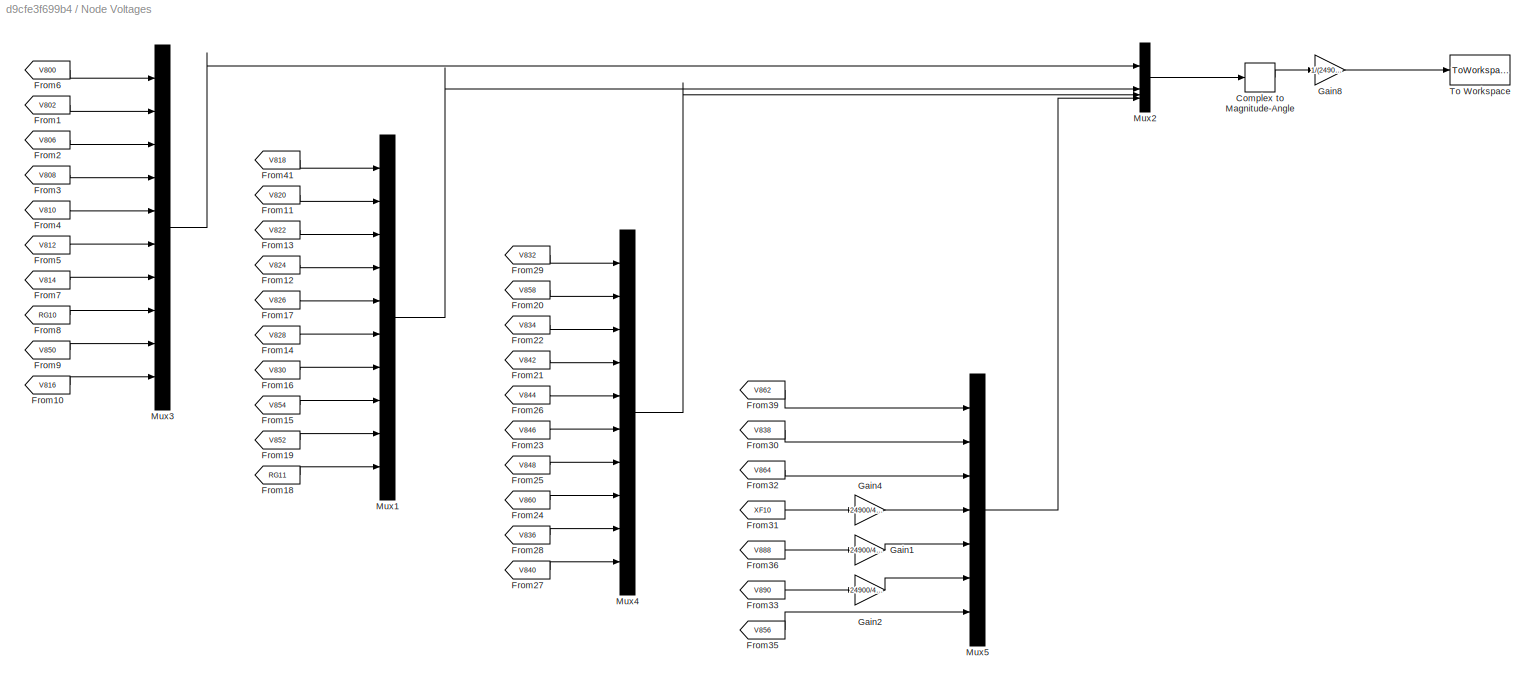
BLOCK [SubSystem] Node Voltages
BLOCK [ComplexToMagnitudeAngle] Node Voltages/Complex to Magnitude-Angle
BLOCK [From] Node Voltages/From1
  GotoTag = V802
  TagVisibility = global
BLOCK [From] Node Voltages/From10
  GotoTag = V816
  TagVisibility = global
BLOCK [From] Node Voltages/From11
  GotoTag = V820
  TagVisibility = global
BLOCK [From] Node Voltages/From12
  GotoTag = V824
  TagVisibility = global
BLOCK [From] Node Voltages/From13
  GotoTag = V822
  TagVisibility = global
BLOCK [From] Node Voltages/From14
  GotoTag = V828
  TagVisibility = global
BLOCK [From] Node Voltages/From15
  GotoTag = V854
  TagVisibility = global
BLOCK [From] Node Voltages/From16
  GotoTag = V830
  TagVisibility = global
BLOCK [From] Node Voltages/From17
  GotoTag = V826
  TagVisibility = global
BLOCK [From] Node Voltages/From18
  GotoTag = RG11
BLOCK [From] Node Voltages/From19
  GotoTag = V852
  TagVisibility = global
BLOCK [From] Node Voltages/From2
  GotoTag = V806
  TagVisibility = global
BLOCK [From] Node Voltages/From20
  GotoTag = V858
  TagVisibility = global
BLOCK [From] Node Voltages/From21
  GotoTag = V842
  TagVisibility = global
BLOCK [From] Node Voltages/From22
  GotoTag = V834
  TagVisibility = global
BLOCK [From] Node Voltages/From23
  GotoTag = V846
  TagVisibility = global
BLOCK [From] Node Voltages/From24
  GotoTag = V860
  TagVisibility = global
BLOCK [From] Node Voltages/From25
  GotoTag = V848
  TagVisibility = global
BLOCK [From] Node Voltages/From26
  GotoTag = V844
  TagVisibility = global
BLOCK [From] Node Voltages/From27
  GotoTag = V840
  TagVisibility = global
BLOCK [From] Node Voltages/From28
  GotoTag = V836
  TagVisibility = global
BLOCK [From] Node Voltages/From29
  GotoTag = V832
  TagVisibility = global
BLOCK [From] Node Voltages/From3
  GotoTag = V808
  TagVisibility = global
BLOCK [From] Node Voltages/From30
  GotoTag = V838
  TagVisibility = global
BLOCK [From] Node Voltages/From31
  GotoTag = XF10
  TagVisibility = global
BLOCK [From] Node Voltages/From32
  GotoTag = V864
  TagVisibility = global
BLOCK [From] Node Voltages/From33
  GotoTag = V890
  TagVisibility = global
BLOCK [From] Node Voltages/From35
  GotoTag = V856
  TagVisibility = global
BLOCK [From] Node Voltages/From36
  GotoTag = V888
  TagVisibility = global
BLOCK [From] Node Voltages/From39
  GotoTag = V862
  TagVisibility = global
BLOCK [From] Node Voltages/From4
  GotoTag = V810
  TagVisibility = global
BLOCK [From] Node Voltages/From41
  GotoTag = V818
  TagVisibility = global
BLOCK [From] Node Voltages/From5
  GotoTag = V812
  TagVisibility = global
BLOCK [From] Node Voltages/From6
  GotoTag = V800
  TagVisibility = global
BLOCK [From] Node Voltages/From7
  GotoTag = V814
  TagVisibility = global
BLOCK [From] Node Voltages/From8
  GotoTag = RG10
BLOCK [From] Node Voltages/From9
  GotoTag = V850
  TagVisibility = global
BLOCK [Gain] Node Voltages/Gain1
  Gain = 24900/4160
BLOCK [Gain] Node Voltages/Gain2
  Gain = 24900/4160
BLOCK [Gain] Node Voltages/Gain4
  Gain = 24900/4160
BLOCK [Gain] Node Voltages/Gain8
  Gain = 1/(24900/sqrt(3))*1/sqrt(2)
BLOCK [Mux] Node Voltages/Mux1
  DisplayOption = bar
  Inputs = 10
BLOCK [Mux] Node Voltages/Mux2
  DisplayOption = bar
BLOCK [Mux] Node Voltages/Mux3
  DisplayOption = bar
  Inputs = 10
BLOCK [Mux] Node Voltages/Mux4
  DisplayOption = bar
  Inputs = 10
BLOCK [Mux] Node Voltages/Mux5
  DisplayOption = bar
  Inputs = 7
BLOCK [ToWorkspace] Node Voltages/To Workspace
  FixptAsFi = on
  MaxDataPoints = inf
  SampleTime = 0.1
  VariableName = V34
BLOCK [Reference] RCC1  REF=spsSeriesRLCBranchLib/Series RLC Branch
  SourceBlock = spsSeriesRLCBranchLib/Series RLC Branch
  SourceType = Series RLC Branch
BLOCK [Reference] RCC2  REF=spsSeriesRLCBranchLib/Series RLC Branch
  SourceBlock = spsSeriesRLCBranchLib/Series RLC Branch
  SourceType = Series RLC Branch
BLOCK [Reference] RCC3  REF=spsSeriesRLCBranchLib/Series RLC Branch
  SourceBlock = spsSeriesRLCBranchLib/Series RLC Branch
  SourceType = Series RLC Branch
BLOCK [Reference] RG10  REF=spsThreePhaseVIMeasurementLib/Three-Phase
V-I Measurement
  LibrarySourceBlock = sps_lib/Sensors and Measurements/Three-Phase\nV-I Measurement
  SourceBlock = spsThreePhaseVIMeasurementLib/Three-Phase\nV-I Measurement
  SourceType = Three-Phase VI Measurement
BLOCK [Reference] RG11  REF=spsThreePhaseVIMeasurementLib/Three-Phase
V-I Measurement
  LibrarySourceBlock = sps_lib/Sensors and Measurements/Three-Phase\nV-I Measurement
  NameLocation = right
  SourceBlock = spsThreePhaseVIMeasurementLib/Three-Phase\nV-I Measurement
  SourceType = Three-Phase VI Measurement
BLOCK [SubSystem] Regulator 1
BLOCK [PMIOPort] Regulator 1/A
  Side = Left
BLOCK [PMIOPort] Regulator 1/B
  Port = 3
  Side = Left
BLOCK [PMIOPort] Regulator 1/C
  Port = 5
  Side = Left
BLOCK [Mux] Regulator 1/Mux
  DisplayOption = bar
  Inputs = 3
BLOCK [SubSystem] Regulator 1/Single Phase SVR_A
  LoadFcn = find_system(gcs,'FollowLinks', 'on', 'LookUnderMasks', 'all');
BLOCK [Goto] Regulator 1/Single Phase SVR_A/Goto
  GotoTag = Vr1a
  TagVisibility = global
BLOCK [PMIOPort] Regulator 1/Single Phase SVR_A/L
  Port = 2
  Side = Right
  Tag = PMCPort
BLOCK [SubSystem] Regulator 1/Single Phase SVR_A/Line Drop Compensator
BLOCK [Abs] Regulator 1/Single Phase SVR_A/Line Drop Compensator/Abs1
  SaturateOnIntegerOverflow = off
BLOCK [Gain] Regulator 1/Single Phase SVR_A/Line Drop Compensator/Gain4
  Gain = 1/sqrt(2)
BLOCK [Gain] Regulator 1/Single Phase SVR_A/Line Drop Compensator/Gain5
  Gain = Rc+j*Xc
BLOCK [Gain] Regulator 1/Single Phase SVR_A/Line Drop Compensator/Gain6
  Gain = 1/sqrt(2)
BLOCK [Inport] Regulator 1/Single Phase SVR_A/Line Drop Compensator/Isec
  NameLocation = top
BLOCK [Sum] Regulator 1/Single Phase SVR_A/Line Drop Compensator/Sum1
  Inputs = |+-
BLOCK [Outport] Regulator 1/Single Phase SVR_A/Line Drop Compensator/Vm
BLOCK [Inport] Regulator 1/Single Phase SVR_A/Line Drop Compensator/Vsec
  NameLocation = top
  Port = 2
BLOCK [PMIOPort] Regulator 1/Single Phase SVR_A/S
  Side = Left
  Tag = PMCPort
BLOCK [Outport] Regulator 1/Single Phase SVR_A/Tap
  VectorParamsAs1DForOutWhenUnconnected = off
BLOCK [SubSystem] Regulator 1/Single Phase SVR_A/Transformer with Taps
BLOCK [Gain] Regulator 1/Single Phase SVR_A/Transformer with Taps/    
  Gain = (1/ptRatio)
BLOCK [Gain] Regulator 1/Single Phase SVR_A/Transformer with Taps/ 1
  Gain = (1/ctRatio)
BLOCK [Reference] Regulator 1/Single Phase SVR_A/Transformer with Taps/CT  REF=spsCurrentMeasurementLib/Current Measurement
  LibrarySourceBlock = sps_lib/Sensors and Measurements/Current Measurement
  SourceBlock = spsCurrentMeasurementLib/Current Measurement
  SourceType = Current Measurement
BLOCK [Reference] Regulator 1/Single Phase SVR_A/Transformer with Taps/Ground1  REF=spsGroundLib/Ground
  LibrarySourceBlock = sps_lib/Utilities/Ground
  NameLocation = right
  SourceBlock = spsGroundLib/Ground
  SourceType = Ground
BLOCK [Reference] Regulator 1/Single Phase SVR_A/Transformer with Taps/Ground2  REF=spsGroundLib/Ground
  LibrarySourceBlock = sps_lib/Utilities/Ground
  NameLocation = left
  SourceBlock = spsGroundLib/Ground
  SourceType = Ground
BLOCK [Reference] Regulator 1/Single Phase SVR_A/Transformer with Taps/Ground3  REF=spsGroundLib/Ground
  LibrarySourceBlock = sps_lib/Utilities/Ground
  NameLocation = left
  SourceBlock = spsGroundLib/Ground
  SourceType = Ground
BLOCK [Outport] Regulator 1/Single Phase SVR_A/Transformer with Taps/Isec
BLOCK [PMIOPort] Regulator 1/Single Phase SVR_A/Transformer with Taps/L
  Side = Right
  Tag = PMCPort
BLOCK [Memory] Regulator 1/Single Phase SVR_A/Transformer with Taps/Memory
BLOCK [Memory] Regulator 1/Single Phase SVR_A/Transformer with Taps/Memory1
BLOCK [Reference] Regulator 1/Single Phase SVR_A/Transformer with Taps/PT  REF=spsVoltageMeasurementLib/Voltage Measurement
  LibrarySourceBlock = sps_lib/Sensors and Measurements/Voltage Measurement
  SourceBlock = spsVoltageMeasurementLib/Voltage Measurement
  SourceType = Voltage Measurement
BLOCK [PMIOPort] Regulator 1/Single Phase SVR_A/Transformer with Taps/S
  Port = 2
  Side = Left
BLOCK [SubSystem] Regulator 1/Single Phase SVR_A/Transformer with Taps/Tap Changing Transformer
BLOCK [Constant] Regulator 1/Single Phase SVR_A/Transformer with Taps/Tap Changing Transformer/Constant1
BLOCK [Reference] Regulator 1/Single Phase SVR_A/Transformer with Taps/Tap Changing Transformer/Controlled Current Source1  REF=spsControlledCurrentSourceLib/Controlled Current Source
  LibrarySourceBlock = sps_lib/Sources/Controlled Current Source
  NameLocation = left
  SourceBlock = spsControlledCurrentSourceLib/Controlled Current Source
  SourceType = Controlled Current Source
BLOCK [Reference] Regulator 1/Single Phase SVR_A/Transformer with Taps/Tap Changing Transformer/Controlled Voltage Source2  REF=spsControlledVoltageSourceLib/Controlled Voltage Source
  LibrarySourceBlock = sps_lib/Sources/Controlled Voltage Source
  NameLocation = top
  SourceBlock = spsControlledVoltageSourceLib/Controlled Voltage Source
  SourceType = Controlled Voltage Source
BLOCK [Reference] Regulator 1/Single Phase SVR_A/Transformer with Taps/Tap Changing Transformer/Current Measurement1  REF=spsCurrentMeasurementLib/Current Measurement
  LibrarySourceBlock = sps_lib/Sensors and Measurements/Current Measurement
  SourceBlock = spsCurrentMeasurementLib/Current Measurement
  SourceType = Current Measurement
BLOCK [From] Regulator 1/Single Phase SVR_A/Transformer with Taps/Tap Changing Transformer/From
  GotoTag = Vp
BLOCK [From] Regulator 1/Single Phase SVR_A/Transformer with Taps/Tap Changing Transformer/From1
  GotoTag = V1
  NameLocation = top
BLOCK [From] Regulator 1/Single Phase SVR_A/Transformer with Taps/Tap Changing Transformer/From2
  GotoTag = I2
  NameLocation = left
BLOCK [From] Regulator 1/Single Phase SVR_A/Transformer with Taps/Tap Changing Transformer/From3
  GotoTag = Is
BLOCK [Gain] Regulator 1/Single Phase SVR_A/Transformer with Taps/Tap Changing Transformer/Gain2
  Gain = DeltaU
  NameLocation = top
BLOCK [Gain] Regulator 1/Single Phase SVR_A/Transformer with Taps/Tap Changing Transformer/Gain4
  Gain = -1
  NameLocation = top
BLOCK [Goto] Regulator 1/Single Phase SVR_A/Transformer with Taps/Tap Changing Transformer/Goto
  GotoTag = Vp
BLOCK [Goto] Regulator 1/Single Phase SVR_A/Transformer with Taps/Tap Changing Transformer/Goto1
  GotoTag = V1
BLOCK [Goto] Regulator 1/Single Phase SVR_A/Transformer with Taps/Tap Changing Transformer/Goto2
  GotoTag = I2
BLOCK [Goto] Regulator 1/Single Phase SVR_A/Transformer with Taps/Tap Changing Transformer/Goto3
  GotoTag = Is
BLOCK [PMIOPort] Regulator 1/Single Phase SVR_A/Transformer with Taps/Tap Changing Transformer/L+
  Port = 3
  Side = Right
BLOCK [PMIOPort] Regulator 1/Single Phase SVR_A/Transformer with Taps/Tap Changing Transformer/L-
  Port = 4
  Side = Right
BLOCK [Memory] Regulator 1/Single Phase SVR_A/Transformer with Taps/Tap Changing Transformer/Memory
BLOCK [Memory] Regulator 1/Single Phase SVR_A/Transformer with Taps/Tap Changing Transformer/Memory1
BLOCK [Product] Regulator 1/Single Phase SVR_A/Transformer with Taps/Tap Changing Transformer/Product4
  Inputs = **/
  RndMeth = Zero
BLOCK [Product] Regulator 1/Single Phase SVR_A/Transformer with Taps/Tap Changing Transformer/Product5
  Inputs = **
  RndMeth = Zero
BLOCK [PMIOPort] Regulator 1/Single Phase SVR_A/Transformer with Taps/Tap Changing Transformer/S+
  Side = Left
BLOCK [PMIOPort] Regulator 1/Single Phase SVR_A/Transformer with Taps/Tap Changing Transformer/S-
  Port = 2
  Side = Left
BLOCK [Reference] Regulator 1/Single Phase SVR_A/Transformer with Taps/Tap Changing Transformer/Series RLC Branch1  REF=spsSeriesRLCBranchLib/Series RLC Branch
  LibrarySourceBlock = sps_lib/Passives/Series RLC Branch
  NameLocation = top
  SourceBlock = spsSeriesRLCBranchLib/Series RLC Branch
  SourceType = Series RLC Branch
BLOCK [Reference] Regulator 1/Single Phase SVR_A/Transformer with Taps/Tap Changing Transformer/Series RLC Branch2  REF=spsSeriesRLCBranchLib/Series RLC Branch
  LibrarySourceBlock = sps_lib/Passives/Series RLC Branch
  NameLocation = top
  SourceBlock = spsSeriesRLCBranchLib/Series RLC Branch
  SourceType = Series RLC Branch
BLOCK [Reference] Regulator 1/Single Phase SVR_A/Transformer with Taps/Tap Changing Transformer/Series RLC Branch6  REF=spsSeriesRLCBranchLib/Series RLC Branch
  LibrarySourceBlock = sps_lib/Passives/Series RLC Branch
  NameLocation = right
  SourceBlock = spsSeriesRLCBranchLib/Series RLC Branch
  SourceType = Series RLC Branch
BLOCK [Sum] Regulator 1/Single Phase SVR_A/Transformer with Taps/Tap Changing Transformer/Sum1
  Inputs = ++|
BLOCK [Inport] Regulator 1/Single Phase SVR_A/Transformer with Taps/Tap Changing Transformer/Tap
BLOCK [Reference] Regulator 1/Single Phase SVR_A/Transformer with Taps/Tap Changing Transformer/Voltage Measurement1  REF=spsVoltageMeasurementLib/Voltage Measurement
  LibrarySourceBlock = sps_lib/Sensors and Measurements/Voltage Measurement
  SourceBlock = spsVoltageMeasurementLib/Voltage Measurement
  SourceType = Voltage Measurement
BLOCK [Outport] Regulator 1/Single Phase SVR_A/Transformer with Taps/Vsec
  Port = 2
BLOCK [Inport] Regulator 1/Single Phase SVR_A/Transformer with Taps/tap
BLOCK [SubSystem] Regulator 1/Single Phase SVR_A/Voltage Regulator Control
BLOCK [Constant] Regulator 1/Single Phase SVR_A/Voltage Regulator Control/Constant
  Value = RegulatorOn
BLOCK [Outport] Regulator 1/Single Phase SVR_A/Voltage Regulator Control/Tap
BLOCK [SubSystem] Regulator 1/Single Phase SVR_A/Voltage Regulator Control/Tap Changer Control
BLOCK [Constant] Regulator 1/Single Phase SVR_A/Voltage Regulator Control/Tap Changer Control/Constant
  Value = -1
BLOCK [Constant] Regulator 1/Single Phase SVR_A/Voltage Regulator Control/Tap Changer Control/Constant1
BLOCK [SubSystem] Regulator 1/Single Phase SVR_A/Voltage Regulator Control/Tap Changer Control/Determine tap position
BLOCK [Memory] Regulator 1/Single Phase SVR_A/Voltage Regulator Control/Tap Changer Control/Determine tap position/Memory
  InheritSampleTime = on
  InitialCondition = InitialPosition
BLOCK [Inport] Regulator 1/Single Phase SVR_A/Voltage Regulator Control/Tap Changer Control/Determine tap position/NewTap
BLOCK [Saturate] Regulator 1/Single Phase SVR_A/Voltage Regulator Control/Tap Changer Control/Determine tap position/Saturation
  LowerLimit = MinMaxTap(1)
  UpperLimit = MinMaxTap(2)
BLOCK [Sum] Regulator 1/Single Phase SVR_A/Voltage Regulator Control/Tap Changer Control/Determine tap position/Sum
  Inputs = |++
  SaturateOnIntegerOverflow = on
BLOCK [Outport] Regulator 1/Single Phase SVR_A/Voltage Regulator Control/Tap Changer Control/Determine tap position/TapNo
  InitialOutput = InitialPosition
  VectorParamsAs1DForOutWhenUnconnected = off
BLOCK [TriggerPort] Regulator 1/Single Phase SVR_A/Voltage Regulator Control/Tap Changer Control/Determine tap position/Trigger
  VariantControl = Variant
BLOCK [Inport] Regulator 1/Single Phase SVR_A/Voltage Regulator Control/Tap Changer Control/Down 
  Port = 2
BLOCK [SubSystem] Regulator 1/Single Phase SVR_A/Voltage Regulator Control/Tap Changer Control/Edge Detector
  DialogController = POWERSYS.PowerSysDialog
  ShowPortLabels = none
BLOCK [Constant] Regulator 1/Single Phase SVR_A/Voltage Regulator Control/Tap Changer Control/Edge Detector/Constant1
  Value = model
BLOCK [Demux] Regulator 1/Single Phase SVR_A/Voltage Regulator Control/Tap Changer Control/Edge Detector/Demux
  DisplayOption = none
  Outputs = 2
BLOCK [Inport] Regulator 1/Single Phase SVR_A/Voltage Regulator Control/Tap Changer Control/Edge Detector/In
BLOCK [Logic] Regulator 1/Single Phase SVR_A/Voltage Regulator Control/Tap Changer Control/Edge Detector/Logical Operator1
  Operator = OR
BLOCK [Memory] Regulator 1/Single Phase SVR_A/Voltage Regulator Control/Tap Changer Control/Edge Detector/Memory
  InitialCondition = ic
  LinearizeAsDelay = on
BLOCK [MultiPortSwitch] Regulator 1/Single Phase SVR_A/Voltage Regulator Control/Tap Changer Control/Edge Detector/Multiport Switch
  InputSameDT = off
BLOCK [SubSystem] Regulator 1/Single Phase SVR_A/Voltage Regulator Control/Tap Changer Control/Edge Detector/NEGATIVE Edge
  TreatAsAtomicUnit = on
BLOCK [EnablePort] Regulator 1/Single Phase SVR_A/Voltage Regulator Control/Tap Changer Control/Edge Detector/NEGATIVE Edge/Enable
  PropagateVarSize = During execution
BLOCK [Inport] Regulator 1/Single Phase SVR_A/Voltage Regulator Control/Tap Changer Control/Edge Detector/NEGATIVE Edge/IN
BLOCK [Inport] Regulator 1/Single Phase SVR_A/Voltage Regulator Control/Tap Changer Control/Edge Detector/NEGATIVE Edge/IN previous
  Port = 2
BLOCK [Outport] Regulator 1/Single Phase SVR_A/Voltage Regulator Control/Tap Changer Control/Edge Detector/NEGATIVE Edge/OUT
  VectorParamsAs1DForOutWhenUnconnected = off
BLOCK [RelationalOperator] Regulator 1/Single Phase SVR_A/Voltage Regulator Control/Tap Changer Control/Edge Detector/NEGATIVE Edge/Relational Operator1
  Operator = >
BLOCK [Outport] Regulator 1/Single Phase SVR_A/Voltage Regulator Control/Tap Changer Control/Edge Detector/Out
  VectorParamsAs1DForOutWhenUnconnected = off
BLOCK [SubSystem] Regulator 1/Single Phase SVR_A/Voltage Regulator Control/Tap Changer Control/Edge Detector/POSITIVE Edge
  NameLocation = top
  TreatAsAtomicUnit = on
BLOCK [EnablePort] Regulator 1/Single Phase SVR_A/Voltage Regulator Control/Tap Changer Control/Edge Detector/POSITIVE Edge/Enable
  PropagateVarSize = During execution
BLOCK [Inport] Regulator 1/Single Phase SVR_A/Voltage Regulator Control/Tap Changer Control/Edge Detector/POSITIVE Edge/IN
BLOCK [Inport] Regulator 1/Single Phase SVR_A/Voltage Regulator Control/Tap Changer Control/Edge Detector/POSITIVE Edge/IN previous
  Port = 2
BLOCK [Outport] Regulator 1/Single Phase SVR_A/Voltage Regulator Control/Tap Changer Control/Edge Detector/POSITIVE Edge/OUT
  VectorParamsAs1DForOutWhenUnconnected = off
BLOCK [RelationalOperator] Regulator 1/Single Phase SVR_A/Voltage Regulator Control/Tap Changer Control/Edge Detector/POSITIVE Edge/Relational Operator1
  Operator = >
BLOCK [Constant] Regulator 1/Single Phase SVR_A/Voltage Regulator Control/Tap Changer Control/Edge Detector/either edge
  Value = [1 1]
BLOCK [Constant] Regulator 1/Single Phase SVR_A/Voltage Regulator Control/Tap Changer Control/Edge Detector/neg. edge
  Value = [0 1]
BLOCK [Constant] Regulator 1/Single Phase SVR_A/Voltage Regulator Control/Tap Changer Control/Edge Detector/pos. edge
  Value = [1 0]
BLOCK [Logic] Regulator 1/Single Phase SVR_A/Voltage Regulator Control/Tap Changer Control/Logical Operator
  AllPortsSameDT = off
  Operator = OR
BLOCK [Logic] Regulator 1/Single Phase SVR_A/Voltage Regulator Control/Tap Changer Control/Logical Operator1
  AllPortsSameDT = off
BLOCK [TransportDelay] Regulator 1/Single Phase SVR_A/Voltage Regulator Control/Tap Changer Control/Mechanical Delay
  BufferSize = 5120
  DelayTime = MecDelay
  InitialOutput = InitialPosition
BLOCK [Memory] Regulator 1/Single Phase SVR_A/Voltage Regulator Control/Tap Changer Control/Memory
  InheritSampleTime = on
  InitialCondition = 1
BLOCK [Outport] Regulator 1/Single Phase SVR_A/Voltage Regulator Control/Tap Changer Control/Ready
  Port = 2
  VectorParamsAs1DForOutWhenUnconnected = off
BLOCK [RelationalOperator] Regulator 1/Single Phase SVR_A/Voltage Regulator Control/Tap Changer Control/Relational Operator
  InputSameDT = off
  Operator = ==
  OutDataTypeStr = float('double')
BLOCK [Switch] Regulator 1/Single Phase SVR_A/Voltage Regulator Control/Tap Changer Control/Switch
  InputSameDT = off
  Threshold = 0.5
BLOCK [Outport] Regulator 1/Single Phase SVR_A/Voltage Regulator Control/Tap Changer Control/TapNo
  VectorParamsAs1DForOutWhenUnconnected = off
BLOCK [Inport] Regulator 1/Single Phase SVR_A/Voltage Regulator Control/Tap Changer Control/Up 
BLOCK [Inport] Regulator 1/Single Phase SVR_A/Voltage Regulator Control/Vm
BLOCK [SubSystem] Regulator 1/Single Phase SVR_A/Voltage Regulator Control/Voltage regulator
BLOCK [DeadZone] Regulator 1/Single Phase SVR_A/Voltage Regulator Control/Voltage regulator/Dead Zone
  LowerValue = -DeadBand/2
  UpperValue = +DeadBand/2
BLOCK [Reference] Regulator 1/Single Phase SVR_A/Voltage Regulator Control/Voltage regulator/Discrete Variable Time Delay  REF=spsDiscreteVariableTimeDelayLib/Discrete Variable
Time Delay
  LibrarySourceBlock = sps_lib/Control/Discrete Variable\nTime Delay
  SourceBlock = spsDiscreteVariableTimeDelayLib/Discrete Variable\nTime Delay
  SourceType = Discrete Variable Time Delay
BLOCK [Outport] Regulator 1/Single Phase SVR_A/Voltage Regulator Control/Voltage regulator/Down
  Port = 2
  VectorParamsAs1DForOutWhenUnconnected = off
BLOCK [Logic] Regulator 1/Single Phase SVR_A/Voltage Regulator Control/Voltage regulator/Logical Operator
  AllPortsSameDT = off
BLOCK [Logic] Regulator 1/Single Phase SVR_A/Voltage Regulator Control/Voltage regulator/Logical Operator1
  AllPortsSameDT = off
BLOCK [Reference] Regulator 1/Single Phase SVR_A/Voltage Regulator Control/Voltage regulator/On Delay  REF=spsOnDelayLib/On Delay
  LibrarySourceBlock = sps_lib/Control/On Delay
  SourceBlock = spsOnDelayLib/On Delay
  SourceType = On/Off Delay
BLOCK [Reference] Regulator 1/Single Phase SVR_A/Voltage Regulator Control/Voltage regulator/On Delay1  REF=spsOnDelayLib/On Delay
  LibrarySourceBlock = sps_lib/Control/On Delay
  SourceBlock = spsOnDelayLib/On Delay
  SourceType = On/Off Delay
BLOCK [Inport] Regulator 1/Single Phase SVR_A/Voltage Regulator Control/Voltage regulator/Ready
  Port = 2
BLOCK [Inport] Regulator 1/Single Phase SVR_A/Voltage Regulator Control/Voltage regulator/RegOn
  Port = 3
BLOCK [RelationalOperator] Regulator 1/Single Phase SVR_A/Voltage Regulator Control/Voltage regulator/Relational Operator
  InputSameDT = off
  Operator = >
BLOCK [RelationalOperator] Regulator 1/Single Phase SVR_A/Voltage Regulator Control/Voltage regulator/Relational Operator1
  InputSameDT = off
  Operator = <
BLOCK [Sum] Regulator 1/Single Phase SVR_A/Voltage Regulator Control/Voltage regulator/Sum
  Inputs = |+-
  SaturateOnIntegerOverflow = on
BLOCK [Switch] Regulator 1/Single Phase SVR_A/Voltage Regulator Control/Voltage regulator/Switch
  InputSameDT = off
  Threshold = 1.5
BLOCK [Outport] Regulator 1/Single Phase SVR_A/Voltage Regulator Control/Voltage regulator/Up
  VectorParamsAs1DForOutWhenUnconnected = off
BLOCK [Inport] Regulator 1/Single Phase SVR_A/Voltage Regulator Control/Voltage regulator/Vmes (pu)
BLOCK [Constant] Regulator 1/Single Phase SVR_A/Voltage Regulator Control/Voltage regulator/Vref
  Value = Vref
BLOCK [Constant] Regulator 1/Single Phase SVR_A/Voltage Regulator Control/Voltage regulator/Vref1
  Value = 0
BLOCK [Constant] Regulator 1/Single Phase SVR_A/Voltage Regulator Control/Voltage regulator/Vref2
  Value = 0
BLOCK [Constant] Regulator 1/Single Phase SVR_A/Voltage Regulator Control/Voltage regulator/Vref3
  Value = 0
BLOCK [Constant] Regulator 1/Single Phase SVR_A/Voltage Regulator Control/Voltage regulator/Vref4
  Value = 3/60
BLOCK [SubSystem] Regulator 1/Single Phase SVR_B
  LoadFcn = find_system(gcs,'FollowLinks', 'on', 'LookUnderMasks', 'all');
BLOCK [Goto] Regulator 1/Single Phase SVR_B/Goto
  GotoTag = Vr1b
  TagVisibility = global
BLOCK [PMIOPort] Regulator 1/Single Phase SVR_B/L
  Port = 2
  Side = Right
  Tag = PMCPort
BLOCK [SubSystem] Regulator 1/Single Phase SVR_B/Line Drop Compensator
BLOCK [Abs] Regulator 1/Single Phase SVR_B/Line Drop Compensator/Abs1
  SaturateOnIntegerOverflow = off
BLOCK [Gain] Regulator 1/Single Phase SVR_B/Line Drop Compensator/Gain4
  Gain = 1/sqrt(2)
BLOCK [Gain] Regulator 1/Single Phase SVR_B/Line Drop Compensator/Gain5
  Gain = Rc+j*Xc
BLOCK [Gain] Regulator 1/Single Phase SVR_B/Line Drop Compensator/Gain6
  Gain = 1/sqrt(2)
BLOCK [Inport] Regulator 1/Single Phase SVR_B/Line Drop Compensator/Isec
  NameLocation = top
BLOCK [Sum] Regulator 1/Single Phase SVR_B/Line Drop Compensator/Sum1
  Inputs = |+-
BLOCK [Outport] Regulator 1/Single Phase SVR_B/Line Drop Compensator/Vm
BLOCK [Inport] Regulator 1/Single Phase SVR_B/Line Drop Compensator/Vsec
  NameLocation = top
  Port = 2
BLOCK [PMIOPort] Regulator 1/Single Phase SVR_B/S
  Side = Left
  Tag = PMCPort
BLOCK [Outport] Regulator 1/Single Phase SVR_B/Tap
  VectorParamsAs1DForOutWhenUnconnected = off
BLOCK [SubSystem] Regulator 1/Single Phase SVR_B/Transformer with Taps
BLOCK [Gain] Regulator 1/Single Phase SVR_B/Transformer with Taps/    
  Gain = (1/ptRatio)
BLOCK [Gain] Regulator 1/Single Phase SVR_B/Transformer with Taps/ 1
  Gain = (1/ctRatio)
BLOCK [Reference] Regulator 1/Single Phase SVR_B/Transformer with Taps/CT  REF=spsCurrentMeasurementLib/Current Measurement
  LibrarySourceBlock = sps_lib/Sensors and Measurements/Current Measurement
  SourceBlock = spsCurrentMeasurementLib/Current Measurement
  SourceType = Current Measurement
BLOCK [Reference] Regulator 1/Single Phase SVR_B/Transformer with Taps/Ground1  REF=spsGroundLib/Ground
  LibrarySourceBlock = sps_lib/Utilities/Ground
  NameLocation = right
  SourceBlock = spsGroundLib/Ground
  SourceType = Ground
BLOCK [Reference] Regulator 1/Single Phase SVR_B/Transformer with Taps/Ground2  REF=spsGroundLib/Ground
  LibrarySourceBlock = sps_lib/Utilities/Ground
  NameLocation = left
  SourceBlock = spsGroundLib/Ground
  SourceType = Ground
BLOCK [Reference] Regulator 1/Single Phase SVR_B/Transformer with Taps/Ground3  REF=spsGroundLib/Ground
  LibrarySourceBlock = sps_lib/Utilities/Ground
  NameLocation = left
  SourceBlock = spsGroundLib/Ground
  SourceType = Ground
BLOCK [Outport] Regulator 1/Single Phase SVR_B/Transformer with Taps/Isec
BLOCK [PMIOPort] Regulator 1/Single Phase SVR_B/Transformer with Taps/L
  Side = Right
  Tag = PMCPort
BLOCK [Memory] Regulator 1/Single Phase SVR_B/Transformer with Taps/Memory
BLOCK [Memory] Regulator 1/Single Phase SVR_B/Transformer with Taps/Memory1
BLOCK [Reference] Regulator 1/Single Phase SVR_B/Transformer with Taps/PT  REF=spsVoltageMeasurementLib/Voltage Measurement
  LibrarySourceBlock = sps_lib/Sensors and Measurements/Voltage Measurement
  SourceBlock = spsVoltageMeasurementLib/Voltage Measurement
  SourceType = Voltage Measurement
BLOCK [PMIOPort] Regulator 1/Single Phase SVR_B/Transformer with Taps/S
  Port = 2
  Side = Left
BLOCK [SubSystem] Regulator 1/Single Phase SVR_B/Transformer with Taps/Tap Changing Transformer
BLOCK [Constant] Regulator 1/Single Phase SVR_B/Transformer with Taps/Tap Changing Transformer/Constant1
BLOCK [Reference] Regulator 1/Single Phase SVR_B/Transformer with Taps/Tap Changing Transformer/Controlled Current Source1  REF=spsControlledCurrentSourceLib/Controlled Current Source
  LibrarySourceBlock = sps_lib/Sources/Controlled Current Source
  NameLocation = left
  SourceBlock = spsControlledCurrentSourceLib/Controlled Current Source
  SourceType = Controlled Current Source
BLOCK [Reference] Regulator 1/Single Phase SVR_B/Transformer with Taps/Tap Changing Transformer/Controlled Voltage Source2  REF=spsControlledVoltageSourceLib/Controlled Voltage Source
  LibrarySourceBlock = sps_lib/Sources/Controlled Voltage Source
  NameLocation = top
  SourceBlock = spsControlledVoltageSourceLib/Controlled Voltage Source
  SourceType = Controlled Voltage Source
BLOCK [Reference] Regulator 1/Single Phase SVR_B/Transformer with Taps/Tap Changing Transformer/Current Measurement1  REF=spsCurrentMeasurementLib/Current Measurement
  LibrarySourceBlock = sps_lib/Sensors and Measurements/Current Measurement
  SourceBlock = spsCurrentMeasurementLib/Current Measurement
  SourceType = Current Measurement
BLOCK [From] Regulator 1/Single Phase SVR_B/Transformer with Taps/Tap Changing Transformer/From
  GotoTag = Vp
BLOCK [From] Regulator 1/Single Phase SVR_B/Transformer with Taps/Tap Changing Transformer/From1
  GotoTag = V1
  NameLocation = top
BLOCK [From] Regulator 1/Single Phase SVR_B/Transformer with Taps/Tap Changing Transformer/From2
  GotoTag = I2
  NameLocation = left
BLOCK [From] Regulator 1/Single Phase SVR_B/Transformer with Taps/Tap Changing Transformer/From3
  GotoTag = Is
BLOCK [Gain] Regulator 1/Single Phase SVR_B/Transformer with Taps/Tap Changing Transformer/Gain2
  Gain = DeltaU
  NameLocation = top
BLOCK [Gain] Regulator 1/Single Phase SVR_B/Transformer with Taps/Tap Changing Transformer/Gain4
  Gain = -1
  NameLocation = top
BLOCK [Goto] Regulator 1/Single Phase SVR_B/Transformer with Taps/Tap Changing Transformer/Goto
  GotoTag = Vp
BLOCK [Goto] Regulator 1/Single Phase SVR_B/Transformer with Taps/Tap Changing Transformer/Goto1
  GotoTag = V1
BLOCK [Goto] Regulator 1/Single Phase SVR_B/Transformer with Taps/Tap Changing Transformer/Goto2
  GotoTag = I2
BLOCK [Goto] Regulator 1/Single Phase SVR_B/Transformer with Taps/Tap Changing Transformer/Goto3
  GotoTag = Is
BLOCK [PMIOPort] Regulator 1/Single Phase SVR_B/Transformer with Taps/Tap Changing Transformer/L+
  Port = 3
  Side = Right
BLOCK [PMIOPort] Regulator 1/Single Phase SVR_B/Transformer with Taps/Tap Changing Transformer/L-
  Port = 4
  Side = Right
BLOCK [Memory] Regulator 1/Single Phase SVR_B/Transformer with Taps/Tap Changing Transformer/Memory
BLOCK [Memory] Regulator 1/Single Phase SVR_B/Transformer with Taps/Tap Changing Transformer/Memory1
BLOCK [Product] Regulator 1/Single Phase SVR_B/Transformer with Taps/Tap Changing Transformer/Product4
  Inputs = **/
  RndMeth = Zero
BLOCK [Product] Regulator 1/Single Phase SVR_B/Transformer with Taps/Tap Changing Transformer/Product5
  Inputs = **
  RndMeth = Zero
BLOCK [PMIOPort] Regulator 1/Single Phase SVR_B/Transformer with Taps/Tap Changing Transformer/S+
  Side = Left
BLOCK [PMIOPort] Regulator 1/Single Phase SVR_B/Transformer with Taps/Tap Changing Transformer/S-
  Port = 2
  Side = Left
BLOCK [Reference] Regulator 1/Single Phase SVR_B/Transformer with Taps/Tap Changing Transformer/Series RLC Branch1  REF=spsSeriesRLCBranchLib/Series RLC Branch
  LibrarySourceBlock = sps_lib/Passives/Series RLC Branch
  NameLocation = top
  SourceBlock = spsSeriesRLCBranchLib/Series RLC Branch
  SourceType = Series RLC Branch
BLOCK [Reference] Regulator 1/Single Phase SVR_B/Transformer with Taps/Tap Changing Transformer/Series RLC Branch2  REF=spsSeriesRLCBranchLib/Series RLC Branch
  LibrarySourceBlock = sps_lib/Passives/Series RLC Branch
  NameLocation = top
  SourceBlock = spsSeriesRLCBranchLib/Series RLC Branch
  SourceType = Series RLC Branch
BLOCK [Reference] Regulator 1/Single Phase SVR_B/Transformer with Taps/Tap Changing Transformer/Series RLC Branch6  REF=spsSeriesRLCBranchLib/Series RLC Branch
  LibrarySourceBlock = sps_lib/Passives/Series RLC Branch
  NameLocation = right
  SourceBlock = spsSeriesRLCBranchLib/Series RLC Branch
  SourceType = Series RLC Branch
BLOCK [Sum] Regulator 1/Single Phase SVR_B/Transformer with Taps/Tap Changing Transformer/Sum1
  Inputs = ++|
BLOCK [Inport] Regulator 1/Single Phase SVR_B/Transformer with Taps/Tap Changing Transformer/Tap
BLOCK [Reference] Regulator 1/Single Phase SVR_B/Transformer with Taps/Tap Changing Transformer/Voltage Measurement1  REF=spsVoltageMeasurementLib/Voltage Measurement
  LibrarySourceBlock = sps_lib/Sensors and Measurements/Voltage Measurement
  SourceBlock = spsVoltageMeasurementLib/Voltage Measurement
  SourceType = Voltage Measurement
BLOCK [Outport] Regulator 1/Single Phase SVR_B/Transformer with Taps/Vsec
  Port = 2
BLOCK [Inport] Regulator 1/Single Phase SVR_B/Transformer with Taps/tap
BLOCK [SubSystem] Regulator 1/Single Phase SVR_B/Voltage Regulator Control
BLOCK [Constant] Regulator 1/Single Phase SVR_B/Voltage Regulator Control/Constant
  Value = RegulatorOn
BLOCK [Outport] Regulator 1/Single Phase SVR_B/Voltage Regulator Control/Tap
BLOCK [SubSystem] Regulator 1/Single Phase SVR_B/Voltage Regulator Control/Tap Changer Control
BLOCK [Constant] Regulator 1/Single Phase SVR_B/Voltage Regulator Control/Tap Changer Control/Constant
  Value = -1
BLOCK [Constant] Regulator 1/Single Phase SVR_B/Voltage Regulator Control/Tap Changer Control/Constant1
BLOCK [SubSystem] Regulator 1/Single Phase SVR_B/Voltage Regulator Control/Tap Changer Control/Determine tap position
BLOCK [Memory] Regulator 1/Single Phase SVR_B/Voltage Regulator Control/Tap Changer Control/Determine tap position/Memory
  InheritSampleTime = on
  InitialCondition = InitialPosition
BLOCK [Inport] Regulator 1/Single Phase SVR_B/Voltage Regulator Control/Tap Changer Control/Determine tap position/NewTap
BLOCK [Saturate] Regulator 1/Single Phase SVR_B/Voltage Regulator Control/Tap Changer Control/Determine tap position/Saturation
  LowerLimit = MinMaxTap(1)
  UpperLimit = MinMaxTap(2)
BLOCK [Sum] Regulator 1/Single Phase SVR_B/Voltage Regulator Control/Tap Changer Control/Determine tap position/Sum
  Inputs = |++
  SaturateOnIntegerOverflow = on
BLOCK [Outport] Regulator 1/Single Phase SVR_B/Voltage Regulator Control/Tap Changer Control/Determine tap position/TapNo
  InitialOutput = InitialPosition
  VectorParamsAs1DForOutWhenUnconnected = off
BLOCK [TriggerPort] Regulator 1/Single Phase SVR_B/Voltage Regulator Control/Tap Changer Control/Determine tap position/Trigger
  VariantControl = Variant
BLOCK [Inport] Regulator 1/Single Phase SVR_B/Voltage Regulator Control/Tap Changer Control/Down 
  Port = 2
BLOCK [SubSystem] Regulator 1/Single Phase SVR_B/Voltage Regulator Control/Tap Changer Control/Edge Detector
  DialogController = POWERSYS.PowerSysDialog
  ShowPortLabels = none
BLOCK [Constant] Regulator 1/Single Phase SVR_B/Voltage Regulator Control/Tap Changer Control/Edge Detector/Constant1
  Value = model
BLOCK [Demux] Regulator 1/Single Phase SVR_B/Voltage Regulator Control/Tap Changer Control/Edge Detector/Demux
  DisplayOption = none
  Outputs = 2
BLOCK [Inport] Regulator 1/Single Phase SVR_B/Voltage Regulator Control/Tap Changer Control/Edge Detector/In
BLOCK [Logic] Regulator 1/Single Phase SVR_B/Voltage Regulator Control/Tap Changer Control/Edge Detector/Logical Operator1
  Operator = OR
BLOCK [Memory] Regulator 1/Single Phase SVR_B/Voltage Regulator Control/Tap Changer Control/Edge Detector/Memory
  InitialCondition = ic
  LinearizeAsDelay = on
BLOCK [MultiPortSwitch] Regulator 1/Single Phase SVR_B/Voltage Regulator Control/Tap Changer Control/Edge Detector/Multiport Switch
  InputSameDT = off
BLOCK [SubSystem] Regulator 1/Single Phase SVR_B/Voltage Regulator Control/Tap Changer Control/Edge Detector/NEGATIVE Edge
  TreatAsAtomicUnit = on
BLOCK [EnablePort] Regulator 1/Single Phase SVR_B/Voltage Regulator Control/Tap Changer Control/Edge Detector/NEGATIVE Edge/Enable
  PropagateVarSize = During execution
BLOCK [Inport] Regulator 1/Single Phase SVR_B/Voltage Regulator Control/Tap Changer Control/Edge Detector/NEGATIVE Edge/IN
BLOCK [Inport] Regulator 1/Single Phase SVR_B/Voltage Regulator Control/Tap Changer Control/Edge Detector/NEGATIVE Edge/IN previous
  Port = 2
BLOCK [Outport] Regulator 1/Single Phase SVR_B/Voltage Regulator Control/Tap Changer Control/Edge Detector/NEGATIVE Edge/OUT
  VectorParamsAs1DForOutWhenUnconnected = off
BLOCK [RelationalOperator] Regulator 1/Single Phase SVR_B/Voltage Regulator Control/Tap Changer Control/Edge Detector/NEGATIVE Edge/Relational Operator1
  Operator = >
BLOCK [Outport] Regulator 1/Single Phase SVR_B/Voltage Regulator Control/Tap Changer Control/Edge Detector/Out
  VectorParamsAs1DForOutWhenUnconnected = off
BLOCK [SubSystem] Regulator 1/Single Phase SVR_B/Voltage Regulator Control/Tap Changer Control/Edge Detector/POSITIVE Edge
  NameLocation = top
  TreatAsAtomicUnit = on
BLOCK [EnablePort] Regulator 1/Single Phase SVR_B/Voltage Regulator Control/Tap Changer Control/Edge Detector/POSITIVE Edge/Enable
  PropagateVarSize = During execution
BLOCK [Inport] Regulator 1/Single Phase SVR_B/Voltage Regulator Control/Tap Changer Control/Edge Detector/POSITIVE Edge/IN
BLOCK [Inport] Regulator 1/Single Phase SVR_B/Voltage Regulator Control/Tap Changer Control/Edge Detector/POSITIVE Edge/IN previous
  Port = 2
BLOCK [Outport] Regulator 1/Single Phase SVR_B/Voltage Regulator Control/Tap Changer Control/Edge Detector/POSITIVE Edge/OUT
  VectorParamsAs1DForOutWhenUnconnected = off
BLOCK [RelationalOperator] Regulator 1/Single Phase SVR_B/Voltage Regulator Control/Tap Changer Control/Edge Detector/POSITIVE Edge/Relational Operator1
  Operator = >
BLOCK [Constant] Regulator 1/Single Phase SVR_B/Voltage Regulator Control/Tap Changer Control/Edge Detector/either edge
  Value = [1 1]
BLOCK [Constant] Regulator 1/Single Phase SVR_B/Voltage Regulator Control/Tap Changer Control/Edge Detector/neg. edge
  Value = [0 1]
BLOCK [Constant] Regulator 1/Single Phase SVR_B/Voltage Regulator Control/Tap Changer Control/Edge Detector/pos. edge
  Value = [1 0]
BLOCK [Logic] Regulator 1/Single Phase SVR_B/Voltage Regulator Control/Tap Changer Control/Logical Operator
  AllPortsSameDT = off
  Operator = OR
BLOCK [Logic] Regulator 1/Single Phase SVR_B/Voltage Regulator Control/Tap Changer Control/Logical Operator1
  AllPortsSameDT = off
BLOCK [TransportDelay] Regulator 1/Single Phase SVR_B/Voltage Regulator Control/Tap Changer Control/Mechanical Delay
  BufferSize = 5120
  DelayTime = MecDelay
  InitialOutput = InitialPosition
BLOCK [Memory] Regulator 1/Single Phase SVR_B/Voltage Regulator Control/Tap Changer Control/Memory
  InheritSampleTime = on
  InitialCondition = 1
BLOCK [Outport] Regulator 1/Single Phase SVR_B/Voltage Regulator Control/Tap Changer Control/Ready
  Port = 2
  VectorParamsAs1DForOutWhenUnconnected = off
BLOCK [RelationalOperator] Regulator 1/Single Phase SVR_B/Voltage Regulator Control/Tap Changer Control/Relational Operator
  InputSameDT = off
  Operator = ==
  OutDataTypeStr = float('double')
BLOCK [Switch] Regulator 1/Single Phase SVR_B/Voltage Regulator Control/Tap Changer Control/Switch
  InputSameDT = off
  Threshold = 0.5
BLOCK [Outport] Regulator 1/Single Phase SVR_B/Voltage Regulator Control/Tap Changer Control/TapNo
  VectorParamsAs1DForOutWhenUnconnected = off
BLOCK [Inport] Regulator 1/Single Phase SVR_B/Voltage Regulator Control/Tap Changer Control/Up 
BLOCK [Inport] Regulator 1/Single Phase SVR_B/Voltage Regulator Control/Vm
BLOCK [SubSystem] Regulator 1/Single Phase SVR_B/Voltage Regulator Control/Voltage regulator
BLOCK [DeadZone] Regulator 1/Single Phase SVR_B/Voltage Regulator Control/Voltage regulator/Dead Zone
  LowerValue = -DeadBand/2
  UpperValue = +DeadBand/2
BLOCK [Reference] Regulator 1/Single Phase SVR_B/Voltage Regulator Control/Voltage regulator/Discrete Variable Time Delay  REF=spsDiscreteVariableTimeDelayLib/Discrete Variable
Time Delay
  LibrarySourceBlock = sps_lib/Control/Discrete Variable\nTime Delay
  SourceBlock = spsDiscreteVariableTimeDelayLib/Discrete Variable\nTime Delay
  SourceType = Discrete Variable Time Delay
BLOCK [Outport] Regulator 1/Single Phase SVR_B/Voltage Regulator Control/Voltage regulator/Down
  Port = 2
  VectorParamsAs1DForOutWhenUnconnected = off
BLOCK [Logic] Regulator 1/Single Phase SVR_B/Voltage Regulator Control/Voltage regulator/Logical Operator
  AllPortsSameDT = off
BLOCK [Logic] Regulator 1/Single Phase SVR_B/Voltage Regulator Control/Voltage regulator/Logical Operator1
  AllPortsSameDT = off
BLOCK [Reference] Regulator 1/Single Phase SVR_B/Voltage Regulator Control/Voltage regulator/On Delay  REF=spsOnDelayLib/On Delay
  LibrarySourceBlock = sps_lib/Control/On Delay
  SourceBlock = spsOnDelayLib/On Delay
  SourceType = On/Off Delay
BLOCK [Reference] Regulator 1/Single Phase SVR_B/Voltage Regulator Control/Voltage regulator/On Delay1  REF=spsOnDelayLib/On Delay
  LibrarySourceBlock = sps_lib/Control/On Delay
  SourceBlock = spsOnDelayLib/On Delay
  SourceType = On/Off Delay
BLOCK [Inport] Regulator 1/Single Phase SVR_B/Voltage Regulator Control/Voltage regulator/Ready
  Port = 2
BLOCK [Inport] Regulator 1/Single Phase SVR_B/Voltage Regulator Control/Voltage regulator/RegOn
  Port = 3
BLOCK [RelationalOperator] Regulator 1/Single Phase SVR_B/Voltage Regulator Control/Voltage regulator/Relational Operator
  InputSameDT = off
  Operator = >
BLOCK [RelationalOperator] Regulator 1/Single Phase SVR_B/Voltage Regulator Control/Voltage regulator/Relational Operator1
  InputSameDT = off
  Operator = <
BLOCK [Sum] Regulator 1/Single Phase SVR_B/Voltage Regulator Control/Voltage regulator/Sum
  Inputs = |+-
  SaturateOnIntegerOverflow = on
BLOCK [Switch] Regulator 1/Single Phase SVR_B/Voltage Regulator Control/Voltage regulator/Switch
  InputSameDT = off
  Threshold = 1.5
BLOCK [Outport] Regulator 1/Single Phase SVR_B/Voltage Regulator Control/Voltage regulator/Up
  VectorParamsAs1DForOutWhenUnconnected = off
BLOCK [Inport] Regulator 1/Single Phase SVR_B/Voltage Regulator Control/Voltage regulator/Vmes (pu)
BLOCK [Constant] Regulator 1/Single Phase SVR_B/Voltage Regulator Control/Voltage regulator/Vref
  Value = Vref
BLOCK [Constant] Regulator 1/Single Phase SVR_B/Voltage Regulator Control/Voltage regulator/Vref1
  Value = 0
BLOCK [Constant] Regulator 1/Single Phase SVR_B/Voltage Regulator Control/Voltage regulator/Vref2
  Value = 0
BLOCK [Constant] Regulator 1/Single Phase SVR_B/Voltage Regulator Control/Voltage regulator/Vref3
  Value = 0
BLOCK [Constant] Regulator 1/Single Phase SVR_B/Voltage Regulator Control/Voltage regulator/Vref4
  Value = 3/60
BLOCK [SubSystem] Regulator 1/Single Phase SVR_C
  LoadFcn = find_system(gcs,'FollowLinks', 'on', 'LookUnderMasks', 'all');
BLOCK [Goto] Regulator 1/Single Phase SVR_C/Goto
  GotoTag = Vr1c
  TagVisibility = global
BLOCK [PMIOPort] Regulator 1/Single Phase SVR_C/L
  Port = 2
  Side = Right
  Tag = PMCPort
BLOCK [SubSystem] Regulator 1/Single Phase SVR_C/Line Drop Compensator
BLOCK [Abs] Regulator 1/Single Phase SVR_C/Line Drop Compensator/Abs1
  SaturateOnIntegerOverflow = off
BLOCK [Gain] Regulator 1/Single Phase SVR_C/Line Drop Compensator/Gain4
  Gain = 1/sqrt(2)
BLOCK [Gain] Regulator 1/Single Phase SVR_C/Line Drop Compensator/Gain5
  Gain = Rc+j*Xc
BLOCK [Gain] Regulator 1/Single Phase SVR_C/Line Drop Compensator/Gain6
  Gain = 1/sqrt(2)
BLOCK [Inport] Regulator 1/Single Phase SVR_C/Line Drop Compensator/Isec
  NameLocation = top
BLOCK [Sum] Regulator 1/Single Phase SVR_C/Line Drop Compensator/Sum1
  Inputs = |+-
BLOCK [Outport] Regulator 1/Single Phase SVR_C/Line Drop Compensator/Vm
BLOCK [Inport] Regulator 1/Single Phase SVR_C/Line Drop Compensator/Vsec
  NameLocation = top
  Port = 2
BLOCK [PMIOPort] Regulator 1/Single Phase SVR_C/S
  Side = Left
  Tag = PMCPort
BLOCK [Outport] Regulator 1/Single Phase SVR_C/Tap
  VectorParamsAs1DForOutWhenUnconnected = off
BLOCK [SubSystem] Regulator 1/Single Phase SVR_C/Transformer with Taps
BLOCK [Gain] Regulator 1/Single Phase SVR_C/Transformer with Taps/    
  Gain = (1/ptRatio)
BLOCK [Gain] Regulator 1/Single Phase SVR_C/Transformer with Taps/ 1
  Gain = (1/ctRatio)
BLOCK [Reference] Regulator 1/Single Phase SVR_C/Transformer with Taps/CT  REF=spsCurrentMeasurementLib/Current Measurement
  LibrarySourceBlock = sps_lib/Sensors and Measurements/Current Measurement
  SourceBlock = spsCurrentMeasurementLib/Current Measurement
  SourceType = Current Measurement
BLOCK [Reference] Regulator 1/Single Phase SVR_C/Transformer with Taps/Ground1  REF=spsGroundLib/Ground
  LibrarySourceBlock = sps_lib/Utilities/Ground
  NameLocation = right
  SourceBlock = spsGroundLib/Ground
  SourceType = Ground
BLOCK [Reference] Regulator 1/Single Phase SVR_C/Transformer with Taps/Ground2  REF=spsGroundLib/Ground
  LibrarySourceBlock = sps_lib/Utilities/Ground
  NameLocation = left
  SourceBlock = spsGroundLib/Ground
  SourceType = Ground
BLOCK [Reference] Regulator 1/Single Phase SVR_C/Transformer with Taps/Ground3  REF=spsGroundLib/Ground
  LibrarySourceBlock = sps_lib/Utilities/Ground
  NameLocation = left
  SourceBlock = spsGroundLib/Ground
  SourceType = Ground
BLOCK [Outport] Regulator 1/Single Phase SVR_C/Transformer with Taps/Isec
BLOCK [PMIOPort] Regulator 1/Single Phase SVR_C/Transformer with Taps/L
  Side = Right
  Tag = PMCPort
BLOCK [Memory] Regulator 1/Single Phase SVR_C/Transformer with Taps/Memory
BLOCK [Memory] Regulator 1/Single Phase SVR_C/Transformer with Taps/Memory1
BLOCK [Reference] Regulator 1/Single Phase SVR_C/Transformer with Taps/PT  REF=spsVoltageMeasurementLib/Voltage Measurement
  LibrarySourceBlock = sps_lib/Sensors and Measurements/Voltage Measurement
  SourceBlock = spsVoltageMeasurementLib/Voltage Measurement
  SourceType = Voltage Measurement
BLOCK [PMIOPort] Regulator 1/Single Phase SVR_C/Transformer with Taps/S
  Port = 2
  Side = Left
BLOCK [SubSystem] Regulator 1/Single Phase SVR_C/Transformer with Taps/Tap Changing Transformer
BLOCK [Constant] Regulator 1/Single Phase SVR_C/Transformer with Taps/Tap Changing Transformer/Constant1
BLOCK [Reference] Regulator 1/Single Phase SVR_C/Transformer with Taps/Tap Changing Transformer/Controlled Current Source1  REF=spsControlledCurrentSourceLib/Controlled Current Source
  LibrarySourceBlock = sps_lib/Sources/Controlled Current Source
  NameLocation = left
  SourceBlock = spsControlledCurrentSourceLib/Controlled Current Source
  SourceType = Controlled Current Source
BLOCK [Reference] Regulator 1/Single Phase SVR_C/Transformer with Taps/Tap Changing Transformer/Controlled Voltage Source2  REF=spsControlledVoltageSourceLib/Controlled Voltage Source
  LibrarySourceBlock = sps_lib/Sources/Controlled Voltage Source
  NameLocation = top
  SourceBlock = spsControlledVoltageSourceLib/Controlled Voltage Source
  SourceType = Controlled Voltage Source
BLOCK [Reference] Regulator 1/Single Phase SVR_C/Transformer with Taps/Tap Changing Transformer/Current Measurement1  REF=spsCurrentMeasurementLib/Current Measurement
  LibrarySourceBlock = sps_lib/Sensors and Measurements/Current Measurement
  SourceBlock = spsCurrentMeasurementLib/Current Measurement
  SourceType = Current Measurement
BLOCK [From] Regulator 1/Single Phase SVR_C/Transformer with Taps/Tap Changing Transformer/From
  GotoTag = Vp
BLOCK [From] Regulator 1/Single Phase SVR_C/Transformer with Taps/Tap Changing Transformer/From1
  GotoTag = V1
  NameLocation = top
BLOCK [From] Regulator 1/Single Phase SVR_C/Transformer with Taps/Tap Changing Transformer/From2
  GotoTag = I2
  NameLocation = left
BLOCK [From] Regulator 1/Single Phase SVR_C/Transformer with Taps/Tap Changing Transformer/From3
  GotoTag = Is
BLOCK [Gain] Regulator 1/Single Phase SVR_C/Transformer with Taps/Tap Changing Transformer/Gain2
  Gain = DeltaU
  NameLocation = top
BLOCK [Gain] Regulator 1/Single Phase SVR_C/Transformer with Taps/Tap Changing Transformer/Gain4
  Gain = -1
  NameLocation = top
BLOCK [Goto] Regulator 1/Single Phase SVR_C/Transformer with Taps/Tap Changing Transformer/Goto
  GotoTag = Vp
BLOCK [Goto] Regulator 1/Single Phase SVR_C/Transformer with Taps/Tap Changing Transformer/Goto1
  GotoTag = V1
BLOCK [Goto] Regulator 1/Single Phase SVR_C/Transformer with Taps/Tap Changing Transformer/Goto2
  GotoTag = I2
BLOCK [Goto] Regulator 1/Single Phase SVR_C/Transformer with Taps/Tap Changing Transformer/Goto3
  GotoTag = Is
BLOCK [PMIOPort] Regulator 1/Single Phase SVR_C/Transformer with Taps/Tap Changing Transformer/L+
  Port = 3
  Side = Right
BLOCK [PMIOPort] Regulator 1/Single Phase SVR_C/Transformer with Taps/Tap Changing Transformer/L-
  Port = 4
  Side = Right
BLOCK [Memory] Regulator 1/Single Phase SVR_C/Transformer with Taps/Tap Changing Transformer/Memory
BLOCK [Memory] Regulator 1/Single Phase SVR_C/Transformer with Taps/Tap Changing Transformer/Memory1
BLOCK [Product] Regulator 1/Single Phase SVR_C/Transformer with Taps/Tap Changing Transformer/Product4
  Inputs = **/
  RndMeth = Zero
BLOCK [Product] Regulator 1/Single Phase SVR_C/Transformer with Taps/Tap Changing Transformer/Product5
  Inputs = **
  RndMeth = Zero
BLOCK [PMIOPort] Regulator 1/Single Phase SVR_C/Transformer with Taps/Tap Changing Transformer/S+
  Side = Left
BLOCK [PMIOPort] Regulator 1/Single Phase SVR_C/Transformer with Taps/Tap Changing Transformer/S-
  Port = 2
  Side = Left
BLOCK [Reference] Regulator 1/Single Phase SVR_C/Transformer with Taps/Tap Changing Transformer/Series RLC Branch1  REF=spsSeriesRLCBranchLib/Series RLC Branch
  LibrarySourceBlock = sps_lib/Passives/Series RLC Branch
  NameLocation = top
  SourceBlock = spsSeriesRLCBranchLib/Series RLC Branch
  SourceType = Series RLC Branch
BLOCK [Reference] Regulator 1/Single Phase SVR_C/Transformer with Taps/Tap Changing Transformer/Series RLC Branch2  REF=spsSeriesRLCBranchLib/Series RLC Branch
  LibrarySourceBlock = sps_lib/Passives/Series RLC Branch
  NameLocation = top
  SourceBlock = spsSeriesRLCBranchLib/Series RLC Branch
  SourceType = Series RLC Branch
BLOCK [Reference] Regulator 1/Single Phase SVR_C/Transformer with Taps/Tap Changing Transformer/Series RLC Branch6  REF=spsSeriesRLCBranchLib/Series RLC Branch
  LibrarySourceBlock = sps_lib/Passives/Series RLC Branch
  NameLocation = right
  SourceBlock = spsSeriesRLCBranchLib/Series RLC Branch
  SourceType = Series RLC Branch
BLOCK [Sum] Regulator 1/Single Phase SVR_C/Transformer with Taps/Tap Changing Transformer/Sum1
  Inputs = ++|
BLOCK [Inport] Regulator 1/Single Phase SVR_C/Transformer with Taps/Tap Changing Transformer/Tap
BLOCK [Reference] Regulator 1/Single Phase SVR_C/Transformer with Taps/Tap Changing Transformer/Voltage Measurement1  REF=spsVoltageMeasurementLib/Voltage Measurement
  LibrarySourceBlock = sps_lib/Sensors and Measurements/Voltage Measurement
  SourceBlock = spsVoltageMeasurementLib/Voltage Measurement
  SourceType = Voltage Measurement
BLOCK [Outport] Regulator 1/Single Phase SVR_C/Transformer with Taps/Vsec
  Port = 2
BLOCK [Inport] Regulator 1/Single Phase SVR_C/Transformer with Taps/tap
BLOCK [SubSystem] Regulator 1/Single Phase SVR_C/Voltage Regulator Control
BLOCK [Constant] Regulator 1/Single Phase SVR_C/Voltage Regulator Control/Constant
  Value = RegulatorOn
BLOCK [Outport] Regulator 1/Single Phase SVR_C/Voltage Regulator Control/Tap
BLOCK [SubSystem] Regulator 1/Single Phase SVR_C/Voltage Regulator Control/Tap Changer Control
BLOCK [Constant] Regulator 1/Single Phase SVR_C/Voltage Regulator Control/Tap Changer Control/Constant
  Value = -1
BLOCK [Constant] Regulator 1/Single Phase SVR_C/Voltage Regulator Control/Tap Changer Control/Constant1
BLOCK [SubSystem] Regulator 1/Single Phase SVR_C/Voltage Regulator Control/Tap Changer Control/Determine tap position
BLOCK [Memory] Regulator 1/Single Phase SVR_C/Voltage Regulator Control/Tap Changer Control/Determine tap position/Memory
  InheritSampleTime = on
  InitialCondition = InitialPosition
BLOCK [Inport] Regulator 1/Single Phase SVR_C/Voltage Regulator Control/Tap Changer Control/Determine tap position/NewTap
BLOCK [Saturate] Regulator 1/Single Phase SVR_C/Voltage Regulator Control/Tap Changer Control/Determine tap position/Saturation
  LowerLimit = MinMaxTap(1)
  UpperLimit = MinMaxTap(2)
BLOCK [Sum] Regulator 1/Single Phase SVR_C/Voltage Regulator Control/Tap Changer Control/Determine tap position/Sum
  Inputs = |++
  SaturateOnIntegerOverflow = on
BLOCK [Outport] Regulator 1/Single Phase SVR_C/Voltage Regulator Control/Tap Changer Control/Determine tap position/TapNo
  InitialOutput = InitialPosition
  VectorParamsAs1DForOutWhenUnconnected = off
BLOCK [TriggerPort] Regulator 1/Single Phase SVR_C/Voltage Regulator Control/Tap Changer Control/Determine tap position/Trigger
  VariantControl = Variant
BLOCK [Inport] Regulator 1/Single Phase SVR_C/Voltage Regulator Control/Tap Changer Control/Down 
  Port = 2
BLOCK [SubSystem] Regulator 1/Single Phase SVR_C/Voltage Regulator Control/Tap Changer Control/Edge Detector
  DialogController = POWERSYS.PowerSysDialog
  ShowPortLabels = none
BLOCK [Constant] Regulator 1/Single Phase SVR_C/Voltage Regulator Control/Tap Changer Control/Edge Detector/Constant1
  Value = model
BLOCK [Demux] Regulator 1/Single Phase SVR_C/Voltage Regulator Control/Tap Changer Control/Edge Detector/Demux
  DisplayOption = none
  Outputs = 2
BLOCK [Inport] Regulator 1/Single Phase SVR_C/Voltage Regulator Control/Tap Changer Control/Edge Detector/In
BLOCK [Logic] Regulator 1/Single Phase SVR_C/Voltage Regulator Control/Tap Changer Control/Edge Detector/Logical Operator1
  Operator = OR
BLOCK [Memory] Regulator 1/Single Phase SVR_C/Voltage Regulator Control/Tap Changer Control/Edge Detector/Memory
  InitialCondition = ic
  LinearizeAsDelay = on
BLOCK [MultiPortSwitch] Regulator 1/Single Phase SVR_C/Voltage Regulator Control/Tap Changer Control/Edge Detector/Multiport Switch
  InputSameDT = off
BLOCK [SubSystem] Regulator 1/Single Phase SVR_C/Voltage Regulator Control/Tap Changer Control/Edge Detector/NEGATIVE Edge
  TreatAsAtomicUnit = on
BLOCK [EnablePort] Regulator 1/Single Phase SVR_C/Voltage Regulator Control/Tap Changer Control/Edge Detector/NEGATIVE Edge/Enable
  PropagateVarSize = During execution
BLOCK [Inport] Regulator 1/Single Phase SVR_C/Voltage Regulator Control/Tap Changer Control/Edge Detector/NEGATIVE Edge/IN
BLOCK [Inport] Regulator 1/Single Phase SVR_C/Voltage Regulator Control/Tap Changer Control/Edge Detector/NEGATIVE Edge/IN previous
  Port = 2
BLOCK [Outport] Regulator 1/Single Phase SVR_C/Voltage Regulator Control/Tap Changer Control/Edge Detector/NEGATIVE Edge/OUT
  VectorParamsAs1DForOutWhenUnconnected = off
BLOCK [RelationalOperator] Regulator 1/Single Phase SVR_C/Voltage Regulator Control/Tap Changer Control/Edge Detector/NEGATIVE Edge/Relational Operator1
  Operator = >
BLOCK [Outport] Regulator 1/Single Phase SVR_C/Voltage Regulator Control/Tap Changer Control/Edge Detector/Out
  VectorParamsAs1DForOutWhenUnconnected = off
BLOCK [SubSystem] Regulator 1/Single Phase SVR_C/Voltage Regulator Control/Tap Changer Control/Edge Detector/POSITIVE Edge
  NameLocation = top
  TreatAsAtomicUnit = on
BLOCK [EnablePort] Regulator 1/Single Phase SVR_C/Voltage Regulator Control/Tap Changer Control/Edge Detector/POSITIVE Edge/Enable
  PropagateVarSize = During execution
BLOCK [Inport] Regulator 1/Single Phase SVR_C/Voltage Regulator Control/Tap Changer Control/Edge Detector/POSITIVE Edge/IN
BLOCK [Inport] Regulator 1/Single Phase SVR_C/Voltage Regulator Control/Tap Changer Control/Edge Detector/POSITIVE Edge/IN previous
  Port = 2
BLOCK [Outport] Regulator 1/Single Phase SVR_C/Voltage Regulator Control/Tap Changer Control/Edge Detector/POSITIVE Edge/OUT
  VectorParamsAs1DForOutWhenUnconnected = off
BLOCK [RelationalOperator] Regulator 1/Single Phase SVR_C/Voltage Regulator Control/Tap Changer Control/Edge Detector/POSITIVE Edge/Relational Operator1
  Operator = >
BLOCK [Constant] Regulator 1/Single Phase SVR_C/Voltage Regulator Control/Tap Changer Control/Edge Detector/either edge
  Value = [1 1]
BLOCK [Constant] Regulator 1/Single Phase SVR_C/Voltage Regulator Control/Tap Changer Control/Edge Detector/neg. edge
  Value = [0 1]
BLOCK [Constant] Regulator 1/Single Phase SVR_C/Voltage Regulator Control/Tap Changer Control/Edge Detector/pos. edge
  Value = [1 0]
BLOCK [Logic] Regulator 1/Single Phase SVR_C/Voltage Regulator Control/Tap Changer Control/Logical Operator
  AllPortsSameDT = off
  Operator = OR
BLOCK [Logic] Regulator 1/Single Phase SVR_C/Voltage Regulator Control/Tap Changer Control/Logical Operator1
  AllPortsSameDT = off
BLOCK [TransportDelay] Regulator 1/Single Phase SVR_C/Voltage Regulator Control/Tap Changer Control/Mechanical Delay
  BufferSize = 5120
  DelayTime = MecDelay
  InitialOutput = InitialPosition
BLOCK [Memory] Regulator 1/Single Phase SVR_C/Voltage Regulator Control/Tap Changer Control/Memory
  InheritSampleTime = on
  InitialCondition = 1
BLOCK [Outport] Regulator 1/Single Phase SVR_C/Voltage Regulator Control/Tap Changer Control/Ready
  Port = 2
  VectorParamsAs1DForOutWhenUnconnected = off
BLOCK [RelationalOperator] Regulator 1/Single Phase SVR_C/Voltage Regulator Control/Tap Changer Control/Relational Operator
  InputSameDT = off
  Operator = ==
  OutDataTypeStr = float('double')
BLOCK [Switch] Regulator 1/Single Phase SVR_C/Voltage Regulator Control/Tap Changer Control/Switch
  InputSameDT = off
  Threshold = 0.5
BLOCK [Outport] Regulator 1/Single Phase SVR_C/Voltage Regulator Control/Tap Changer Control/TapNo
  VectorParamsAs1DForOutWhenUnconnected = off
BLOCK [Inport] Regulator 1/Single Phase SVR_C/Voltage Regulator Control/Tap Changer Control/Up 
BLOCK [Inport] Regulator 1/Single Phase SVR_C/Voltage Regulator Control/Vm
BLOCK [SubSystem] Regulator 1/Single Phase SVR_C/Voltage Regulator Control/Voltage regulator
BLOCK [DeadZone] Regulator 1/Single Phase SVR_C/Voltage Regulator Control/Voltage regulator/Dead Zone
  LowerValue = -DeadBand/2
  UpperValue = +DeadBand/2
BLOCK [Reference] Regulator 1/Single Phase SVR_C/Voltage Regulator Control/Voltage regulator/Discrete Variable Time Delay  REF=spsDiscreteVariableTimeDelayLib/Discrete Variable
Time Delay
  LibrarySourceBlock = sps_lib/Control/Discrete Variable\nTime Delay
  SourceBlock = spsDiscreteVariableTimeDelayLib/Discrete Variable\nTime Delay
  SourceType = Discrete Variable Time Delay
BLOCK [Outport] Regulator 1/Single Phase SVR_C/Voltage Regulator Control/Voltage regulator/Down
  Port = 2
  VectorParamsAs1DForOutWhenUnconnected = off
BLOCK [Logic] Regulator 1/Single Phase SVR_C/Voltage Regulator Control/Voltage regulator/Logical Operator
  AllPortsSameDT = off
BLOCK [Logic] Regulator 1/Single Phase SVR_C/Voltage Regulator Control/Voltage regulator/Logical Operator1
  AllPortsSameDT = off
BLOCK [Reference] Regulator 1/Single Phase SVR_C/Voltage Regulator Control/Voltage regulator/On Delay  REF=spsOnDelayLib/On Delay
  LibrarySourceBlock = sps_lib/Control/On Delay
  SourceBlock = spsOnDelayLib/On Delay
  SourceType = On/Off Delay
BLOCK [Reference] Regulator 1/Single Phase SVR_C/Voltage Regulator Control/Voltage regulator/On Delay1  REF=spsOnDelayLib/On Delay
  LibrarySourceBlock = sps_lib/Control/On Delay
  SourceBlock = spsOnDelayLib/On Delay
  SourceType = On/Off Delay
BLOCK [Inport] Regulator 1/Single Phase SVR_C/Voltage Regulator Control/Voltage regulator/Ready
  Port = 2
BLOCK [Inport] Regulator 1/Single Phase SVR_C/Voltage Regulator Control/Voltage regulator/RegOn
  Port = 3
BLOCK [RelationalOperator] Regulator 1/Single Phase SVR_C/Voltage Regulator Control/Voltage regulator/Relational Operator
  InputSameDT = off
  Operator = >
BLOCK [RelationalOperator] Regulator 1/Single Phase SVR_C/Voltage Regulator Control/Voltage regulator/Relational Operator1
  InputSameDT = off
  Operator = <
BLOCK [Sum] Regulator 1/Single Phase SVR_C/Voltage Regulator Control/Voltage regulator/Sum
  Inputs = |+-
  SaturateOnIntegerOverflow = on
BLOCK [Switch] Regulator 1/Single Phase SVR_C/Voltage Regulator Control/Voltage regulator/Switch
  InputSameDT = off
  Threshold = 1.5
BLOCK [Outport] Regulator 1/Single Phase SVR_C/Voltage Regulator Control/Voltage regulator/Up
  VectorParamsAs1DForOutWhenUnconnected = off
BLOCK [Inport] Regulator 1/Single Phase SVR_C/Voltage Regulator Control/Voltage regulator/Vmes (pu)
BLOCK [Constant] Regulator 1/Single Phase SVR_C/Voltage Regulator Control/Voltage regulator/Vref
  Value = Vref
BLOCK [Constant] Regulator 1/Single Phase SVR_C/Voltage Regulator Control/Voltage regulator/Vref1
  Value = 0
BLOCK [Constant] Regulator 1/Single Phase SVR_C/Voltage Regulator Control/Voltage regulator/Vref2
  Value = 0
BLOCK [Constant] Regulator 1/Single Phase SVR_C/Voltage Regulator Control/Voltage regulator/Vref3
  Value = 0
BLOCK [Constant] Regulator 1/Single Phase SVR_C/Voltage Regulator Control/Voltage regulator/Vref4
  Value = 3/60
BLOCK [Outport] Regulator 1/Tap
BLOCK [PMIOPort] Regulator 1/a
  Port = 2
  Side = Right
BLOCK [PMIOPort] Regulator 1/b
  Port = 4
  Side = Right
BLOCK [PMIOPort] Regulator 1/c
  Port = 6
  Side = Right
BLOCK [SubSystem] Regulator 2
  NameLocation = right
BLOCK [PMIOPort] Regulator 2/A
  Side = Left
BLOCK [PMIOPort] Regulator 2/B
  Port = 3
  Side = Left
BLOCK [PMIOPort] Regulator 2/C
  Port = 5
  Side = Left
BLOCK [Mux] Regulator 2/Mux
  DisplayOption = bar
  Inputs = 3
BLOCK [SubSystem] Regulator 2/Single Phase SVR_A
  LoadFcn = find_system(gcs,'FollowLinks', 'on', 'LookUnderMasks', 'all');
BLOCK [Goto] Regulator 2/Single Phase SVR_A/Goto
  GotoTag = Vr2a
  TagVisibility = global
BLOCK [PMIOPort] Regulator 2/Single Phase SVR_A/L
  Port = 2
  Side = Right
  Tag = PMCPort
BLOCK [SubSystem] Regulator 2/Single Phase SVR_A/Line Drop Compensator
BLOCK [Abs] Regulator 2/Single Phase SVR_A/Line Drop Compensator/Abs1
  SaturateOnIntegerOverflow = off
BLOCK [Gain] Regulator 2/Single Phase SVR_A/Line Drop Compensator/Gain4
  Gain = 1/sqrt(2)
BLOCK [Gain] Regulator 2/Single Phase SVR_A/Line Drop Compensator/Gain5
  Gain = Rc+j*Xc
BLOCK [Gain] Regulator 2/Single Phase SVR_A/Line Drop Compensator/Gain6
  Gain = 1/sqrt(2)
BLOCK [Inport] Regulator 2/Single Phase SVR_A/Line Drop Compensator/Isec
  NameLocation = top
BLOCK [Sum] Regulator 2/Single Phase SVR_A/Line Drop Compensator/Sum1
  Inputs = |+-
BLOCK [Outport] Regulator 2/Single Phase SVR_A/Line Drop Compensator/Vm
BLOCK [Inport] Regulator 2/Single Phase SVR_A/Line Drop Compensator/Vsec
  NameLocation = top
  Port = 2
BLOCK [PMIOPort] Regulator 2/Single Phase SVR_A/S
  Side = Left
  Tag = PMCPort
BLOCK [Outport] Regulator 2/Single Phase SVR_A/Tap
  VectorParamsAs1DForOutWhenUnconnected = off
BLOCK [SubSystem] Regulator 2/Single Phase SVR_A/Transformer with Taps
BLOCK [Gain] Regulator 2/Single Phase SVR_A/Transformer with Taps/    
  Gain = (1/ptRatio)
BLOCK [Gain] Regulator 2/Single Phase SVR_A/Transformer with Taps/ 1
  Gain = (1/ctRatio)
BLOCK [Reference] Regulator 2/Single Phase SVR_A/Transformer with Taps/CT  REF=spsCurrentMeasurementLib/Current Measurement
  LibrarySourceBlock = sps_lib/Sensors and Measurements/Current Measurement
  SourceBlock = spsCurrentMeasurementLib/Current Measurement
  SourceType = Current Measurement
BLOCK [Reference] Regulator 2/Single Phase SVR_A/Transformer with Taps/Ground1  REF=spsGroundLib/Ground
  LibrarySourceBlock = sps_lib/Utilities/Ground
  NameLocation = right
  SourceBlock = spsGroundLib/Ground
  SourceType = Ground
BLOCK [Reference] Regulator 2/Single Phase SVR_A/Transformer with Taps/Ground2  REF=spsGroundLib/Ground
  LibrarySourceBlock = sps_lib/Utilities/Ground
  NameLocation = left
  SourceBlock = spsGroundLib/Ground
  SourceType = Ground
BLOCK [Reference] Regulator 2/Single Phase SVR_A/Transformer with Taps/Ground3  REF=spsGroundLib/Ground
  LibrarySourceBlock = sps_lib/Utilities/Ground
  NameLocation = left
  SourceBlock = spsGroundLib/Ground
  SourceType = Ground
BLOCK [Outport] Regulator 2/Single Phase SVR_A/Transformer with Taps/Isec
BLOCK [PMIOPort] Regulator 2/Single Phase SVR_A/Transformer with Taps/L
  Side = Right
  Tag = PMCPort
BLOCK [Memory] Regulator 2/Single Phase SVR_A/Transformer with Taps/Memory
BLOCK [Memory] Regulator 2/Single Phase SVR_A/Transformer with Taps/Memory1
BLOCK [Reference] Regulator 2/Single Phase SVR_A/Transformer with Taps/PT  REF=spsVoltageMeasurementLib/Voltage Measurement
  LibrarySourceBlock = sps_lib/Sensors and Measurements/Voltage Measurement
  SourceBlock = spsVoltageMeasurementLib/Voltage Measurement
  SourceType = Voltage Measurement
BLOCK [PMIOPort] Regulator 2/Single Phase SVR_A/Transformer with Taps/S
  Port = 2
  Side = Left
BLOCK [SubSystem] Regulator 2/Single Phase SVR_A/Transformer with Taps/Tap Changing Transformer
BLOCK [Constant] Regulator 2/Single Phase SVR_A/Transformer with Taps/Tap Changing Transformer/Constant1
BLOCK [Reference] Regulator 2/Single Phase SVR_A/Transformer with Taps/Tap Changing Transformer/Controlled Current Source1  REF=spsControlledCurrentSourceLib/Controlled Current Source
  LibrarySourceBlock = sps_lib/Sources/Controlled Current Source
  NameLocation = left
  SourceBlock = spsControlledCurrentSourceLib/Controlled Current Source
  SourceType = Controlled Current Source
BLOCK [Reference] Regulator 2/Single Phase SVR_A/Transformer with Taps/Tap Changing Transformer/Controlled Voltage Source2  REF=spsControlledVoltageSourceLib/Controlled Voltage Source
  LibrarySourceBlock = sps_lib/Sources/Controlled Voltage Source
  NameLocation = top
  SourceBlock = spsControlledVoltageSourceLib/Controlled Voltage Source
  SourceType = Controlled Voltage Source
BLOCK [Reference] Regulator 2/Single Phase SVR_A/Transformer with Taps/Tap Changing Transformer/Current Measurement1  REF=spsCurrentMeasurementLib/Current Measurement
  LibrarySourceBlock = sps_lib/Sensors and Measurements/Current Measurement
  SourceBlock = spsCurrentMeasurementLib/Current Measurement
  SourceType = Current Measurement
BLOCK [From] Regulator 2/Single Phase SVR_A/Transformer with Taps/Tap Changing Transformer/From
  GotoTag = Vp
BLOCK [From] Regulator 2/Single Phase SVR_A/Transformer with Taps/Tap Changing Transformer/From1
  GotoTag = V1
  NameLocation = top
BLOCK [From] Regulator 2/Single Phase SVR_A/Transformer with Taps/Tap Changing Transformer/From2
  GotoTag = I2
  NameLocation = left
BLOCK [From] Regulator 2/Single Phase SVR_A/Transformer with Taps/Tap Changing Transformer/From3
  GotoTag = Is
BLOCK [Gain] Regulator 2/Single Phase SVR_A/Transformer with Taps/Tap Changing Transformer/Gain2
  Gain = DeltaU
  NameLocation = top
BLOCK [Gain] Regulator 2/Single Phase SVR_A/Transformer with Taps/Tap Changing Transformer/Gain4
  Gain = -1
  NameLocation = top
BLOCK [Goto] Regulator 2/Single Phase SVR_A/Transformer with Taps/Tap Changing Transformer/Goto
  GotoTag = Vp
BLOCK [Goto] Regulator 2/Single Phase SVR_A/Transformer with Taps/Tap Changing Transformer/Goto1
  GotoTag = V1
BLOCK [Goto] Regulator 2/Single Phase SVR_A/Transformer with Taps/Tap Changing Transformer/Goto2
  GotoTag = I2
BLOCK [Goto] Regulator 2/Single Phase SVR_A/Transformer with Taps/Tap Changing Transformer/Goto3
  GotoTag = Is
BLOCK [PMIOPort] Regulator 2/Single Phase SVR_A/Transformer with Taps/Tap Changing Transformer/L+
  Port = 3
  Side = Right
BLOCK [PMIOPort] Regulator 2/Single Phase SVR_A/Transformer with Taps/Tap Changing Transformer/L-
  Port = 4
  Side = Right
BLOCK [Memory] Regulator 2/Single Phase SVR_A/Transformer with Taps/Tap Changing Transformer/Memory
BLOCK [Memory] Regulator 2/Single Phase SVR_A/Transformer with Taps/Tap Changing Transformer/Memory1
BLOCK [Product] Regulator 2/Single Phase SVR_A/Transformer with Taps/Tap Changing Transformer/Product4
  Inputs = **/
  RndMeth = Zero
BLOCK [Product] Regulator 2/Single Phase SVR_A/Transformer with Taps/Tap Changing Transformer/Product5
  Inputs = **
  RndMeth = Zero
BLOCK [PMIOPort] Regulator 2/Single Phase SVR_A/Transformer with Taps/Tap Changing Transformer/S+
  Side = Left
BLOCK [PMIOPort] Regulator 2/Single Phase SVR_A/Transformer with Taps/Tap Changing Transformer/S-
  Port = 2
  Side = Left
BLOCK [Reference] Regulator 2/Single Phase SVR_A/Transformer with Taps/Tap Changing Transformer/Series RLC Branch1  REF=spsSeriesRLCBranchLib/Series RLC Branch
  LibrarySourceBlock = sps_lib/Passives/Series RLC Branch
  NameLocation = top
  SourceBlock = spsSeriesRLCBranchLib/Series RLC Branch
  SourceType = Series RLC Branch
BLOCK [Reference] Regulator 2/Single Phase SVR_A/Transformer with Taps/Tap Changing Transformer/Series RLC Branch2  REF=spsSeriesRLCBranchLib/Series RLC Branch
  LibrarySourceBlock = sps_lib/Passives/Series RLC Branch
  NameLocation = top
  SourceBlock = spsSeriesRLCBranchLib/Series RLC Branch
  SourceType = Series RLC Branch
BLOCK [Reference] Regulator 2/Single Phase SVR_A/Transformer with Taps/Tap Changing Transformer/Series RLC Branch6  REF=spsSeriesRLCBranchLib/Series RLC Branch
  LibrarySourceBlock = sps_lib/Passives/Series RLC Branch
  NameLocation = right
  SourceBlock = spsSeriesRLCBranchLib/Series RLC Branch
  SourceType = Series RLC Branch
BLOCK [Sum] Regulator 2/Single Phase SVR_A/Transformer with Taps/Tap Changing Transformer/Sum1
  Inputs = ++|
BLOCK [Inport] Regulator 2/Single Phase SVR_A/Transformer with Taps/Tap Changing Transformer/Tap
BLOCK [Reference] Regulator 2/Single Phase SVR_A/Transformer with Taps/Tap Changing Transformer/Voltage Measurement1  REF=spsVoltageMeasurementLib/Voltage Measurement
  LibrarySourceBlock = sps_lib/Sensors and Measurements/Voltage Measurement
  SourceBlock = spsVoltageMeasurementLib/Voltage Measurement
  SourceType = Voltage Measurement
BLOCK [Outport] Regulator 2/Single Phase SVR_A/Transformer with Taps/Vsec
  Port = 2
BLOCK [Inport] Regulator 2/Single Phase SVR_A/Transformer with Taps/tap
BLOCK [SubSystem] Regulator 2/Single Phase SVR_A/Voltage Regulator Control
BLOCK [Constant] Regulator 2/Single Phase SVR_A/Voltage Regulator Control/Constant
  Value = RegulatorOn
BLOCK [Outport] Regulator 2/Single Phase SVR_A/Voltage Regulator Control/Tap
BLOCK [SubSystem] Regulator 2/Single Phase SVR_A/Voltage Regulator Control/Tap Changer Control
BLOCK [Constant] Regulator 2/Single Phase SVR_A/Voltage Regulator Control/Tap Changer Control/Constant
  Value = -1
BLOCK [Constant] Regulator 2/Single Phase SVR_A/Voltage Regulator Control/Tap Changer Control/Constant1
BLOCK [SubSystem] Regulator 2/Single Phase SVR_A/Voltage Regulator Control/Tap Changer Control/Determine tap position
BLOCK [Memory] Regulator 2/Single Phase SVR_A/Voltage Regulator Control/Tap Changer Control/Determine tap position/Memory
  InheritSampleTime = on
  InitialCondition = InitialPosition
BLOCK [Inport] Regulator 2/Single Phase SVR_A/Voltage Regulator Control/Tap Changer Control/Determine tap position/NewTap
BLOCK [Saturate] Regulator 2/Single Phase SVR_A/Voltage Regulator Control/Tap Changer Control/Determine tap position/Saturation
  LowerLimit = MinMaxTap(1)
  UpperLimit = MinMaxTap(2)
BLOCK [Sum] Regulator 2/Single Phase SVR_A/Voltage Regulator Control/Tap Changer Control/Determine tap position/Sum
  Inputs = |++
  SaturateOnIntegerOverflow = on
BLOCK [Outport] Regulator 2/Single Phase SVR_A/Voltage Regulator Control/Tap Changer Control/Determine tap position/TapNo
  InitialOutput = InitialPosition
  VectorParamsAs1DForOutWhenUnconnected = off
BLOCK [TriggerPort] Regulator 2/Single Phase SVR_A/Voltage Regulator Control/Tap Changer Control/Determine tap position/Trigger
  VariantControl = Variant
BLOCK [Inport] Regulator 2/Single Phase SVR_A/Voltage Regulator Control/Tap Changer Control/Down 
  Port = 2
BLOCK [SubSystem] Regulator 2/Single Phase SVR_A/Voltage Regulator Control/Tap Changer Control/Edge Detector
  DialogController = POWERSYS.PowerSysDialog
  ShowPortLabels = none
BLOCK [Constant] Regulator 2/Single Phase SVR_A/Voltage Regulator Control/Tap Changer Control/Edge Detector/Constant1
  Value = model
BLOCK [Demux] Regulator 2/Single Phase SVR_A/Voltage Regulator Control/Tap Changer Control/Edge Detector/Demux
  DisplayOption = none
  Outputs = 2
BLOCK [Inport] Regulator 2/Single Phase SVR_A/Voltage Regulator Control/Tap Changer Control/Edge Detector/In
BLOCK [Logic] Regulator 2/Single Phase SVR_A/Voltage Regulator Control/Tap Changer Control/Edge Detector/Logical Operator1
  Operator = OR
BLOCK [Memory] Regulator 2/Single Phase SVR_A/Voltage Regulator Control/Tap Changer Control/Edge Detector/Memory
  InitialCondition = ic
  LinearizeAsDelay = on
BLOCK [MultiPortSwitch] Regulator 2/Single Phase SVR_A/Voltage Regulator Control/Tap Changer Control/Edge Detector/Multiport Switch
  InputSameDT = off
BLOCK [SubSystem] Regulator 2/Single Phase SVR_A/Voltage Regulator Control/Tap Changer Control/Edge Detector/NEGATIVE Edge
  TreatAsAtomicUnit = on
BLOCK [EnablePort] Regulator 2/Single Phase SVR_A/Voltage Regulator Control/Tap Changer Control/Edge Detector/NEGATIVE Edge/Enable
  PropagateVarSize = During execution
BLOCK [Inport] Regulator 2/Single Phase SVR_A/Voltage Regulator Control/Tap Changer Control/Edge Detector/NEGATIVE Edge/IN
BLOCK [Inport] Regulator 2/Single Phase SVR_A/Voltage Regulator Control/Tap Changer Control/Edge Detector/NEGATIVE Edge/IN previous
  Port = 2
BLOCK [Outport] Regulator 2/Single Phase SVR_A/Voltage Regulator Control/Tap Changer Control/Edge Detector/NEGATIVE Edge/OUT
  VectorParamsAs1DForOutWhenUnconnected = off
BLOCK [RelationalOperator] Regulator 2/Single Phase SVR_A/Voltage Regulator Control/Tap Changer Control/Edge Detector/NEGATIVE Edge/Relational Operator1
  Operator = >
BLOCK [Outport] Regulator 2/Single Phase SVR_A/Voltage Regulator Control/Tap Changer Control/Edge Detector/Out
  VectorParamsAs1DForOutWhenUnconnected = off
BLOCK [SubSystem] Regulator 2/Single Phase SVR_A/Voltage Regulator Control/Tap Changer Control/Edge Detector/POSITIVE Edge
  NameLocation = top
  TreatAsAtomicUnit = on
BLOCK [EnablePort] Regulator 2/Single Phase SVR_A/Voltage Regulator Control/Tap Changer Control/Edge Detector/POSITIVE Edge/Enable
  PropagateVarSize = During execution
BLOCK [Inport] Regulator 2/Single Phase SVR_A/Voltage Regulator Control/Tap Changer Control/Edge Detector/POSITIVE Edge/IN
BLOCK [Inport] Regulator 2/Single Phase SVR_A/Voltage Regulator Control/Tap Changer Control/Edge Detector/POSITIVE Edge/IN previous
  Port = 2
BLOCK [Outport] Regulator 2/Single Phase SVR_A/Voltage Regulator Control/Tap Changer Control/Edge Detector/POSITIVE Edge/OUT
  VectorParamsAs1DForOutWhenUnconnected = off
BLOCK [RelationalOperator] Regulator 2/Single Phase SVR_A/Voltage Regulator Control/Tap Changer Control/Edge Detector/POSITIVE Edge/Relational Operator1
  Operator = >
BLOCK [Constant] Regulator 2/Single Phase SVR_A/Voltage Regulator Control/Tap Changer Control/Edge Detector/either edge
  Value = [1 1]
BLOCK [Constant] Regulator 2/Single Phase SVR_A/Voltage Regulator Control/Tap Changer Control/Edge Detector/neg. edge
  Value = [0 1]
BLOCK [Constant] Regulator 2/Single Phase SVR_A/Voltage Regulator Control/Tap Changer Control/Edge Detector/pos. edge
  Value = [1 0]
BLOCK [Logic] Regulator 2/Single Phase SVR_A/Voltage Regulator Control/Tap Changer Control/Logical Operator
  AllPortsSameDT = off
  Operator = OR
BLOCK [Logic] Regulator 2/Single Phase SVR_A/Voltage Regulator Control/Tap Changer Control/Logical Operator1
  AllPortsSameDT = off
BLOCK [TransportDelay] Regulator 2/Single Phase SVR_A/Voltage Regulator Control/Tap Changer Control/Mechanical Delay
  BufferSize = 5120
  DelayTime = MecDelay
  InitialOutput = InitialPosition
BLOCK [Memory] Regulator 2/Single Phase SVR_A/Voltage Regulator Control/Tap Changer Control/Memory
  InheritSampleTime = on
  InitialCondition = 1
BLOCK [Outport] Regulator 2/Single Phase SVR_A/Voltage Regulator Control/Tap Changer Control/Ready
  Port = 2
  VectorParamsAs1DForOutWhenUnconnected = off
BLOCK [RelationalOperator] Regulator 2/Single Phase SVR_A/Voltage Regulator Control/Tap Changer Control/Relational Operator
  InputSameDT = off
  Operator = ==
  OutDataTypeStr = float('double')
BLOCK [Switch] Regulator 2/Single Phase SVR_A/Voltage Regulator Control/Tap Changer Control/Switch
  InputSameDT = off
  Threshold = 0.5
BLOCK [Outport] Regulator 2/Single Phase SVR_A/Voltage Regulator Control/Tap Changer Control/TapNo
  VectorParamsAs1DForOutWhenUnconnected = off
BLOCK [Inport] Regulator 2/Single Phase SVR_A/Voltage Regulator Control/Tap Changer Control/Up 
BLOCK [Inport] Regulator 2/Single Phase SVR_A/Voltage Regulator Control/Vm
BLOCK [SubSystem] Regulator 2/Single Phase SVR_A/Voltage Regulator Control/Voltage regulator
BLOCK [DeadZone] Regulator 2/Single Phase SVR_A/Voltage Regulator Control/Voltage regulator/Dead Zone
  LowerValue = -DeadBand/2
  UpperValue = +DeadBand/2
BLOCK [Reference] Regulator 2/Single Phase SVR_A/Voltage Regulator Control/Voltage regulator/Discrete Variable Time Delay  REF=spsDiscreteVariableTimeDelayLib/Discrete Variable
Time Delay
  LibrarySourceBlock = sps_lib/Control/Discrete Variable\nTime Delay
  SourceBlock = spsDiscreteVariableTimeDelayLib/Discrete Variable\nTime Delay
  SourceType = Discrete Variable Time Delay
BLOCK [Outport] Regulator 2/Single Phase SVR_A/Voltage Regulator Control/Voltage regulator/Down
  Port = 2
  VectorParamsAs1DForOutWhenUnconnected = off
BLOCK [Logic] Regulator 2/Single Phase SVR_A/Voltage Regulator Control/Voltage regulator/Logical Operator
  AllPortsSameDT = off
BLOCK [Logic] Regulator 2/Single Phase SVR_A/Voltage Regulator Control/Voltage regulator/Logical Operator1
  AllPortsSameDT = off
BLOCK [Reference] Regulator 2/Single Phase SVR_A/Voltage Regulator Control/Voltage regulator/On Delay  REF=spsOnDelayLib/On Delay
  LibrarySourceBlock = sps_lib/Control/On Delay
  SourceBlock = spsOnDelayLib/On Delay
  SourceType = On/Off Delay
BLOCK [Reference] Regulator 2/Single Phase SVR_A/Voltage Regulator Control/Voltage regulator/On Delay1  REF=spsOnDelayLib/On Delay
  LibrarySourceBlock = sps_lib/Control/On Delay
  SourceBlock = spsOnDelayLib/On Delay
  SourceType = On/Off Delay
BLOCK [Inport] Regulator 2/Single Phase SVR_A/Voltage Regulator Control/Voltage regulator/Ready
  Port = 2
BLOCK [Inport] Regulator 2/Single Phase SVR_A/Voltage Regulator Control/Voltage regulator/RegOn
  Port = 3
BLOCK [RelationalOperator] Regulator 2/Single Phase SVR_A/Voltage Regulator Control/Voltage regulator/Relational Operator
  InputSameDT = off
  Operator = >
BLOCK [RelationalOperator] Regulator 2/Single Phase SVR_A/Voltage Regulator Control/Voltage regulator/Relational Operator1
  InputSameDT = off
  Operator = <
BLOCK [Sum] Regulator 2/Single Phase SVR_A/Voltage Regulator Control/Voltage regulator/Sum
  Inputs = |+-
  SaturateOnIntegerOverflow = on
BLOCK [Switch] Regulator 2/Single Phase SVR_A/Voltage Regulator Control/Voltage regulator/Switch
  InputSameDT = off
  Threshold = 1.5
BLOCK [Outport] Regulator 2/Single Phase SVR_A/Voltage Regulator Control/Voltage regulator/Up
  VectorParamsAs1DForOutWhenUnconnected = off
BLOCK [Inport] Regulator 2/Single Phase SVR_A/Voltage Regulator Control/Voltage regulator/Vmes (pu)
BLOCK [Constant] Regulator 2/Single Phase SVR_A/Voltage Regulator Control/Voltage regulator/Vref
  Value = Vref
BLOCK [Constant] Regulator 2/Single Phase SVR_A/Voltage Regulator Control/Voltage regulator/Vref1
  Value = 0
BLOCK [Constant] Regulator 2/Single Phase SVR_A/Voltage Regulator Control/Voltage regulator/Vref2
  Value = 0
BLOCK [Constant] Regulator 2/Single Phase SVR_A/Voltage Regulator Control/Voltage regulator/Vref3
  Value = 0
BLOCK [Constant] Regulator 2/Single Phase SVR_A/Voltage Regulator Control/Voltage regulator/Vref4
  Value = 3/60
BLOCK [SubSystem] Regulator 2/Single Phase SVR_B
  LoadFcn = find_system(gcs,'FollowLinks', 'on', 'LookUnderMasks', 'all');
BLOCK [Goto] Regulator 2/Single Phase SVR_B/Goto
  GotoTag = Vr2b
  TagVisibility = global
BLOCK [PMIOPort] Regulator 2/Single Phase SVR_B/L
  Port = 2
  Side = Right
  Tag = PMCPort
BLOCK [SubSystem] Regulator 2/Single Phase SVR_B/Line Drop Compensator
BLOCK [Abs] Regulator 2/Single Phase SVR_B/Line Drop Compensator/Abs1
  SaturateOnIntegerOverflow = off
BLOCK [Gain] Regulator 2/Single Phase SVR_B/Line Drop Compensator/Gain4
  Gain = 1/sqrt(2)
BLOCK [Gain] Regulator 2/Single Phase SVR_B/Line Drop Compensator/Gain5
  Gain = Rc+j*Xc
BLOCK [Gain] Regulator 2/Single Phase SVR_B/Line Drop Compensator/Gain6
  Gain = 1/sqrt(2)
BLOCK [Inport] Regulator 2/Single Phase SVR_B/Line Drop Compensator/Isec
  NameLocation = top
BLOCK [Sum] Regulator 2/Single Phase SVR_B/Line Drop Compensator/Sum1
  Inputs = |+-
BLOCK [Outport] Regulator 2/Single Phase SVR_B/Line Drop Compensator/Vm
BLOCK [Inport] Regulator 2/Single Phase SVR_B/Line Drop Compensator/Vsec
  NameLocation = top
  Port = 2
BLOCK [PMIOPort] Regulator 2/Single Phase SVR_B/S
  Side = Left
  Tag = PMCPort
BLOCK [Outport] Regulator 2/Single Phase SVR_B/Tap
  VectorParamsAs1DForOutWhenUnconnected = off
BLOCK [SubSystem] Regulator 2/Single Phase SVR_B/Transformer with Taps
BLOCK [Gain] Regulator 2/Single Phase SVR_B/Transformer with Taps/    
  Gain = (1/ptRatio)
BLOCK [Gain] Regulator 2/Single Phase SVR_B/Transformer with Taps/ 1
  Gain = (1/ctRatio)
BLOCK [Reference] Regulator 2/Single Phase SVR_B/Transformer with Taps/CT  REF=spsCurrentMeasurementLib/Current Measurement
  LibrarySourceBlock = sps_lib/Sensors and Measurements/Current Measurement
  SourceBlock = spsCurrentMeasurementLib/Current Measurement
  SourceType = Current Measurement
BLOCK [Reference] Regulator 2/Single Phase SVR_B/Transformer with Taps/Ground1  REF=spsGroundLib/Ground
  LibrarySourceBlock = sps_lib/Utilities/Ground
  NameLocation = right
  SourceBlock = spsGroundLib/Ground
  SourceType = Ground
BLOCK [Reference] Regulator 2/Single Phase SVR_B/Transformer with Taps/Ground2  REF=spsGroundLib/Ground
  LibrarySourceBlock = sps_lib/Utilities/Ground
  NameLocation = left
  SourceBlock = spsGroundLib/Ground
  SourceType = Ground
BLOCK [Reference] Regulator 2/Single Phase SVR_B/Transformer with Taps/Ground3  REF=spsGroundLib/Ground
  LibrarySourceBlock = sps_lib/Utilities/Ground
  NameLocation = left
  SourceBlock = spsGroundLib/Ground
  SourceType = Ground
BLOCK [Outport] Regulator 2/Single Phase SVR_B/Transformer with Taps/Isec
BLOCK [PMIOPort] Regulator 2/Single Phase SVR_B/Transformer with Taps/L
  Side = Right
  Tag = PMCPort
BLOCK [Memory] Regulator 2/Single Phase SVR_B/Transformer with Taps/Memory
BLOCK [Memory] Regulator 2/Single Phase SVR_B/Transformer with Taps/Memory1
BLOCK [Reference] Regulator 2/Single Phase SVR_B/Transformer with Taps/PT  REF=spsVoltageMeasurementLib/Voltage Measurement
  LibrarySourceBlock = sps_lib/Sensors and Measurements/Voltage Measurement
  SourceBlock = spsVoltageMeasurementLib/Voltage Measurement
  SourceType = Voltage Measurement
BLOCK [PMIOPort] Regulator 2/Single Phase SVR_B/Transformer with Taps/S
  Port = 2
  Side = Left
BLOCK [SubSystem] Regulator 2/Single Phase SVR_B/Transformer with Taps/Tap Changing Transformer
BLOCK [Constant] Regulator 2/Single Phase SVR_B/Transformer with Taps/Tap Changing Transformer/Constant1
BLOCK [Reference] Regulator 2/Single Phase SVR_B/Transformer with Taps/Tap Changing Transformer/Controlled Current Source1  REF=spsControlledCurrentSourceLib/Controlled Current Source
  LibrarySourceBlock = sps_lib/Sources/Controlled Current Source
  NameLocation = left
  SourceBlock = spsControlledCurrentSourceLib/Controlled Current Source
  SourceType = Controlled Current Source
BLOCK [Reference] Regulator 2/Single Phase SVR_B/Transformer with Taps/Tap Changing Transformer/Controlled Voltage Source2  REF=spsControlledVoltageSourceLib/Controlled Voltage Source
  LibrarySourceBlock = sps_lib/Sources/Controlled Voltage Source
  NameLocation = top
  SourceBlock = spsControlledVoltageSourceLib/Controlled Voltage Source
  SourceType = Controlled Voltage Source
BLOCK [Reference] Regulator 2/Single Phase SVR_B/Transformer with Taps/Tap Changing Transformer/Current Measurement1  REF=spsCurrentMeasurementLib/Current Measurement
  LibrarySourceBlock = sps_lib/Sensors and Measurements/Current Measurement
  SourceBlock = spsCurrentMeasurementLib/Current Measurement
  SourceType = Current Measurement
BLOCK [From] Regulator 2/Single Phase SVR_B/Transformer with Taps/Tap Changing Transformer/From
  GotoTag = Vp
BLOCK [From] Regulator 2/Single Phase SVR_B/Transformer with Taps/Tap Changing Transformer/From1
  GotoTag = V1
  NameLocation = top
BLOCK [From] Regulator 2/Single Phase SVR_B/Transformer with Taps/Tap Changing Transformer/From2
  GotoTag = I2
  NameLocation = left
BLOCK [From] Regulator 2/Single Phase SVR_B/Transformer with Taps/Tap Changing Transformer/From3
  GotoTag = Is
BLOCK [Gain] Regulator 2/Single Phase SVR_B/Transformer with Taps/Tap Changing Transformer/Gain2
  Gain = DeltaU
  NameLocation = top
BLOCK [Gain] Regulator 2/Single Phase SVR_B/Transformer with Taps/Tap Changing Transformer/Gain4
  Gain = -1
  NameLocation = top
BLOCK [Goto] Regulator 2/Single Phase SVR_B/Transformer with Taps/Tap Changing Transformer/Goto
  GotoTag = Vp
BLOCK [Goto] Regulator 2/Single Phase SVR_B/Transformer with Taps/Tap Changing Transformer/Goto1
  GotoTag = V1
BLOCK [Goto] Regulator 2/Single Phase SVR_B/Transformer with Taps/Tap Changing Transformer/Goto2
  GotoTag = I2
BLOCK [Goto] Regulator 2/Single Phase SVR_B/Transformer with Taps/Tap Changing Transformer/Goto3
  GotoTag = Is
BLOCK [PMIOPort] Regulator 2/Single Phase SVR_B/Transformer with Taps/Tap Changing Transformer/L+
  Port = 3
  Side = Right
BLOCK [PMIOPort] Regulator 2/Single Phase SVR_B/Transformer with Taps/Tap Changing Transformer/L-
  Port = 4
  Side = Right
BLOCK [Memory] Regulator 2/Single Phase SVR_B/Transformer with Taps/Tap Changing Transformer/Memory
BLOCK [Memory] Regulator 2/Single Phase SVR_B/Transformer with Taps/Tap Changing Transformer/Memory1
BLOCK [Product] Regulator 2/Single Phase SVR_B/Transformer with Taps/Tap Changing Transformer/Product4
  Inputs = **/
  RndMeth = Zero
BLOCK [Product] Regulator 2/Single Phase SVR_B/Transformer with Taps/Tap Changing Transformer/Product5
  Inputs = **
  RndMeth = Zero
BLOCK [PMIOPort] Regulator 2/Single Phase SVR_B/Transformer with Taps/Tap Changing Transformer/S+
  Side = Left
BLOCK [PMIOPort] Regulator 2/Single Phase SVR_B/Transformer with Taps/Tap Changing Transformer/S-
  Port = 2
  Side = Left
BLOCK [Reference] Regulator 2/Single Phase SVR_B/Transformer with Taps/Tap Changing Transformer/Series RLC Branch1  REF=spsSeriesRLCBranchLib/Series RLC Branch
  LibrarySourceBlock = sps_lib/Passives/Series RLC Branch
  NameLocation = top
  SourceBlock = spsSeriesRLCBranchLib/Series RLC Branch
  SourceType = Series RLC Branch
BLOCK [Reference] Regulator 2/Single Phase SVR_B/Transformer with Taps/Tap Changing Transformer/Series RLC Branch2  REF=spsSeriesRLCBranchLib/Series RLC Branch
  LibrarySourceBlock = sps_lib/Passives/Series RLC Branch
  NameLocation = top
  SourceBlock = spsSeriesRLCBranchLib/Series RLC Branch
  SourceType = Series RLC Branch
BLOCK [Reference] Regulator 2/Single Phase SVR_B/Transformer with Taps/Tap Changing Transformer/Series RLC Branch6  REF=spsSeriesRLCBranchLib/Series RLC Branch
  LibrarySourceBlock = sps_lib/Passives/Series RLC Branch
  NameLocation = right
  SourceBlock = spsSeriesRLCBranchLib/Series RLC Branch
  SourceType = Series RLC Branch
BLOCK [Sum] Regulator 2/Single Phase SVR_B/Transformer with Taps/Tap Changing Transformer/Sum1
  Inputs = ++|
BLOCK [Inport] Regulator 2/Single Phase SVR_B/Transformer with Taps/Tap Changing Transformer/Tap
BLOCK [Reference] Regulator 2/Single Phase SVR_B/Transformer with Taps/Tap Changing Transformer/Voltage Measurement1  REF=spsVoltageMeasurementLib/Voltage Measurement
  LibrarySourceBlock = sps_lib/Sensors and Measurements/Voltage Measurement
  SourceBlock = spsVoltageMeasurementLib/Voltage Measurement
  SourceType = Voltage Measurement
BLOCK [Outport] Regulator 2/Single Phase SVR_B/Transformer with Taps/Vsec
  Port = 2
BLOCK [Inport] Regulator 2/Single Phase SVR_B/Transformer with Taps/tap
BLOCK [SubSystem] Regulator 2/Single Phase SVR_B/Voltage Regulator Control
BLOCK [Constant] Regulator 2/Single Phase SVR_B/Voltage Regulator Control/Constant
  Value = RegulatorOn
BLOCK [Outport] Regulator 2/Single Phase SVR_B/Voltage Regulator Control/Tap
BLOCK [SubSystem] Regulator 2/Single Phase SVR_B/Voltage Regulator Control/Tap Changer Control
BLOCK [Constant] Regulator 2/Single Phase SVR_B/Voltage Regulator Control/Tap Changer Control/Constant
  Value = -1
BLOCK [Constant] Regulator 2/Single Phase SVR_B/Voltage Regulator Control/Tap Changer Control/Constant1
BLOCK [SubSystem] Regulator 2/Single Phase SVR_B/Voltage Regulator Control/Tap Changer Control/Determine tap position
BLOCK [Memory] Regulator 2/Single Phase SVR_B/Voltage Regulator Control/Tap Changer Control/Determine tap position/Memory
  InheritSampleTime = on
  InitialCondition = InitialPosition
BLOCK [Inport] Regulator 2/Single Phase SVR_B/Voltage Regulator Control/Tap Changer Control/Determine tap position/NewTap
BLOCK [Saturate] Regulator 2/Single Phase SVR_B/Voltage Regulator Control/Tap Changer Control/Determine tap position/Saturation
  LowerLimit = MinMaxTap(1)
  UpperLimit = MinMaxTap(2)
BLOCK [Sum] Regulator 2/Single Phase SVR_B/Voltage Regulator Control/Tap Changer Control/Determine tap position/Sum
  Inputs = |++
  SaturateOnIntegerOverflow = on
BLOCK [Outport] Regulator 2/Single Phase SVR_B/Voltage Regulator Control/Tap Changer Control/Determine tap position/TapNo
  InitialOutput = InitialPosition
  VectorParamsAs1DForOutWhenUnconnected = off
BLOCK [TriggerPort] Regulator 2/Single Phase SVR_B/Voltage Regulator Control/Tap Changer Control/Determine tap position/Trigger
  VariantControl = Variant
BLOCK [Inport] Regulator 2/Single Phase SVR_B/Voltage Regulator Control/Tap Changer Control/Down 
  Port = 2
BLOCK [SubSystem] Regulator 2/Single Phase SVR_B/Voltage Regulator Control/Tap Changer Control/Edge Detector
  DialogController = POWERSYS.PowerSysDialog
  ShowPortLabels = none
BLOCK [Constant] Regulator 2/Single Phase SVR_B/Voltage Regulator Control/Tap Changer Control/Edge Detector/Constant1
  Value = model
BLOCK [Demux] Regulator 2/Single Phase SVR_B/Voltage Regulator Control/Tap Changer Control/Edge Detector/Demux
  DisplayOption = none
  Outputs = 2
BLOCK [Inport] Regulator 2/Single Phase SVR_B/Voltage Regulator Control/Tap Changer Control/Edge Detector/In
BLOCK [Logic] Regulator 2/Single Phase SVR_B/Voltage Regulator Control/Tap Changer Control/Edge Detector/Logical Operator1
  Operator = OR
BLOCK [Memory] Regulator 2/Single Phase SVR_B/Voltage Regulator Control/Tap Changer Control/Edge Detector/Memory
  InitialCondition = ic
  LinearizeAsDelay = on
BLOCK [MultiPortSwitch] Regulator 2/Single Phase SVR_B/Voltage Regulator Control/Tap Changer Control/Edge Detector/Multiport Switch
  InputSameDT = off
BLOCK [SubSystem] Regulator 2/Single Phase SVR_B/Voltage Regulator Control/Tap Changer Control/Edge Detector/NEGATIVE Edge
  TreatAsAtomicUnit = on
BLOCK [EnablePort] Regulator 2/Single Phase SVR_B/Voltage Regulator Control/Tap Changer Control/Edge Detector/NEGATIVE Edge/Enable
  PropagateVarSize = During execution
BLOCK [Inport] Regulator 2/Single Phase SVR_B/Voltage Regulator Control/Tap Changer Control/Edge Detector/NEGATIVE Edge/IN
BLOCK [Inport] Regulator 2/Single Phase SVR_B/Voltage Regulator Control/Tap Changer Control/Edge Detector/NEGATIVE Edge/IN previous
  Port = 2
BLOCK [Outport] Regulator 2/Single Phase SVR_B/Voltage Regulator Control/Tap Changer Control/Edge Detector/NEGATIVE Edge/OUT
  VectorParamsAs1DForOutWhenUnconnected = off
BLOCK [RelationalOperator] Regulator 2/Single Phase SVR_B/Voltage Regulator Control/Tap Changer Control/Edge Detector/NEGATIVE Edge/Relational Operator1
  Operator = >
BLOCK [Outport] Regulator 2/Single Phase SVR_B/Voltage Regulator Control/Tap Changer Control/Edge Detector/Out
  VectorParamsAs1DForOutWhenUnconnected = off
BLOCK [SubSystem] Regulator 2/Single Phase SVR_B/Voltage Regulator Control/Tap Changer Control/Edge Detector/POSITIVE Edge
  NameLocation = top
  TreatAsAtomicUnit = on
BLOCK [EnablePort] Regulator 2/Single Phase SVR_B/Voltage Regulator Control/Tap Changer Control/Edge Detector/POSITIVE Edge/Enable
  PropagateVarSize = During execution
BLOCK [Inport] Regulator 2/Single Phase SVR_B/Voltage Regulator Control/Tap Changer Control/Edge Detector/POSITIVE Edge/IN
BLOCK [Inport] Regulator 2/Single Phase SVR_B/Voltage Regulator Control/Tap Changer Control/Edge Detector/POSITIVE Edge/IN previous
  Port = 2
BLOCK [Outport] Regulator 2/Single Phase SVR_B/Voltage Regulator Control/Tap Changer Control/Edge Detector/POSITIVE Edge/OUT
  VectorParamsAs1DForOutWhenUnconnected = off
BLOCK [RelationalOperator] Regulator 2/Single Phase SVR_B/Voltage Regulator Control/Tap Changer Control/Edge Detector/POSITIVE Edge/Relational Operator1
  Operator = >
BLOCK [Constant] Regulator 2/Single Phase SVR_B/Voltage Regulator Control/Tap Changer Control/Edge Detector/either edge
  Value = [1 1]
BLOCK [Constant] Regulator 2/Single Phase SVR_B/Voltage Regulator Control/Tap Changer Control/Edge Detector/neg. edge
  Value = [0 1]
BLOCK [Constant] Regulator 2/Single Phase SVR_B/Voltage Regulator Control/Tap Changer Control/Edge Detector/pos. edge
  Value = [1 0]
BLOCK [Logic] Regulator 2/Single Phase SVR_B/Voltage Regulator Control/Tap Changer Control/Logical Operator
  AllPortsSameDT = off
  Operator = OR
BLOCK [Logic] Regulator 2/Single Phase SVR_B/Voltage Regulator Control/Tap Changer Control/Logical Operator1
  AllPortsSameDT = off
BLOCK [TransportDelay] Regulator 2/Single Phase SVR_B/Voltage Regulator Control/Tap Changer Control/Mechanical Delay
  BufferSize = 5120
  DelayTime = MecDelay
  InitialOutput = InitialPosition
BLOCK [Memory] Regulator 2/Single Phase SVR_B/Voltage Regulator Control/Tap Changer Control/Memory
  InheritSampleTime = on
  InitialCondition = 1
BLOCK [Outport] Regulator 2/Single Phase SVR_B/Voltage Regulator Control/Tap Changer Control/Ready
  Port = 2
  VectorParamsAs1DForOutWhenUnconnected = off
BLOCK [RelationalOperator] Regulator 2/Single Phase SVR_B/Voltage Regulator Control/Tap Changer Control/Relational Operator
  InputSameDT = off
  Operator = ==
  OutDataTypeStr = float('double')
BLOCK [Switch] Regulator 2/Single Phase SVR_B/Voltage Regulator Control/Tap Changer Control/Switch
  InputSameDT = off
  Threshold = 0.5
BLOCK [Outport] Regulator 2/Single Phase SVR_B/Voltage Regulator Control/Tap Changer Control/TapNo
  VectorParamsAs1DForOutWhenUnconnected = off
BLOCK [Inport] Regulator 2/Single Phase SVR_B/Voltage Regulator Control/Tap Changer Control/Up 
BLOCK [Inport] Regulator 2/Single Phase SVR_B/Voltage Regulator Control/Vm
BLOCK [SubSystem] Regulator 2/Single Phase SVR_B/Voltage Regulator Control/Voltage regulator
BLOCK [DeadZone] Regulator 2/Single Phase SVR_B/Voltage Regulator Control/Voltage regulator/Dead Zone
  LowerValue = -DeadBand/2
  UpperValue = +DeadBand/2
BLOCK [Reference] Regulator 2/Single Phase SVR_B/Voltage Regulator Control/Voltage regulator/Discrete Variable Time Delay  REF=spsDiscreteVariableTimeDelayLib/Discrete Variable
Time Delay
  LibrarySourceBlock = sps_lib/Control/Discrete Variable\nTime Delay
  SourceBlock = spsDiscreteVariableTimeDelayLib/Discrete Variable\nTime Delay
  SourceType = Discrete Variable Time Delay
BLOCK [Outport] Regulator 2/Single Phase SVR_B/Voltage Regulator Control/Voltage regulator/Down
  Port = 2
  VectorParamsAs1DForOutWhenUnconnected = off
BLOCK [Logic] Regulator 2/Single Phase SVR_B/Voltage Regulator Control/Voltage regulator/Logical Operator
  AllPortsSameDT = off
BLOCK [Logic] Regulator 2/Single Phase SVR_B/Voltage Regulator Control/Voltage regulator/Logical Operator1
  AllPortsSameDT = off
BLOCK [Reference] Regulator 2/Single Phase SVR_B/Voltage Regulator Control/Voltage regulator/On Delay  REF=spsOnDelayLib/On Delay
  LibrarySourceBlock = sps_lib/Control/On Delay
  SourceBlock = spsOnDelayLib/On Delay
  SourceType = On/Off Delay
BLOCK [Reference] Regulator 2/Single Phase SVR_B/Voltage Regulator Control/Voltage regulator/On Delay1  REF=spsOnDelayLib/On Delay
  LibrarySourceBlock = sps_lib/Control/On Delay
  SourceBlock = spsOnDelayLib/On Delay
  SourceType = On/Off Delay
BLOCK [Inport] Regulator 2/Single Phase SVR_B/Voltage Regulator Control/Voltage regulator/Ready
  Port = 2
BLOCK [Inport] Regulator 2/Single Phase SVR_B/Voltage Regulator Control/Voltage regulator/RegOn
  Port = 3
BLOCK [RelationalOperator] Regulator 2/Single Phase SVR_B/Voltage Regulator Control/Voltage regulator/Relational Operator
  InputSameDT = off
  Operator = >
BLOCK [RelationalOperator] Regulator 2/Single Phase SVR_B/Voltage Regulator Control/Voltage regulator/Relational Operator1
  InputSameDT = off
  Operator = <
BLOCK [Sum] Regulator 2/Single Phase SVR_B/Voltage Regulator Control/Voltage regulator/Sum
  Inputs = |+-
  SaturateOnIntegerOverflow = on
BLOCK [Switch] Regulator 2/Single Phase SVR_B/Voltage Regulator Control/Voltage regulator/Switch
  InputSameDT = off
  Threshold = 1.5
BLOCK [Outport] Regulator 2/Single Phase SVR_B/Voltage Regulator Control/Voltage regulator/Up
  VectorParamsAs1DForOutWhenUnconnected = off
BLOCK [Inport] Regulator 2/Single Phase SVR_B/Voltage Regulator Control/Voltage regulator/Vmes (pu)
BLOCK [Constant] Regulator 2/Single Phase SVR_B/Voltage Regulator Control/Voltage regulator/Vref
  Value = Vref
BLOCK [Constant] Regulator 2/Single Phase SVR_B/Voltage Regulator Control/Voltage regulator/Vref1
  Value = 0
BLOCK [Constant] Regulator 2/Single Phase SVR_B/Voltage Regulator Control/Voltage regulator/Vref2
  Value = 0
BLOCK [Constant] Regulator 2/Single Phase SVR_B/Voltage Regulator Control/Voltage regulator/Vref3
  Value = 0
BLOCK [Constant] Regulator 2/Single Phase SVR_B/Voltage Regulator Control/Voltage regulator/Vref4
  Value = 3/60
BLOCK [SubSystem] Regulator 2/Single Phase SVR_C
  LoadFcn = find_system(gcs,'FollowLinks', 'on', 'LookUnderMasks', 'all');
BLOCK [Goto] Regulator 2/Single Phase SVR_C/Goto
  GotoTag = Vr2c
  TagVisibility = global
BLOCK [PMIOPort] Regulator 2/Single Phase SVR_C/L
  Port = 2
  Side = Right
  Tag = PMCPort
BLOCK [SubSystem] Regulator 2/Single Phase SVR_C/Line Drop Compensator
BLOCK [Abs] Regulator 2/Single Phase SVR_C/Line Drop Compensator/Abs1
  SaturateOnIntegerOverflow = off
BLOCK [Gain] Regulator 2/Single Phase SVR_C/Line Drop Compensator/Gain4
  Gain = 1/sqrt(2)
BLOCK [Gain] Regulator 2/Single Phase SVR_C/Line Drop Compensator/Gain5
  Gain = Rc+j*Xc
BLOCK [Gain] Regulator 2/Single Phase SVR_C/Line Drop Compensator/Gain6
  Gain = 1/sqrt(2)
BLOCK [Inport] Regulator 2/Single Phase SVR_C/Line Drop Compensator/Isec
  NameLocation = top
BLOCK [Sum] Regulator 2/Single Phase SVR_C/Line Drop Compensator/Sum1
  Inputs = |+-
BLOCK [Outport] Regulator 2/Single Phase SVR_C/Line Drop Compensator/Vm
BLOCK [Inport] Regulator 2/Single Phase SVR_C/Line Drop Compensator/Vsec
  NameLocation = top
  Port = 2
BLOCK [PMIOPort] Regulator 2/Single Phase SVR_C/S
  Side = Left
  Tag = PMCPort
BLOCK [Outport] Regulator 2/Single Phase SVR_C/Tap
  VectorParamsAs1DForOutWhenUnconnected = off
BLOCK [SubSystem] Regulator 2/Single Phase SVR_C/Transformer with Taps
BLOCK [Gain] Regulator 2/Single Phase SVR_C/Transformer with Taps/    
  Gain = (1/ptRatio)
BLOCK [Gain] Regulator 2/Single Phase SVR_C/Transformer with Taps/ 1
  Gain = (1/ctRatio)
BLOCK [Reference] Regulator 2/Single Phase SVR_C/Transformer with Taps/CT  REF=spsCurrentMeasurementLib/Current Measurement
  LibrarySourceBlock = sps_lib/Sensors and Measurements/Current Measurement
  SourceBlock = spsCurrentMeasurementLib/Current Measurement
  SourceType = Current Measurement
BLOCK [Reference] Regulator 2/Single Phase SVR_C/Transformer with Taps/Ground1  REF=spsGroundLib/Ground
  LibrarySourceBlock = sps_lib/Utilities/Ground
  NameLocation = right
  SourceBlock = spsGroundLib/Ground
  SourceType = Ground
BLOCK [Reference] Regulator 2/Single Phase SVR_C/Transformer with Taps/Ground2  REF=spsGroundLib/Ground
  LibrarySourceBlock = sps_lib/Utilities/Ground
  NameLocation = left
  SourceBlock = spsGroundLib/Ground
  SourceType = Ground
BLOCK [Reference] Regulator 2/Single Phase SVR_C/Transformer with Taps/Ground3  REF=spsGroundLib/Ground
  LibrarySourceBlock = sps_lib/Utilities/Ground
  NameLocation = left
  SourceBlock = spsGroundLib/Ground
  SourceType = Ground
BLOCK [Outport] Regulator 2/Single Phase SVR_C/Transformer with Taps/Isec
BLOCK [PMIOPort] Regulator 2/Single Phase SVR_C/Transformer with Taps/L
  Side = Right
  Tag = PMCPort
BLOCK [Memory] Regulator 2/Single Phase SVR_C/Transformer with Taps/Memory
BLOCK [Memory] Regulator 2/Single Phase SVR_C/Transformer with Taps/Memory1
BLOCK [Reference] Regulator 2/Single Phase SVR_C/Transformer with Taps/PT  REF=spsVoltageMeasurementLib/Voltage Measurement
  LibrarySourceBlock = sps_lib/Sensors and Measurements/Voltage Measurement
  SourceBlock = spsVoltageMeasurementLib/Voltage Measurement
  SourceType = Voltage Measurement
BLOCK [PMIOPort] Regulator 2/Single Phase SVR_C/Transformer with Taps/S
  Port = 2
  Side = Left
BLOCK [SubSystem] Regulator 2/Single Phase SVR_C/Transformer with Taps/Tap Changing Transformer
BLOCK [Constant] Regulator 2/Single Phase SVR_C/Transformer with Taps/Tap Changing Transformer/Constant1
BLOCK [Reference] Regulator 2/Single Phase SVR_C/Transformer with Taps/Tap Changing Transformer/Controlled Current Source1  REF=spsControlledCurrentSourceLib/Controlled Current Source
  LibrarySourceBlock = sps_lib/Sources/Controlled Current Source
  NameLocation = left
  SourceBlock = spsControlledCurrentSourceLib/Controlled Current Source
  SourceType = Controlled Current Source
BLOCK [Reference] Regulator 2/Single Phase SVR_C/Transformer with Taps/Tap Changing Transformer/Controlled Voltage Source2  REF=spsControlledVoltageSourceLib/Controlled Voltage Source
  LibrarySourceBlock = sps_lib/Sources/Controlled Voltage Source
  NameLocation = top
  SourceBlock = spsControlledVoltageSourceLib/Controlled Voltage Source
  SourceType = Controlled Voltage Source
BLOCK [Reference] Regulator 2/Single Phase SVR_C/Transformer with Taps/Tap Changing Transformer/Current Measurement1  REF=spsCurrentMeasurementLib/Current Measurement
  LibrarySourceBlock = sps_lib/Sensors and Measurements/Current Measurement
  SourceBlock = spsCurrentMeasurementLib/Current Measurement
  SourceType = Current Measurement
BLOCK [From] Regulator 2/Single Phase SVR_C/Transformer with Taps/Tap Changing Transformer/From
  GotoTag = Vp
BLOCK [From] Regulator 2/Single Phase SVR_C/Transformer with Taps/Tap Changing Transformer/From1
  GotoTag = V1
  NameLocation = top
BLOCK [From] Regulator 2/Single Phase SVR_C/Transformer with Taps/Tap Changing Transformer/From2
  GotoTag = I2
  NameLocation = left
BLOCK [From] Regulator 2/Single Phase SVR_C/Transformer with Taps/Tap Changing Transformer/From3
  GotoTag = Is
BLOCK [Gain] Regulator 2/Single Phase SVR_C/Transformer with Taps/Tap Changing Transformer/Gain2
  Gain = DeltaU
  NameLocation = top
BLOCK [Gain] Regulator 2/Single Phase SVR_C/Transformer with Taps/Tap Changing Transformer/Gain4
  Gain = -1
  NameLocation = top
BLOCK [Goto] Regulator 2/Single Phase SVR_C/Transformer with Taps/Tap Changing Transformer/Goto
  GotoTag = Vp
BLOCK [Goto] Regulator 2/Single Phase SVR_C/Transformer with Taps/Tap Changing Transformer/Goto1
  GotoTag = V1
BLOCK [Goto] Regulator 2/Single Phase SVR_C/Transformer with Taps/Tap Changing Transformer/Goto2
  GotoTag = I2
BLOCK [Goto] Regulator 2/Single Phase SVR_C/Transformer with Taps/Tap Changing Transformer/Goto3
  GotoTag = Is
BLOCK [PMIOPort] Regulator 2/Single Phase SVR_C/Transformer with Taps/Tap Changing Transformer/L+
  Port = 3
  Side = Right
BLOCK [PMIOPort] Regulator 2/Single Phase SVR_C/Transformer with Taps/Tap Changing Transformer/L-
  Port = 4
  Side = Right
BLOCK [Memory] Regulator 2/Single Phase SVR_C/Transformer with Taps/Tap Changing Transformer/Memory
BLOCK [Memory] Regulator 2/Single Phase SVR_C/Transformer with Taps/Tap Changing Transformer/Memory1
BLOCK [Product] Regulator 2/Single Phase SVR_C/Transformer with Taps/Tap Changing Transformer/Product4
  Inputs = **/
  RndMeth = Zero
BLOCK [Product] Regulator 2/Single Phase SVR_C/Transformer with Taps/Tap Changing Transformer/Product5
  Inputs = **
  RndMeth = Zero
BLOCK [PMIOPort] Regulator 2/Single Phase SVR_C/Transformer with Taps/Tap Changing Transformer/S+
  Side = Left
BLOCK [PMIOPort] Regulator 2/Single Phase SVR_C/Transformer with Taps/Tap Changing Transformer/S-
  Port = 2
  Side = Left
BLOCK [Reference] Regulator 2/Single Phase SVR_C/Transformer with Taps/Tap Changing Transformer/Series RLC Branch1  REF=spsSeriesRLCBranchLib/Series RLC Branch
  LibrarySourceBlock = sps_lib/Passives/Series RLC Branch
  NameLocation = top
  SourceBlock = spsSeriesRLCBranchLib/Series RLC Branch
  SourceType = Series RLC Branch
BLOCK [Reference] Regulator 2/Single Phase SVR_C/Transformer with Taps/Tap Changing Transformer/Series RLC Branch2  REF=spsSeriesRLCBranchLib/Series RLC Branch
  LibrarySourceBlock = sps_lib/Passives/Series RLC Branch
  NameLocation = top
  SourceBlock = spsSeriesRLCBranchLib/Series RLC Branch
  SourceType = Series RLC Branch
BLOCK [Reference] Regulator 2/Single Phase SVR_C/Transformer with Taps/Tap Changing Transformer/Series RLC Branch6  REF=spsSeriesRLCBranchLib/Series RLC Branch
  LibrarySourceBlock = sps_lib/Passives/Series RLC Branch
  NameLocation = right
  SourceBlock = spsSeriesRLCBranchLib/Series RLC Branch
  SourceType = Series RLC Branch
BLOCK [Sum] Regulator 2/Single Phase SVR_C/Transformer with Taps/Tap Changing Transformer/Sum1
  Inputs = ++|
BLOCK [Inport] Regulator 2/Single Phase SVR_C/Transformer with Taps/Tap Changing Transformer/Tap
BLOCK [Reference] Regulator 2/Single Phase SVR_C/Transformer with Taps/Tap Changing Transformer/Voltage Measurement1  REF=spsVoltageMeasurementLib/Voltage Measurement
  LibrarySourceBlock = sps_lib/Sensors and Measurements/Voltage Measurement
  SourceBlock = spsVoltageMeasurementLib/Voltage Measurement
  SourceType = Voltage Measurement
BLOCK [Outport] Regulator 2/Single Phase SVR_C/Transformer with Taps/Vsec
  Port = 2
BLOCK [Inport] Regulator 2/Single Phase SVR_C/Transformer with Taps/tap
BLOCK [SubSystem] Regulator 2/Single Phase SVR_C/Voltage Regulator Control
BLOCK [Constant] Regulator 2/Single Phase SVR_C/Voltage Regulator Control/Constant
  Value = RegulatorOn
BLOCK [Outport] Regulator 2/Single Phase SVR_C/Voltage Regulator Control/Tap
BLOCK [SubSystem] Regulator 2/Single Phase SVR_C/Voltage Regulator Control/Tap Changer Control
BLOCK [Constant] Regulator 2/Single Phase SVR_C/Voltage Regulator Control/Tap Changer Control/Constant
  Value = -1
BLOCK [Constant] Regulator 2/Single Phase SVR_C/Voltage Regulator Control/Tap Changer Control/Constant1
BLOCK [SubSystem] Regulator 2/Single Phase SVR_C/Voltage Regulator Control/Tap Changer Control/Determine tap position
BLOCK [Memory] Regulator 2/Single Phase SVR_C/Voltage Regulator Control/Tap Changer Control/Determine tap position/Memory
  InheritSampleTime = on
  InitialCondition = InitialPosition
BLOCK [Inport] Regulator 2/Single Phase SVR_C/Voltage Regulator Control/Tap Changer Control/Determine tap position/NewTap
BLOCK [Saturate] Regulator 2/Single Phase SVR_C/Voltage Regulator Control/Tap Changer Control/Determine tap position/Saturation
  LowerLimit = MinMaxTap(1)
  UpperLimit = MinMaxTap(2)
BLOCK [Sum] Regulator 2/Single Phase SVR_C/Voltage Regulator Control/Tap Changer Control/Determine tap position/Sum
  Inputs = |++
  SaturateOnIntegerOverflow = on
BLOCK [Outport] Regulator 2/Single Phase SVR_C/Voltage Regulator Control/Tap Changer Control/Determine tap position/TapNo
  InitialOutput = InitialPosition
  VectorParamsAs1DForOutWhenUnconnected = off
BLOCK [TriggerPort] Regulator 2/Single Phase SVR_C/Voltage Regulator Control/Tap Changer Control/Determine tap position/Trigger
  VariantControl = Variant
BLOCK [Inport] Regulator 2/Single Phase SVR_C/Voltage Regulator Control/Tap Changer Control/Down 
  Port = 2
BLOCK [SubSystem] Regulator 2/Single Phase SVR_C/Voltage Regulator Control/Tap Changer Control/Edge Detector
  DialogController = POWERSYS.PowerSysDialog
  ShowPortLabels = none
BLOCK [Constant] Regulator 2/Single Phase SVR_C/Voltage Regulator Control/Tap Changer Control/Edge Detector/Constant1
  Value = model
BLOCK [Demux] Regulator 2/Single Phase SVR_C/Voltage Regulator Control/Tap Changer Control/Edge Detector/Demux
  DisplayOption = none
  Outputs = 2
BLOCK [Inport] Regulator 2/Single Phase SVR_C/Voltage Regulator Control/Tap Changer Control/Edge Detector/In
BLOCK [Logic] Regulator 2/Single Phase SVR_C/Voltage Regulator Control/Tap Changer Control/Edge Detector/Logical Operator1
  Operator = OR
BLOCK [Memory] Regulator 2/Single Phase SVR_C/Voltage Regulator Control/Tap Changer Control/Edge Detector/Memory
  InitialCondition = ic
  LinearizeAsDelay = on
BLOCK [MultiPortSwitch] Regulator 2/Single Phase SVR_C/Voltage Regulator Control/Tap Changer Control/Edge Detector/Multiport Switch
  InputSameDT = off
BLOCK [SubSystem] Regulator 2/Single Phase SVR_C/Voltage Regulator Control/Tap Changer Control/Edge Detector/NEGATIVE Edge
  TreatAsAtomicUnit = on
BLOCK [EnablePort] Regulator 2/Single Phase SVR_C/Voltage Regulator Control/Tap Changer Control/Edge Detector/NEGATIVE Edge/Enable
  PropagateVarSize = During execution
BLOCK [Inport] Regulator 2/Single Phase SVR_C/Voltage Regulator Control/Tap Changer Control/Edge Detector/NEGATIVE Edge/IN
BLOCK [Inport] Regulator 2/Single Phase SVR_C/Voltage Regulator Control/Tap Changer Control/Edge Detector/NEGATIVE Edge/IN previous
  Port = 2
BLOCK [Outport] Regulator 2/Single Phase SVR_C/Voltage Regulator Control/Tap Changer Control/Edge Detector/NEGATIVE Edge/OUT
  VectorParamsAs1DForOutWhenUnconnected = off
BLOCK [RelationalOperator] Regulator 2/Single Phase SVR_C/Voltage Regulator Control/Tap Changer Control/Edge Detector/NEGATIVE Edge/Relational Operator1
  Operator = >
BLOCK [Outport] Regulator 2/Single Phase SVR_C/Voltage Regulator Control/Tap Changer Control/Edge Detector/Out
  VectorParamsAs1DForOutWhenUnconnected = off
BLOCK [SubSystem] Regulator 2/Single Phase SVR_C/Voltage Regulator Control/Tap Changer Control/Edge Detector/POSITIVE Edge
  NameLocation = top
  TreatAsAtomicUnit = on
BLOCK [EnablePort] Regulator 2/Single Phase SVR_C/Voltage Regulator Control/Tap Changer Control/Edge Detector/POSITIVE Edge/Enable
  PropagateVarSize = During execution
BLOCK [Inport] Regulator 2/Single Phase SVR_C/Voltage Regulator Control/Tap Changer Control/Edge Detector/POSITIVE Edge/IN
BLOCK [Inport] Regulator 2/Single Phase SVR_C/Voltage Regulator Control/Tap Changer Control/Edge Detector/POSITIVE Edge/IN previous
  Port = 2
BLOCK [Outport] Regulator 2/Single Phase SVR_C/Voltage Regulator Control/Tap Changer Control/Edge Detector/POSITIVE Edge/OUT
  VectorParamsAs1DForOutWhenUnconnected = off
BLOCK [RelationalOperator] Regulator 2/Single Phase SVR_C/Voltage Regulator Control/Tap Changer Control/Edge Detector/POSITIVE Edge/Relational Operator1
  Operator = >
BLOCK [Constant] Regulator 2/Single Phase SVR_C/Voltage Regulator Control/Tap Changer Control/Edge Detector/either edge
  Value = [1 1]
BLOCK [Constant] Regulator 2/Single Phase SVR_C/Voltage Regulator Control/Tap Changer Control/Edge Detector/neg. edge
  Value = [0 1]
BLOCK [Constant] Regulator 2/Single Phase SVR_C/Voltage Regulator Control/Tap Changer Control/Edge Detector/pos. edge
  Value = [1 0]
BLOCK [Logic] Regulator 2/Single Phase SVR_C/Voltage Regulator Control/Tap Changer Control/Logical Operator
  AllPortsSameDT = off
  Operator = OR
BLOCK [Logic] Regulator 2/Single Phase SVR_C/Voltage Regulator Control/Tap Changer Control/Logical Operator1
  AllPortsSameDT = off
BLOCK [TransportDelay] Regulator 2/Single Phase SVR_C/Voltage Regulator Control/Tap Changer Control/Mechanical Delay
  BufferSize = 5120
  DelayTime = MecDelay
  InitialOutput = InitialPosition
BLOCK [Memory] Regulator 2/Single Phase SVR_C/Voltage Regulator Control/Tap Changer Control/Memory
  InheritSampleTime = on
  InitialCondition = 1
BLOCK [Outport] Regulator 2/Single Phase SVR_C/Voltage Regulator Control/Tap Changer Control/Ready
  Port = 2
  VectorParamsAs1DForOutWhenUnconnected = off
BLOCK [RelationalOperator] Regulator 2/Single Phase SVR_C/Voltage Regulator Control/Tap Changer Control/Relational Operator
  InputSameDT = off
  Operator = ==
  OutDataTypeStr = float('double')
BLOCK [Switch] Regulator 2/Single Phase SVR_C/Voltage Regulator Control/Tap Changer Control/Switch
  InputSameDT = off
  Threshold = 0.5
BLOCK [Outport] Regulator 2/Single Phase SVR_C/Voltage Regulator Control/Tap Changer Control/TapNo
  VectorParamsAs1DForOutWhenUnconnected = off
BLOCK [Inport] Regulator 2/Single Phase SVR_C/Voltage Regulator Control/Tap Changer Control/Up 
BLOCK [Inport] Regulator 2/Single Phase SVR_C/Voltage Regulator Control/Vm
BLOCK [SubSystem] Regulator 2/Single Phase SVR_C/Voltage Regulator Control/Voltage regulator
BLOCK [DeadZone] Regulator 2/Single Phase SVR_C/Voltage Regulator Control/Voltage regulator/Dead Zone
  LowerValue = -DeadBand/2
  UpperValue = +DeadBand/2
BLOCK [Reference] Regulator 2/Single Phase SVR_C/Voltage Regulator Control/Voltage regulator/Discrete Variable Time Delay  REF=spsDiscreteVariableTimeDelayLib/Discrete Variable
Time Delay
  LibrarySourceBlock = sps_lib/Control/Discrete Variable\nTime Delay
  SourceBlock = spsDiscreteVariableTimeDelayLib/Discrete Variable\nTime Delay
  SourceType = Discrete Variable Time Delay
BLOCK [Outport] Regulator 2/Single Phase SVR_C/Voltage Regulator Control/Voltage regulator/Down
  Port = 2
  VectorParamsAs1DForOutWhenUnconnected = off
BLOCK [Logic] Regulator 2/Single Phase SVR_C/Voltage Regulator Control/Voltage regulator/Logical Operator
  AllPortsSameDT = off
BLOCK [Logic] Regulator 2/Single Phase SVR_C/Voltage Regulator Control/Voltage regulator/Logical Operator1
  AllPortsSameDT = off
BLOCK [Reference] Regulator 2/Single Phase SVR_C/Voltage Regulator Control/Voltage regulator/On Delay  REF=spsOnDelayLib/On Delay
  LibrarySourceBlock = sps_lib/Control/On Delay
  SourceBlock = spsOnDelayLib/On Delay
  SourceType = On/Off Delay
BLOCK [Reference] Regulator 2/Single Phase SVR_C/Voltage Regulator Control/Voltage regulator/On Delay1  REF=spsOnDelayLib/On Delay
  LibrarySourceBlock = sps_lib/Control/On Delay
  SourceBlock = spsOnDelayLib/On Delay
  SourceType = On/Off Delay
BLOCK [Inport] Regulator 2/Single Phase SVR_C/Voltage Regulator Control/Voltage regulator/Ready
  Port = 2
BLOCK [Inport] Regulator 2/Single Phase SVR_C/Voltage Regulator Control/Voltage regulator/RegOn
  Port = 3
BLOCK [RelationalOperator] Regulator 2/Single Phase SVR_C/Voltage Regulator Control/Voltage regulator/Relational Operator
  InputSameDT = off
  Operator = >
BLOCK [RelationalOperator] Regulator 2/Single Phase SVR_C/Voltage Regulator Control/Voltage regulator/Relational Operator1
  InputSameDT = off
  Operator = <
BLOCK [Sum] Regulator 2/Single Phase SVR_C/Voltage Regulator Control/Voltage regulator/Sum
  Inputs = |+-
  SaturateOnIntegerOverflow = on
BLOCK [Switch] Regulator 2/Single Phase SVR_C/Voltage Regulator Control/Voltage regulator/Switch
  InputSameDT = off
  Threshold = 1.5
BLOCK [Outport] Regulator 2/Single Phase SVR_C/Voltage Regulator Control/Voltage regulator/Up
  VectorParamsAs1DForOutWhenUnconnected = off
BLOCK [Inport] Regulator 2/Single Phase SVR_C/Voltage Regulator Control/Voltage regulator/Vmes (pu)
BLOCK [Constant] Regulator 2/Single Phase SVR_C/Voltage Regulator Control/Voltage regulator/Vref
  Value = Vref
BLOCK [Constant] Regulator 2/Single Phase SVR_C/Voltage Regulator Control/Voltage regulator/Vref1
  Value = 0
BLOCK [Constant] Regulator 2/Single Phase SVR_C/Voltage Regulator Control/Voltage regulator/Vref2
  Value = 0
BLOCK [Constant] Regulator 2/Single Phase SVR_C/Voltage Regulator Control/Voltage regulator/Vref3
  Value = 0
BLOCK [Constant] Regulator 2/Single Phase SVR_C/Voltage Regulator Control/Voltage regulator/Vref4
  Value = 3/60
BLOCK [Outport] Regulator 2/Tap
BLOCK [PMIOPort] Regulator 2/a
  Port = 2
  Side = Right
BLOCK [PMIOPort] Regulator 2/b
  Port = 4
  Side = Right
BLOCK [PMIOPort] Regulator 2/c
  Port = 6
  Side = Right
BLOCK [SubSystem] Regulator Taps
BLOCK [Constant] Regulator Taps/Band Width
  Value = 2
BLOCK [Constant] Regulator Taps/Band Width1
  Value = 2
BLOCK [Constant] Regulator Taps/Band Width2
  Value = 2
BLOCK [Constant] Regulator Taps/Band Width3
  Value = 2
BLOCK [From] Regulator Taps/From
  GotoTag = Reg1
  NameLocation = top
  TagVisibility = global
BLOCK [From] Regulator Taps/From1
  GotoTag = Reg2
  NameLocation = top
  TagVisibility = global
BLOCK [From] Regulator Taps/From2
  GotoTag = Vr1a
  TagVisibility = global
BLOCK [From] Regulator Taps/From3
  GotoTag = Vr1b
  TagVisibility = global
BLOCK [From] Regulator Taps/From4
  GotoTag = Vr1c
  TagVisibility = global
BLOCK [From] Regulator Taps/From5
  GotoTag = Vr2a
  TagVisibility = global
BLOCK [From] Regulator Taps/From6
  GotoTag = Vr2b
  TagVisibility = global
BLOCK [From] Regulator Taps/From7
  GotoTag = Vr2c
  TagVisibility = global
BLOCK [Gain] Regulator Taps/Gain
  Gain = 1/2
BLOCK [Gain] Regulator Taps/Gain1
  Gain = 1/2
BLOCK [Gain] Regulator Taps/Gain2
  Gain = 1/2
BLOCK [Gain] Regulator Taps/Gain3
  Gain = 1/2
BLOCK [Scope] Regulator Taps/Scope1
  Floating = off
  NumInputPorts = 5
  ScopeSpecificationString = Simulink.scopes.TimeScopeBlockCfg('CurrentConfiguration', extmgr.ConfigurationSet(extmgr.Configuration('Core','General UI',true,'FigureColor',[1 1 1]),extmgr.Configuration('Core','Source UI',true),extmgr.Configuration('Sources','WiredSimulink',true,'DataLoggingVariableName','ScopeData1'),extmgr.Configuration('Visuals','Time Domain',true,'SerializedDisplays',{struct('MinYLimReal','117.29911','MaxYL...<+2288ch>
BLOCK [Scope] Regulator Taps/Scope3
  Floating = off
  NumInputPorts = 5
  ScopeSpecificationString = Simulink.scopes.TimeScopeBlockCfg('CurrentConfiguration', extmgr.ConfigurationSet(extmgr.Configuration('Core','General UI',true,'FigureColor',[1 1 1]),extmgr.Configuration('Core','Source UI',true),extmgr.Configuration('Sources','WiredSimulink',true,'DataLoggingVariableName','ScopeData2'),extmgr.Configuration('Visuals','Time Domain',true,'SerializedDisplays',{struct('MinYLimReal','118.99487','MaxYL...<+2260ch>
BLOCK [Sum] Regulator Taps/Sum
  Inputs = |++
BLOCK [Sum] Regulator Taps/Sum1
  Inputs = |+-
BLOCK [Sum] Regulator Taps/Sum2
  Inputs = |++
BLOCK [Sum] Regulator Taps/Sum3
  Inputs = |+-
BLOCK [Scope] Regulator Taps/Tap
  Floating = off
  NumInputPorts = 1
  ScopeSpecificationString = Simulink.scopes.TimeScopeBlockCfg('CurrentConfiguration', extmgr.ConfigurationSet(extmgr.Configuration('Core','General UI',true,'FigureColor',[1 1 1]),extmgr.Configuration('Core','Source UI',true),extmgr.Configuration('Sources','WiredSimulink',true,'DataLoggingVariableName','ScopeData2'),extmgr.Configuration('Visuals','Time Domain',true,'SerializedDisplays',{struct('MinYLimReal','3.875','MaxYLimRe...<+1849ch>
BLOCK [Scope] Regulator Taps/Tap1
  Floating = off
  NumInputPorts = 1
  ScopeSpecificationString = Simulink.scopes.TimeScopeBlockCfg('CurrentConfiguration', extmgr.ConfigurationSet(extmgr.Configuration('Core','General UI',true,'FigureColor',[1 1 1]),extmgr.Configuration('Core','Source UI',true),extmgr.Configuration('Sources','WiredSimulink',true,'DataLoggingVariableName','ScopeData4'),extmgr.Configuration('Visuals','Time Domain',true,'SerializedDisplays',{struct('MinYLimReal','9.625','MaxYLimRe...<+1848ch>
BLOCK [Constant] Regulator Taps/Vref
  Value = 122
BLOCK [Constant] Regulator Taps/Vref1
  Value = 122
BLOCK [Constant] Regulator Taps/Vref2
  Value = 124
BLOCK [Constant] Regulator Taps/Vref3
  Value = 124
BLOCK [Reference] Series RLC Branch3  REF=spsSeriesRLCBranchLib/Series RLC Branch
  LibrarySourceBlock = sps_lib/Passives/Series RLC Branch
  SourceBlock = spsSeriesRLCBranchLib/Series RLC Branch
  SourceType = Series RLC Branch
BLOCK [Reference] Series RLC Branch4  REF=spsSeriesRLCBranchLib/Series RLC Branch
  LibrarySourceBlock = sps_lib/Passives/Series RLC Branch
  SourceBlock = spsSeriesRLCBranchLib/Series RLC Branch
  SourceType = Series RLC Branch
BLOCK [Reference] Series RLC Branch5  REF=spsSeriesRLCBranchLib/Series RLC Branch
  LibrarySourceBlock = sps_lib/Passives/Series RLC Branch
  SourceBlock = spsSeriesRLCBranchLib/Series RLC Branch
  SourceType = Series RLC Branch
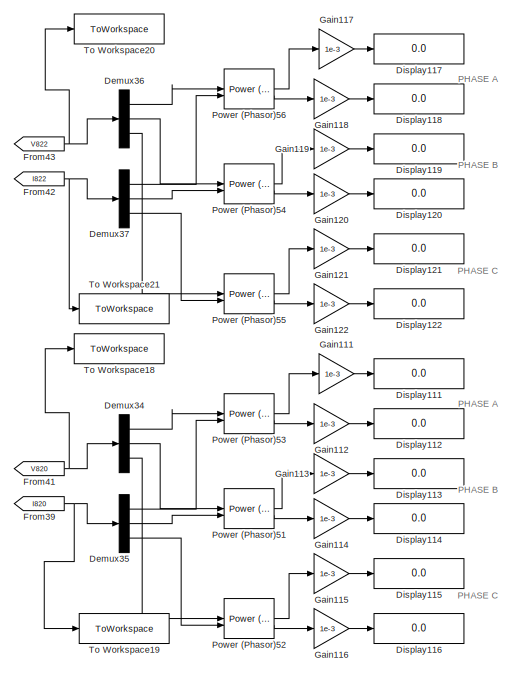
[diagram: Substation Power - part 1/11, top center region]
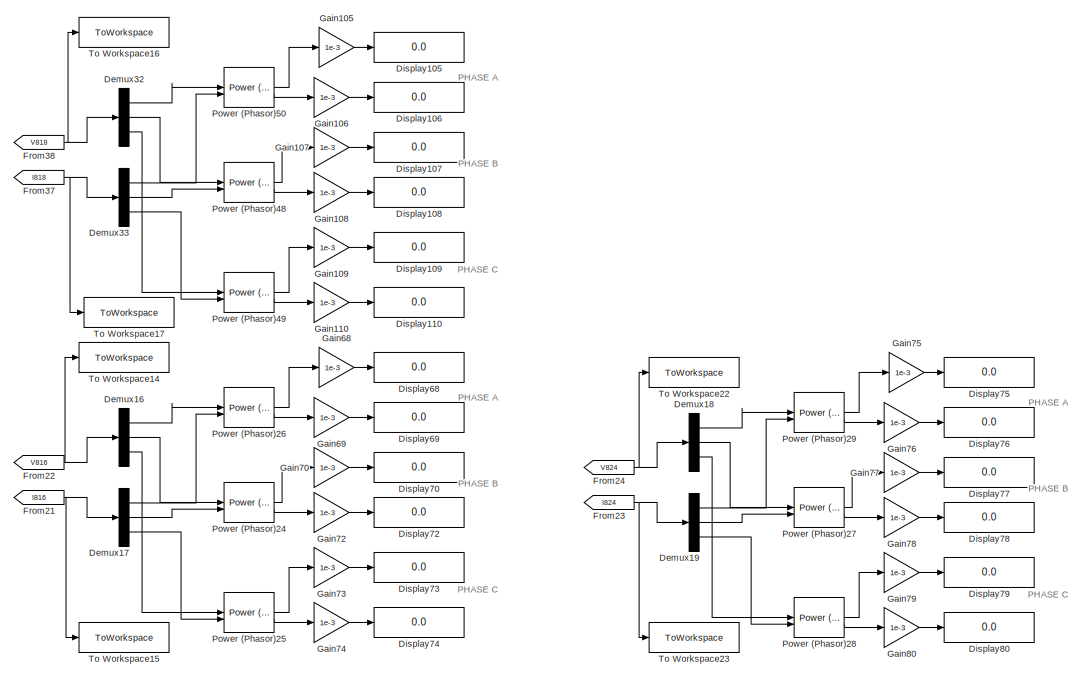
[diagram: Substation Power - part 2/11, central region]
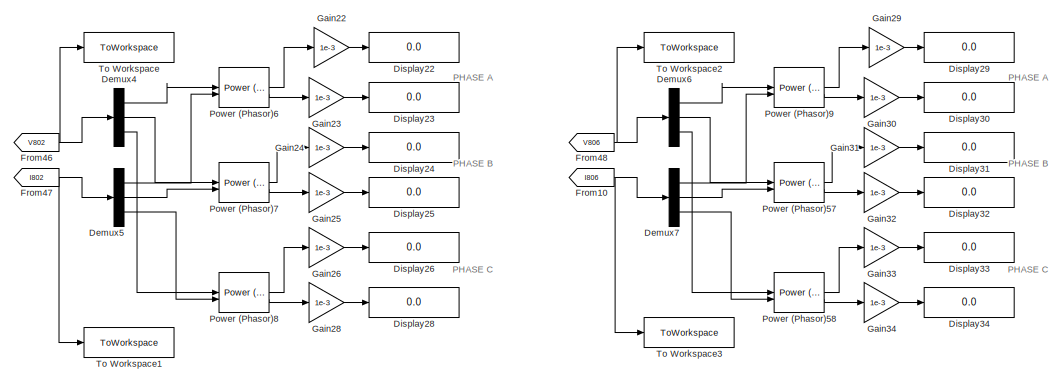
[diagram: Substation Power - part 3/11, middle left region]
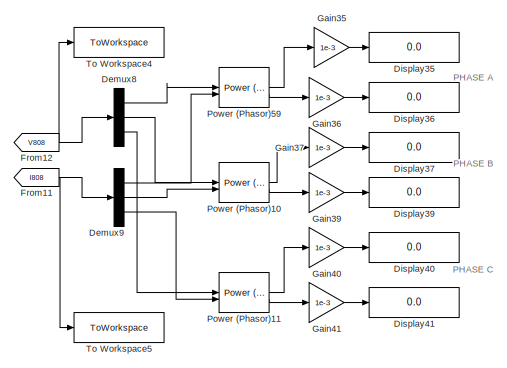
[diagram: Substation Power - part 4/11, middle left region]
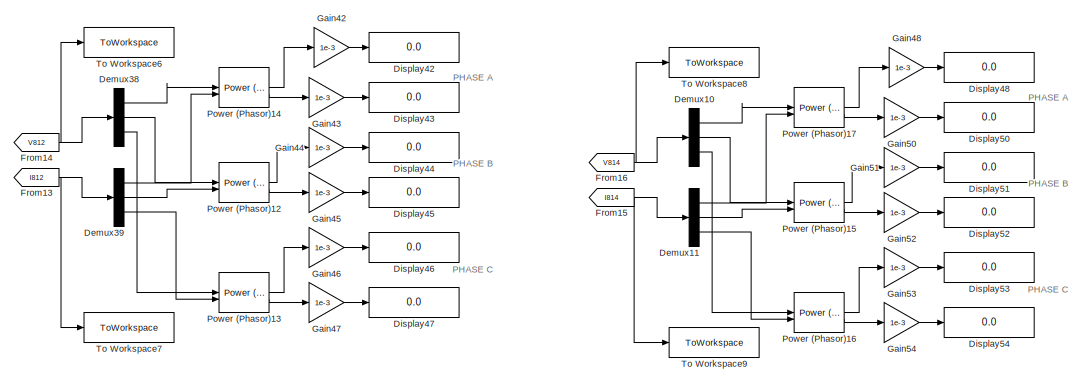
[diagram: Substation Power - part 5/11, middle left region]
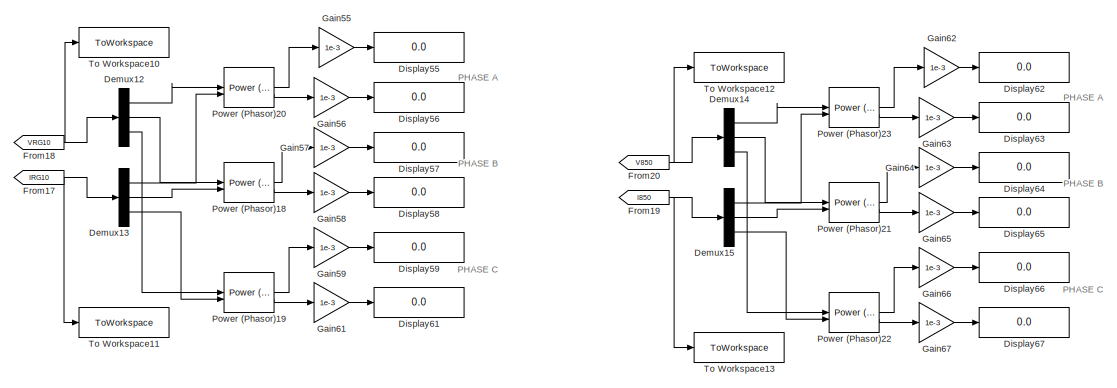
[diagram: Substation Power - part 6/11, central region]
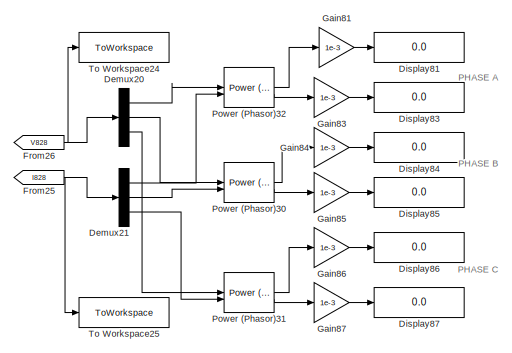
[diagram: Substation Power - part 7/11, central region]
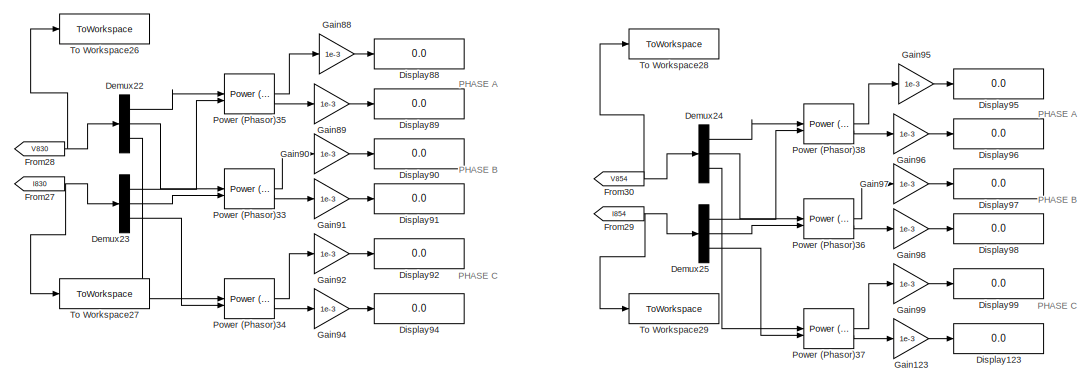
[diagram: Substation Power - part 8/11, middle right region]
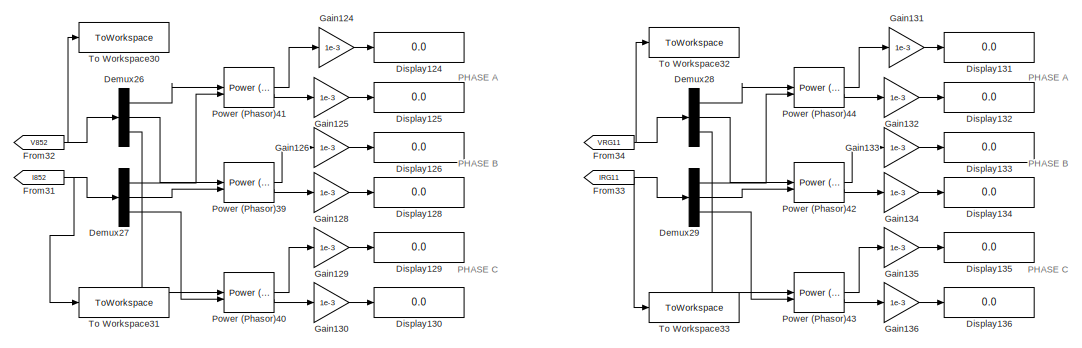
[diagram: Substation Power - part 9/11, middle right region]
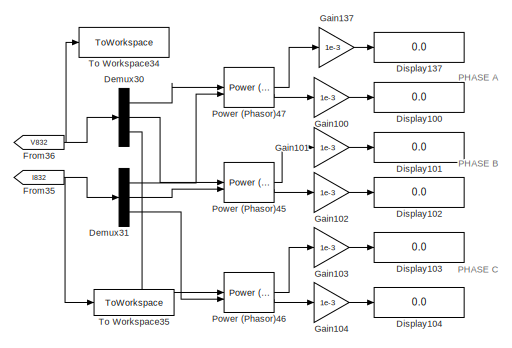
[diagram: Substation Power - part 10/11, middle right region]
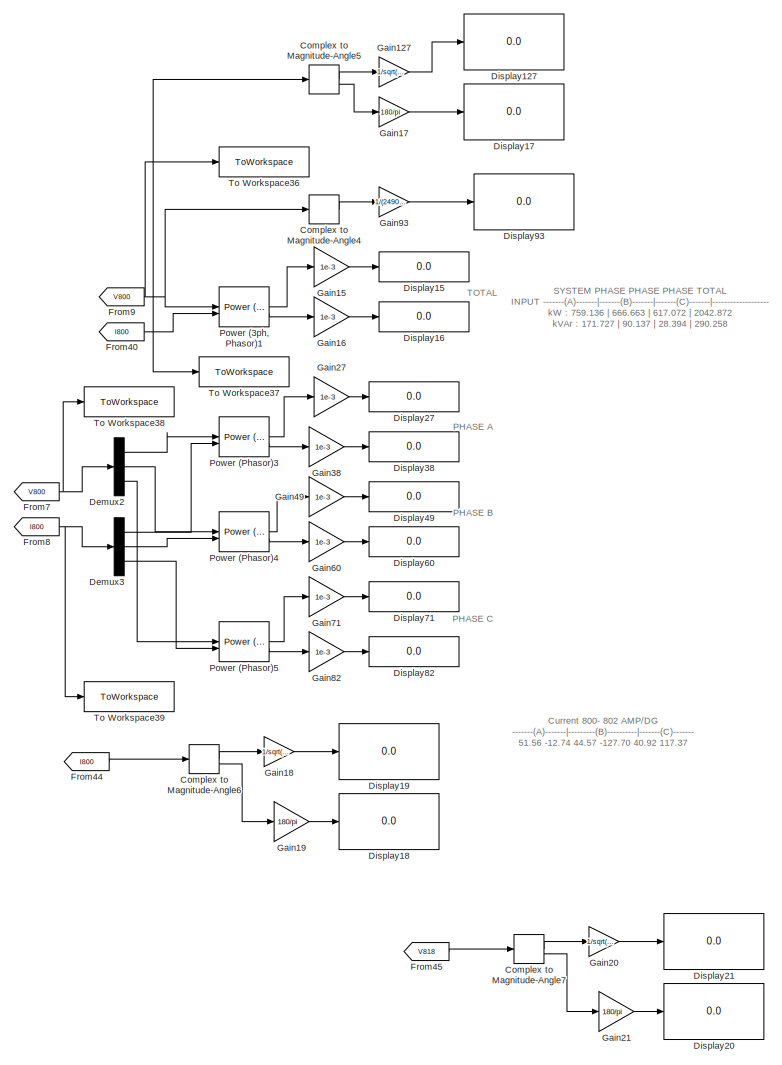
[diagram: Substation Power - part 11/11, bottom left region]
BLOCK [SubSystem] Substation Power
BLOCK [ComplexToMagnitudeAngle] Substation Power/Complex to Magnitude-Angle4
BLOCK [ComplexToMagnitudeAngle] Substation Power/Complex to Magnitude-Angle5
BLOCK [ComplexToMagnitudeAngle] Substation Power/Complex to Magnitude-Angle6
BLOCK [ComplexToMagnitudeAngle] Substation Power/Complex to Magnitude-Angle7
BLOCK [Demux] Substation Power/Demux10
  Outputs = 3
BLOCK [Demux] Substation Power/Demux11
  Outputs = 3
BLOCK [Demux] Substation Power/Demux12
  Outputs = 3
BLOCK [Demux] Substation Power/Demux13
  Outputs = 3
BLOCK [Demux] Substation Power/Demux14
  Outputs = 3
BLOCK [Demux] Substation Power/Demux15
  Outputs = 3
BLOCK [Demux] Substation Power/Demux16
  Outputs = 3
BLOCK [Demux] Substation Power/Demux17
  Outputs = 3
BLOCK [Demux] Substation Power/Demux18
  Outputs = 3
BLOCK [Demux] Substation Power/Demux19
  Outputs = 3
BLOCK [Demux] Substation Power/Demux2
  Outputs = 3
BLOCK [Demux] Substation Power/Demux20
  Outputs = 3
BLOCK [Demux] Substation Power/Demux21
  Outputs = 3
BLOCK [Demux] Substation Power/Demux22
  Outputs = 3
BLOCK [Demux] Substation Power/Demux23
  Outputs = 3
BLOCK [Demux] Substation Power/Demux24
  Outputs = 3
BLOCK [Demux] Substation Power/Demux25
  Outputs = 3
BLOCK [Demux] Substation Power/Demux26
  Outputs = 3
BLOCK [Demux] Substation Power/Demux27
  Outputs = 3
BLOCK [Demux] Substation Power/Demux28
  Outputs = 3
BLOCK [Demux] Substation Power/Demux29
  Outputs = 3
BLOCK [Demux] Substation Power/Demux3
  Outputs = 3
BLOCK [Demux] Substation Power/Demux30
  Outputs = 3
BLOCK [Demux] Substation Power/Demux31
  Outputs = 3
BLOCK [Demux] Substation Power/Demux32
  Outputs = 3
BLOCK [Demux] Substation Power/Demux33
  Outputs = 3
BLOCK [Demux] Substation Power/Demux34
  Outputs = 3
BLOCK [Demux] Substation Power/Demux35
  Outputs = 3
BLOCK [Demux] Substation Power/Demux36
  Outputs = 3
BLOCK [Demux] Substation Power/Demux37
  Outputs = 3
BLOCK [Demux] Substation Power/Demux38
  Outputs = 3
BLOCK [Demux] Substation Power/Demux39
  Outputs = 3
BLOCK [Demux] Substation Power/Demux4
  Outputs = 3
BLOCK [Demux] Substation Power/Demux5
  Outputs = 3
BLOCK [Demux] Substation Power/Demux6
  Outputs = 3
BLOCK [Demux] Substation Power/Demux7
  Outputs = 3
BLOCK [Demux] Substation Power/Demux8
  Outputs = 3
BLOCK [Demux] Substation Power/Demux9
  Outputs = 3
BLOCK [Display] Substation Power/Display100
  Decimation = 1
BLOCK [Display] Substation Power/Display101
  Decimation = 1
BLOCK [Display] Substation Power/Display102
  Decimation = 1
BLOCK [Display] Substation Power/Display103
  Decimation = 1
BLOCK [Display] Substation Power/Display104
  Decimation = 1
BLOCK [Display] Substation Power/Display105
  Decimation = 1
BLOCK [Display] Substation Power/Display106
  Decimation = 1
BLOCK [Display] Substation Power/Display107
  Decimation = 1
BLOCK [Display] Substation Power/Display108
  Decimation = 1
BLOCK [Display] Substation Power/Display109
  Decimation = 1
BLOCK [Display] Substation Power/Display110
  Decimation = 1
BLOCK [Display] Substation Power/Display111
  Decimation = 1
BLOCK [Display] Substation Power/Display112
  Decimation = 1
BLOCK [Display] Substation Power/Display113
  Decimation = 1
BLOCK [Display] Substation Power/Display114
  Decimation = 1
BLOCK [Display] Substation Power/Display115
  Decimation = 1
BLOCK [Display] Substation Power/Display116
  Decimation = 1
BLOCK [Display] Substation Power/Display117
  Decimation = 1
BLOCK [Display] Substation Power/Display118
  Decimation = 1
BLOCK [Display] Substation Power/Display119
  Decimation = 1
BLOCK [Display] Substation Power/Display120
  Decimation = 1
BLOCK [Display] Substation Power/Display121
  Decimation = 1
BLOCK [Display] Substation Power/Display122
  Decimation = 1
BLOCK [Display] Substation Power/Display123
  Decimation = 1
BLOCK [Display] Substation Power/Display124
  Decimation = 1
BLOCK [Display] Substation Power/Display125
  Decimation = 1
BLOCK [Display] Substation Power/Display126
  Decimation = 1
BLOCK [Display] Substation Power/Display127
  Decimation = 1
BLOCK [Display] Substation Power/Display128
  Decimation = 1
BLOCK [Display] Substation Power/Display129
  Decimation = 1
BLOCK [Display] Substation Power/Display130
  Decimation = 1
BLOCK [Display] Substation Power/Display131
  Decimation = 1
BLOCK [Display] Substation Power/Display132
  Decimation = 1
BLOCK [Display] Substation Power/Display133
  Decimation = 1
BLOCK [Display] Substation Power/Display134
  Decimation = 1
BLOCK [Display] Substation Power/Display135
  Decimation = 1
BLOCK [Display] Substation Power/Display136
  Decimation = 1
BLOCK [Display] Substation Power/Display137
  Decimation = 1
BLOCK [Display] Substation Power/Display15
  Decimation = 1
BLOCK [Display] Substation Power/Display16
  Decimation = 1
BLOCK [Display] Substation Power/Display17
  Decimation = 1
BLOCK [Display] Substation Power/Display18
  Decimation = 1
BLOCK [Display] Substation Power/Display19
  Decimation = 1
BLOCK [Display] Substation Power/Display20
  Decimation = 1
BLOCK [Display] Substation Power/Display21
  Decimation = 1
BLOCK [Display] Substation Power/Display22
  Decimation = 1
BLOCK [Display] Substation Power/Display23
  Decimation = 1
BLOCK [Display] Substation Power/Display24
  Decimation = 1
BLOCK [Display] Substation Power/Display25
  Decimation = 1
BLOCK [Display] Substation Power/Display26
  Decimation = 1
BLOCK [Display] Substation Power/Display27
  Decimation = 1
BLOCK [Display] Substation Power/Display28
  Decimation = 1
BLOCK [Display] Substation Power/Display29
  Decimation = 1
BLOCK [Display] Substation Power/Display30
  Decimation = 1
BLOCK [Display] Substation Power/Display31
  Decimation = 1
BLOCK [Display] Substation Power/Display32
  Decimation = 1
BLOCK [Display] Substation Power/Display33
  Decimation = 1
BLOCK [Display] Substation Power/Display34
  Decimation = 1
BLOCK [Display] Substation Power/Display35
  Decimation = 1
BLOCK [Display] Substation Power/Display36
  Decimation = 1
BLOCK [Display] Substation Power/Display37
  Decimation = 1
BLOCK [Display] Substation Power/Display38
  Decimation = 1
BLOCK [Display] Substation Power/Display39
  Decimation = 1
BLOCK [Display] Substation Power/Display40
  Decimation = 1
BLOCK [Display] Substation Power/Display41
  Decimation = 1
BLOCK [Display] Substation Power/Display42
  Decimation = 1
BLOCK [Display] Substation Power/Display43
  Decimation = 1
BLOCK [Display] Substation Power/Display44
  Decimation = 1
BLOCK [Display] Substation Power/Display45
  Decimation = 1
BLOCK [Display] Substation Power/Display46
  Decimation = 1
BLOCK [Display] Substation Power/Display47
  Decimation = 1
BLOCK [Display] Substation Power/Display48
  Decimation = 1
BLOCK [Display] Substation Power/Display49
  Decimation = 1
BLOCK [Display] Substation Power/Display50
  Decimation = 1
BLOCK [Display] Substation Power/Display51
  Decimation = 1
BLOCK [Display] Substation Power/Display52
  Decimation = 1
BLOCK [Display] Substation Power/Display53
  Decimation = 1
BLOCK [Display] Substation Power/Display54
  Decimation = 1
BLOCK [Display] Substation Power/Display55
  Decimation = 1
BLOCK [Display] Substation Power/Display56
  Decimation = 1
BLOCK [Display] Substation Power/Display57
  Decimation = 1
BLOCK [Display] Substation Power/Display58
  Decimation = 1
BLOCK [Display] Substation Power/Display59
  Decimation = 1
BLOCK [Display] Substation Power/Display60
  Decimation = 1
BLOCK [Display] Substation Power/Display61
  Decimation = 1
BLOCK [Display] Substation Power/Display62
  Decimation = 1
BLOCK [Display] Substation Power/Display63
  Decimation = 1
BLOCK [Display] Substation Power/Display64
  Decimation = 1
BLOCK [Display] Substation Power/Display65
  Decimation = 1
BLOCK [Display] Substation Power/Display66
  Decimation = 1
BLOCK [Display] Substation Power/Display67
  Decimation = 1
BLOCK [Display] Substation Power/Display68
  Decimation = 1
BLOCK [Display] Substation Power/Display69
  Decimation = 1
BLOCK [Display] Substation Power/Display70
  Decimation = 1
BLOCK [Display] Substation Power/Display71
  Decimation = 1
BLOCK [Display] Substation Power/Display72
  Decimation = 1
BLOCK [Display] Substation Power/Display73
  Decimation = 1
BLOCK [Display] Substation Power/Display74
  Decimation = 1
BLOCK [Display] Substation Power/Display75
  Decimation = 1
BLOCK [Display] Substation Power/Display76
  Decimation = 1
BLOCK [Display] Substation Power/Display77
  Decimation = 1
BLOCK [Display] Substation Power/Display78
  Decimation = 1
BLOCK [Display] Substation Power/Display79
  Decimation = 1
BLOCK [Display] Substation Power/Display80
  Decimation = 1
BLOCK [Display] Substation Power/Display81
  Decimation = 1
BLOCK [Display] Substation Power/Display82
  Decimation = 1
BLOCK [Display] Substation Power/Display83
  Decimation = 1
BLOCK [Display] Substation Power/Display84
  Decimation = 1
BLOCK [Display] Substation Power/Display85
  Decimation = 1
BLOCK [Display] Substation Power/Display86
  Decimation = 1
BLOCK [Display] Substation Power/Display87
  Decimation = 1
BLOCK [Display] Substation Power/Display88
  Decimation = 1
BLOCK [Display] Substation Power/Display89
  Decimation = 1
BLOCK [Display] Substation Power/Display90
  Decimation = 1
BLOCK [Display] Substation Power/Display91
  Decimation = 1
BLOCK [Display] Substation Power/Display92
  Decimation = 1
BLOCK [Display] Substation Power/Display93
  Decimation = 1
BLOCK [Display] Substation Power/Display94
  Decimation = 1
BLOCK [Display] Substation Power/Display95
  Decimation = 1
BLOCK [Display] Substation Power/Display96
  Decimation = 1
BLOCK [Display] Substation Power/Display97
  Decimation = 1
BLOCK [Display] Substation Power/Display98
  Decimation = 1
BLOCK [Display] Substation Power/Display99
  Decimation = 1
BLOCK [From] Substation Power/From10
  GotoTag = I806
  TagVisibility = global
BLOCK [From] Substation Power/From11
  GotoTag = I808
  TagVisibility = global
BLOCK [From] Substation Power/From12
  GotoTag = V808
  TagVisibility = global
BLOCK [From] Substation Power/From13
  GotoTag = I812
  TagVisibility = global
BLOCK [From] Substation Power/From14
  GotoTag = V812
  TagVisibility = global
BLOCK [From] Substation Power/From15
  GotoTag = I814
  TagVisibility = global
BLOCK [From] Substation Power/From16
  GotoTag = V814
  TagVisibility = global
BLOCK [From] Substation Power/From17
  GotoTag = IRG10
  TagVisibility = global
BLOCK [From] Substation Power/From18
  GotoTag = VRG10
  TagVisibility = global
BLOCK [From] Substation Power/From19
  GotoTag = I850
  TagVisibility = global
BLOCK [From] Substation Power/From20
  GotoTag = V850
  TagVisibility = global
BLOCK [From] Substation Power/From21
  GotoTag = I816
  TagVisibility = global
BLOCK [From] Substation Power/From22
  GotoTag = V816
  TagVisibility = global
BLOCK [From] Substation Power/From23
  GotoTag = I824
  TagVisibility = global
BLOCK [From] Substation Power/From24
  GotoTag = V824
  TagVisibility = global
BLOCK [From] Substation Power/From25
  GotoTag = I828
  TagVisibility = global
BLOCK [From] Substation Power/From26
  GotoTag = V828
  TagVisibility = global
BLOCK [From] Substation Power/From27
  GotoTag = I830
  TagVisibility = global
BLOCK [From] Substation Power/From28
  GotoTag = V830
  TagVisibility = global
BLOCK [From] Substation Power/From29
  GotoTag = I854
  TagVisibility = global
BLOCK [From] Substation Power/From30
  GotoTag = V854
  TagVisibility = global
BLOCK [From] Substation Power/From31
  GotoTag = I852
  TagVisibility = global
BLOCK [From] Substation Power/From32
  GotoTag = V852
  TagVisibility = global
BLOCK [From] Substation Power/From33
  GotoTag = IRG11
  TagVisibility = global
BLOCK [From] Substation Power/From34
  GotoTag = VRG11
  TagVisibility = global
BLOCK [From] Substation Power/From35
  GotoTag = I832
  TagVisibility = global
BLOCK [From] Substation Power/From36
  GotoTag = V832
  TagVisibility = global
BLOCK [From] Substation Power/From37
  GotoTag = I818
  TagVisibility = global
BLOCK [From] Substation Power/From38
  GotoTag = V818
  TagVisibility = global
BLOCK [From] Substation Power/From39
  GotoTag = I820
  TagVisibility = global
BLOCK [From] Substation Power/From40
  GotoTag = I800
  TagVisibility = global
BLOCK [From] Substation Power/From41
  GotoTag = V820
  TagVisibility = global
BLOCK [From] Substation Power/From42
  GotoTag = I822
  TagVisibility = global
BLOCK [From] Substation Power/From43
  GotoTag = V822
  TagVisibility = global
BLOCK [From] Substation Power/From44
  GotoTag = I800
  TagVisibility = global
BLOCK [From] Substation Power/From45
  GotoTag = V818
  TagVisibility = global
BLOCK [From] Substation Power/From46
  GotoTag = V802
  TagVisibility = global
BLOCK [From] Substation Power/From47
  GotoTag = I802
  TagVisibility = global
BLOCK [From] Substation Power/From48
  GotoTag = V806
  TagVisibility = global
BLOCK [From] Substation Power/From7
  GotoTag = V800
  TagVisibility = global
BLOCK [From] Substation Power/From8
  GotoTag = I800
  TagVisibility = global
BLOCK [From] Substation Power/From9
  GotoTag = V800
  TagVisibility = global
BLOCK [Gain] Substation Power/Gain100
  Gain = 1e-3
BLOCK [Gain] Substation Power/Gain101
  Gain = 1e-3
BLOCK [Gain] Substation Power/Gain102
  Gain = 1e-3
BLOCK [Gain] Substation Power/Gain103
  Gain = 1e-3
BLOCK [Gain] Substation Power/Gain104
  Gain = 1e-3
BLOCK [Gain] Substation Power/Gain105
  Gain = 1e-3
BLOCK [Gain] Substation Power/Gain106
  Gain = 1e-3
BLOCK [Gain] Substation Power/Gain107
  Gain = 1e-3
BLOCK [Gain] Substation Power/Gain108
  Gain = 1e-3
BLOCK [Gain] Substation Power/Gain109
  Gain = 1e-3
BLOCK [Gain] Substation Power/Gain110
  Gain = 1e-3
BLOCK [Gain] Substation Power/Gain111
  Gain = 1e-3
BLOCK [Gain] Substation Power/Gain112
  Gain = 1e-3
BLOCK [Gain] Substation Power/Gain113
  Gain = 1e-3
BLOCK [Gain] Substation Power/Gain114
  Gain = 1e-3
BLOCK [Gain] Substation Power/Gain115
  Gain = 1e-3
BLOCK [Gain] Substation Power/Gain116
  Gain = 1e-3
BLOCK [Gain] Substation Power/Gain117
  Gain = 1e-3
BLOCK [Gain] Substation Power/Gain118
  Gain = 1e-3
BLOCK [Gain] Substation Power/Gain119
  Gain = 1e-3
BLOCK [Gain] Substation Power/Gain120
  Gain = 1e-3
BLOCK [Gain] Substation Power/Gain121
  Gain = 1e-3
BLOCK [Gain] Substation Power/Gain122
  Gain = 1e-3
BLOCK [Gain] Substation Power/Gain123
  Gain = 1e-3
BLOCK [Gain] Substation Power/Gain124
  Gain = 1e-3
BLOCK [Gain] Substation Power/Gain125
  Gain = 1e-3
BLOCK [Gain] Substation Power/Gain126
  Gain = 1e-3
BLOCK [Gain] Substation Power/Gain127
  Gain = 1/sqrt(2)
BLOCK [Gain] Substation Power/Gain128
  Gain = 1e-3
BLOCK [Gain] Substation Power/Gain129
  Gain = 1e-3
BLOCK [Gain] Substation Power/Gain130
  Gain = 1e-3
BLOCK [Gain] Substation Power/Gain131
  Gain = 1e-3
BLOCK [Gain] Substation Power/Gain132
  Gain = 1e-3
BLOCK [Gain] Substation Power/Gain133
  Gain = 1e-3
BLOCK [Gain] Substation Power/Gain134
  Gain = 1e-3
BLOCK [Gain] Substation Power/Gain135
  Gain = 1e-3
BLOCK [Gain] Substation Power/Gain136
  Gain = 1e-3
BLOCK [Gain] Substation Power/Gain137
  Gain = 1e-3
BLOCK [Gain] Substation Power/Gain15
  Gain = 1e-3
BLOCK [Gain] Substation Power/Gain16
  Gain = 1e-3
BLOCK [Gain] Substation Power/Gain17
  Gain = 180/pi
BLOCK [Gain] Substation Power/Gain18
  Gain = 1/sqrt(2)
BLOCK [Gain] Substation Power/Gain19
  Gain = 180/pi
BLOCK [Gain] Substation Power/Gain20
  Gain = 1/sqrt(2)
BLOCK [Gain] Substation Power/Gain21
  Gain = 180/pi
BLOCK [Gain] Substation Power/Gain22
  Gain = 1e-3
BLOCK [Gain] Substation Power/Gain23
  Gain = 1e-3
BLOCK [Gain] Substation Power/Gain24
  Gain = 1e-3
BLOCK [Gain] Substation Power/Gain25
  Gain = 1e-3
BLOCK [Gain] Substation Power/Gain26
  Gain = 1e-3
BLOCK [Gain] Substation Power/Gain27
  Gain = 1e-3
BLOCK [Gain] Substation Power/Gain28
  Gain = 1e-3
BLOCK [Gain] Substation Power/Gain29
  Gain = 1e-3
BLOCK [Gain] Substation Power/Gain30
  Gain = 1e-3
BLOCK [Gain] Substation Power/Gain31
  Gain = 1e-3
BLOCK [Gain] Substation Power/Gain32
  Gain = 1e-3
BLOCK [Gain] Substation Power/Gain33
  Gain = 1e-3
BLOCK [Gain] Substation Power/Gain34
  Gain = 1e-3
BLOCK [Gain] Substation Power/Gain35
  Gain = 1e-3
BLOCK [Gain] Substation Power/Gain36
  Gain = 1e-3
BLOCK [Gain] Substation Power/Gain37
  Gain = 1e-3
BLOCK [Gain] Substation Power/Gain38
  Gain = 1e-3
BLOCK [Gain] Substation Power/Gain39
  Gain = 1e-3
BLOCK [Gain] Substation Power/Gain40
  Gain = 1e-3
BLOCK [Gain] Substation Power/Gain41
  Gain = 1e-3
BLOCK [Gain] Substation Power/Gain42
  Gain = 1e-3
BLOCK [Gain] Substation Power/Gain43
  Gain = 1e-3
BLOCK [Gain] Substation Power/Gain44
  Gain = 1e-3
BLOCK [Gain] Substation Power/Gain45
  Gain = 1e-3
BLOCK [Gain] Substation Power/Gain46
  Gain = 1e-3
BLOCK [Gain] Substation Power/Gain47
  Gain = 1e-3
BLOCK [Gain] Substation Power/Gain48
  Gain = 1e-3
BLOCK [Gain] Substation Power/Gain49
  Gain = 1e-3
BLOCK [Gain] Substation Power/Gain50
  Gain = 1e-3
BLOCK [Gain] Substation Power/Gain51
  Gain = 1e-3
BLOCK [Gain] Substation Power/Gain52
  Gain = 1e-3
BLOCK [Gain] Substation Power/Gain53
  Gain = 1e-3
BLOCK [Gain] Substation Power/Gain54
  Gain = 1e-3
BLOCK [Gain] Substation Power/Gain55
  Gain = 1e-3
BLOCK [Gain] Substation Power/Gain56
  Gain = 1e-3
BLOCK [Gain] Substation Power/Gain57
  Gain = 1e-3
BLOCK [Gain] Substation Power/Gain58
  Gain = 1e-3
BLOCK [Gain] Substation Power/Gain59
  Gain = 1e-3
BLOCK [Gain] Substation Power/Gain60
  Gain = 1e-3
BLOCK [Gain] Substation Power/Gain61
  Gain = 1e-3
BLOCK [Gain] Substation Power/Gain62
  Gain = 1e-3
BLOCK [Gain] Substation Power/Gain63
  Gain = 1e-3
BLOCK [Gain] Substation Power/Gain64
  Gain = 1e-3
BLOCK [Gain] Substation Power/Gain65
  Gain = 1e-3
BLOCK [Gain] Substation Power/Gain66
  Gain = 1e-3
BLOCK [Gain] Substation Power/Gain67
  Gain = 1e-3
BLOCK [Gain] Substation Power/Gain68
  Gain = 1e-3
BLOCK [Gain] Substation Power/Gain69
  Gain = 1e-3
BLOCK [Gain] Substation Power/Gain70
  Gain = 1e-3
BLOCK [Gain] Substation Power/Gain71
  Gain = 1e-3
BLOCK [Gain] Substation Power/Gain72
  Gain = 1e-3
BLOCK [Gain] Substation Power/Gain73
  Gain = 1e-3
BLOCK [Gain] Substation Power/Gain74
  Gain = 1e-3
BLOCK [Gain] Substation Power/Gain75
  Gain = 1e-3
BLOCK [Gain] Substation Power/Gain76
  Gain = 1e-3
BLOCK [Gain] Substation Power/Gain77
  Gain = 1e-3
BLOCK [Gain] Substation Power/Gain78
  Gain = 1e-3
BLOCK [Gain] Substation Power/Gain79
  Gain = 1e-3
BLOCK [Gain] Substation Power/Gain80
  Gain = 1e-3
BLOCK [Gain] Substation Power/Gain81
  Gain = 1e-3
BLOCK [Gain] Substation Power/Gain82
  Gain = 1e-3
BLOCK [Gain] Substation Power/Gain83
  Gain = 1e-3
BLOCK [Gain] Substation Power/Gain84
  Gain = 1e-3
BLOCK [Gain] Substation Power/Gain85
  Gain = 1e-3
BLOCK [Gain] Substation Power/Gain86
  Gain = 1e-3
BLOCK [Gain] Substation Power/Gain87
  Gain = 1e-3
BLOCK [Gain] Substation Power/Gain88
  Gain = 1e-3
BLOCK [Gain] Substation Power/Gain89
  Gain = 1e-3
BLOCK [Gain] Substation Power/Gain90
  Gain = 1e-3
BLOCK [Gain] Substation Power/Gain91
  Gain = 1e-3
BLOCK [Gain] Substation Power/Gain92
  Gain = 1e-3
BLOCK [Gain] Substation Power/Gain93
  Gain = 1/(24900/sqrt(3))*1/sqrt(2)
BLOCK [Gain] Substation Power/Gain94
  Gain = 1e-3
BLOCK [Gain] Substation Power/Gain95
  Gain = 1e-3
BLOCK [Gain] Substation Power/Gain96
  Gain = 1e-3
BLOCK [Gain] Substation Power/Gain97
  Gain = 1e-3
BLOCK [Gain] Substation Power/Gain98
  Gain = 1e-3
BLOCK [Gain] Substation Power/Gain99
  Gain = 1e-3
BLOCK [Reference] Substation Power/Power (3ph, Phasor)1  REF=spsPower3phPhasorLib/Power
(3ph, Phasor)
  LibrarySourceBlock = sps_lib/Sensors and Measurements/Power\n(3ph, Phasor)
  SourceBlock = spsPower3phPhasorLib/Power\n(3ph, Phasor)
  SourceType = Power (3ph, Phasor)
BLOCK [Reference] Substation Power/Power (Phasor)10  REF=spsPowerPhasorLib/Power
(Phasor)
  LibrarySourceBlock = sps_lib/Sensors and Measurements/Power\n(Phasor)
  SourceBlock = spsPowerPhasorLib/Power\n(Phasor)
  SourceType = Power (Phasor)
BLOCK [Reference] Substation Power/Power (Phasor)11  REF=spsPowerPhasorLib/Power
(Phasor)
  LibrarySourceBlock = sps_lib/Sensors and Measurements/Power\n(Phasor)
  SourceBlock = spsPowerPhasorLib/Power\n(Phasor)
  SourceType = Power (Phasor)
BLOCK [Reference] Substation Power/Power (Phasor)12  REF=spsPowerPhasorLib/Power
(Phasor)
  LibrarySourceBlock = sps_lib/Sensors and Measurements/Power\n(Phasor)
  SourceBlock = spsPowerPhasorLib/Power\n(Phasor)
  SourceType = Power (Phasor)
BLOCK [Reference] Substation Power/Power (Phasor)13  REF=spsPowerPhasorLib/Power
(Phasor)
  LibrarySourceBlock = sps_lib/Sensors and Measurements/Power\n(Phasor)
  SourceBlock = spsPowerPhasorLib/Power\n(Phasor)
  SourceType = Power (Phasor)
BLOCK [Reference] Substation Power/Power (Phasor)14  REF=spsPowerPhasorLib/Power
(Phasor)
  LibrarySourceBlock = sps_lib/Sensors and Measurements/Power\n(Phasor)
  SourceBlock = spsPowerPhasorLib/Power\n(Phasor)
  SourceType = Power (Phasor)
BLOCK [Reference] Substation Power/Power (Phasor)15  REF=spsPowerPhasorLib/Power
(Phasor)
  LibrarySourceBlock = sps_lib/Sensors and Measurements/Power\n(Phasor)
  SourceBlock = spsPowerPhasorLib/Power\n(Phasor)
  SourceType = Power (Phasor)
BLOCK [Reference] Substation Power/Power (Phasor)16  REF=spsPowerPhasorLib/Power
(Phasor)
  LibrarySourceBlock = sps_lib/Sensors and Measurements/Power\n(Phasor)
  SourceBlock = spsPowerPhasorLib/Power\n(Phasor)
  SourceType = Power (Phasor)
BLOCK [Reference] Substation Power/Power (Phasor)17  REF=spsPowerPhasorLib/Power
(Phasor)
  LibrarySourceBlock = sps_lib/Sensors and Measurements/Power\n(Phasor)
  SourceBlock = spsPowerPhasorLib/Power\n(Phasor)
  SourceType = Power (Phasor)
BLOCK [Reference] Substation Power/Power (Phasor)18  REF=spsPowerPhasorLib/Power
(Phasor)
  LibrarySourceBlock = sps_lib/Sensors and Measurements/Power\n(Phasor)
  SourceBlock = spsPowerPhasorLib/Power\n(Phasor)
  SourceType = Power (Phasor)
BLOCK [Reference] Substation Power/Power (Phasor)19  REF=spsPowerPhasorLib/Power
(Phasor)
  LibrarySourceBlock = sps_lib/Sensors and Measurements/Power\n(Phasor)
  SourceBlock = spsPowerPhasorLib/Power\n(Phasor)
  SourceType = Power (Phasor)
BLOCK [Reference] Substation Power/Power (Phasor)20  REF=spsPowerPhasorLib/Power
(Phasor)
  LibrarySourceBlock = sps_lib/Sensors and Measurements/Power\n(Phasor)
  SourceBlock = spsPowerPhasorLib/Power\n(Phasor)
  SourceType = Power (Phasor)
BLOCK [Reference] Substation Power/Power (Phasor)21  REF=spsPowerPhasorLib/Power
(Phasor)
  LibrarySourceBlock = sps_lib/Sensors and Measurements/Power\n(Phasor)
  SourceBlock = spsPowerPhasorLib/Power\n(Phasor)
  SourceType = Power (Phasor)
BLOCK [Reference] Substation Power/Power (Phasor)22  REF=spsPowerPhasorLib/Power
(Phasor)
  LibrarySourceBlock = sps_lib/Sensors and Measurements/Power\n(Phasor)
  SourceBlock = spsPowerPhasorLib/Power\n(Phasor)
  SourceType = Power (Phasor)
BLOCK [Reference] Substation Power/Power (Phasor)23  REF=spsPowerPhasorLib/Power
(Phasor)
  LibrarySourceBlock = sps_lib/Sensors and Measurements/Power\n(Phasor)
  SourceBlock = spsPowerPhasorLib/Power\n(Phasor)
  SourceType = Power (Phasor)
BLOCK [Reference] Substation Power/Power (Phasor)24  REF=spsPowerPhasorLib/Power
(Phasor)
  LibrarySourceBlock = sps_lib/Sensors and Measurements/Power\n(Phasor)
  SourceBlock = spsPowerPhasorLib/Power\n(Phasor)
  SourceType = Power (Phasor)
BLOCK [Reference] Substation Power/Power (Phasor)25  REF=spsPowerPhasorLib/Power
(Phasor)
  LibrarySourceBlock = sps_lib/Sensors and Measurements/Power\n(Phasor)
  SourceBlock = spsPowerPhasorLib/Power\n(Phasor)
  SourceType = Power (Phasor)
BLOCK [Reference] Substation Power/Power (Phasor)26  REF=spsPowerPhasorLib/Power
(Phasor)
  LibrarySourceBlock = sps_lib/Sensors and Measurements/Power\n(Phasor)
  SourceBlock = spsPowerPhasorLib/Power\n(Phasor)
  SourceType = Power (Phasor)
BLOCK [Reference] Substation Power/Power (Phasor)27  REF=spsPowerPhasorLib/Power
(Phasor)
  LibrarySourceBlock = sps_lib/Sensors and Measurements/Power\n(Phasor)
  SourceBlock = spsPowerPhasorLib/Power\n(Phasor)
  SourceType = Power (Phasor)
BLOCK [Reference] Substation Power/Power (Phasor)28  REF=spsPowerPhasorLib/Power
(Phasor)
  LibrarySourceBlock = sps_lib/Sensors and Measurements/Power\n(Phasor)
  SourceBlock = spsPowerPhasorLib/Power\n(Phasor)
  SourceType = Power (Phasor)
BLOCK [Reference] Substation Power/Power (Phasor)29  REF=spsPowerPhasorLib/Power
(Phasor)
  LibrarySourceBlock = sps_lib/Sensors and Measurements/Power\n(Phasor)
  SourceBlock = spsPowerPhasorLib/Power\n(Phasor)
  SourceType = Power (Phasor)
BLOCK [Reference] Substation Power/Power (Phasor)3  REF=spsPowerPhasorLib/Power
(Phasor)
  LibrarySourceBlock = sps_lib/Sensors and Measurements/Power\n(Phasor)
  SourceBlock = spsPowerPhasorLib/Power\n(Phasor)
  SourceType = Power (Phasor)
BLOCK [Reference] Substation Power/Power (Phasor)30  REF=spsPowerPhasorLib/Power
(Phasor)
  LibrarySourceBlock = sps_lib/Sensors and Measurements/Power\n(Phasor)
  SourceBlock = spsPowerPhasorLib/Power\n(Phasor)
  SourceType = Power (Phasor)
BLOCK [Reference] Substation Power/Power (Phasor)31  REF=spsPowerPhasorLib/Power
(Phasor)
  LibrarySourceBlock = sps_lib/Sensors and Measurements/Power\n(Phasor)
  SourceBlock = spsPowerPhasorLib/Power\n(Phasor)
  SourceType = Power (Phasor)
BLOCK [Reference] Substation Power/Power (Phasor)32  REF=spsPowerPhasorLib/Power
(Phasor)
  LibrarySourceBlock = sps_lib/Sensors and Measurements/Power\n(Phasor)
  SourceBlock = spsPowerPhasorLib/Power\n(Phasor)
  SourceType = Power (Phasor)
BLOCK [Reference] Substation Power/Power (Phasor)33  REF=spsPowerPhasorLib/Power
(Phasor)
  LibrarySourceBlock = sps_lib/Sensors and Measurements/Power\n(Phasor)
  SourceBlock = spsPowerPhasorLib/Power\n(Phasor)
  SourceType = Power (Phasor)
BLOCK [Reference] Substation Power/Power (Phasor)34  REF=spsPowerPhasorLib/Power
(Phasor)
  LibrarySourceBlock = sps_lib/Sensors and Measurements/Power\n(Phasor)
  SourceBlock = spsPowerPhasorLib/Power\n(Phasor)
  SourceType = Power (Phasor)
BLOCK [Reference] Substation Power/Power (Phasor)35  REF=spsPowerPhasorLib/Power
(Phasor)
  LibrarySourceBlock = sps_lib/Sensors and Measurements/Power\n(Phasor)
  SourceBlock = spsPowerPhasorLib/Power\n(Phasor)
  SourceType = Power (Phasor)
BLOCK [Reference] Substation Power/Power (Phasor)36  REF=spsPowerPhasorLib/Power
(Phasor)
  LibrarySourceBlock = sps_lib/Sensors and Measurements/Power\n(Phasor)
  SourceBlock = spsPowerPhasorLib/Power\n(Phasor)
  SourceType = Power (Phasor)
BLOCK [Reference] Substation Power/Power (Phasor)37  REF=spsPowerPhasorLib/Power
(Phasor)
  LibrarySourceBlock = sps_lib/Sensors and Measurements/Power\n(Phasor)
  SourceBlock = spsPowerPhasorLib/Power\n(Phasor)
  SourceType = Power (Phasor)
BLOCK [Reference] Substation Power/Power (Phasor)38  REF=spsPowerPhasorLib/Power
(Phasor)
  LibrarySourceBlock = sps_lib/Sensors and Measurements/Power\n(Phasor)
  SourceBlock = spsPowerPhasorLib/Power\n(Phasor)
  SourceType = Power (Phasor)
BLOCK [Reference] Substation Power/Power (Phasor)39  REF=spsPowerPhasorLib/Power
(Phasor)
  LibrarySourceBlock = sps_lib/Sensors and Measurements/Power\n(Phasor)
  SourceBlock = spsPowerPhasorLib/Power\n(Phasor)
  SourceType = Power (Phasor)
BLOCK [Reference] Substation Power/Power (Phasor)4  REF=spsPowerPhasorLib/Power
(Phasor)
  LibrarySourceBlock = sps_lib/Sensors and Measurements/Power\n(Phasor)
  SourceBlock = spsPowerPhasorLib/Power\n(Phasor)
  SourceType = Power (Phasor)
BLOCK [Reference] Substation Power/Power (Phasor)40  REF=spsPowerPhasorLib/Power
(Phasor)
  LibrarySourceBlock = sps_lib/Sensors and Measurements/Power\n(Phasor)
  SourceBlock = spsPowerPhasorLib/Power\n(Phasor)
  SourceType = Power (Phasor)
BLOCK [Reference] Substation Power/Power (Phasor)41  REF=spsPowerPhasorLib/Power
(Phasor)
  LibrarySourceBlock = sps_lib/Sensors and Measurements/Power\n(Phasor)
  SourceBlock = spsPowerPhasorLib/Power\n(Phasor)
  SourceType = Power (Phasor)
BLOCK [Reference] Substation Power/Power (Phasor)42  REF=spsPowerPhasorLib/Power
(Phasor)
  LibrarySourceBlock = sps_lib/Sensors and Measurements/Power\n(Phasor)
  SourceBlock = spsPowerPhasorLib/Power\n(Phasor)
  SourceType = Power (Phasor)
BLOCK [Reference] Substation Power/Power (Phasor)43  REF=spsPowerPhasorLib/Power
(Phasor)
  LibrarySourceBlock = sps_lib/Sensors and Measurements/Power\n(Phasor)
  SourceBlock = spsPowerPhasorLib/Power\n(Phasor)
  SourceType = Power (Phasor)
BLOCK [Reference] Substation Power/Power (Phasor)44  REF=spsPowerPhasorLib/Power
(Phasor)
  LibrarySourceBlock = sps_lib/Sensors and Measurements/Power\n(Phasor)
  SourceBlock = spsPowerPhasorLib/Power\n(Phasor)
  SourceType = Power (Phasor)
BLOCK [Reference] Substation Power/Power (Phasor)45  REF=spsPowerPhasorLib/Power
(Phasor)
  LibrarySourceBlock = sps_lib/Sensors and Measurements/Power\n(Phasor)
  SourceBlock = spsPowerPhasorLib/Power\n(Phasor)
  SourceType = Power (Phasor)
BLOCK [Reference] Substation Power/Power (Phasor)46  REF=spsPowerPhasorLib/Power
(Phasor)
  LibrarySourceBlock = sps_lib/Sensors and Measurements/Power\n(Phasor)
  SourceBlock = spsPowerPhasorLib/Power\n(Phasor)
  SourceType = Power (Phasor)
BLOCK [Reference] Substation Power/Power (Phasor)47  REF=spsPowerPhasorLib/Power
(Phasor)
  LibrarySourceBlock = sps_lib/Sensors and Measurements/Power\n(Phasor)
  SourceBlock = spsPowerPhasorLib/Power\n(Phasor)
  SourceType = Power (Phasor)
BLOCK [Reference] Substation Power/Power (Phasor)48  REF=spsPowerPhasorLib/Power
(Phasor)
  LibrarySourceBlock = sps_lib/Sensors and Measurements/Power\n(Phasor)
  SourceBlock = spsPowerPhasorLib/Power\n(Phasor)
  SourceType = Power (Phasor)
BLOCK [Reference] Substation Power/Power (Phasor)49  REF=spsPowerPhasorLib/Power
(Phasor)
  LibrarySourceBlock = sps_lib/Sensors and Measurements/Power\n(Phasor)
  SourceBlock = spsPowerPhasorLib/Power\n(Phasor)
  SourceType = Power (Phasor)
BLOCK [Reference] Substation Power/Power (Phasor)5  REF=spsPowerPhasorLib/Power
(Phasor)
  LibrarySourceBlock = sps_lib/Sensors and Measurements/Power\n(Phasor)
  SourceBlock = spsPowerPhasorLib/Power\n(Phasor)
  SourceType = Power (Phasor)
BLOCK [Reference] Substation Power/Power (Phasor)50  REF=spsPowerPhasorLib/Power
(Phasor)
  LibrarySourceBlock = sps_lib/Sensors and Measurements/Power\n(Phasor)
  SourceBlock = spsPowerPhasorLib/Power\n(Phasor)
  SourceType = Power (Phasor)
BLOCK [Reference] Substation Power/Power (Phasor)51  REF=spsPowerPhasorLib/Power
(Phasor)
  LibrarySourceBlock = sps_lib/Sensors and Measurements/Power\n(Phasor)
  SourceBlock = spsPowerPhasorLib/Power\n(Phasor)
  SourceType = Power (Phasor)
BLOCK [Reference] Substation Power/Power (Phasor)52  REF=spsPowerPhasorLib/Power
(Phasor)
  LibrarySourceBlock = sps_lib/Sensors and Measurements/Power\n(Phasor)
  SourceBlock = spsPowerPhasorLib/Power\n(Phasor)
  SourceType = Power (Phasor)
BLOCK [Reference] Substation Power/Power (Phasor)53  REF=spsPowerPhasorLib/Power
(Phasor)
  LibrarySourceBlock = sps_lib/Sensors and Measurements/Power\n(Phasor)
  SourceBlock = spsPowerPhasorLib/Power\n(Phasor)
  SourceType = Power (Phasor)
BLOCK [Reference] Substation Power/Power (Phasor)54  REF=spsPowerPhasorLib/Power
(Phasor)
  LibrarySourceBlock = sps_lib/Sensors and Measurements/Power\n(Phasor)
  SourceBlock = spsPowerPhasorLib/Power\n(Phasor)
  SourceType = Power (Phasor)
BLOCK [Reference] Substation Power/Power (Phasor)55  REF=spsPowerPhasorLib/Power
(Phasor)
  LibrarySourceBlock = sps_lib/Sensors and Measurements/Power\n(Phasor)
  SourceBlock = spsPowerPhasorLib/Power\n(Phasor)
  SourceType = Power (Phasor)
BLOCK [Reference] Substation Power/Power (Phasor)56  REF=spsPowerPhasorLib/Power
(Phasor)
  LibrarySourceBlock = sps_lib/Sensors and Measurements/Power\n(Phasor)
  SourceBlock = spsPowerPhasorLib/Power\n(Phasor)
  SourceType = Power (Phasor)
BLOCK [Reference] Substation Power/Power (Phasor)57  REF=spsPowerPhasorLib/Power
(Phasor)
  LibrarySourceBlock = sps_lib/Sensors and Measurements/Power\n(Phasor)
  SourceBlock = spsPowerPhasorLib/Power\n(Phasor)
  SourceType = Power (Phasor)
BLOCK [Reference] Substation Power/Power (Phasor)58  REF=spsPowerPhasorLib/Power
(Phasor)
  LibrarySourceBlock = sps_lib/Sensors and Measurements/Power\n(Phasor)
  SourceBlock = spsPowerPhasorLib/Power\n(Phasor)
  SourceType = Power (Phasor)
BLOCK [Reference] Substation Power/Power (Phasor)59  REF=spsPowerPhasorLib/Power
(Phasor)
  LibrarySourceBlock = sps_lib/Sensors and Measurements/Power\n(Phasor)
  SourceBlock = spsPowerPhasorLib/Power\n(Phasor)
  SourceType = Power (Phasor)
BLOCK [Reference] Substation Power/Power (Phasor)6  REF=spsPowerPhasorLib/Power
(Phasor)
  LibrarySourceBlock = sps_lib/Sensors and Measurements/Power\n(Phasor)
  SourceBlock = spsPowerPhasorLib/Power\n(Phasor)
  SourceType = Power (Phasor)
BLOCK [Reference] Substation Power/Power (Phasor)7  REF=spsPowerPhasorLib/Power
(Phasor)
  LibrarySourceBlock = sps_lib/Sensors and Measurements/Power\n(Phasor)
  SourceBlock = spsPowerPhasorLib/Power\n(Phasor)
  SourceType = Power (Phasor)
BLOCK [Reference] Substation Power/Power (Phasor)8  REF=spsPowerPhasorLib/Power
(Phasor)
  LibrarySourceBlock = sps_lib/Sensors and Measurements/Power\n(Phasor)
  SourceBlock = spsPowerPhasorLib/Power\n(Phasor)
  SourceType = Power (Phasor)
BLOCK [Reference] Substation Power/Power (Phasor)9  REF=spsPowerPhasorLib/Power
(Phasor)
  LibrarySourceBlock = sps_lib/Sensors and Measurements/Power\n(Phasor)
  SourceBlock = spsPowerPhasorLib/Power\n(Phasor)
  SourceType = Power (Phasor)
BLOCK [ToWorkspace] Substation Power/To Workspace
  FixptAsFi = on
  MaxDataPoints = 1
  SampleTime = -1
  Save2DSignal = 2-D array (concatenate along first dimension)
  VariableName = V802
BLOCK [ToWorkspace] Substation Power/To Workspace1
  FixptAsFi = on
  MaxDataPoints = 1
  SampleTime = -1
  Save2DSignal = 2-D array (concatenate along first dimension)
  VariableName = I802
BLOCK [ToWorkspace] Substation Power/To Workspace10
  FixptAsFi = on
  MaxDataPoints = 1
  SampleTime = -1
  Save2DSignal = 2-D array (concatenate along first dimension)
  VariableName = VRG10
BLOCK [ToWorkspace] Substation Power/To Workspace11
  FixptAsFi = on
  MaxDataPoints = 1
  SampleTime = -1
  Save2DSignal = 2-D array (concatenate along first dimension)
  VariableName = IRG10
BLOCK [ToWorkspace] Substation Power/To Workspace12
  FixptAsFi = on
  MaxDataPoints = 1
  SampleTime = -1
  Save2DSignal = 2-D array (concatenate along first dimension)
  VariableName = V850
BLOCK [ToWorkspace] Substation Power/To Workspace13
  FixptAsFi = on
  MaxDataPoints = 1
  SampleTime = -1
  Save2DSignal = 2-D array (concatenate along first dimension)
  VariableName = I850
BLOCK [ToWorkspace] Substation Power/To Workspace14
  FixptAsFi = on
  MaxDataPoints = 1
  SampleTime = -1
  Save2DSignal = 2-D array (concatenate along first dimension)
  VariableName = V816
BLOCK [ToWorkspace] Substation Power/To Workspace15
  FixptAsFi = on
  MaxDataPoints = 1
  SampleTime = -1
  Save2DSignal = 2-D array (concatenate along first dimension)
  VariableName = I816
BLOCK [ToWorkspace] Substation Power/To Workspace16
  FixptAsFi = on
  MaxDataPoints = 1
  SampleTime = -1
  Save2DSignal = 2-D array (concatenate along first dimension)
  VariableName = V818
BLOCK [ToWorkspace] Substation Power/To Workspace17
  FixptAsFi = on
  MaxDataPoints = 1
  SampleTime = -1
  Save2DSignal = 2-D array (concatenate along first dimension)
  VariableName = I818
BLOCK [ToWorkspace] Substation Power/To Workspace18
  FixptAsFi = on
  MaxDataPoints = 1
  SampleTime = -1
  Save2DSignal = 2-D array (concatenate along first dimension)
  VariableName = V820
BLOCK [ToWorkspace] Substation Power/To Workspace19
  FixptAsFi = on
  MaxDataPoints = 1
  SampleTime = -1
  Save2DSignal = 2-D array (concatenate along first dimension)
  VariableName = I820
BLOCK [ToWorkspace] Substation Power/To Workspace2
  FixptAsFi = on
  MaxDataPoints = 1
  SampleTime = -1
  Save2DSignal = 2-D array (concatenate along first dimension)
  VariableName = V806
BLOCK [ToWorkspace] Substation Power/To Workspace20
  FixptAsFi = on
  MaxDataPoints = 1
  SampleTime = -1
  Save2DSignal = 2-D array (concatenate along first dimension)
  VariableName = V822
BLOCK [ToWorkspace] Substation Power/To Workspace21
  FixptAsFi = on
  MaxDataPoints = 1
  SampleTime = -1
  Save2DSignal = 2-D array (concatenate along first dimension)
  VariableName = I822
BLOCK [ToWorkspace] Substation Power/To Workspace22
  FixptAsFi = on
  MaxDataPoints = 1
  SampleTime = -1
  Save2DSignal = 2-D array (concatenate along first dimension)
  VariableName = V824
BLOCK [ToWorkspace] Substation Power/To Workspace23
  FixptAsFi = on
  MaxDataPoints = 1
  SampleTime = -1
  Save2DSignal = 2-D array (concatenate along first dimension)
  VariableName = I824
BLOCK [ToWorkspace] Substation Power/To Workspace24
  FixptAsFi = on
  MaxDataPoints = 1
  SampleTime = -1
  Save2DSignal = 2-D array (concatenate along first dimension)
  VariableName = V828
BLOCK [ToWorkspace] Substation Power/To Workspace25
  FixptAsFi = on
  MaxDataPoints = 1
  SampleTime = -1
  Save2DSignal = 2-D array (concatenate along first dimension)
  VariableName = I828
BLOCK [ToWorkspace] Substation Power/To Workspace26
  FixptAsFi = on
  MaxDataPoints = 1
  SampleTime = -1
  Save2DSignal = 2-D array (concatenate along first dimension)
  VariableName = V830
BLOCK [ToWorkspace] Substation Power/To Workspace27
  FixptAsFi = on
  MaxDataPoints = 1
  SampleTime = -1
  Save2DSignal = 2-D array (concatenate along first dimension)
  VariableName = I830
BLOCK [ToWorkspace] Substation Power/To Workspace28
  FixptAsFi = on
  MaxDataPoints = 1
  SampleTime = -1
  Save2DSignal = 2-D array (concatenate along first dimension)
  VariableName = V854
BLOCK [ToWorkspace] Substation Power/To Workspace29
  FixptAsFi = on
  MaxDataPoints = 1
  SampleTime = -1
  Save2DSignal = 2-D array (concatenate along first dimension)
  VariableName = I854
BLOCK [ToWorkspace] Substation Power/To Workspace3
  FixptAsFi = on
  MaxDataPoints = 1
  SampleTime = -1
  Save2DSignal = 2-D array (concatenate along first dimension)
  VariableName = I806
BLOCK [ToWorkspace] Substation Power/To Workspace30
  FixptAsFi = on
  MaxDataPoints = 1
  SampleTime = -1
  Save2DSignal = 2-D array (concatenate along first dimension)
  VariableName = V852
BLOCK [ToWorkspace] Substation Power/To Workspace31
  FixptAsFi = on
  MaxDataPoints = 1
  SampleTime = -1
  Save2DSignal = 2-D array (concatenate along first dimension)
  VariableName = I852
BLOCK [ToWorkspace] Substation Power/To Workspace32
  FixptAsFi = on
  MaxDataPoints = 1
  SampleTime = -1
  Save2DSignal = 2-D array (concatenate along first dimension)
  VariableName = VRG11
BLOCK [ToWorkspace] Substation Power/To Workspace33
  FixptAsFi = on
  MaxDataPoints = 1
  SampleTime = -1
  Save2DSignal = 2-D array (concatenate along first dimension)
  VariableName = IRG11
BLOCK [ToWorkspace] Substation Power/To Workspace34
  FixptAsFi = on
  MaxDataPoints = 1
  SampleTime = -1
  Save2DSignal = 2-D array (concatenate along first dimension)
  VariableName = V832
BLOCK [ToWorkspace] Substation Power/To Workspace35
  FixptAsFi = on
  MaxDataPoints = 1
  SampleTime = -1
  Save2DSignal = 2-D array (concatenate along first dimension)
  VariableName = I832
BLOCK [ToWorkspace] Substation Power/To Workspace36
  FixptAsFi = on
  MaxDataPoints = inf
  SampleTime = -1
  Save2DSignal = 2-D array (concatenate along first dimension)
  VariableName = V
BLOCK [ToWorkspace] Substation Power/To Workspace37
  FixptAsFi = on
  MaxDataPoints = inf
  SampleTime = -1
  Save2DSignal = 2-D array (concatenate along first dimension)
  VariableName = I
BLOCK [ToWorkspace] Substation Power/To Workspace38
  FixptAsFi = on
  MaxDataPoints = 1
  SampleTime = -1
  Save2DSignal = 2-D array (concatenate along first dimension)
  VariableName = V800
BLOCK [ToWorkspace] Substation Power/To Workspace39
  FixptAsFi = on
  MaxDataPoints = 1
  SampleTime = -1
  Save2DSignal = 2-D array (concatenate along first dimension)
  VariableName = I800
BLOCK [ToWorkspace] Substation Power/To Workspace4
  FixptAsFi = on
  MaxDataPoints = 1
  SampleTime = -1
  Save2DSignal = 2-D array (concatenate along first dimension)
  VariableName = V808
BLOCK [ToWorkspace] Substation Power/To Workspace5
  FixptAsFi = on
  MaxDataPoints = 1
  SampleTime = -1
  Save2DSignal = 2-D array (concatenate along first dimension)
  VariableName = I808
BLOCK [ToWorkspace] Substation Power/To Workspace6
  FixptAsFi = on
  MaxDataPoints = 1
  SampleTime = -1
  Save2DSignal = 2-D array (concatenate along first dimension)
  VariableName = V812
BLOCK [ToWorkspace] Substation Power/To Workspace7
  FixptAsFi = on
  MaxDataPoints = 1
  SampleTime = -1
  Save2DSignal = 2-D array (concatenate along first dimension)
  VariableName = I812
BLOCK [ToWorkspace] Substation Power/To Workspace8
  FixptAsFi = on
  MaxDataPoints = 1
  SampleTime = -1
  Save2DSignal = 2-D array (concatenate along first dimension)
  VariableName = V814
BLOCK [ToWorkspace] Substation Power/To Workspace9
  FixptAsFi = on
  MaxDataPoints = 1
  SampleTime = -1
  Save2DSignal = 2-D array (concatenate along first dimension)
  VariableName = I814
BLOCK [Reference] Three-Phase Source  REF=spsThreePhaseSourceLib/Three-Phase Source
  LibrarySourceBlock = sps_lib/Sources/Three-Phase Source
  SourceBlock = spsThreePhaseSourceLib/Three-Phase Source
  SourceType = Three-Phase Source
BLOCK [Reference] Three-Phase Transformer (Two Windings)1  REF=spsThreePhaseTransformerTwoWindingsLib/Three-Phase
Transformer
(Two Windings)
  LibrarySourceBlock = sps_lib/Power Grid Elements/Three-Phase\nTransformer\n(Two Windings)
  SourceBlock = spsThreePhaseTransformerTwoWindingsLib/Three-Phase\nTransformer\n(Two Windings)
  SourceType = Three-Phase Transformer (Two Windings)
BLOCK [Reference] XF10  REF=spsThreePhaseVIMeasurementLib/Three-Phase
V-I Measurement
  LibrarySourceBlock = sps_lib/Sensors and Measurements/Three-Phase\nV-I Measurement
  SourceBlock = spsThreePhaseVIMeasurementLib/Three-Phase\nV-I Measurement
  SourceType = Three-Phase VI Measurement
BLOCK [Reference] powergui  REF=sps_lib/powergui
  LibrarySourceBlock = sps_lib/powergui
  Priority = 1
  SourceBlock = sps_lib/powergui
  SourceType = PSB option menu block
ANNOTATION (root): Model Developed by Arun Suresh, Dr. Sukumar Kamalasadan, University of North Carolina, Charlotte
ANNOTATION (root): Please consider citing following papers if the model was useful for your research A. Suresh, R. Bisht and S. Kamalasadan, "A Coordinated Control Architecture With Inverter-Based Resources and Legacy Controllers of Power Distribution System for Voltage Profile Balance," in IEEE Transactions on Industry Applications, vol. 58, no. 5, pp. 6701-6712, Sept.-Oct. 2022, doi: 10.1109/TIA.2022.3183030. A. S...<+256ch>
ANNOTATION Regulator 1/Single Phase SVR_A/Line Drop Compensator: Vm=Vsec-Isec(Rc+jXc)
ANNOTATION Regulator 1/Single Phase SVR_A/Transformer with Taps: Isec on CT Ratio base
ANNOTATION Regulator 1/Single Phase SVR_A/Transformer with Taps: Vsec on Pt Ratio base
ANNOTATION Regulator 1/Single Phase SVR_A/Transformer with Taps/Tap Changing Transformer: Reference: Distribution System Model in Simscape : 123 Node Test Feeder, Version 1.0.1 by Graham Dudgeon
ANNOTATION Regulator 1/Single Phase SVR_A/Voltage Regulator Control/Tap Changer Control/Edge Detector: Edge or Slope Detector
ANNOTATION Regulator 1/Single Phase SVR_B/Line Drop Compensator: Vm=Vsec-Isec(Rc+jXc)
ANNOTATION Regulator 1/Single Phase SVR_B/Transformer with Taps: Isec on CT Ratio base
ANNOTATION Regulator 1/Single Phase SVR_B/Transformer with Taps: Vsec on Pt Ratio base
ANNOTATION Regulator 1/Single Phase SVR_B/Transformer with Taps/Tap Changing Transformer: Reference: Distribution System Model in Simscape : 123 Node Test Feeder, Version 1.0.1 by Graham Dudgeon
ANNOTATION Regulator 1/Single Phase SVR_B/Voltage Regulator Control/Tap Changer Control/Edge Detector: Edge or Slope Detector
ANNOTATION Regulator 1/Single Phase SVR_C/Line Drop Compensator: Vm=Vsec-Isec(Rc+jXc)
ANNOTATION Regulator 1/Single Phase SVR_C/Transformer with Taps: Isec on CT Ratio base
ANNOTATION Regulator 1/Single Phase SVR_C/Transformer with Taps: Vsec on Pt Ratio base
ANNOTATION Regulator 1/Single Phase SVR_C/Transformer with Taps/Tap Changing Transformer: Reference: Distribution System Model in Simscape : 123 Node Test Feeder, Version 1.0.1 by Graham Dudgeon
ANNOTATION Regulator 1/Single Phase SVR_C/Voltage Regulator Control/Tap Changer Control/Edge Detector: Edge or Slope Detector
ANNOTATION Regulator 2/Single Phase SVR_A/Line Drop Compensator: Vm=Vsec-Isec(Rc+jXc)
ANNOTATION Regulator 2/Single Phase SVR_A/Transformer with Taps: Isec on CT Ratio base
ANNOTATION Regulator 2/Single Phase SVR_A/Transformer with Taps: Vsec on Pt Ratio base
ANNOTATION Regulator 2/Single Phase SVR_A/Transformer with Taps/Tap Changing Transformer: Reference: Distribution System Model in Simscape : 123 Node Test Feeder, Version 1.0.1 by Graham Dudgeon
ANNOTATION Regulator 2/Single Phase SVR_A/Voltage Regulator Control/Tap Changer Control/Edge Detector: Edge or Slope Detector
ANNOTATION Regulator 2/Single Phase SVR_B/Line Drop Compensator: Vm=Vsec-Isec(Rc+jXc)
ANNOTATION Regulator 2/Single Phase SVR_B/Transformer with Taps: Isec on CT Ratio base
ANNOTATION Regulator 2/Single Phase SVR_B/Transformer with Taps: Vsec on Pt Ratio base
ANNOTATION Regulator 2/Single Phase SVR_B/Transformer with Taps/Tap Changing Transformer: Reference: Distribution System Model in Simscape : 123 Node Test Feeder, Version 1.0.1 by Graham Dudgeon
ANNOTATION Regulator 2/Single Phase SVR_B/Voltage Regulator Control/Tap Changer Control/Edge Detector: Edge or Slope Detector
ANNOTATION Regulator 2/Single Phase SVR_C/Line Drop Compensator: Vm=Vsec-Isec(Rc+jXc)
ANNOTATION Regulator 2/Single Phase SVR_C/Transformer with Taps: Isec on CT Ratio base
ANNOTATION Regulator 2/Single Phase SVR_C/Transformer with Taps: Vsec on Pt Ratio base
ANNOTATION Regulator 2/Single Phase SVR_C/Transformer with Taps/Tap Changing Transformer: Reference: Distribution System Model in Simscape : 123 Node Test Feeder, Version 1.0.1 by Graham Dudgeon
ANNOTATION Regulator 2/Single Phase SVR_C/Voltage Regulator Control/Tap Changer Control/Edge Detector: Edge or Slope Detector
ANNOTATION Substation Power: PHASE A
ANNOTATION Substation Power: PHASE B
ANNOTATION Substation Power: PHASE C
ANNOTATION Substation Power: TOTAL
ANNOTATION Substation Power: Current 800- 802 AMP/DG -------(A)-------|---------(B)----------|-------(C)------- 51.56 -12.74 44.57 -127.70 40.92 117.37
ANNOTATION Substation Power: SYSTEM PHASE PHASE PHASE TOTAL INPUT -------(A)-------|-------(B)-------|-------(C)-------|------------------- kW : 759.136 | 666.663 | 617.072 | 2042.872 kVAr : 171.727 | 90.137 | 28.394 | 290.258
LINE 802 Y PQ/Demux1:1 -> 802 Y PQ/Controlled Current Source:1
LINE 802 Y PQ/Demux1:2 -> 802 Y PQ/Controlled Current Source1:1
LINE 802 Y PQ/Demux1:3 -> 802 Y PQ/Controlled Current Source2:1
LINE 802 Y PQ/Embedded MATLAB Function2:1 -> 802 Y PQ/Gain4:1
LINE 802 Y PQ/From21:1 -> 802 Y PQ/Mux5:3
LINE 802 Y PQ/From22:1 -> 802 Y PQ/Mux5:1
LINE 802 Y PQ/From3:1 -> 802 Y PQ/Mux5:2
LINE 802 Y PQ/Gain4:1 -> 802 Y PQ/Memory3:1
LINE 802 Y PQ/Gain5:1 -> 802 Y PQ/Embedded MATLAB Function2:1
LINE 802 Y PQ/Memory3:1 -> 802 Y PQ/Demux1:1
LINE 802 Y PQ/Mux5:1 -> 802 Y PQ/Gain5:1
LINE 802 Y PQ/Voltage Measurement4:1 -> 802 Y PQ/Goto2:1
LINE 802 Y PQ/Voltage Measurement5:1 -> 802 Y PQ/Goto4:1
LINE 802 Y PQ/Voltage Measurement6:1 -> 802 Y PQ/Goto5:1
LINE 806 Y PQ/Demux1:1 -> 806 Y PQ/Controlled Current Source:1
LINE 806 Y PQ/Demux1:2 -> 806 Y PQ/Controlled Current Source1:1
LINE 806 Y PQ/Demux1:3 -> 806 Y PQ/Controlled Current Source2:1
LINE 806 Y PQ/Embedded MATLAB Function2:1 -> 806 Y PQ/Gain4:1
LINE 806 Y PQ/From21:1 -> 806 Y PQ/Mux5:3
LINE 806 Y PQ/From22:1 -> 806 Y PQ/Mux5:1
LINE 806 Y PQ/From3:1 -> 806 Y PQ/Mux5:2
LINE 806 Y PQ/Gain4:1 -> 806 Y PQ/Memory3:1
LINE 806 Y PQ/Gain5:1 -> 806 Y PQ/Embedded MATLAB Function2:1
LINE 806 Y PQ/Memory3:1 -> 806 Y PQ/Demux1:1
LINE 806 Y PQ/Mux5:1 -> 806 Y PQ/Gain5:1
LINE 806 Y PQ/Voltage Measurement4:1 -> 806 Y PQ/Goto2:1
LINE 806 Y PQ/Voltage Measurement5:1 -> 806 Y PQ/Goto4:1
LINE 806 Y PQ/Voltage Measurement6:1 -> 806 Y PQ/Goto5:1
LINE 808 Y I/Embedded MATLAB Function:1 -> 808 Y I/Gain4:1
LINE 808 Y I/From:1 -> 808 Y I/Gain5:1
LINE 808 Y I/Gain4:1 -> 808 Y I/Memory1:1
LINE 808 Y I/Gain5:1 -> 808 Y I/Embedded MATLAB Function:1
LINE 808 Y I/Memory1:1 -> 808 Y I/Controlled Current Source:1
LINE 808 Y I/Voltage Measurement1:1 -> 808 Y I/Goto1:1
LINE 810 Y I/Embedded MATLAB Function:1 -> 810 Y I/Gain4:1
LINE 810 Y I/From:1 -> 810 Y I/Gain5:1
LINE 810 Y I/Gain4:1 -> 810 Y I/Memory1:1
LINE 810 Y I/Gain5:1 -> 810 Y I/Embedded MATLAB Function:1
LINE 810 Y I/Memory1:1 -> 810 Y I/Controlled Current Source:1
LINE 810 Y I/Voltage Measurement1:1 -> 810 Y I/Goto1:1
LINE 816 D I/Demux1:1 -> 816 D I/Controlled Current Source:1
LINE 816 D I/Demux1:2 -> 816 D I/Controlled Current Source1:1
LINE 816 D I/Demux1:3 -> 816 D I/Controlled Current Source2:1
LINE 816 D I/Embedded MATLAB Function2:1 -> 816 D I/Gain4:1
LINE 816 D I/From21:1 -> 816 D I/Mux5:3
LINE 816 D I/From22:1 -> 816 D I/Mux5:1
LINE 816 D I/From3:1 -> 816 D I/Mux5:2
LINE 816 D I/Gain4:1 -> 816 D I/Memory3:1
LINE 816 D I/Gain5:1 -> 816 D I/Embedded MATLAB Function2:1
LINE 816 D I/Memory3:1 -> 816 D I/Demux1:1
LINE 816 D I/Mux5:1 -> 816 D I/Gain5:1
LINE 816 D I/Voltage Measurement4:1 -> 816 D I/Goto2:1
LINE 816 D I/Voltage Measurement5:1 -> 816 D I/Goto4:1
LINE 816 D I/Voltage Measurement6:1 -> 816 D I/Goto5:1
LINE 818 Y Z/Embedded MATLAB Function:1 -> 818 Y Z/Gain4:1
LINE 818 Y Z/From:1 -> 818 Y Z/Gain5:1
LINE 818 Y Z/Gain4:1 -> 818 Y Z/Memory1:1
LINE 818 Y Z/Gain5:1 -> 818 Y Z/Embedded MATLAB Function:1
LINE 818 Y Z/Memory1:1 -> 818 Y Z/Controlled Current Source:1
LINE 818 Y Z/Voltage Measurement1:1 -> 818 Y Z/Goto1:1
LINE 820 Y PQ/Embedded MATLAB Function:1 -> 820 Y PQ/Gain4:1
LINE 820 Y PQ/From:1 -> 820 Y PQ/Gain5:1
LINE 820 Y PQ/Gain4:1 -> 820 Y PQ/Memory1:1
LINE 820 Y PQ/Gain5:1 -> 820 Y PQ/Embedded MATLAB Function:1
LINE 820 Y PQ/Memory1:1 -> 820 Y PQ/Controlled Current Source:1
LINE 820 Y PQ/Voltage Measurement1:1 -> 820 Y PQ/Goto1:1
LINE 820Y Z/Embedded MATLAB Function:1 -> 820Y Z/Gain4:1
LINE 820Y Z/From:1 -> 820Y Z/Gain5:1
LINE 820Y Z/Gain4:1 -> 820Y Z/Memory1:1
LINE 820Y Z/Gain5:1 -> 820Y Z/Embedded MATLAB Function:1
LINE 820Y Z/Memory1:1 -> 820Y Z/Controlled Current Source:1
LINE 820Y Z/Voltage Measurement1:1 -> 820Y Z/Goto1:1
LINE 822 Y PQ/Embedded MATLAB Function:1 -> 822 Y PQ/Gain4:1
LINE 822 Y PQ/From:1 -> 822 Y PQ/Gain5:1
LINE 822 Y PQ/Gain4:1 -> 822 Y PQ/Memory1:1
LINE 822 Y PQ/Gain5:1 -> 822 Y PQ/Embedded MATLAB Function:1
LINE 822 Y PQ/Memory1:1 -> 822 Y PQ/Controlled Current Source:1
LINE 822 Y PQ/Voltage Measurement1:1 -> 822 Y PQ/Goto1:1
LINE 824 D I/Demux1:1 -> 824 D I/Controlled Current Source:1
LINE 824 D I/Demux1:2 -> 824 D I/Controlled Current Source1:1
LINE 824 D I/Demux1:3 -> 824 D I/Controlled Current Source2:1
LINE 824 D I/Embedded MATLAB Function2:1 -> 824 D I/Gain4:1
LINE 824 D I/From21:1 -> 824 D I/Mux5:3
LINE 824 D I/From22:1 -> 824 D I/Mux5:1
LINE 824 D I/From3:1 -> 824 D I/Mux5:2
LINE 824 D I/Gain4:1 -> 824 D I/Memory3:1
LINE 824 D I/Gain5:1 -> 824 D I/Embedded MATLAB Function2:1
LINE 824 D I/Memory3:1 -> 824 D I/Demux1:1
LINE 824 D I/Mux5:1 -> 824 D I/Gain5:1
LINE 824 D I/Voltage Measurement4:1 -> 824 D I/Goto2:1
LINE 824 D I/Voltage Measurement5:1 -> 824 D I/Goto4:1
LINE 824 D I/Voltage Measurement6:1 -> 824 D I/Goto5:1
LINE 824 Y I/Embedded MATLAB Function:1 -> 824 Y I/Gain4:1
LINE 824 Y I/From:1 -> 824 Y I/Gain5:1
LINE 824 Y I/Gain4:1 -> 824 Y I/Memory1:1
LINE 824 Y I/Gain5:1 -> 824 Y I/Embedded MATLAB Function:1
LINE 824 Y I/Memory1:1 -> 824 Y I/Controlled Current Source:1
LINE 824 Y I/Voltage Measurement1:1 -> 824 Y I/Goto1:1
LINE 826 Y I/Embedded MATLAB Function:1 -> 826 Y I/Gain4:1
LINE 826 Y I/From:1 -> 826 Y I/Gain5:1
LINE 826 Y I/Gain4:1 -> 826 Y I/Memory1:1
LINE 826 Y I/Gain5:1 -> 826 Y I/Embedded MATLAB Function:1
LINE 826 Y I/Memory1:1 -> 826 Y I/Controlled Current Source:1
LINE 826 Y I/Voltage Measurement1:1 -> 826 Y I/Goto1:1
LINE 826 Y I1/Embedded MATLAB Function:1 -> 826 Y I1/Gain4:1
LINE 826 Y I1/From:1 -> 826 Y I1/Gain5:1
LINE 826 Y I1/Gain4:1 -> 826 Y I1/Memory1:1
LINE 826 Y I1/Gain5:1 -> 826 Y I1/Embedded MATLAB Function:1
LINE 826 Y I1/Memory1:1 -> 826 Y I1/Controlled Current Source:1
LINE 826 Y I1/Voltage Measurement1:1 -> 826 Y I1/Goto1:1
LINE 828 Y PQ/Embedded MATLAB Function:1 -> 828 Y PQ/Gain4:1
LINE 828 Y PQ/From:1 -> 828 Y PQ/Gain5:1
LINE 828 Y PQ/Gain4:1 -> 828 Y PQ/Memory1:1
LINE 828 Y PQ/Gain5:1 -> 828 Y PQ/Embedded MATLAB Function:1
LINE 828 Y PQ/Memory1:1 -> 828 Y PQ/Controlled Current Source:1
LINE 828 Y PQ/Voltage Measurement1:1 -> 828 Y PQ/Goto1:1
LINE 828 Y PQ1/Embedded MATLAB Function:1 -> 828 Y PQ1/Gain4:1
LINE 828 Y PQ1/From:1 -> 828 Y PQ1/Gain5:1
LINE 828 Y PQ1/Gain4:1 -> 828 Y PQ1/Memory1:1
LINE 828 Y PQ1/Gain5:1 -> 828 Y PQ1/Embedded MATLAB Function:1
LINE 828 Y PQ1/Memory1:1 -> 828 Y PQ1/Controlled Current Source:1
LINE 828 Y PQ1/Voltage Measurement1:1 -> 828 Y PQ1/Goto1:1
LINE 830 D Z/Demux1:1 -> 830 D Z/Controlled Current Source:1
LINE 830 D Z/Demux1:2 -> 830 D Z/Controlled Current Source1:1
LINE 830 D Z/Demux1:3 -> 830 D Z/Controlled Current Source2:1
LINE 830 D Z/Embedded MATLAB Function2:1 -> 830 D Z/Gain4:1
LINE 830 D Z/From21:1 -> 830 D Z/Mux5:3
LINE 830 D Z/From22:1 -> 830 D Z/Mux5:1
LINE 830 D Z/From3:1 -> 830 D Z/Mux5:2
LINE 830 D Z/Gain4:1 -> 830 D Z/Memory3:1
LINE 830 D Z/Gain5:1 -> 830 D Z/Embedded MATLAB Function2:1
LINE 830 D Z/Memory3:1 -> 830 D Z/Demux1:1
LINE 830 D Z/Mux5:1 -> 830 D Z/Gain5:1
LINE 830 D Z/Voltage Measurement4:1 -> 830 D Z/Goto2:1
LINE 830 D Z/Voltage Measurement5:1 -> 830 D Z/Goto4:1
LINE 830 D Z/Voltage Measurement6:1 -> 830 D Z/Goto5:1
LINE 830 Y PQ/Embedded MATLAB Function:1 -> 830 Y PQ/Gain4:1
LINE 830 Y PQ/From:1 -> 830 Y PQ/Gain5:1
LINE 830 Y PQ/Gain4:1 -> 830 Y PQ/Memory1:1
LINE 830 Y PQ/Gain5:1 -> 830 Y PQ/Embedded MATLAB Function:1
LINE 830 Y PQ/Memory1:1 -> 830 Y PQ/Controlled Current Source:1
LINE 830 Y PQ/Voltage Measurement1:1 -> 830 Y PQ/Goto1:1
LINE 832 D Z/Demux1:1 -> 832 D Z/Controlled Current Source:1
LINE 832 D Z/Demux1:2 -> 832 D Z/Controlled Current Source1:1
LINE 832 D Z/Demux1:3 -> 832 D Z/Controlled Current Source2:1
LINE 832 D Z/Embedded MATLAB Function2:1 -> 832 D Z/Gain4:1
LINE 832 D Z/From21:1 -> 832 D Z/Mux5:3
LINE 832 D Z/From22:1 -> 832 D Z/Mux5:1
LINE 832 D Z/From3:1 -> 832 D Z/Mux5:2
LINE 832 D Z/Gain4:1 -> 832 D Z/Memory3:1
LINE 832 D Z/Gain5:1 -> 832 D Z/Embedded MATLAB Function2:1
LINE 832 D Z/Memory3:1 -> 832 D Z/Demux1:1
LINE 832 D Z/Mux5:1 -> 832 D Z/Gain5:1
LINE 832 D Z/Voltage Measurement4:1 -> 832 D Z/Goto2:1
LINE 832 D Z/Voltage Measurement5:1 -> 832 D Z/Goto4:1
LINE 832 D Z/Voltage Measurement6:1 -> 832 D Z/Goto5:1
LINE 834 D PQ/Demux1:1 -> 834 D PQ/Controlled Current Source:1
LINE 834 D PQ/Demux1:2 -> 834 D PQ/Controlled Current Source1:1
LINE 834 D PQ/Demux1:3 -> 834 D PQ/Controlled Current Source2:1
LINE 834 D PQ/Embedded MATLAB Function2:1 -> 834 D PQ/Gain4:1
LINE 834 D PQ/From21:1 -> 834 D PQ/Mux5:3
LINE 834 D PQ/From22:1 -> 834 D PQ/Mux5:1
LINE 834 D PQ/From3:1 -> 834 D PQ/Mux5:2
LINE 834 D PQ/Gain4:1 -> 834 D PQ/Memory3:1
LINE 834 D PQ/Gain5:1 -> 834 D PQ/Embedded MATLAB Function2:1
LINE 834 D PQ/Memory3:1 -> 834 D PQ/Demux1:1
LINE 834 D PQ/Mux5:1 -> 834 D PQ/Gain5:1
LINE 834 D PQ/Voltage Measurement4:1 -> 834 D PQ/Goto2:1
LINE 834 D PQ/Voltage Measurement5:1 -> 834 D PQ/Goto4:1
LINE 834 D PQ/Voltage Measurement6:1 -> 834 D PQ/Goto5:1
LINE 834 D Z/Demux1:1 -> 834 D Z/Controlled Current Source:1
LINE 834 D Z/Demux1:2 -> 834 D Z/Controlled Current Source1:1
LINE 834 D Z/Demux1:3 -> 834 D Z/Controlled Current Source2:1
LINE 834 D Z/Embedded MATLAB Function2:1 -> 834 D Z/Gain4:1
LINE 834 D Z/From21:1 -> 834 D Z/Mux5:3
LINE 834 D Z/From22:1 -> 834 D Z/Mux5:1
LINE 834 D Z/From3:1 -> 834 D Z/Mux5:2
LINE 834 D Z/Gain4:1 -> 834 D Z/Memory3:1
LINE 834 D Z/Gain5:1 -> 834 D Z/Embedded MATLAB Function2:1
LINE 834 D Z/Memory3:1 -> 834 D Z/Demux1:1
LINE 834 D Z/Mux5:1 -> 834 D Z/Gain5:1
LINE 834 D Z/Voltage Measurement4:1 -> 834 D Z/Goto2:1
LINE 834 D Z/Voltage Measurement5:1 -> 834 D Z/Goto4:1
LINE 834 D Z/Voltage Measurement6:1 -> 834 D Z/Goto5:1
LINE 836 D I/Demux1:1 -> 836 D I/Controlled Current Source:1
LINE 836 D I/Demux1:2 -> 836 D I/Controlled Current Source1:1
LINE 836 D I/Demux1:3 -> 836 D I/Controlled Current Source2:1
LINE 836 D I/Embedded MATLAB Function2:1 -> 836 D I/Gain4:1
LINE 836 D I/From21:1 -> 836 D I/Mux5:3
LINE 836 D I/From22:1 -> 836 D I/Mux5:1
LINE 836 D I/From3:1 -> 836 D I/Mux5:2
LINE 836 D I/Gain4:1 -> 836 D I/Memory3:1
LINE 836 D I/Gain5:1 -> 836 D I/Embedded MATLAB Function2:1
LINE 836 D I/Memory3:1 -> 836 D I/Demux1:1
LINE 836 D I/Mux5:1 -> 836 D I/Gain5:1
LINE 836 D I/Voltage Measurement4:1 -> 836 D I/Goto2:1
LINE 836 D I/Voltage Measurement5:1 -> 836 D I/Goto4:1
LINE 836 D I/Voltage Measurement6:1 -> 836 D I/Goto5:1
LINE 836 D PQ/Demux1:1 -> 836 D PQ/Controlled Current Source:1
LINE 836 D PQ/Demux1:2 -> 836 D PQ/Controlled Current Source1:1
LINE 836 D PQ/Demux1:3 -> 836 D PQ/Controlled Current Source2:1
LINE 836 D PQ/Embedded MATLAB Function2:1 -> 836 D PQ/Gain4:1
LINE 836 D PQ/From21:1 -> 836 D PQ/Mux5:3
LINE 836 D PQ/From22:1 -> 836 D PQ/Mux5:1
LINE 836 D PQ/From3:1 -> 836 D PQ/Mux5:2
LINE 836 D PQ/Gain4:1 -> 836 D PQ/Memory3:1
LINE 836 D PQ/Gain5:1 -> 836 D PQ/Embedded MATLAB Function2:1
LINE 836 D PQ/Memory3:1 -> 836 D PQ/Demux1:1
LINE 836 D PQ/Mux5:1 -> 836 D PQ/Gain5:1
LINE 836 D PQ/Voltage Measurement4:1 -> 836 D PQ/Goto2:1
LINE 836 D PQ/Voltage Measurement5:1 -> 836 D PQ/Goto4:1
LINE 836 D PQ/Voltage Measurement6:1 -> 836 D PQ/Goto5:1
LINE 838 Y PQ/Embedded MATLAB Function:1 -> 838 Y PQ/Gain4:1
LINE 838 Y PQ/From:1 -> 838 Y PQ/Gain5:1
LINE 838 Y PQ/Gain4:1 -> 838 Y PQ/Memory1:1
LINE 838 Y PQ/Gain5:1 -> 838 Y PQ/Embedded MATLAB Function:1
LINE 838 Y PQ/Memory1:1 -> 838 Y PQ/Controlled Current Source:1
LINE 838 Y PQ/Voltage Measurement1:1 -> 838 Y PQ/Goto1:1
LINE 840 D I/Demux1:1 -> 840 D I/Controlled Current Source:1
LINE 840 D I/Demux1:2 -> 840 D I/Controlled Current Source1:1
LINE 840 D I/Demux1:3 -> 840 D I/Controlled Current Source2:1
LINE 840 D I/Embedded MATLAB Function2:1 -> 840 D I/Gain4:1
LINE 840 D I/From21:1 -> 840 D I/Mux5:3
LINE 840 D I/From22:1 -> 840 D I/Mux5:1
LINE 840 D I/From3:1 -> 840 D I/Mux5:2
LINE 840 D I/Gain4:1 -> 840 D I/Memory3:1
LINE 840 D I/Gain5:1 -> 840 D I/Embedded MATLAB Function2:1
LINE 840 D I/Memory3:1 -> 840 D I/Demux1:1
LINE 840 D I/Mux5:1 -> 840 D I/Gain5:1
LINE 840 D I/Voltage Measurement4:1 -> 840 D I/Goto2:1
LINE 840 D I/Voltage Measurement5:1 -> 840 D I/Goto4:1
LINE 840 D I/Voltage Measurement6:1 -> 840 D I/Goto5:1
LINE 840 Y I/Demux1:1 -> 840 Y I/Controlled Current Source:1
LINE 840 Y I/Demux1:2 -> 840 Y I/Controlled Current Source1:1
LINE 840 Y I/Demux1:3 -> 840 Y I/Controlled Current Source2:1
LINE 840 Y I/Embedded MATLAB Function2:1 -> 840 Y I/Gain4:1
LINE 840 Y I/From21:1 -> 840 Y I/Mux5:3
LINE 840 Y I/From22:1 -> 840 Y I/Mux5:1
LINE 840 Y I/From3:1 -> 840 Y I/Mux5:2
LINE 840 Y I/Gain4:1 -> 840 Y I/Memory3:1
LINE 840 Y I/Gain5:1 -> 840 Y I/Embedded MATLAB Function2:1
LINE 840 Y I/Memory3:1 -> 840 Y I/Demux1:1
LINE 840 Y I/Mux5:1 -> 840 Y I/Gain5:1
LINE 840 Y I/Voltage Measurement4:1 -> 840 Y I/Goto2:1
LINE 840 Y I/Voltage Measurement5:1 -> 840 Y I/Goto4:1
LINE 840 Y I/Voltage Measurement6:1 -> 840 Y I/Goto5:1
LINE 842 Y PQ/Embedded MATLAB Function:1 -> 842 Y PQ/Gain4:1
LINE 842 Y PQ/From:1 -> 842 Y PQ/Gain5:1
LINE 842 Y PQ/Gain4:1 -> 842 Y PQ/Memory1:1
LINE 842 Y PQ/Gain5:1 -> 842 Y PQ/Embedded MATLAB Function:1
LINE 842 Y PQ/Memory1:1 -> 842 Y PQ/Controlled Current Source:1
LINE 842 Y PQ/Voltage Measurement1:1 -> 842 Y PQ/Goto1:1
LINE 844 Y PQ/Embedded MATLAB Function:1 -> 844 Y PQ/Gain4:1
LINE 844 Y PQ/From:1 -> 844 Y PQ/Gain5:1
LINE 844 Y PQ/Gain4:1 -> 844 Y PQ/Memory1:1
LINE 844 Y PQ/Gain5:1 -> 844 Y PQ/Embedded MATLAB Function:1
LINE 844 Y PQ/Memory1:1 -> 844 Y PQ/Controlled Current Source:1
LINE 844 Y PQ/Voltage Measurement1:1 -> 844 Y PQ/Goto1:1
LINE 844 Y PQ1/Demux1:1 -> 844 Y PQ1/Controlled Current Source:1
LINE 844 Y PQ1/Demux1:2 -> 844 Y PQ1/Controlled Current Source1:1
LINE 844 Y PQ1/Demux1:3 -> 844 Y PQ1/Controlled Current Source2:1
LINE 844 Y PQ1/Embedded MATLAB Function2:1 -> 844 Y PQ1/Gain4:1
LINE 844 Y PQ1/From21:1 -> 844 Y PQ1/Mux5:3
LINE 844 Y PQ1/From22:1 -> 844 Y PQ1/Mux5:1
LINE 844 Y PQ1/From3:1 -> 844 Y PQ1/Mux5:2
LINE 844 Y PQ1/Gain4:1 -> 844 Y PQ1/Memory3:1
LINE 844 Y PQ1/Gain5:1 -> 844 Y PQ1/Embedded MATLAB Function2:1
LINE 844 Y PQ1/Memory3:1 -> 844 Y PQ1/Demux1:1
LINE 844 Y PQ1/Mux5:1 -> 844 Y PQ1/Gain5:1
LINE 844 Y PQ1/Voltage Measurement4:1 -> 844 Y PQ1/Goto2:1
LINE 844 Y PQ1/Voltage Measurement5:1 -> 844 Y PQ1/Goto4:1
LINE 844 Y PQ1/Voltage Measurement6:1 -> 844 Y PQ1/Goto5:1
LINE 844 Y Z/Demux1:1 -> 844 Y Z/Controlled Current Source:1
LINE 844 Y Z/Demux1:2 -> 844 Y Z/Controlled Current Source1:1
LINE 844 Y Z/Demux1:3 -> 844 Y Z/Controlled Current Source2:1
LINE 844 Y Z/Embedded MATLAB Function2:1 -> 844 Y Z/Gain4:1
LINE 844 Y Z/From21:1 -> 844 Y Z/Mux5:3
LINE 844 Y Z/From22:1 -> 844 Y Z/Mux5:1
LINE 844 Y Z/From3:1 -> 844 Y Z/Mux5:2
LINE 844 Y Z/Gain4:1 -> 844 Y Z/Memory3:1
LINE 844 Y Z/Gain5:1 -> 844 Y Z/Embedded MATLAB Function2:1
LINE 844 Y Z/Memory3:1 -> 844 Y Z/Demux1:1
LINE 844 Y Z/Mux5:1 -> 844 Y Z/Gain5:1
LINE 844 Y Z/Voltage Measurement4:1 -> 844 Y Z/Goto2:1
LINE 844 Y Z/Voltage Measurement5:1 -> 844 Y Z/Goto4:1
LINE 844 Y Z/Voltage Measurement6:1 -> 844 Y Z/Goto5:1
LINE 846 Y PQ/Demux1:1 -> 846 Y PQ/Controlled Current Source:1
LINE 846 Y PQ/Demux1:2 -> 846 Y PQ/Controlled Current Source1:1
LINE 846 Y PQ/Demux1:3 -> 846 Y PQ/Controlled Current Source2:1
LINE 846 Y PQ/Embedded MATLAB Function2:1 -> 846 Y PQ/Gain4:1
LINE 846 Y PQ/From21:1 -> 846 Y PQ/Mux5:3
LINE 846 Y PQ/From22:1 -> 846 Y PQ/Mux5:1
LINE 846 Y PQ/From3:1 -> 846 Y PQ/Mux5:2
LINE 846 Y PQ/Gain4:1 -> 846 Y PQ/Memory3:1
LINE 846 Y PQ/Gain5:1 -> 846 Y PQ/Embedded MATLAB Function2:1
LINE 846 Y PQ/Memory3:1 -> 846 Y PQ/Demux1:1
LINE 846 Y PQ/Mux5:1 -> 846 Y PQ/Gain5:1
LINE 846 Y PQ/Voltage Measurement4:1 -> 846 Y PQ/Goto2:1
LINE 846 Y PQ/Voltage Measurement5:1 -> 846 Y PQ/Goto4:1
LINE 846 Y PQ/Voltage Measurement6:1 -> 846 Y PQ/Goto5:1
LINE 846 Y PQ1/Embedded MATLAB Function:1 -> 846 Y PQ1/Gain4:1
LINE 846 Y PQ1/From:1 -> 846 Y PQ1/Gain5:1
LINE 846 Y PQ1/Gain4:1 -> 846 Y PQ1/Memory1:1
LINE 846 Y PQ1/Gain5:1 -> 846 Y PQ1/Embedded MATLAB Function:1
LINE 846 Y PQ1/Memory1:1 -> 846 Y PQ1/Controlled Current Source:1
LINE 846 Y PQ1/Voltage Measurement1:1 -> 846 Y PQ1/Goto1:1
LINE 848 D PQ/Demux1:1 -> 848 D PQ/Controlled Current Source:1
LINE 848 D PQ/Demux1:2 -> 848 D PQ/Controlled Current Source1:1
LINE 848 D PQ/Demux1:3 -> 848 D PQ/Controlled Current Source2:1
LINE 848 D PQ/Embedded MATLAB Function2:1 -> 848 D PQ/Gain4:1
LINE 848 D PQ/From21:1 -> 848 D PQ/Mux5:3
LINE 848 D PQ/From22:1 -> 848 D PQ/Mux5:1
LINE 848 D PQ/From3:1 -> 848 D PQ/Mux5:2
LINE 848 D PQ/Gain4:1 -> 848 D PQ/Memory3:1
LINE 848 D PQ/Gain5:1 -> 848 D PQ/Embedded MATLAB Function2:1
LINE 848 D PQ/Memory3:1 -> 848 D PQ/Demux1:1
LINE 848 D PQ/Mux5:1 -> 848 D PQ/Gain5:1
LINE 848 D PQ/Voltage Measurement4:1 -> 848 D PQ/Goto2:1
LINE 848 D PQ/Voltage Measurement5:1 -> 848 D PQ/Goto4:1
LINE 848 D PQ/Voltage Measurement6:1 -> 848 D PQ/Goto5:1
LINE 848 Y PQ/Embedded MATLAB Function:1 -> 848 Y PQ/Gain4:1
LINE 848 Y PQ/From:1 -> 848 Y PQ/Gain5:1
LINE 848 Y PQ/Gain4:1 -> 848 Y PQ/Memory1:1
LINE 848 Y PQ/Gain5:1 -> 848 Y PQ/Embedded MATLAB Function:1
LINE 848 Y PQ/Memory1:1 -> 848 Y PQ/Controlled Current Source:1
LINE 848 Y PQ/Voltage Measurement1:1 -> 848 Y PQ/Goto1:1
LINE 854 Y PQ/Embedded MATLAB Function:1 -> 854 Y PQ/Gain4:1
LINE 854 Y PQ/From:1 -> 854 Y PQ/Gain5:1
LINE 854 Y PQ/Gain4:1 -> 854 Y PQ/Memory1:1
LINE 854 Y PQ/Gain5:1 -> 854 Y PQ/Embedded MATLAB Function:1
LINE 854 Y PQ/Memory1:1 -> 854 Y PQ/Controlled Current Source:1
LINE 854 Y PQ/Voltage Measurement1:1 -> 854 Y PQ/Goto1:1
LINE 856 Y PQ/Embedded MATLAB Function:1 -> 856 Y PQ/Gain4:1
LINE 856 Y PQ/From:1 -> 856 Y PQ/Gain5:1
LINE 856 Y PQ/Gain4:1 -> 856 Y PQ/Memory1:1
LINE 856 Y PQ/Gain5:1 -> 856 Y PQ/Embedded MATLAB Function:1
LINE 856 Y PQ/Memory1:1 -> 856 Y PQ/Controlled Current Source:1
LINE 856 Y PQ/Voltage Measurement1:1 -> 856 Y PQ/Goto1:1
LINE 858 D PQ/Demux1:1 -> 858 D PQ/Controlled Current Source:1
LINE 858 D PQ/Demux1:2 -> 858 D PQ/Controlled Current Source1:1
LINE 858 D PQ/Demux1:3 -> 858 D PQ/Controlled Current Source2:1
LINE 858 D PQ/Embedded MATLAB Function2:1 -> 858 D PQ/Gain4:1
LINE 858 D PQ/From21:1 -> 858 D PQ/Mux5:3
LINE 858 D PQ/From22:1 -> 858 D PQ/Mux5:1
LINE 858 D PQ/From3:1 -> 858 D PQ/Mux5:2
LINE 858 D PQ/Gain4:1 -> 858 D PQ/Memory3:1
LINE 858 D PQ/Gain5:1 -> 858 D PQ/Embedded MATLAB Function2:1
LINE 858 D PQ/Memory3:1 -> 858 D PQ/Demux1:1
LINE 858 D PQ/Mux5:1 -> 858 D PQ/Gain5:1
LINE 858 D PQ/Voltage Measurement4:1 -> 858 D PQ/Goto2:1
LINE 858 D PQ/Voltage Measurement5:1 -> 858 D PQ/Goto4:1
LINE 858 D PQ/Voltage Measurement6:1 -> 858 D PQ/Goto5:1
LINE 858 D Z/Demux1:1 -> 858 D Z/Controlled Current Source:1
LINE 858 D Z/Demux1:2 -> 858 D Z/Controlled Current Source1:1
LINE 858 D Z/Demux1:3 -> 858 D Z/Controlled Current Source2:1
LINE 858 D Z/Embedded MATLAB Function2:1 -> 858 D Z/Gain4:1
LINE 858 D Z/From21:1 -> 858 D Z/Mux5:3
LINE 858 D Z/From22:1 -> 858 D Z/Mux5:1
LINE 858 D Z/From3:1 -> 858 D Z/Mux5:2
LINE 858 D Z/Gain4:1 -> 858 D Z/Memory3:1
LINE 858 D Z/Gain5:1 -> 858 D Z/Embedded MATLAB Function2:1
LINE 858 D Z/Memory3:1 -> 858 D Z/Demux1:1
LINE 858 D Z/Mux5:1 -> 858 D Z/Gain5:1
LINE 858 D Z/Voltage Measurement4:1 -> 858 D Z/Goto2:1
LINE 858 D Z/Voltage Measurement5:1 -> 858 D Z/Goto4:1
LINE 858 D Z/Voltage Measurement6:1 -> 858 D Z/Goto5:1
LINE 858 Y PQ/Embedded MATLAB Function:1 -> 858 Y PQ/Gain4:1
LINE 858 Y PQ/From:1 -> 858 Y PQ/Gain5:1
LINE 858 Y PQ/Gain4:1 -> 858 Y PQ/Memory1:1
LINE 858 Y PQ/Gain5:1 -> 858 Y PQ/Embedded MATLAB Function:1
LINE 858 Y PQ/Memory1:1 -> 858 Y PQ/Controlled Current Source:1
LINE 858 Y PQ/Voltage Measurement1:1 -> 858 Y PQ/Goto1:1
LINE 860 D PQ/Demux1:1 -> 860 D PQ/Controlled Current Source:1
LINE 860 D PQ/Demux1:2 -> 860 D PQ/Controlled Current Source1:1
LINE 860 D PQ/Demux1:3 -> 860 D PQ/Controlled Current Source2:1
LINE 860 D PQ/Embedded MATLAB Function2:1 -> 860 D PQ/Gain4:1
LINE 860 D PQ/From21:1 -> 860 D PQ/Mux5:3
LINE 860 D PQ/From22:1 -> 860 D PQ/Mux5:1
LINE 860 D PQ/From3:1 -> 860 D PQ/Mux5:2
LINE 860 D PQ/Gain4:1 -> 860 D PQ/Memory3:1
LINE 860 D PQ/Gain5:1 -> 860 D PQ/Embedded MATLAB Function2:1
LINE 860 D PQ/Memory3:1 -> 860 D PQ/Demux1:1
LINE 860 D PQ/Mux5:1 -> 860 D PQ/Gain5:1
LINE 860 D PQ/Voltage Measurement4:1 -> 860 D PQ/Goto2:1
LINE 860 D PQ/Voltage Measurement5:1 -> 860 D PQ/Goto4:1
LINE 860 D PQ/Voltage Measurement6:1 -> 860 D PQ/Goto5:1
LINE 860 D Z/Demux1:1 -> 860 D Z/Controlled Current Source:1
LINE 860 D Z/Demux1:2 -> 860 D Z/Controlled Current Source1:1
LINE 860 D Z/Demux1:3 -> 860 D Z/Controlled Current Source2:1
LINE 860 D Z/Embedded MATLAB Function2:1 -> 860 D Z/Gain4:1
LINE 860 D Z/From21:1 -> 860 D Z/Mux5:3
LINE 860 D Z/From22:1 -> 860 D Z/Mux5:1
LINE 860 D Z/From3:1 -> 860 D Z/Mux5:2
LINE 860 D Z/Gain4:1 -> 860 D Z/Memory3:1
LINE 860 D Z/Gain5:1 -> 860 D Z/Embedded MATLAB Function2:1
LINE 860 D Z/Memory3:1 -> 860 D Z/Demux1:1
LINE 860 D Z/Mux5:1 -> 860 D Z/Gain5:1
LINE 860 D Z/Voltage Measurement4:1 -> 860 D Z/Goto2:1
LINE 860 D Z/Voltage Measurement5:1 -> 860 D Z/Goto4:1
LINE 860 D Z/Voltage Measurement6:1 -> 860 D Z/Goto5:1
LINE 860 Y PQ/Demux1:1 -> 860 Y PQ/Controlled Current Source:1
LINE 860 Y PQ/Demux1:2 -> 860 Y PQ/Controlled Current Source1:1
LINE 860 Y PQ/Demux1:3 -> 860 Y PQ/Controlled Current Source2:1
LINE 860 Y PQ/Embedded MATLAB Function2:1 -> 860 Y PQ/Gain4:1
LINE 860 Y PQ/From21:1 -> 860 Y PQ/Mux5:3
LINE 860 Y PQ/From22:1 -> 860 Y PQ/Mux5:1
LINE 860 Y PQ/From3:1 -> 860 Y PQ/Mux5:2
LINE 860 Y PQ/Gain4:1 -> 860 Y PQ/Memory3:1
LINE 860 Y PQ/Gain5:1 -> 860 Y PQ/Embedded MATLAB Function2:1
LINE 860 Y PQ/Memory3:1 -> 860 Y PQ/Demux1:1
LINE 860 Y PQ/Mux5:1 -> 860 Y PQ/Gain5:1
LINE 860 Y PQ/Voltage Measurement4:1 -> 860 Y PQ/Goto2:1
LINE 860 Y PQ/Voltage Measurement5:1 -> 860 Y PQ/Goto4:1
LINE 860 Y PQ/Voltage Measurement6:1 -> 860 Y PQ/Goto5:1
LINE 862 Y PQ/Embedded MATLAB Function:1 -> 862 Y PQ/Gain4:1
LINE 862 Y PQ/From:1 -> 862 Y PQ/Gain5:1
LINE 862 Y PQ/Gain4:1 -> 862 Y PQ/Memory1:1
LINE 862 Y PQ/Gain5:1 -> 862 Y PQ/Embedded MATLAB Function:1
LINE 862 Y PQ/Memory1:1 -> 862 Y PQ/Controlled Current Source:1
LINE 862 Y PQ/Voltage Measurement1:1 -> 862 Y PQ/Goto1:1
LINE 864 Y PQ/Embedded MATLAB Function:1 -> 864 Y PQ/Gain4:1
LINE 864 Y PQ/From:1 -> 864 Y PQ/Gain5:1
LINE 864 Y PQ/Gain4:1 -> 864 Y PQ/Memory1:1
LINE 864 Y PQ/Gain5:1 -> 864 Y PQ/Embedded MATLAB Function:1
LINE 864 Y PQ/Memory1:1 -> 864 Y PQ/Controlled Current Source:1
LINE 864 Y PQ/Voltage Measurement1:1 -> 864 Y PQ/Goto1:1
LINE 890 D I/Demux1:1 -> 890 D I/Controlled Current Source:1
LINE 890 D I/Demux1:2 -> 890 D I/Controlled Current Source1:1
LINE 890 D I/Demux1:3 -> 890 D I/Controlled Current Source2:1
LINE 890 D I/Embedded MATLAB Function2:1 -> 890 D I/Gain4:1
LINE 890 D I/From21:1 -> 890 D I/Mux5:3
LINE 890 D I/From22:1 -> 890 D I/Mux5:1
LINE 890 D I/From3:1 -> 890 D I/Mux5:2
LINE 890 D I/Gain4:1 -> 890 D I/Memory3:1
LINE 890 D I/Gain5:1 -> 890 D I/Embedded MATLAB Function2:1
LINE 890 D I/Memory3:1 -> 890 D I/Demux1:1
LINE 890 D I/Mux5:1 -> 890 D I/Gain5:1
LINE 890 D I/Voltage Measurement4:1 -> 890 D I/Goto2:1
LINE 890 D I/Voltage Measurement5:1 -> 890 D I/Goto4:1
LINE 890 D I/Voltage Measurement6:1 -> 890 D I/Goto5:1
LINE Node Voltages/Complex to Magnitude-Angle:1 -> Node Voltages/Gain8:1
LINE Node Voltages/From10:1 -> Node Voltages/Mux3:10
LINE Node Voltages/From11:1 -> Node Voltages/Mux1:2
LINE Node Voltages/From12:1 -> Node Voltages/Mux1:4
LINE Node Voltages/From13:1 -> Node Voltages/Mux1:3
LINE Node Voltages/From14:1 -> Node Voltages/Mux1:6
LINE Node Voltages/From15:1 -> Node Voltages/Mux1:8
LINE Node Voltages/From16:1 -> Node Voltages/Mux1:7
LINE Node Voltages/From17:1 -> Node Voltages/Mux1:5
LINE Node Voltages/From18:1 -> Node Voltages/Mux1:10
LINE Node Voltages/From19:1 -> Node Voltages/Mux1:9
LINE Node Voltages/From1:1 -> Node Voltages/Mux3:2
LINE Node Voltages/From20:1 -> Node Voltages/Mux4:2
LINE Node Voltages/From21:1 -> Node Voltages/Mux4:4
LINE Node Voltages/From22:1 -> Node Voltages/Mux4:3
LINE Node Voltages/From23:1 -> Node Voltages/Mux4:6
LINE Node Voltages/From24:1 -> Node Voltages/Mux4:8
LINE Node Voltages/From25:1 -> Node Voltages/Mux4:7
LINE Node Voltages/From26:1 -> Node Voltages/Mux4:5
LINE Node Voltages/From27:1 -> Node Voltages/Mux4:10
LINE Node Voltages/From28:1 -> Node Voltages/Mux4:9
LINE Node Voltages/From29:1 -> Node Voltages/Mux4:1
LINE Node Voltages/From2:1 -> Node Voltages/Mux3:3
LINE Node Voltages/From30:1 -> Node Voltages/Mux5:2
LINE Node Voltages/From31:1 -> Node Voltages/Gain4:1
LINE Node Voltages/From32:1 -> Node Voltages/Mux5:3
LINE Node Voltages/From33:1 -> Node Voltages/Gain2:1
LINE Node Voltages/From35:1 -> Node Voltages/Mux5:7
LINE Node Voltages/From36:1 -> Node Voltages/Gain1:1
LINE Node Voltages/From39:1 -> Node Voltages/Mux5:1
LINE Node Voltages/From3:1 -> Node Voltages/Mux3:4
LINE Node Voltages/From41:1 -> Node Voltages/Mux1:1
LINE Node Voltages/From4:1 -> Node Voltages/Mux3:5
LINE Node Voltages/From5:1 -> Node Voltages/Mux3:6
LINE Node Voltages/From6:1 -> Node Voltages/Mux3:1
LINE Node Voltages/From7:1 -> Node Voltages/Mux3:7
LINE Node Voltages/From8:1 -> Node Voltages/Mux3:8
LINE Node Voltages/From9:1 -> Node Voltages/Mux3:9
LINE Node Voltages/Gain1:1 -> Node Voltages/Mux5:5
LINE Node Voltages/Gain2:1 -> Node Voltages/Mux5:6
LINE Node Voltages/Gain4:1 -> Node Voltages/Mux5:4
LINE Node Voltages/Gain8:1 -> Node Voltages/To Workspace:1
LINE Node Voltages/Mux1:1 -> Node Voltages/Mux2:2
LINE Node Voltages/Mux2:1 -> Node Voltages/Complex to Magnitude-Angle:1
LINE Node Voltages/Mux3:1 -> Node Voltages/Mux2:1
LINE Node Voltages/Mux4:1 -> Node Voltages/Mux2:3
LINE Node Voltages/Mux5:1 -> Node Voltages/Mux2:4
LINE Regulator 1/Mux:1 -> Regulator 1/Tap:1
LINE Regulator 1/Single Phase SVR_A/Line Drop Compensator/Abs1:1 -> Regulator 1/Single Phase SVR_A/Line Drop Compensator/Vm:1
LINE Regulator 1/Single Phase SVR_A/Line Drop Compensator/Gain4:1 -> Regulator 1/Single Phase SVR_A/Line Drop Compensator/Gain5:1
LINE Regulator 1/Single Phase SVR_A/Line Drop Compensator/Gain5:1 -> Regulator 1/Single Phase SVR_A/Line Drop Compensator/Sum1:2
LINE Regulator 1/Single Phase SVR_A/Line Drop Compensator/Gain6:1 -> Regulator 1/Single Phase SVR_A/Line Drop Compensator/Sum1:1
LINE Regulator 1/Single Phase SVR_A/Line Drop Compensator/Isec:1 -> Regulator 1/Single Phase SVR_A/Line Drop Compensator/Gain4:1
LINE Regulator 1/Single Phase SVR_A/Line Drop Compensator/Sum1:1 -> Regulator 1/Single Phase SVR_A/Line Drop Compensator/Abs1:1
LINE Regulator 1/Single Phase SVR_A/Line Drop Compensator/Vsec:1 -> Regulator 1/Single Phase SVR_A/Line Drop Compensator/Gain6:1
NET Regulator 1/Single Phase SVR_A/Line Drop Compensator:1 -> Regulator 1/Single Phase SVR_A/Goto:1, Regulator 1/Single Phase SVR_A/Voltage Regulator Control:1
LINE Regulator 1/Single Phase SVR_A/Transformer with Taps/    :1 -> Regulator 1/Single Phase SVR_A/Transformer with Taps/Memory1:1
LINE Regulator 1/Single Phase SVR_A/Transformer with Taps/ 1:1 -> Regulator 1/Single Phase SVR_A/Transformer with Taps/Memory:1
LINE Regulator 1/Single Phase SVR_A/Transformer with Taps/CT:1 -> Regulator 1/Single Phase SVR_A/Transformer with Taps/ 1:1
LINE Regulator 1/Single Phase SVR_A/Transformer with Taps/Memory1:1 -> Regulator 1/Single Phase SVR_A/Transformer with Taps/Vsec:1
LINE Regulator 1/Single Phase SVR_A/Transformer with Taps/Memory:1 -> Regulator 1/Single Phase SVR_A/Transformer with Taps/Isec:1
LINE Regulator 1/Single Phase SVR_A/Transformer with Taps/PT:1 -> Regulator 1/Single Phase SVR_A/Transformer with Taps/    :1
LINE Regulator 1/Single Phase SVR_A/Transformer with Taps/Tap Changing Transformer/Constant1:1 -> Regulator 1/Single Phase SVR_A/Transformer with Taps/Tap Changing Transformer/Sum1:2
LINE Regulator 1/Single Phase SVR_A/Transformer with Taps/Tap Changing Transformer/Current Measurement1:1 -> Regulator 1/Single Phase SVR_A/Transformer with Taps/Tap Changing Transformer/Goto3:1
LINE Regulator 1/Single Phase SVR_A/Transformer with Taps/Tap Changing Transformer/From1:1 -> Regulator 1/Single Phase SVR_A/Transformer with Taps/Tap Changing Transformer/Controlled Voltage Source2:1
LINE Regulator 1/Single Phase SVR_A/Transformer with Taps/Tap Changing Transformer/From2:1 -> Regulator 1/Single Phase SVR_A/Transformer with Taps/Tap Changing Transformer/Controlled Current Source1:1
LINE Regulator 1/Single Phase SVR_A/Transformer with Taps/Tap Changing Transformer/From3:1 -> Regulator 1/Single Phase SVR_A/Transformer with Taps/Tap Changing Transformer/Product4:1
LINE Regulator 1/Single Phase SVR_A/Transformer with Taps/Tap Changing Transformer/From:1 -> Regulator 1/Single Phase SVR_A/Transformer with Taps/Tap Changing Transformer/Product5:1
NET Regulator 1/Single Phase SVR_A/Transformer with Taps/Tap Changing Transformer/Gain2:1 -> Regulator 1/Single Phase SVR_A/Transformer with Taps/Tap Changing Transformer/Gain4:1, Regulator 1/Single Phase SVR_A/Transformer with Taps/Tap Changing Transformer/Product4:2, Regulator 1/Single Phase SVR_A/Transformer with Taps/Tap Changing Transformer/Sum1:1
LINE Regulator 1/Single Phase SVR_A/Transformer with Taps/Tap Changing Transformer/Gain4:1 -> Regulator 1/Single Phase SVR_A/Transformer with Taps/Tap Changing Transformer/Product5:2
LINE Regulator 1/Single Phase SVR_A/Transformer with Taps/Tap Changing Transformer/Memory1:1 -> Regulator 1/Single Phase SVR_A/Transformer with Taps/Tap Changing Transformer/Goto2:1
LINE Regulator 1/Single Phase SVR_A/Transformer with Taps/Tap Changing Transformer/Memory:1 -> Regulator 1/Single Phase SVR_A/Transformer with Taps/Tap Changing Transformer/Goto1:1
LINE Regulator 1/Single Phase SVR_A/Transformer with Taps/Tap Changing Transformer/Product4:1 -> Regulator 1/Single Phase SVR_A/Transformer with Taps/Tap Changing Transformer/Memory1:1
LINE Regulator 1/Single Phase SVR_A/Transformer with Taps/Tap Changing Transformer/Product5:1 -> Regulator 1/Single Phase SVR_A/Transformer with Taps/Tap Changing Transformer/Memory:1
LINE Regulator 1/Single Phase SVR_A/Transformer with Taps/Tap Changing Transformer/Sum1:1 -> Regulator 1/Single Phase SVR_A/Transformer with Taps/Tap Changing Transformer/Product4:3
LINE Regulator 1/Single Phase SVR_A/Transformer with Taps/Tap Changing Transformer/Tap:1 -> Regulator 1/Single Phase SVR_A/Transformer with Taps/Tap Changing Transformer/Gain2:1
LINE Regulator 1/Single Phase SVR_A/Transformer with Taps/Tap Changing Transformer/Voltage Measurement1:1 -> Regulator 1/Single Phase SVR_A/Transformer with Taps/Tap Changing Transformer/Goto:1
LINE Regulator 1/Single Phase SVR_A/Transformer with Taps/tap:1 -> Regulator 1/Single Phase SVR_A/Transformer with Taps/Tap Changing Transformer:1
LINE Regulator 1/Single Phase SVR_A/Transformer with Taps:1 -> Regulator 1/Single Phase SVR_A/Line Drop Compensator:1
LINE Regulator 1/Single Phase SVR_A/Transformer with Taps:2 -> Regulator 1/Single Phase SVR_A/Line Drop Compensator:2
LINE Regulator 1/Single Phase SVR_A/Voltage Regulator Control/Constant:1 -> Regulator 1/Single Phase SVR_A/Voltage Regulator Control/Voltage regulator:3
LINE Regulator 1/Single Phase SVR_A/Voltage Regulator Control/Tap Changer Control/Constant1:1 -> Regulator 1/Single Phase SVR_A/Voltage Regulator Control/Tap Changer Control/Switch:3
LINE Regulator 1/Single Phase SVR_A/Voltage Regulator Control/Tap Changer Control/Constant:1 -> Regulator 1/Single Phase SVR_A/Voltage Regulator Control/Tap Changer Control/Switch:1
LINE Regulator 1/Single Phase SVR_A/Voltage Regulator Control/Tap Changer Control/Determine tap position/Memory:1 -> Regulator 1/Single Phase SVR_A/Voltage Regulator Control/Tap Changer Control/Determine tap position/Sum:2
LINE Regulator 1/Single Phase SVR_A/Voltage Regulator Control/Tap Changer Control/Determine tap position/NewTap:1 -> Regulator 1/Single Phase SVR_A/Voltage Regulator Control/Tap Changer Control/Determine tap position/Sum:1
NET Regulator 1/Single Phase SVR_A/Voltage Regulator Control/Tap Changer Control/Determine tap position/Saturation:1 -> Regulator 1/Single Phase SVR_A/Voltage Regulator Control/Tap Changer Control/Determine tap position/Memory:1, Regulator 1/Single Phase SVR_A/Voltage Regulator Control/Tap Changer Control/Determine tap position/TapNo:1
LINE Regulator 1/Single Phase SVR_A/Voltage Regulator Control/Tap Changer Control/Determine tap position/Sum:1 -> Regulator 1/Single Phase SVR_A/Voltage Regulator Control/Tap Changer Control/Determine tap position/Saturation:1
NET Regulator 1/Single Phase SVR_A/Voltage Regulator Control/Tap Changer Control/Determine tap position:1 -> Regulator 1/Single Phase SVR_A/Voltage Regulator Control/Tap Changer Control/Mechanical Delay:1, Regulator 1/Single Phase SVR_A/Voltage Regulator Control/Tap Changer Control/Relational Operator:1
NET Regulator 1/Single Phase SVR_A/Voltage Regulator Control/Tap Changer Control/Down :1 -> Regulator 1/Single Phase SVR_A/Voltage Regulator Control/Tap Changer Control/Logical Operator:2, Regulator 1/Single Phase SVR_A/Voltage Regulator Control/Tap Changer Control/Switch:2
LINE Regulator 1/Single Phase SVR_A/Voltage Regulator Control/Tap Changer Control/Edge Detector:1 -> Regulator 1/Single Phase SVR_A/Voltage Regulator Control/Tap Changer Control/Logical Operator1:2
LINE Regulator 1/Single Phase SVR_A/Voltage Regulator Control/Tap Changer Control/Logical Operator1:1 -> Regulator 1/Single Phase SVR_A/Voltage Regulator Control/Tap Changer Control/Determine tap position:trigger
LINE Regulator 1/Single Phase SVR_A/Voltage Regulator Control/Tap Changer Control/Logical Operator:1 -> Regulator 1/Single Phase SVR_A/Voltage Regulator Control/Tap Changer Control/Edge Detector:1
NET Regulator 1/Single Phase SVR_A/Voltage Regulator Control/Tap Changer Control/Mechanical Delay:1 -> Regulator 1/Single Phase SVR_A/Voltage Regulator Control/Tap Changer Control/Relational Operator:2, Regulator 1/Single Phase SVR_A/Voltage Regulator Control/Tap Changer Control/TapNo:1
NET Regulator 1/Single Phase SVR_A/Voltage Regulator Control/Tap Changer Control/Memory:1 -> Regulator 1/Single Phase SVR_A/Voltage Regulator Control/Tap Changer Control/Logical Operator1:1, Regulator 1/Single Phase SVR_A/Voltage Regulator Control/Tap Changer Control/Ready:1
LINE Regulator 1/Single Phase SVR_A/Voltage Regulator Control/Tap Changer Control/Relational Operator:1 -> Regulator 1/Single Phase SVR_A/Voltage Regulator Control/Tap Changer Control/Memory:1
LINE Regulator 1/Single Phase SVR_A/Voltage Regulator Control/Tap Changer Control/Switch:1 -> Regulator 1/Single Phase SVR_A/Voltage Regulator Control/Tap Changer Control/Determine tap position:1
LINE Regulator 1/Single Phase SVR_A/Voltage Regulator Control/Tap Changer Control/Up :1 -> Regulator 1/Single Phase SVR_A/Voltage Regulator Control/Tap Changer Control/Logical Operator:1
LINE Regulator 1/Single Phase SVR_A/Voltage Regulator Control/Tap Changer Control:1 -> Regulator 1/Single Phase SVR_A/Voltage Regulator Control/Tap:1
LINE Regulator 1/Single Phase SVR_A/Voltage Regulator Control/Tap Changer Control:2 -> Regulator 1/Single Phase SVR_A/Voltage Regulator Control/Voltage regulator:2
LINE Regulator 1/Single Phase SVR_A/Voltage Regulator Control/Vm:1 -> Regulator 1/Single Phase SVR_A/Voltage Regulator Control/Voltage regulator:1
NET Regulator 1/Single Phase SVR_A/Voltage Regulator Control/Voltage regulator/Dead Zone:1 -> Regulator 1/Single Phase SVR_A/Voltage Regulator Control/Voltage regulator/Relational Operator1:1, Regulator 1/Single Phase SVR_A/Voltage Regulator Control/Voltage regulator/Relational Operator:1
NET Regulator 1/Single Phase SVR_A/Voltage Regulator Control/Voltage regulator/Discrete Variable Time Delay:1 -> Regulator 1/Single Phase SVR_A/Voltage Regulator Control/Voltage regulator/Logical Operator1:1, Regulator 1/Single Phase SVR_A/Voltage Regulator Control/Voltage regulator/Logical Operator:2
LINE Regulator 1/Single Phase SVR_A/Voltage Regulator Control/Voltage regulator/Logical Operator1:1 -> Regulator 1/Single Phase SVR_A/Voltage Regulator Control/Voltage regulator/On Delay1:1
LINE Regulator 1/Single Phase SVR_A/Voltage Regulator Control/Voltage regulator/Logical Operator:1 -> Regulator 1/Single Phase SVR_A/Voltage Regulator Control/Voltage regulator/On Delay:1
LINE Regulator 1/Single Phase SVR_A/Voltage Regulator Control/Voltage regulator/On Delay1:1 -> Regulator 1/Single Phase SVR_A/Voltage Regulator Control/Voltage regulator/Down:1
LINE Regulator 1/Single Phase SVR_A/Voltage Regulator Control/Voltage regulator/On Delay:1 -> Regulator 1/Single Phase SVR_A/Voltage Regulator Control/Voltage regulator/Up:1
LINE Regulator 1/Single Phase SVR_A/Voltage Regulator Control/Voltage regulator/Ready:1 -> Regulator 1/Single Phase SVR_A/Voltage Regulator Control/Voltage regulator/Discrete Variable Time Delay:1
LINE Regulator 1/Single Phase SVR_A/Voltage Regulator Control/Voltage regulator/RegOn:1 -> Regulator 1/Single Phase SVR_A/Voltage Regulator Control/Voltage regulator/Switch:2
LINE Regulator 1/Single Phase SVR_A/Voltage Regulator Control/Voltage regulator/Relational Operator1:1 -> Regulator 1/Single Phase SVR_A/Voltage Regulator Control/Voltage regulator/Logical Operator1:2
LINE Regulator 1/Single Phase SVR_A/Voltage Regulator Control/Voltage regulator/Relational Operator:1 -> Regulator 1/Single Phase SVR_A/Voltage Regulator Control/Voltage regulator/Logical Operator:1
LINE Regulator 1/Single Phase SVR_A/Voltage Regulator Control/Voltage regulator/Sum:1 -> Regulator 1/Single Phase SVR_A/Voltage Regulator Control/Voltage regulator/Switch:1
LINE Regulator 1/Single Phase SVR_A/Voltage Regulator Control/Voltage regulator/Switch:1 -> Regulator 1/Single Phase SVR_A/Voltage Regulator Control/Voltage regulator/Dead Zone:1
LINE Regulator 1/Single Phase SVR_A/Voltage Regulator Control/Voltage regulator/Vmes (pu):1 -> Regulator 1/Single Phase SVR_A/Voltage Regulator Control/Voltage regulator/Sum:2
LINE Regulator 1/Single Phase SVR_A/Voltage Regulator Control/Voltage regulator/Vref1:1 -> Regulator 1/Single Phase SVR_A/Voltage Regulator Control/Voltage regulator/Relational Operator:2
LINE Regulator 1/Single Phase SVR_A/Voltage Regulator Control/Voltage regulator/Vref2:1 -> Regulator 1/Single Phase SVR_A/Voltage Regulator Control/Voltage regulator/Switch:3
LINE Regulator 1/Single Phase SVR_A/Voltage Regulator Control/Voltage regulator/Vref3:1 -> Regulator 1/Single Phase SVR_A/Voltage Regulator Control/Voltage regulator/Relational Operator1:2
LINE Regulator 1/Single Phase SVR_A/Voltage Regulator Control/Voltage regulator/Vref4:1 -> Regulator 1/Single Phase SVR_A/Voltage Regulator Control/Voltage regulator/Discrete Variable Time Delay:2
LINE Regulator 1/Single Phase SVR_A/Voltage Regulator Control/Voltage regulator/Vref:1 -> Regulator 1/Single Phase SVR_A/Voltage Regulator Control/Voltage regulator/Sum:1
LINE Regulator 1/Single Phase SVR_A/Voltage Regulator Control/Voltage regulator:1 -> Regulator 1/Single Phase SVR_A/Voltage Regulator Control/Tap Changer Control:1
LINE Regulator 1/Single Phase SVR_A/Voltage Regulator Control/Voltage regulator:2 -> Regulator 1/Single Phase SVR_A/Voltage Regulator Control/Tap Changer Control:2
NET Regulator 1/Single Phase SVR_A/Voltage Regulator Control:1 -> Regulator 1/Single Phase SVR_A/Tap:1, Regulator 1/Single Phase SVR_A/Transformer with Taps:1
LINE Regulator 1/Single Phase SVR_A:1 -> Regulator 1/Mux:1
LINE Regulator 1/Single Phase SVR_B/Line Drop Compensator/Abs1:1 -> Regulator 1/Single Phase SVR_B/Line Drop Compensator/Vm:1
LINE Regulator 1/Single Phase SVR_B/Line Drop Compensator/Gain4:1 -> Regulator 1/Single Phase SVR_B/Line Drop Compensator/Gain5:1
LINE Regulator 1/Single Phase SVR_B/Line Drop Compensator/Gain5:1 -> Regulator 1/Single Phase SVR_B/Line Drop Compensator/Sum1:2
LINE Regulator 1/Single Phase SVR_B/Line Drop Compensator/Gain6:1 -> Regulator 1/Single Phase SVR_B/Line Drop Compensator/Sum1:1
LINE Regulator 1/Single Phase SVR_B/Line Drop Compensator/Isec:1 -> Regulator 1/Single Phase SVR_B/Line Drop Compensator/Gain4:1
LINE Regulator 1/Single Phase SVR_B/Line Drop Compensator/Sum1:1 -> Regulator 1/Single Phase SVR_B/Line Drop Compensator/Abs1:1
LINE Regulator 1/Single Phase SVR_B/Line Drop Compensator/Vsec:1 -> Regulator 1/Single Phase SVR_B/Line Drop Compensator/Gain6:1
NET Regulator 1/Single Phase SVR_B/Line Drop Compensator:1 -> Regulator 1/Single Phase SVR_B/Goto:1, Regulator 1/Single Phase SVR_B/Voltage Regulator Control:1
LINE Regulator 1/Single Phase SVR_B/Transformer with Taps/    :1 -> Regulator 1/Single Phase SVR_B/Transformer with Taps/Memory1:1
LINE Regulator 1/Single Phase SVR_B/Transformer with Taps/ 1:1 -> Regulator 1/Single Phase SVR_B/Transformer with Taps/Memory:1
LINE Regulator 1/Single Phase SVR_B/Transformer with Taps/CT:1 -> Regulator 1/Single Phase SVR_B/Transformer with Taps/ 1:1
LINE Regulator 1/Single Phase SVR_B/Transformer with Taps/Memory1:1 -> Regulator 1/Single Phase SVR_B/Transformer with Taps/Vsec:1
LINE Regulator 1/Single Phase SVR_B/Transformer with Taps/Memory:1 -> Regulator 1/Single Phase SVR_B/Transformer with Taps/Isec:1
LINE Regulator 1/Single Phase SVR_B/Transformer with Taps/PT:1 -> Regulator 1/Single Phase SVR_B/Transformer with Taps/    :1
LINE Regulator 1/Single Phase SVR_B/Transformer with Taps/Tap Changing Transformer/Constant1:1 -> Regulator 1/Single Phase SVR_B/Transformer with Taps/Tap Changing Transformer/Sum1:2
LINE Regulator 1/Single Phase SVR_B/Transformer with Taps/Tap Changing Transformer/Current Measurement1:1 -> Regulator 1/Single Phase SVR_B/Transformer with Taps/Tap Changing Transformer/Goto3:1
LINE Regulator 1/Single Phase SVR_B/Transformer with Taps/Tap Changing Transformer/From1:1 -> Regulator 1/Single Phase SVR_B/Transformer with Taps/Tap Changing Transformer/Controlled Voltage Source2:1
LINE Regulator 1/Single Phase SVR_B/Transformer with Taps/Tap Changing Transformer/From2:1 -> Regulator 1/Single Phase SVR_B/Transformer with Taps/Tap Changing Transformer/Controlled Current Source1:1
LINE Regulator 1/Single Phase SVR_B/Transformer with Taps/Tap Changing Transformer/From3:1 -> Regulator 1/Single Phase SVR_B/Transformer with Taps/Tap Changing Transformer/Product4:1
LINE Regulator 1/Single Phase SVR_B/Transformer with Taps/Tap Changing Transformer/From:1 -> Regulator 1/Single Phase SVR_B/Transformer with Taps/Tap Changing Transformer/Product5:1
NET Regulator 1/Single Phase SVR_B/Transformer with Taps/Tap Changing Transformer/Gain2:1 -> Regulator 1/Single Phase SVR_B/Transformer with Taps/Tap Changing Transformer/Gain4:1, Regulator 1/Single Phase SVR_B/Transformer with Taps/Tap Changing Transformer/Product4:2, Regulator 1/Single Phase SVR_B/Transformer with Taps/Tap Changing Transformer/Sum1:1
LINE Regulator 1/Single Phase SVR_B/Transformer with Taps/Tap Changing Transformer/Gain4:1 -> Regulator 1/Single Phase SVR_B/Transformer with Taps/Tap Changing Transformer/Product5:2
LINE Regulator 1/Single Phase SVR_B/Transformer with Taps/Tap Changing Transformer/Memory1:1 -> Regulator 1/Single Phase SVR_B/Transformer with Taps/Tap Changing Transformer/Goto2:1
LINE Regulator 1/Single Phase SVR_B/Transformer with Taps/Tap Changing Transformer/Memory:1 -> Regulator 1/Single Phase SVR_B/Transformer with Taps/Tap Changing Transformer/Goto1:1
LINE Regulator 1/Single Phase SVR_B/Transformer with Taps/Tap Changing Transformer/Product4:1 -> Regulator 1/Single Phase SVR_B/Transformer with Taps/Tap Changing Transformer/Memory1:1
LINE Regulator 1/Single Phase SVR_B/Transformer with Taps/Tap Changing Transformer/Product5:1 -> Regulator 1/Single Phase SVR_B/Transformer with Taps/Tap Changing Transformer/Memory:1
LINE Regulator 1/Single Phase SVR_B/Transformer with Taps/Tap Changing Transformer/Sum1:1 -> Regulator 1/Single Phase SVR_B/Transformer with Taps/Tap Changing Transformer/Product4:3
LINE Regulator 1/Single Phase SVR_B/Transformer with Taps/Tap Changing Transformer/Tap:1 -> Regulator 1/Single Phase SVR_B/Transformer with Taps/Tap Changing Transformer/Gain2:1
LINE Regulator 1/Single Phase SVR_B/Transformer with Taps/Tap Changing Transformer/Voltage Measurement1:1 -> Regulator 1/Single Phase SVR_B/Transformer with Taps/Tap Changing Transformer/Goto:1
LINE Regulator 1/Single Phase SVR_B/Transformer with Taps/tap:1 -> Regulator 1/Single Phase SVR_B/Transformer with Taps/Tap Changing Transformer:1
LINE Regulator 1/Single Phase SVR_B/Transformer with Taps:1 -> Regulator 1/Single Phase SVR_B/Line Drop Compensator:1
LINE Regulator 1/Single Phase SVR_B/Transformer with Taps:2 -> Regulator 1/Single Phase SVR_B/Line Drop Compensator:2
LINE Regulator 1/Single Phase SVR_B/Voltage Regulator Control/Constant:1 -> Regulator 1/Single Phase SVR_B/Voltage Regulator Control/Voltage regulator:3
LINE Regulator 1/Single Phase SVR_B/Voltage Regulator Control/Tap Changer Control/Constant1:1 -> Regulator 1/Single Phase SVR_B/Voltage Regulator Control/Tap Changer Control/Switch:3
LINE Regulator 1/Single Phase SVR_B/Voltage Regulator Control/Tap Changer Control/Constant:1 -> Regulator 1/Single Phase SVR_B/Voltage Regulator Control/Tap Changer Control/Switch:1
LINE Regulator 1/Single Phase SVR_B/Voltage Regulator Control/Tap Changer Control/Determine tap position/Memory:1 -> Regulator 1/Single Phase SVR_B/Voltage Regulator Control/Tap Changer Control/Determine tap position/Sum:2
LINE Regulator 1/Single Phase SVR_B/Voltage Regulator Control/Tap Changer Control/Determine tap position/NewTap:1 -> Regulator 1/Single Phase SVR_B/Voltage Regulator Control/Tap Changer Control/Determine tap position/Sum:1
NET Regulator 1/Single Phase SVR_B/Voltage Regulator Control/Tap Changer Control/Determine tap position/Saturation:1 -> Regulator 1/Single Phase SVR_B/Voltage Regulator Control/Tap Changer Control/Determine tap position/Memory:1, Regulator 1/Single Phase SVR_B/Voltage Regulator Control/Tap Changer Control/Determine tap position/TapNo:1
LINE Regulator 1/Single Phase SVR_B/Voltage Regulator Control/Tap Changer Control/Determine tap position/Sum:1 -> Regulator 1/Single Phase SVR_B/Voltage Regulator Control/Tap Changer Control/Determine tap position/Saturation:1
NET Regulator 1/Single Phase SVR_B/Voltage Regulator Control/Tap Changer Control/Determine tap position:1 -> Regulator 1/Single Phase SVR_B/Voltage Regulator Control/Tap Changer Control/Mechanical Delay:1, Regulator 1/Single Phase SVR_B/Voltage Regulator Control/Tap Changer Control/Relational Operator:1
NET Regulator 1/Single Phase SVR_B/Voltage Regulator Control/Tap Changer Control/Down :1 -> Regulator 1/Single Phase SVR_B/Voltage Regulator Control/Tap Changer Control/Logical Operator:2, Regulator 1/Single Phase SVR_B/Voltage Regulator Control/Tap Changer Control/Switch:2
LINE Regulator 1/Single Phase SVR_B/Voltage Regulator Control/Tap Changer Control/Edge Detector:1 -> Regulator 1/Single Phase SVR_B/Voltage Regulator Control/Tap Changer Control/Logical Operator1:2
LINE Regulator 1/Single Phase SVR_B/Voltage Regulator Control/Tap Changer Control/Logical Operator1:1 -> Regulator 1/Single Phase SVR_B/Voltage Regulator Control/Tap Changer Control/Determine tap position:trigger
LINE Regulator 1/Single Phase SVR_B/Voltage Regulator Control/Tap Changer Control/Logical Operator:1 -> Regulator 1/Single Phase SVR_B/Voltage Regulator Control/Tap Changer Control/Edge Detector:1
NET Regulator 1/Single Phase SVR_B/Voltage Regulator Control/Tap Changer Control/Mechanical Delay:1 -> Regulator 1/Single Phase SVR_B/Voltage Regulator Control/Tap Changer Control/Relational Operator:2, Regulator 1/Single Phase SVR_B/Voltage Regulator Control/Tap Changer Control/TapNo:1
NET Regulator 1/Single Phase SVR_B/Voltage Regulator Control/Tap Changer Control/Memory:1 -> Regulator 1/Single Phase SVR_B/Voltage Regulator Control/Tap Changer Control/Logical Operator1:1, Regulator 1/Single Phase SVR_B/Voltage Regulator Control/Tap Changer Control/Ready:1
LINE Regulator 1/Single Phase SVR_B/Voltage Regulator Control/Tap Changer Control/Relational Operator:1 -> Regulator 1/Single Phase SVR_B/Voltage Regulator Control/Tap Changer Control/Memory:1
LINE Regulator 1/Single Phase SVR_B/Voltage Regulator Control/Tap Changer Control/Switch:1 -> Regulator 1/Single Phase SVR_B/Voltage Regulator Control/Tap Changer Control/Determine tap position:1
LINE Regulator 1/Single Phase SVR_B/Voltage Regulator Control/Tap Changer Control/Up :1 -> Regulator 1/Single Phase SVR_B/Voltage Regulator Control/Tap Changer Control/Logical Operator:1
LINE Regulator 1/Single Phase SVR_B/Voltage Regulator Control/Tap Changer Control:1 -> Regulator 1/Single Phase SVR_B/Voltage Regulator Control/Tap:1
LINE Regulator 1/Single Phase SVR_B/Voltage Regulator Control/Tap Changer Control:2 -> Regulator 1/Single Phase SVR_B/Voltage Regulator Control/Voltage regulator:2
LINE Regulator 1/Single Phase SVR_B/Voltage Regulator Control/Vm:1 -> Regulator 1/Single Phase SVR_B/Voltage Regulator Control/Voltage regulator:1
NET Regulator 1/Single Phase SVR_B/Voltage Regulator Control/Voltage regulator/Dead Zone:1 -> Regulator 1/Single Phase SVR_B/Voltage Regulator Control/Voltage regulator/Relational Operator1:1, Regulator 1/Single Phase SVR_B/Voltage Regulator Control/Voltage regulator/Relational Operator:1
NET Regulator 1/Single Phase SVR_B/Voltage Regulator Control/Voltage regulator/Discrete Variable Time Delay:1 -> Regulator 1/Single Phase SVR_B/Voltage Regulator Control/Voltage regulator/Logical Operator1:1, Regulator 1/Single Phase SVR_B/Voltage Regulator Control/Voltage regulator/Logical Operator:2
LINE Regulator 1/Single Phase SVR_B/Voltage Regulator Control/Voltage regulator/Logical Operator1:1 -> Regulator 1/Single Phase SVR_B/Voltage Regulator Control/Voltage regulator/On Delay1:1
LINE Regulator 1/Single Phase SVR_B/Voltage Regulator Control/Voltage regulator/Logical Operator:1 -> Regulator 1/Single Phase SVR_B/Voltage Regulator Control/Voltage regulator/On Delay:1
LINE Regulator 1/Single Phase SVR_B/Voltage Regulator Control/Voltage regulator/On Delay1:1 -> Regulator 1/Single Phase SVR_B/Voltage Regulator Control/Voltage regulator/Down:1
LINE Regulator 1/Single Phase SVR_B/Voltage Regulator Control/Voltage regulator/On Delay:1 -> Regulator 1/Single Phase SVR_B/Voltage Regulator Control/Voltage regulator/Up:1
LINE Regulator 1/Single Phase SVR_B/Voltage Regulator Control/Voltage regulator/Ready:1 -> Regulator 1/Single Phase SVR_B/Voltage Regulator Control/Voltage regulator/Discrete Variable Time Delay:1
LINE Regulator 1/Single Phase SVR_B/Voltage Regulator Control/Voltage regulator/RegOn:1 -> Regulator 1/Single Phase SVR_B/Voltage Regulator Control/Voltage regulator/Switch:2
LINE Regulator 1/Single Phase SVR_B/Voltage Regulator Control/Voltage regulator/Relational Operator1:1 -> Regulator 1/Single Phase SVR_B/Voltage Regulator Control/Voltage regulator/Logical Operator1:2
LINE Regulator 1/Single Phase SVR_B/Voltage Regulator Control/Voltage regulator/Relational Operator:1 -> Regulator 1/Single Phase SVR_B/Voltage Regulator Control/Voltage regulator/Logical Operator:1
LINE Regulator 1/Single Phase SVR_B/Voltage Regulator Control/Voltage regulator/Sum:1 -> Regulator 1/Single Phase SVR_B/Voltage Regulator Control/Voltage regulator/Switch:1
LINE Regulator 1/Single Phase SVR_B/Voltage Regulator Control/Voltage regulator/Switch:1 -> Regulator 1/Single Phase SVR_B/Voltage Regulator Control/Voltage regulator/Dead Zone:1
LINE Regulator 1/Single Phase SVR_B/Voltage Regulator Control/Voltage regulator/Vmes (pu):1 -> Regulator 1/Single Phase SVR_B/Voltage Regulator Control/Voltage regulator/Sum:2
LINE Regulator 1/Single Phase SVR_B/Voltage Regulator Control/Voltage regulator/Vref1:1 -> Regulator 1/Single Phase SVR_B/Voltage Regulator Control/Voltage regulator/Relational Operator:2
LINE Regulator 1/Single Phase SVR_B/Voltage Regulator Control/Voltage regulator/Vref2:1 -> Regulator 1/Single Phase SVR_B/Voltage Regulator Control/Voltage regulator/Switch:3
LINE Regulator 1/Single Phase SVR_B/Voltage Regulator Control/Voltage regulator/Vref3:1 -> Regulator 1/Single Phase SVR_B/Voltage Regulator Control/Voltage regulator/Relational Operator1:2
LINE Regulator 1/Single Phase SVR_B/Voltage Regulator Control/Voltage regulator/Vref4:1 -> Regulator 1/Single Phase SVR_B/Voltage Regulator Control/Voltage regulator/Discrete Variable Time Delay:2
LINE Regulator 1/Single Phase SVR_B/Voltage Regulator Control/Voltage regulator/Vref:1 -> Regulator 1/Single Phase SVR_B/Voltage Regulator Control/Voltage regulator/Sum:1
LINE Regulator 1/Single Phase SVR_B/Voltage Regulator Control/Voltage regulator:1 -> Regulator 1/Single Phase SVR_B/Voltage Regulator Control/Tap Changer Control:1
LINE Regulator 1/Single Phase SVR_B/Voltage Regulator Control/Voltage regulator:2 -> Regulator 1/Single Phase SVR_B/Voltage Regulator Control/Tap Changer Control:2
NET Regulator 1/Single Phase SVR_B/Voltage Regulator Control:1 -> Regulator 1/Single Phase SVR_B/Tap:1, Regulator 1/Single Phase SVR_B/Transformer with Taps:1
LINE Regulator 1/Single Phase SVR_B:1 -> Regulator 1/Mux:2
LINE Regulator 1/Single Phase SVR_C/Line Drop Compensator/Abs1:1 -> Regulator 1/Single Phase SVR_C/Line Drop Compensator/Vm:1
LINE Regulator 1/Single Phase SVR_C/Line Drop Compensator/Gain4:1 -> Regulator 1/Single Phase SVR_C/Line Drop Compensator/Gain5:1
LINE Regulator 1/Single Phase SVR_C/Line Drop Compensator/Gain5:1 -> Regulator 1/Single Phase SVR_C/Line Drop Compensator/Sum1:2
LINE Regulator 1/Single Phase SVR_C/Line Drop Compensator/Gain6:1 -> Regulator 1/Single Phase SVR_C/Line Drop Compensator/Sum1:1
LINE Regulator 1/Single Phase SVR_C/Line Drop Compensator/Isec:1 -> Regulator 1/Single Phase SVR_C/Line Drop Compensator/Gain4:1
LINE Regulator 1/Single Phase SVR_C/Line Drop Compensator/Sum1:1 -> Regulator 1/Single Phase SVR_C/Line Drop Compensator/Abs1:1
LINE Regulator 1/Single Phase SVR_C/Line Drop Compensator/Vsec:1 -> Regulator 1/Single Phase SVR_C/Line Drop Compensator/Gain6:1
NET Regulator 1/Single Phase SVR_C/Line Drop Compensator:1 -> Regulator 1/Single Phase SVR_C/Goto:1, Regulator 1/Single Phase SVR_C/Voltage Regulator Control:1
LINE Regulator 1/Single Phase SVR_C/Transformer with Taps/    :1 -> Regulator 1/Single Phase SVR_C/Transformer with Taps/Memory1:1
LINE Regulator 1/Single Phase SVR_C/Transformer with Taps/ 1:1 -> Regulator 1/Single Phase SVR_C/Transformer with Taps/Memory:1
LINE Regulator 1/Single Phase SVR_C/Transformer with Taps/CT:1 -> Regulator 1/Single Phase SVR_C/Transformer with Taps/ 1:1
LINE Regulator 1/Single Phase SVR_C/Transformer with Taps/Memory1:1 -> Regulator 1/Single Phase SVR_C/Transformer with Taps/Vsec:1
LINE Regulator 1/Single Phase SVR_C/Transformer with Taps/Memory:1 -> Regulator 1/Single Phase SVR_C/Transformer with Taps/Isec:1
LINE Regulator 1/Single Phase SVR_C/Transformer with Taps/PT:1 -> Regulator 1/Single Phase SVR_C/Transformer with Taps/    :1
LINE Regulator 1/Single Phase SVR_C/Transformer with Taps/Tap Changing Transformer/Constant1:1 -> Regulator 1/Single Phase SVR_C/Transformer with Taps/Tap Changing Transformer/Sum1:2
LINE Regulator 1/Single Phase SVR_C/Transformer with Taps/Tap Changing Transformer/Current Measurement1:1 -> Regulator 1/Single Phase SVR_C/Transformer with Taps/Tap Changing Transformer/Goto3:1
LINE Regulator 1/Single Phase SVR_C/Transformer with Taps/Tap Changing Transformer/From1:1 -> Regulator 1/Single Phase SVR_C/Transformer with Taps/Tap Changing Transformer/Controlled Voltage Source2:1
LINE Regulator 1/Single Phase SVR_C/Transformer with Taps/Tap Changing Transformer/From2:1 -> Regulator 1/Single Phase SVR_C/Transformer with Taps/Tap Changing Transformer/Controlled Current Source1:1
LINE Regulator 1/Single Phase SVR_C/Transformer with Taps/Tap Changing Transformer/From3:1 -> Regulator 1/Single Phase SVR_C/Transformer with Taps/Tap Changing Transformer/Product4:1
LINE Regulator 1/Single Phase SVR_C/Transformer with Taps/Tap Changing Transformer/From:1 -> Regulator 1/Single Phase SVR_C/Transformer with Taps/Tap Changing Transformer/Product5:1
NET Regulator 1/Single Phase SVR_C/Transformer with Taps/Tap Changing Transformer/Gain2:1 -> Regulator 1/Single Phase SVR_C/Transformer with Taps/Tap Changing Transformer/Gain4:1, Regulator 1/Single Phase SVR_C/Transformer with Taps/Tap Changing Transformer/Product4:2, Regulator 1/Single Phase SVR_C/Transformer with Taps/Tap Changing Transformer/Sum1:1
LINE Regulator 1/Single Phase SVR_C/Transformer with Taps/Tap Changing Transformer/Gain4:1 -> Regulator 1/Single Phase SVR_C/Transformer with Taps/Tap Changing Transformer/Product5:2
LINE Regulator 1/Single Phase SVR_C/Transformer with Taps/Tap Changing Transformer/Memory1:1 -> Regulator 1/Single Phase SVR_C/Transformer with Taps/Tap Changing Transformer/Goto2:1
LINE Regulator 1/Single Phase SVR_C/Transformer with Taps/Tap Changing Transformer/Memory:1 -> Regulator 1/Single Phase SVR_C/Transformer with Taps/Tap Changing Transformer/Goto1:1
LINE Regulator 1/Single Phase SVR_C/Transformer with Taps/Tap Changing Transformer/Product4:1 -> Regulator 1/Single Phase SVR_C/Transformer with Taps/Tap Changing Transformer/Memory1:1
LINE Regulator 1/Single Phase SVR_C/Transformer with Taps/Tap Changing Transformer/Product5:1 -> Regulator 1/Single Phase SVR_C/Transformer with Taps/Tap Changing Transformer/Memory:1
LINE Regulator 1/Single Phase SVR_C/Transformer with Taps/Tap Changing Transformer/Sum1:1 -> Regulator 1/Single Phase SVR_C/Transformer with Taps/Tap Changing Transformer/Product4:3
LINE Regulator 1/Single Phase SVR_C/Transformer with Taps/Tap Changing Transformer/Tap:1 -> Regulator 1/Single Phase SVR_C/Transformer with Taps/Tap Changing Transformer/Gain2:1
LINE Regulator 1/Single Phase SVR_C/Transformer with Taps/Tap Changing Transformer/Voltage Measurement1:1 -> Regulator 1/Single Phase SVR_C/Transformer with Taps/Tap Changing Transformer/Goto:1
LINE Regulator 1/Single Phase SVR_C/Transformer with Taps/tap:1 -> Regulator 1/Single Phase SVR_C/Transformer with Taps/Tap Changing Transformer:1
LINE Regulator 1/Single Phase SVR_C/Transformer with Taps:1 -> Regulator 1/Single Phase SVR_C/Line Drop Compensator:1
LINE Regulator 1/Single Phase SVR_C/Transformer with Taps:2 -> Regulator 1/Single Phase SVR_C/Line Drop Compensator:2
LINE Regulator 1/Single Phase SVR_C/Voltage Regulator Control/Constant:1 -> Regulator 1/Single Phase SVR_C/Voltage Regulator Control/Voltage regulator:3
LINE Regulator 1/Single Phase SVR_C/Voltage Regulator Control/Tap Changer Control/Constant1:1 -> Regulator 1/Single Phase SVR_C/Voltage Regulator Control/Tap Changer Control/Switch:3
LINE Regulator 1/Single Phase SVR_C/Voltage Regulator Control/Tap Changer Control/Constant:1 -> Regulator 1/Single Phase SVR_C/Voltage Regulator Control/Tap Changer Control/Switch:1
LINE Regulator 1/Single Phase SVR_C/Voltage Regulator Control/Tap Changer Control/Determine tap position/Memory:1 -> Regulator 1/Single Phase SVR_C/Voltage Regulator Control/Tap Changer Control/Determine tap position/Sum:2
LINE Regulator 1/Single Phase SVR_C/Voltage Regulator Control/Tap Changer Control/Determine tap position/NewTap:1 -> Regulator 1/Single Phase SVR_C/Voltage Regulator Control/Tap Changer Control/Determine tap position/Sum:1
NET Regulator 1/Single Phase SVR_C/Voltage Regulator Control/Tap Changer Control/Determine tap position/Saturation:1 -> Regulator 1/Single Phase SVR_C/Voltage Regulator Control/Tap Changer Control/Determine tap position/Memory:1, Regulator 1/Single Phase SVR_C/Voltage Regulator Control/Tap Changer Control/Determine tap position/TapNo:1
LINE Regulator 1/Single Phase SVR_C/Voltage Regulator Control/Tap Changer Control/Determine tap position/Sum:1 -> Regulator 1/Single Phase SVR_C/Voltage Regulator Control/Tap Changer Control/Determine tap position/Saturation:1
NET Regulator 1/Single Phase SVR_C/Voltage Regulator Control/Tap Changer Control/Determine tap position:1 -> Regulator 1/Single Phase SVR_C/Voltage Regulator Control/Tap Changer Control/Mechanical Delay:1, Regulator 1/Single Phase SVR_C/Voltage Regulator Control/Tap Changer Control/Relational Operator:1
NET Regulator 1/Single Phase SVR_C/Voltage Regulator Control/Tap Changer Control/Down :1 -> Regulator 1/Single Phase SVR_C/Voltage Regulator Control/Tap Changer Control/Logical Operator:2, Regulator 1/Single Phase SVR_C/Voltage Regulator Control/Tap Changer Control/Switch:2
LINE Regulator 1/Single Phase SVR_C/Voltage Regulator Control/Tap Changer Control/Edge Detector:1 -> Regulator 1/Single Phase SVR_C/Voltage Regulator Control/Tap Changer Control/Logical Operator1:2
LINE Regulator 1/Single Phase SVR_C/Voltage Regulator Control/Tap Changer Control/Logical Operator1:1 -> Regulator 1/Single Phase SVR_C/Voltage Regulator Control/Tap Changer Control/Determine tap position:trigger
LINE Regulator 1/Single Phase SVR_C/Voltage Regulator Control/Tap Changer Control/Logical Operator:1 -> Regulator 1/Single Phase SVR_C/Voltage Regulator Control/Tap Changer Control/Edge Detector:1
NET Regulator 1/Single Phase SVR_C/Voltage Regulator Control/Tap Changer Control/Mechanical Delay:1 -> Regulator 1/Single Phase SVR_C/Voltage Regulator Control/Tap Changer Control/Relational Operator:2, Regulator 1/Single Phase SVR_C/Voltage Regulator Control/Tap Changer Control/TapNo:1
NET Regulator 1/Single Phase SVR_C/Voltage Regulator Control/Tap Changer Control/Memory:1 -> Regulator 1/Single Phase SVR_C/Voltage Regulator Control/Tap Changer Control/Logical Operator1:1, Regulator 1/Single Phase SVR_C/Voltage Regulator Control/Tap Changer Control/Ready:1
LINE Regulator 1/Single Phase SVR_C/Voltage Regulator Control/Tap Changer Control/Relational Operator:1 -> Regulator 1/Single Phase SVR_C/Voltage Regulator Control/Tap Changer Control/Memory:1
LINE Regulator 1/Single Phase SVR_C/Voltage Regulator Control/Tap Changer Control/Switch:1 -> Regulator 1/Single Phase SVR_C/Voltage Regulator Control/Tap Changer Control/Determine tap position:1
LINE Regulator 1/Single Phase SVR_C/Voltage Regulator Control/Tap Changer Control/Up :1 -> Regulator 1/Single Phase SVR_C/Voltage Regulator Control/Tap Changer Control/Logical Operator:1
LINE Regulator 1/Single Phase SVR_C/Voltage Regulator Control/Tap Changer Control:1 -> Regulator 1/Single Phase SVR_C/Voltage Regulator Control/Tap:1
LINE Regulator 1/Single Phase SVR_C/Voltage Regulator Control/Tap Changer Control:2 -> Regulator 1/Single Phase SVR_C/Voltage Regulator Control/Voltage regulator:2
LINE Regulator 1/Single Phase SVR_C/Voltage Regulator Control/Vm:1 -> Regulator 1/Single Phase SVR_C/Voltage Regulator Control/Voltage regulator:1
NET Regulator 1/Single Phase SVR_C/Voltage Regulator Control/Voltage regulator/Dead Zone:1 -> Regulator 1/Single Phase SVR_C/Voltage Regulator Control/Voltage regulator/Relational Operator1:1, Regulator 1/Single Phase SVR_C/Voltage Regulator Control/Voltage regulator/Relational Operator:1
NET Regulator 1/Single Phase SVR_C/Voltage Regulator Control/Voltage regulator/Discrete Variable Time Delay:1 -> Regulator 1/Single Phase SVR_C/Voltage Regulator Control/Voltage regulator/Logical Operator1:1, Regulator 1/Single Phase SVR_C/Voltage Regulator Control/Voltage regulator/Logical Operator:2
LINE Regulator 1/Single Phase SVR_C/Voltage Regulator Control/Voltage regulator/Logical Operator1:1 -> Regulator 1/Single Phase SVR_C/Voltage Regulator Control/Voltage regulator/On Delay1:1
LINE Regulator 1/Single Phase SVR_C/Voltage Regulator Control/Voltage regulator/Logical Operator:1 -> Regulator 1/Single Phase SVR_C/Voltage Regulator Control/Voltage regulator/On Delay:1
LINE Regulator 1/Single Phase SVR_C/Voltage Regulator Control/Voltage regulator/On Delay1:1 -> Regulator 1/Single Phase SVR_C/Voltage Regulator Control/Voltage regulator/Down:1
LINE Regulator 1/Single Phase SVR_C/Voltage Regulator Control/Voltage regulator/On Delay:1 -> Regulator 1/Single Phase SVR_C/Voltage Regulator Control/Voltage regulator/Up:1
LINE Regulator 1/Single Phase SVR_C/Voltage Regulator Control/Voltage regulator/Ready:1 -> Regulator 1/Single Phase SVR_C/Voltage Regulator Control/Voltage regulator/Discrete Variable Time Delay:1
LINE Regulator 1/Single Phase SVR_C/Voltage Regulator Control/Voltage regulator/RegOn:1 -> Regulator 1/Single Phase SVR_C/Voltage Regulator Control/Voltage regulator/Switch:2
LINE Regulator 1/Single Phase SVR_C/Voltage Regulator Control/Voltage regulator/Relational Operator1:1 -> Regulator 1/Single Phase SVR_C/Voltage Regulator Control/Voltage regulator/Logical Operator1:2
LINE Regulator 1/Single Phase SVR_C/Voltage Regulator Control/Voltage regulator/Relational Operator:1 -> Regulator 1/Single Phase SVR_C/Voltage Regulator Control/Voltage regulator/Logical Operator:1
LINE Regulator 1/Single Phase SVR_C/Voltage Regulator Control/Voltage regulator/Sum:1 -> Regulator 1/Single Phase SVR_C/Voltage Regulator Control/Voltage regulator/Switch:1
LINE Regulator 1/Single Phase SVR_C/Voltage Regulator Control/Voltage regulator/Switch:1 -> Regulator 1/Single Phase SVR_C/Voltage Regulator Control/Voltage regulator/Dead Zone:1
LINE Regulator 1/Single Phase SVR_C/Voltage Regulator Control/Voltage regulator/Vmes (pu):1 -> Regulator 1/Single Phase SVR_C/Voltage Regulator Control/Voltage regulator/Sum:2
LINE Regulator 1/Single Phase SVR_C/Voltage Regulator Control/Voltage regulator/Vref1:1 -> Regulator 1/Single Phase SVR_C/Voltage Regulator Control/Voltage regulator/Relational Operator:2
LINE Regulator 1/Single Phase SVR_C/Voltage Regulator Control/Voltage regulator/Vref2:1 -> Regulator 1/Single Phase SVR_C/Voltage Regulator Control/Voltage regulator/Switch:3
LINE Regulator 1/Single Phase SVR_C/Voltage Regulator Control/Voltage regulator/Vref3:1 -> Regulator 1/Single Phase SVR_C/Voltage Regulator Control/Voltage regulator/Relational Operator1:2
LINE Regulator 1/Single Phase SVR_C/Voltage Regulator Control/Voltage regulator/Vref4:1 -> Regulator 1/Single Phase SVR_C/Voltage Regulator Control/Voltage regulator/Discrete Variable Time Delay:2
LINE Regulator 1/Single Phase SVR_C/Voltage Regulator Control/Voltage regulator/Vref:1 -> Regulator 1/Single Phase SVR_C/Voltage Regulator Control/Voltage regulator/Sum:1
LINE Regulator 1/Single Phase SVR_C/Voltage Regulator Control/Voltage regulator:1 -> Regulator 1/Single Phase SVR_C/Voltage Regulator Control/Tap Changer Control:1
LINE Regulator 1/Single Phase SVR_C/Voltage Regulator Control/Voltage regulator:2 -> Regulator 1/Single Phase SVR_C/Voltage Regulator Control/Tap Changer Control:2
NET Regulator 1/Single Phase SVR_C/Voltage Regulator Control:1 -> Regulator 1/Single Phase SVR_C/Tap:1, Regulator 1/Single Phase SVR_C/Transformer with Taps:1
LINE Regulator 1/Single Phase SVR_C:1 -> Regulator 1/Mux:3
LINE Regulator 1:1 -> Goto:1
LINE Regulator 2/Mux:1 -> Regulator 2/Tap:1
LINE Regulator 2/Single Phase SVR_A/Line Drop Compensator/Abs1:1 -> Regulator 2/Single Phase SVR_A/Line Drop Compensator/Vm:1
LINE Regulator 2/Single Phase SVR_A/Line Drop Compensator/Gain4:1 -> Regulator 2/Single Phase SVR_A/Line Drop Compensator/Gain5:1
LINE Regulator 2/Single Phase SVR_A/Line Drop Compensator/Gain5:1 -> Regulator 2/Single Phase SVR_A/Line Drop Compensator/Sum1:2
LINE Regulator 2/Single Phase SVR_A/Line Drop Compensator/Gain6:1 -> Regulator 2/Single Phase SVR_A/Line Drop Compensator/Sum1:1
LINE Regulator 2/Single Phase SVR_A/Line Drop Compensator/Isec:1 -> Regulator 2/Single Phase SVR_A/Line Drop Compensator/Gain4:1
LINE Regulator 2/Single Phase SVR_A/Line Drop Compensator/Sum1:1 -> Regulator 2/Single Phase SVR_A/Line Drop Compensator/Abs1:1
LINE Regulator 2/Single Phase SVR_A/Line Drop Compensator/Vsec:1 -> Regulator 2/Single Phase SVR_A/Line Drop Compensator/Gain6:1
NET Regulator 2/Single Phase SVR_A/Line Drop Compensator:1 -> Regulator 2/Single Phase SVR_A/Goto:1, Regulator 2/Single Phase SVR_A/Voltage Regulator Control:1
LINE Regulator 2/Single Phase SVR_A/Transformer with Taps/    :1 -> Regulator 2/Single Phase SVR_A/Transformer with Taps/Memory1:1
LINE Regulator 2/Single Phase SVR_A/Transformer with Taps/ 1:1 -> Regulator 2/Single Phase SVR_A/Transformer with Taps/Memory:1
LINE Regulator 2/Single Phase SVR_A/Transformer with Taps/CT:1 -> Regulator 2/Single Phase SVR_A/Transformer with Taps/ 1:1
LINE Regulator 2/Single Phase SVR_A/Transformer with Taps/Memory1:1 -> Regulator 2/Single Phase SVR_A/Transformer with Taps/Vsec:1
LINE Regulator 2/Single Phase SVR_A/Transformer with Taps/Memory:1 -> Regulator 2/Single Phase SVR_A/Transformer with Taps/Isec:1
LINE Regulator 2/Single Phase SVR_A/Transformer with Taps/PT:1 -> Regulator 2/Single Phase SVR_A/Transformer with Taps/    :1
LINE Regulator 2/Single Phase SVR_A/Transformer with Taps/Tap Changing Transformer/Constant1:1 -> Regulator 2/Single Phase SVR_A/Transformer with Taps/Tap Changing Transformer/Sum1:2
LINE Regulator 2/Single Phase SVR_A/Transformer with Taps/Tap Changing Transformer/Current Measurement1:1 -> Regulator 2/Single Phase SVR_A/Transformer with Taps/Tap Changing Transformer/Goto3:1
LINE Regulator 2/Single Phase SVR_A/Transformer with Taps/Tap Changing Transformer/From1:1 -> Regulator 2/Single Phase SVR_A/Transformer with Taps/Tap Changing Transformer/Controlled Voltage Source2:1
LINE Regulator 2/Single Phase SVR_A/Transformer with Taps/Tap Changing Transformer/From2:1 -> Regulator 2/Single Phase SVR_A/Transformer with Taps/Tap Changing Transformer/Controlled Current Source1:1
LINE Regulator 2/Single Phase SVR_A/Transformer with Taps/Tap Changing Transformer/From3:1 -> Regulator 2/Single Phase SVR_A/Transformer with Taps/Tap Changing Transformer/Product4:1
LINE Regulator 2/Single Phase SVR_A/Transformer with Taps/Tap Changing Transformer/From:1 -> Regulator 2/Single Phase SVR_A/Transformer with Taps/Tap Changing Transformer/Product5:1
NET Regulator 2/Single Phase SVR_A/Transformer with Taps/Tap Changing Transformer/Gain2:1 -> Regulator 2/Single Phase SVR_A/Transformer with Taps/Tap Changing Transformer/Gain4:1, Regulator 2/Single Phase SVR_A/Transformer with Taps/Tap Changing Transformer/Product4:2, Regulator 2/Single Phase SVR_A/Transformer with Taps/Tap Changing Transformer/Sum1:1
LINE Regulator 2/Single Phase SVR_A/Transformer with Taps/Tap Changing Transformer/Gain4:1 -> Regulator 2/Single Phase SVR_A/Transformer with Taps/Tap Changing Transformer/Product5:2
LINE Regulator 2/Single Phase SVR_A/Transformer with Taps/Tap Changing Transformer/Memory1:1 -> Regulator 2/Single Phase SVR_A/Transformer with Taps/Tap Changing Transformer/Goto2:1
LINE Regulator 2/Single Phase SVR_A/Transformer with Taps/Tap Changing Transformer/Memory:1 -> Regulator 2/Single Phase SVR_A/Transformer with Taps/Tap Changing Transformer/Goto1:1
LINE Regulator 2/Single Phase SVR_A/Transformer with Taps/Tap Changing Transformer/Product4:1 -> Regulator 2/Single Phase SVR_A/Transformer with Taps/Tap Changing Transformer/Memory1:1
LINE Regulator 2/Single Phase SVR_A/Transformer with Taps/Tap Changing Transformer/Product5:1 -> Regulator 2/Single Phase SVR_A/Transformer with Taps/Tap Changing Transformer/Memory:1
LINE Regulator 2/Single Phase SVR_A/Transformer with Taps/Tap Changing Transformer/Sum1:1 -> Regulator 2/Single Phase SVR_A/Transformer with Taps/Tap Changing Transformer/Product4:3
LINE Regulator 2/Single Phase SVR_A/Transformer with Taps/Tap Changing Transformer/Tap:1 -> Regulator 2/Single Phase SVR_A/Transformer with Taps/Tap Changing Transformer/Gain2:1
LINE Regulator 2/Single Phase SVR_A/Transformer with Taps/Tap Changing Transformer/Voltage Measurement1:1 -> Regulator 2/Single Phase SVR_A/Transformer with Taps/Tap Changing Transformer/Goto:1
LINE Regulator 2/Single Phase SVR_A/Transformer with Taps/tap:1 -> Regulator 2/Single Phase SVR_A/Transformer with Taps/Tap Changing Transformer:1
LINE Regulator 2/Single Phase SVR_A/Transformer with Taps:1 -> Regulator 2/Single Phase SVR_A/Line Drop Compensator:1
LINE Regulator 2/Single Phase SVR_A/Transformer with Taps:2 -> Regulator 2/Single Phase SVR_A/Line Drop Compensator:2
LINE Regulator 2/Single Phase SVR_A/Voltage Regulator Control/Constant:1 -> Regulator 2/Single Phase SVR_A/Voltage Regulator Control/Voltage regulator:3
LINE Regulator 2/Single Phase SVR_A/Voltage Regulator Control/Tap Changer Control/Constant1:1 -> Regulator 2/Single Phase SVR_A/Voltage Regulator Control/Tap Changer Control/Switch:3
LINE Regulator 2/Single Phase SVR_A/Voltage Regulator Control/Tap Changer Control/Constant:1 -> Regulator 2/Single Phase SVR_A/Voltage Regulator Control/Tap Changer Control/Switch:1
LINE Regulator 2/Single Phase SVR_A/Voltage Regulator Control/Tap Changer Control/Determine tap position/Memory:1 -> Regulator 2/Single Phase SVR_A/Voltage Regulator Control/Tap Changer Control/Determine tap position/Sum:2
LINE Regulator 2/Single Phase SVR_A/Voltage Regulator Control/Tap Changer Control/Determine tap position/NewTap:1 -> Regulator 2/Single Phase SVR_A/Voltage Regulator Control/Tap Changer Control/Determine tap position/Sum:1
NET Regulator 2/Single Phase SVR_A/Voltage Regulator Control/Tap Changer Control/Determine tap position/Saturation:1 -> Regulator 2/Single Phase SVR_A/Voltage Regulator Control/Tap Changer Control/Determine tap position/Memory:1, Regulator 2/Single Phase SVR_A/Voltage Regulator Control/Tap Changer Control/Determine tap position/TapNo:1
LINE Regulator 2/Single Phase SVR_A/Voltage Regulator Control/Tap Changer Control/Determine tap position/Sum:1 -> Regulator 2/Single Phase SVR_A/Voltage Regulator Control/Tap Changer Control/Determine tap position/Saturation:1
NET Regulator 2/Single Phase SVR_A/Voltage Regulator Control/Tap Changer Control/Determine tap position:1 -> Regulator 2/Single Phase SVR_A/Voltage Regulator Control/Tap Changer Control/Mechanical Delay:1, Regulator 2/Single Phase SVR_A/Voltage Regulator Control/Tap Changer Control/Relational Operator:1
NET Regulator 2/Single Phase SVR_A/Voltage Regulator Control/Tap Changer Control/Down :1 -> Regulator 2/Single Phase SVR_A/Voltage Regulator Control/Tap Changer Control/Logical Operator:2, Regulator 2/Single Phase SVR_A/Voltage Regulator Control/Tap Changer Control/Switch:2
LINE Regulator 2/Single Phase SVR_A/Voltage Regulator Control/Tap Changer Control/Edge Detector:1 -> Regulator 2/Single Phase SVR_A/Voltage Regulator Control/Tap Changer Control/Logical Operator1:2
LINE Regulator 2/Single Phase SVR_A/Voltage Regulator Control/Tap Changer Control/Logical Operator1:1 -> Regulator 2/Single Phase SVR_A/Voltage Regulator Control/Tap Changer Control/Determine tap position:trigger
LINE Regulator 2/Single Phase SVR_A/Voltage Regulator Control/Tap Changer Control/Logical Operator:1 -> Regulator 2/Single Phase SVR_A/Voltage Regulator Control/Tap Changer Control/Edge Detector:1
NET Regulator 2/Single Phase SVR_A/Voltage Regulator Control/Tap Changer Control/Mechanical Delay:1 -> Regulator 2/Single Phase SVR_A/Voltage Regulator Control/Tap Changer Control/Relational Operator:2, Regulator 2/Single Phase SVR_A/Voltage Regulator Control/Tap Changer Control/TapNo:1
NET Regulator 2/Single Phase SVR_A/Voltage Regulator Control/Tap Changer Control/Memory:1 -> Regulator 2/Single Phase SVR_A/Voltage Regulator Control/Tap Changer Control/Logical Operator1:1, Regulator 2/Single Phase SVR_A/Voltage Regulator Control/Tap Changer Control/Ready:1
LINE Regulator 2/Single Phase SVR_A/Voltage Regulator Control/Tap Changer Control/Relational Operator:1 -> Regulator 2/Single Phase SVR_A/Voltage Regulator Control/Tap Changer Control/Memory:1
LINE Regulator 2/Single Phase SVR_A/Voltage Regulator Control/Tap Changer Control/Switch:1 -> Regulator 2/Single Phase SVR_A/Voltage Regulator Control/Tap Changer Control/Determine tap position:1
LINE Regulator 2/Single Phase SVR_A/Voltage Regulator Control/Tap Changer Control/Up :1 -> Regulator 2/Single Phase SVR_A/Voltage Regulator Control/Tap Changer Control/Logical Operator:1
LINE Regulator 2/Single Phase SVR_A/Voltage Regulator Control/Tap Changer Control:1 -> Regulator 2/Single Phase SVR_A/Voltage Regulator Control/Tap:1
LINE Regulator 2/Single Phase SVR_A/Voltage Regulator Control/Tap Changer Control:2 -> Regulator 2/Single Phase SVR_A/Voltage Regulator Control/Voltage regulator:2
LINE Regulator 2/Single Phase SVR_A/Voltage Regulator Control/Vm:1 -> Regulator 2/Single Phase SVR_A/Voltage Regulator Control/Voltage regulator:1
NET Regulator 2/Single Phase SVR_A/Voltage Regulator Control/Voltage regulator/Dead Zone:1 -> Regulator 2/Single Phase SVR_A/Voltage Regulator Control/Voltage regulator/Relational Operator1:1, Regulator 2/Single Phase SVR_A/Voltage Regulator Control/Voltage regulator/Relational Operator:1
NET Regulator 2/Single Phase SVR_A/Voltage Regulator Control/Voltage regulator/Discrete Variable Time Delay:1 -> Regulator 2/Single Phase SVR_A/Voltage Regulator Control/Voltage regulator/Logical Operator1:1, Regulator 2/Single Phase SVR_A/Voltage Regulator Control/Voltage regulator/Logical Operator:2
LINE Regulator 2/Single Phase SVR_A/Voltage Regulator Control/Voltage regulator/Logical Operator1:1 -> Regulator 2/Single Phase SVR_A/Voltage Regulator Control/Voltage regulator/On Delay1:1
LINE Regulator 2/Single Phase SVR_A/Voltage Regulator Control/Voltage regulator/Logical Operator:1 -> Regulator 2/Single Phase SVR_A/Voltage Regulator Control/Voltage regulator/On Delay:1
LINE Regulator 2/Single Phase SVR_A/Voltage Regulator Control/Voltage regulator/On Delay1:1 -> Regulator 2/Single Phase SVR_A/Voltage Regulator Control/Voltage regulator/Down:1
LINE Regulator 2/Single Phase SVR_A/Voltage Regulator Control/Voltage regulator/On Delay:1 -> Regulator 2/Single Phase SVR_A/Voltage Regulator Control/Voltage regulator/Up:1
LINE Regulator 2/Single Phase SVR_A/Voltage Regulator Control/Voltage regulator/Ready:1 -> Regulator 2/Single Phase SVR_A/Voltage Regulator Control/Voltage regulator/Discrete Variable Time Delay:1
LINE Regulator 2/Single Phase SVR_A/Voltage Regulator Control/Voltage regulator/RegOn:1 -> Regulator 2/Single Phase SVR_A/Voltage Regulator Control/Voltage regulator/Switch:2
LINE Regulator 2/Single Phase SVR_A/Voltage Regulator Control/Voltage regulator/Relational Operator1:1 -> Regulator 2/Single Phase SVR_A/Voltage Regulator Control/Voltage regulator/Logical Operator1:2
LINE Regulator 2/Single Phase SVR_A/Voltage Regulator Control/Voltage regulator/Relational Operator:1 -> Regulator 2/Single Phase SVR_A/Voltage Regulator Control/Voltage regulator/Logical Operator:1
LINE Regulator 2/Single Phase SVR_A/Voltage Regulator Control/Voltage regulator/Sum:1 -> Regulator 2/Single Phase SVR_A/Voltage Regulator Control/Voltage regulator/Switch:1
LINE Regulator 2/Single Phase SVR_A/Voltage Regulator Control/Voltage regulator/Switch:1 -> Regulator 2/Single Phase SVR_A/Voltage Regulator Control/Voltage regulator/Dead Zone:1
LINE Regulator 2/Single Phase SVR_A/Voltage Regulator Control/Voltage regulator/Vmes (pu):1 -> Regulator 2/Single Phase SVR_A/Voltage Regulator Control/Voltage regulator/Sum:2
LINE Regulator 2/Single Phase SVR_A/Voltage Regulator Control/Voltage regulator/Vref1:1 -> Regulator 2/Single Phase SVR_A/Voltage Regulator Control/Voltage regulator/Relational Operator:2
LINE Regulator 2/Single Phase SVR_A/Voltage Regulator Control/Voltage regulator/Vref2:1 -> Regulator 2/Single Phase SVR_A/Voltage Regulator Control/Voltage regulator/Switch:3
LINE Regulator 2/Single Phase SVR_A/Voltage Regulator Control/Voltage regulator/Vref3:1 -> Regulator 2/Single Phase SVR_A/Voltage Regulator Control/Voltage regulator/Relational Operator1:2
LINE Regulator 2/Single Phase SVR_A/Voltage Regulator Control/Voltage regulator/Vref4:1 -> Regulator 2/Single Phase SVR_A/Voltage Regulator Control/Voltage regulator/Discrete Variable Time Delay:2
LINE Regulator 2/Single Phase SVR_A/Voltage Regulator Control/Voltage regulator/Vref:1 -> Regulator 2/Single Phase SVR_A/Voltage Regulator Control/Voltage regulator/Sum:1
LINE Regulator 2/Single Phase SVR_A/Voltage Regulator Control/Voltage regulator:1 -> Regulator 2/Single Phase SVR_A/Voltage Regulator Control/Tap Changer Control:1
LINE Regulator 2/Single Phase SVR_A/Voltage Regulator Control/Voltage regulator:2 -> Regulator 2/Single Phase SVR_A/Voltage Regulator Control/Tap Changer Control:2
NET Regulator 2/Single Phase SVR_A/Voltage Regulator Control:1 -> Regulator 2/Single Phase SVR_A/Tap:1, Regulator 2/Single Phase SVR_A/Transformer with Taps:1
LINE Regulator 2/Single Phase SVR_A:1 -> Regulator 2/Mux:1
LINE Regulator 2/Single Phase SVR_B/Line Drop Compensator/Abs1:1 -> Regulator 2/Single Phase SVR_B/Line Drop Compensator/Vm:1
LINE Regulator 2/Single Phase SVR_B/Line Drop Compensator/Gain4:1 -> Regulator 2/Single Phase SVR_B/Line Drop Compensator/Gain5:1
LINE Regulator 2/Single Phase SVR_B/Line Drop Compensator/Gain5:1 -> Regulator 2/Single Phase SVR_B/Line Drop Compensator/Sum1:2
LINE Regulator 2/Single Phase SVR_B/Line Drop Compensator/Gain6:1 -> Regulator 2/Single Phase SVR_B/Line Drop Compensator/Sum1:1
LINE Regulator 2/Single Phase SVR_B/Line Drop Compensator/Isec:1 -> Regulator 2/Single Phase SVR_B/Line Drop Compensator/Gain4:1
LINE Regulator 2/Single Phase SVR_B/Line Drop Compensator/Sum1:1 -> Regulator 2/Single Phase SVR_B/Line Drop Compensator/Abs1:1
LINE Regulator 2/Single Phase SVR_B/Line Drop Compensator/Vsec:1 -> Regulator 2/Single Phase SVR_B/Line Drop Compensator/Gain6:1
NET Regulator 2/Single Phase SVR_B/Line Drop Compensator:1 -> Regulator 2/Single Phase SVR_B/Goto:1, Regulator 2/Single Phase SVR_B/Voltage Regulator Control:1
LINE Regulator 2/Single Phase SVR_B/Transformer with Taps/    :1 -> Regulator 2/Single Phase SVR_B/Transformer with Taps/Memory1:1
LINE Regulator 2/Single Phase SVR_B/Transformer with Taps/ 1:1 -> Regulator 2/Single Phase SVR_B/Transformer with Taps/Memory:1
LINE Regulator 2/Single Phase SVR_B/Transformer with Taps/CT:1 -> Regulator 2/Single Phase SVR_B/Transformer with Taps/ 1:1
LINE Regulator 2/Single Phase SVR_B/Transformer with Taps/Memory1:1 -> Regulator 2/Single Phase SVR_B/Transformer with Taps/Vsec:1
LINE Regulator 2/Single Phase SVR_B/Transformer with Taps/Memory:1 -> Regulator 2/Single Phase SVR_B/Transformer with Taps/Isec:1
LINE Regulator 2/Single Phase SVR_B/Transformer with Taps/PT:1 -> Regulator 2/Single Phase SVR_B/Transformer with Taps/    :1
LINE Regulator 2/Single Phase SVR_B/Transformer with Taps/Tap Changing Transformer/Constant1:1 -> Regulator 2/Single Phase SVR_B/Transformer with Taps/Tap Changing Transformer/Sum1:2
LINE Regulator 2/Single Phase SVR_B/Transformer with Taps/Tap Changing Transformer/Current Measurement1:1 -> Regulator 2/Single Phase SVR_B/Transformer with Taps/Tap Changing Transformer/Goto3:1
LINE Regulator 2/Single Phase SVR_B/Transformer with Taps/Tap Changing Transformer/From1:1 -> Regulator 2/Single Phase SVR_B/Transformer with Taps/Tap Changing Transformer/Controlled Voltage Source2:1
LINE Regulator 2/Single Phase SVR_B/Transformer with Taps/Tap Changing Transformer/From2:1 -> Regulator 2/Single Phase SVR_B/Transformer with Taps/Tap Changing Transformer/Controlled Current Source1:1
LINE Regulator 2/Single Phase SVR_B/Transformer with Taps/Tap Changing Transformer/From3:1 -> Regulator 2/Single Phase SVR_B/Transformer with Taps/Tap Changing Transformer/Product4:1
LINE Regulator 2/Single Phase SVR_B/Transformer with Taps/Tap Changing Transformer/From:1 -> Regulator 2/Single Phase SVR_B/Transformer with Taps/Tap Changing Transformer/Product5:1
NET Regulator 2/Single Phase SVR_B/Transformer with Taps/Tap Changing Transformer/Gain2:1 -> Regulator 2/Single Phase SVR_B/Transformer with Taps/Tap Changing Transformer/Gain4:1, Regulator 2/Single Phase SVR_B/Transformer with Taps/Tap Changing Transformer/Product4:2, Regulator 2/Single Phase SVR_B/Transformer with Taps/Tap Changing Transformer/Sum1:1
LINE Regulator 2/Single Phase SVR_B/Transformer with Taps/Tap Changing Transformer/Gain4:1 -> Regulator 2/Single Phase SVR_B/Transformer with Taps/Tap Changing Transformer/Product5:2
LINE Regulator 2/Single Phase SVR_B/Transformer with Taps/Tap Changing Transformer/Memory1:1 -> Regulator 2/Single Phase SVR_B/Transformer with Taps/Tap Changing Transformer/Goto2:1
LINE Regulator 2/Single Phase SVR_B/Transformer with Taps/Tap Changing Transformer/Memory:1 -> Regulator 2/Single Phase SVR_B/Transformer with Taps/Tap Changing Transformer/Goto1:1
LINE Regulator 2/Single Phase SVR_B/Transformer with Taps/Tap Changing Transformer/Product4:1 -> Regulator 2/Single Phase SVR_B/Transformer with Taps/Tap Changing Transformer/Memory1:1
LINE Regulator 2/Single Phase SVR_B/Transformer with Taps/Tap Changing Transformer/Product5:1 -> Regulator 2/Single Phase SVR_B/Transformer with Taps/Tap Changing Transformer/Memory:1
LINE Regulator 2/Single Phase SVR_B/Transformer with Taps/Tap Changing Transformer/Sum1:1 -> Regulator 2/Single Phase SVR_B/Transformer with Taps/Tap Changing Transformer/Product4:3
LINE Regulator 2/Single Phase SVR_B/Transformer with Taps/Tap Changing Transformer/Tap:1 -> Regulator 2/Single Phase SVR_B/Transformer with Taps/Tap Changing Transformer/Gain2:1
LINE Regulator 2/Single Phase SVR_B/Transformer with Taps/Tap Changing Transformer/Voltage Measurement1:1 -> Regulator 2/Single Phase SVR_B/Transformer with Taps/Tap Changing Transformer/Goto:1
LINE Regulator 2/Single Phase SVR_B/Transformer with Taps/tap:1 -> Regulator 2/Single Phase SVR_B/Transformer with Taps/Tap Changing Transformer:1
LINE Regulator 2/Single Phase SVR_B/Transformer with Taps:1 -> Regulator 2/Single Phase SVR_B/Line Drop Compensator:1
LINE Regulator 2/Single Phase SVR_B/Transformer with Taps:2 -> Regulator 2/Single Phase SVR_B/Line Drop Compensator:2
LINE Regulator 2/Single Phase SVR_B/Voltage Regulator Control/Constant:1 -> Regulator 2/Single Phase SVR_B/Voltage Regulator Control/Voltage regulator:3
LINE Regulator 2/Single Phase SVR_B/Voltage Regulator Control/Tap Changer Control/Constant1:1 -> Regulator 2/Single Phase SVR_B/Voltage Regulator Control/Tap Changer Control/Switch:3
LINE Regulator 2/Single Phase SVR_B/Voltage Regulator Control/Tap Changer Control/Constant:1 -> Regulator 2/Single Phase SVR_B/Voltage Regulator Control/Tap Changer Control/Switch:1
LINE Regulator 2/Single Phase SVR_B/Voltage Regulator Control/Tap Changer Control/Determine tap position/Memory:1 -> Regulator 2/Single Phase SVR_B/Voltage Regulator Control/Tap Changer Control/Determine tap position/Sum:2
LINE Regulator 2/Single Phase SVR_B/Voltage Regulator Control/Tap Changer Control/Determine tap position/NewTap:1 -> Regulator 2/Single Phase SVR_B/Voltage Regulator Control/Tap Changer Control/Determine tap position/Sum:1
NET Regulator 2/Single Phase SVR_B/Voltage Regulator Control/Tap Changer Control/Determine tap position/Saturation:1 -> Regulator 2/Single Phase SVR_B/Voltage Regulator Control/Tap Changer Control/Determine tap position/Memory:1, Regulator 2/Single Phase SVR_B/Voltage Regulator Control/Tap Changer Control/Determine tap position/TapNo:1
LINE Regulator 2/Single Phase SVR_B/Voltage Regulator Control/Tap Changer Control/Determine tap position/Sum:1 -> Regulator 2/Single Phase SVR_B/Voltage Regulator Control/Tap Changer Control/Determine tap position/Saturation:1
NET Regulator 2/Single Phase SVR_B/Voltage Regulator Control/Tap Changer Control/Determine tap position:1 -> Regulator 2/Single Phase SVR_B/Voltage Regulator Control/Tap Changer Control/Mechanical Delay:1, Regulator 2/Single Phase SVR_B/Voltage Regulator Control/Tap Changer Control/Relational Operator:1
NET Regulator 2/Single Phase SVR_B/Voltage Regulator Control/Tap Changer Control/Down :1 -> Regulator 2/Single Phase SVR_B/Voltage Regulator Control/Tap Changer Control/Logical Operator:2, Regulator 2/Single Phase SVR_B/Voltage Regulator Control/Tap Changer Control/Switch:2
LINE Regulator 2/Single Phase SVR_B/Voltage Regulator Control/Tap Changer Control/Edge Detector:1 -> Regulator 2/Single Phase SVR_B/Voltage Regulator Control/Tap Changer Control/Logical Operator1:2
LINE Regulator 2/Single Phase SVR_B/Voltage Regulator Control/Tap Changer Control/Logical Operator1:1 -> Regulator 2/Single Phase SVR_B/Voltage Regulator Control/Tap Changer Control/Determine tap position:trigger
LINE Regulator 2/Single Phase SVR_B/Voltage Regulator Control/Tap Changer Control/Logical Operator:1 -> Regulator 2/Single Phase SVR_B/Voltage Regulator Control/Tap Changer Control/Edge Detector:1
NET Regulator 2/Single Phase SVR_B/Voltage Regulator Control/Tap Changer Control/Mechanical Delay:1 -> Regulator 2/Single Phase SVR_B/Voltage Regulator Control/Tap Changer Control/Relational Operator:2, Regulator 2/Single Phase SVR_B/Voltage Regulator Control/Tap Changer Control/TapNo:1
NET Regulator 2/Single Phase SVR_B/Voltage Regulator Control/Tap Changer Control/Memory:1 -> Regulator 2/Single Phase SVR_B/Voltage Regulator Control/Tap Changer Control/Logical Operator1:1, Regulator 2/Single Phase SVR_B/Voltage Regulator Control/Tap Changer Control/Ready:1
LINE Regulator 2/Single Phase SVR_B/Voltage Regulator Control/Tap Changer Control/Relational Operator:1 -> Regulator 2/Single Phase SVR_B/Voltage Regulator Control/Tap Changer Control/Memory:1
LINE Regulator 2/Single Phase SVR_B/Voltage Regulator Control/Tap Changer Control/Switch:1 -> Regulator 2/Single Phase SVR_B/Voltage Regulator Control/Tap Changer Control/Determine tap position:1
LINE Regulator 2/Single Phase SVR_B/Voltage Regulator Control/Tap Changer Control/Up :1 -> Regulator 2/Single Phase SVR_B/Voltage Regulator Control/Tap Changer Control/Logical Operator:1
LINE Regulator 2/Single Phase SVR_B/Voltage Regulator Control/Tap Changer Control:1 -> Regulator 2/Single Phase SVR_B/Voltage Regulator Control/Tap:1
LINE Regulator 2/Single Phase SVR_B/Voltage Regulator Control/Tap Changer Control:2 -> Regulator 2/Single Phase SVR_B/Voltage Regulator Control/Voltage regulator:2
LINE Regulator 2/Single Phase SVR_B/Voltage Regulator Control/Vm:1 -> Regulator 2/Single Phase SVR_B/Voltage Regulator Control/Voltage regulator:1
NET Regulator 2/Single Phase SVR_B/Voltage Regulator Control/Voltage regulator/Dead Zone:1 -> Regulator 2/Single Phase SVR_B/Voltage Regulator Control/Voltage regulator/Relational Operator1:1, Regulator 2/Single Phase SVR_B/Voltage Regulator Control/Voltage regulator/Relational Operator:1
NET Regulator 2/Single Phase SVR_B/Voltage Regulator Control/Voltage regulator/Discrete Variable Time Delay:1 -> Regulator 2/Single Phase SVR_B/Voltage Regulator Control/Voltage regulator/Logical Operator1:1, Regulator 2/Single Phase SVR_B/Voltage Regulator Control/Voltage regulator/Logical Operator:2
LINE Regulator 2/Single Phase SVR_B/Voltage Regulator Control/Voltage regulator/Logical Operator1:1 -> Regulator 2/Single Phase SVR_B/Voltage Regulator Control/Voltage regulator/On Delay1:1
LINE Regulator 2/Single Phase SVR_B/Voltage Regulator Control/Voltage regulator/Logical Operator:1 -> Regulator 2/Single Phase SVR_B/Voltage Regulator Control/Voltage regulator/On Delay:1
LINE Regulator 2/Single Phase SVR_B/Voltage Regulator Control/Voltage regulator/On Delay1:1 -> Regulator 2/Single Phase SVR_B/Voltage Regulator Control/Voltage regulator/Down:1
LINE Regulator 2/Single Phase SVR_B/Voltage Regulator Control/Voltage regulator/On Delay:1 -> Regulator 2/Single Phase SVR_B/Voltage Regulator Control/Voltage regulator/Up:1
LINE Regulator 2/Single Phase SVR_B/Voltage Regulator Control/Voltage regulator/Ready:1 -> Regulator 2/Single Phase SVR_B/Voltage Regulator Control/Voltage regulator/Discrete Variable Time Delay:1
LINE Regulator 2/Single Phase SVR_B/Voltage Regulator Control/Voltage regulator/RegOn:1 -> Regulator 2/Single Phase SVR_B/Voltage Regulator Control/Voltage regulator/Switch:2
LINE Regulator 2/Single Phase SVR_B/Voltage Regulator Control/Voltage regulator/Relational Operator1:1 -> Regulator 2/Single Phase SVR_B/Voltage Regulator Control/Voltage regulator/Logical Operator1:2
LINE Regulator 2/Single Phase SVR_B/Voltage Regulator Control/Voltage regulator/Relational Operator:1 -> Regulator 2/Single Phase SVR_B/Voltage Regulator Control/Voltage regulator/Logical Operator:1
LINE Regulator 2/Single Phase SVR_B/Voltage Regulator Control/Voltage regulator/Sum:1 -> Regulator 2/Single Phase SVR_B/Voltage Regulator Control/Voltage regulator/Switch:1
LINE Regulator 2/Single Phase SVR_B/Voltage Regulator Control/Voltage regulator/Switch:1 -> Regulator 2/Single Phase SVR_B/Voltage Regulator Control/Voltage regulator/Dead Zone:1
LINE Regulator 2/Single Phase SVR_B/Voltage Regulator Control/Voltage regulator/Vmes (pu):1 -> Regulator 2/Single Phase SVR_B/Voltage Regulator Control/Voltage regulator/Sum:2
LINE Regulator 2/Single Phase SVR_B/Voltage Regulator Control/Voltage regulator/Vref1:1 -> Regulator 2/Single Phase SVR_B/Voltage Regulator Control/Voltage regulator/Relational Operator:2
LINE Regulator 2/Single Phase SVR_B/Voltage Regulator Control/Voltage regulator/Vref2:1 -> Regulator 2/Single Phase SVR_B/Voltage Regulator Control/Voltage regulator/Switch:3
LINE Regulator 2/Single Phase SVR_B/Voltage Regulator Control/Voltage regulator/Vref3:1 -> Regulator 2/Single Phase SVR_B/Voltage Regulator Control/Voltage regulator/Relational Operator1:2
LINE Regulator 2/Single Phase SVR_B/Voltage Regulator Control/Voltage regulator/Vref4:1 -> Regulator 2/Single Phase SVR_B/Voltage Regulator Control/Voltage regulator/Discrete Variable Time Delay:2
LINE Regulator 2/Single Phase SVR_B/Voltage Regulator Control/Voltage regulator/Vref:1 -> Regulator 2/Single Phase SVR_B/Voltage Regulator Control/Voltage regulator/Sum:1
LINE Regulator 2/Single Phase SVR_B/Voltage Regulator Control/Voltage regulator:1 -> Regulator 2/Single Phase SVR_B/Voltage Regulator Control/Tap Changer Control:1
LINE Regulator 2/Single Phase SVR_B/Voltage Regulator Control/Voltage regulator:2 -> Regulator 2/Single Phase SVR_B/Voltage Regulator Control/Tap Changer Control:2
NET Regulator 2/Single Phase SVR_B/Voltage Regulator Control:1 -> Regulator 2/Single Phase SVR_B/Tap:1, Regulator 2/Single Phase SVR_B/Transformer with Taps:1
LINE Regulator 2/Single Phase SVR_B:1 -> Regulator 2/Mux:2
LINE Regulator 2/Single Phase SVR_C/Line Drop Compensator/Abs1:1 -> Regulator 2/Single Phase SVR_C/Line Drop Compensator/Vm:1
LINE Regulator 2/Single Phase SVR_C/Line Drop Compensator/Gain4:1 -> Regulator 2/Single Phase SVR_C/Line Drop Compensator/Gain5:1
LINE Regulator 2/Single Phase SVR_C/Line Drop Compensator/Gain5:1 -> Regulator 2/Single Phase SVR_C/Line Drop Compensator/Sum1:2
LINE Regulator 2/Single Phase SVR_C/Line Drop Compensator/Gain6:1 -> Regulator 2/Single Phase SVR_C/Line Drop Compensator/Sum1:1
LINE Regulator 2/Single Phase SVR_C/Line Drop Compensator/Isec:1 -> Regulator 2/Single Phase SVR_C/Line Drop Compensator/Gain4:1
LINE Regulator 2/Single Phase SVR_C/Line Drop Compensator/Sum1:1 -> Regulator 2/Single Phase SVR_C/Line Drop Compensator/Abs1:1
LINE Regulator 2/Single Phase SVR_C/Line Drop Compensator/Vsec:1 -> Regulator 2/Single Phase SVR_C/Line Drop Compensator/Gain6:1
NET Regulator 2/Single Phase SVR_C/Line Drop Compensator:1 -> Regulator 2/Single Phase SVR_C/Goto:1, Regulator 2/Single Phase SVR_C/Voltage Regulator Control:1
LINE Regulator 2/Single Phase SVR_C/Transformer with Taps/    :1 -> Regulator 2/Single Phase SVR_C/Transformer with Taps/Memory1:1
LINE Regulator 2/Single Phase SVR_C/Transformer with Taps/ 1:1 -> Regulator 2/Single Phase SVR_C/Transformer with Taps/Memory:1
LINE Regulator 2/Single Phase SVR_C/Transformer with Taps/CT:1 -> Regulator 2/Single Phase SVR_C/Transformer with Taps/ 1:1
LINE Regulator 2/Single Phase SVR_C/Transformer with Taps/Memory1:1 -> Regulator 2/Single Phase SVR_C/Transformer with Taps/Vsec:1
LINE Regulator 2/Single Phase SVR_C/Transformer with Taps/Memory:1 -> Regulator 2/Single Phase SVR_C/Transformer with Taps/Isec:1
LINE Regulator 2/Single Phase SVR_C/Transformer with Taps/PT:1 -> Regulator 2/Single Phase SVR_C/Transformer with Taps/    :1
LINE Regulator 2/Single Phase SVR_C/Transformer with Taps/Tap Changing Transformer/Constant1:1 -> Regulator 2/Single Phase SVR_C/Transformer with Taps/Tap Changing Transformer/Sum1:2
LINE Regulator 2/Single Phase SVR_C/Transformer with Taps/Tap Changing Transformer/Current Measurement1:1 -> Regulator 2/Single Phase SVR_C/Transformer with Taps/Tap Changing Transformer/Goto3:1
LINE Regulator 2/Single Phase SVR_C/Transformer with Taps/Tap Changing Transformer/From1:1 -> Regulator 2/Single Phase SVR_C/Transformer with Taps/Tap Changing Transformer/Controlled Voltage Source2:1
LINE Regulator 2/Single Phase SVR_C/Transformer with Taps/Tap Changing Transformer/From2:1 -> Regulator 2/Single Phase SVR_C/Transformer with Taps/Tap Changing Transformer/Controlled Current Source1:1
LINE Regulator 2/Single Phase SVR_C/Transformer with Taps/Tap Changing Transformer/From3:1 -> Regulator 2/Single Phase SVR_C/Transformer with Taps/Tap Changing Transformer/Product4:1
LINE Regulator 2/Single Phase SVR_C/Transformer with Taps/Tap Changing Transformer/From:1 -> Regulator 2/Single Phase SVR_C/Transformer with Taps/Tap Changing Transformer/Product5:1
NET Regulator 2/Single Phase SVR_C/Transformer with Taps/Tap Changing Transformer/Gain2:1 -> Regulator 2/Single Phase SVR_C/Transformer with Taps/Tap Changing Transformer/Gain4:1, Regulator 2/Single Phase SVR_C/Transformer with Taps/Tap Changing Transformer/Product4:2, Regulator 2/Single Phase SVR_C/Transformer with Taps/Tap Changing Transformer/Sum1:1
LINE Regulator 2/Single Phase SVR_C/Transformer with Taps/Tap Changing Transformer/Gain4:1 -> Regulator 2/Single Phase SVR_C/Transformer with Taps/Tap Changing Transformer/Product5:2
LINE Regulator 2/Single Phase SVR_C/Transformer with Taps/Tap Changing Transformer/Memory1:1 -> Regulator 2/Single Phase SVR_C/Transformer with Taps/Tap Changing Transformer/Goto2:1
LINE Regulator 2/Single Phase SVR_C/Transformer with Taps/Tap Changing Transformer/Memory:1 -> Regulator 2/Single Phase SVR_C/Transformer with Taps/Tap Changing Transformer/Goto1:1
LINE Regulator 2/Single Phase SVR_C/Transformer with Taps/Tap Changing Transformer/Product4:1 -> Regulator 2/Single Phase SVR_C/Transformer with Taps/Tap Changing Transformer/Memory1:1
LINE Regulator 2/Single Phase SVR_C/Transformer with Taps/Tap Changing Transformer/Product5:1 -> Regulator 2/Single Phase SVR_C/Transformer with Taps/Tap Changing Transformer/Memory:1
LINE Regulator 2/Single Phase SVR_C/Transformer with Taps/Tap Changing Transformer/Sum1:1 -> Regulator 2/Single Phase SVR_C/Transformer with Taps/Tap Changing Transformer/Product4:3
LINE Regulator 2/Single Phase SVR_C/Transformer with Taps/Tap Changing Transformer/Tap:1 -> Regulator 2/Single Phase SVR_C/Transformer with Taps/Tap Changing Transformer/Gain2:1
LINE Regulator 2/Single Phase SVR_C/Transformer with Taps/Tap Changing Transformer/Voltage Measurement1:1 -> Regulator 2/Single Phase SVR_C/Transformer with Taps/Tap Changing Transformer/Goto:1
LINE Regulator 2/Single Phase SVR_C/Transformer with Taps/tap:1 -> Regulator 2/Single Phase SVR_C/Transformer with Taps/Tap Changing Transformer:1
LINE Regulator 2/Single Phase SVR_C/Transformer with Taps:1 -> Regulator 2/Single Phase SVR_C/Line Drop Compensator:1
LINE Regulator 2/Single Phase SVR_C/Transformer with Taps:2 -> Regulator 2/Single Phase SVR_C/Line Drop Compensator:2
LINE Regulator 2/Single Phase SVR_C/Voltage Regulator Control/Constant:1 -> Regulator 2/Single Phase SVR_C/Voltage Regulator Control/Voltage regulator:3
LINE Regulator 2/Single Phase SVR_C/Voltage Regulator Control/Tap Changer Control/Constant1:1 -> Regulator 2/Single Phase SVR_C/Voltage Regulator Control/Tap Changer Control/Switch:3
LINE Regulator 2/Single Phase SVR_C/Voltage Regulator Control/Tap Changer Control/Constant:1 -> Regulator 2/Single Phase SVR_C/Voltage Regulator Control/Tap Changer Control/Switch:1
LINE Regulator 2/Single Phase SVR_C/Voltage Regulator Control/Tap Changer Control/Determine tap position/Memory:1 -> Regulator 2/Single Phase SVR_C/Voltage Regulator Control/Tap Changer Control/Determine tap position/Sum:2
LINE Regulator 2/Single Phase SVR_C/Voltage Regulator Control/Tap Changer Control/Determine tap position/NewTap:1 -> Regulator 2/Single Phase SVR_C/Voltage Regulator Control/Tap Changer Control/Determine tap position/Sum:1
NET Regulator 2/Single Phase SVR_C/Voltage Regulator Control/Tap Changer Control/Determine tap position/Saturation:1 -> Regulator 2/Single Phase SVR_C/Voltage Regulator Control/Tap Changer Control/Determine tap position/Memory:1, Regulator 2/Single Phase SVR_C/Voltage Regulator Control/Tap Changer Control/Determine tap position/TapNo:1
LINE Regulator 2/Single Phase SVR_C/Voltage Regulator Control/Tap Changer Control/Determine tap position/Sum:1 -> Regulator 2/Single Phase SVR_C/Voltage Regulator Control/Tap Changer Control/Determine tap position/Saturation:1
NET Regulator 2/Single Phase SVR_C/Voltage Regulator Control/Tap Changer Control/Determine tap position:1 -> Regulator 2/Single Phase SVR_C/Voltage Regulator Control/Tap Changer Control/Mechanical Delay:1, Regulator 2/Single Phase SVR_C/Voltage Regulator Control/Tap Changer Control/Relational Operator:1
NET Regulator 2/Single Phase SVR_C/Voltage Regulator Control/Tap Changer Control/Down :1 -> Regulator 2/Single Phase SVR_C/Voltage Regulator Control/Tap Changer Control/Logical Operator:2, Regulator 2/Single Phase SVR_C/Voltage Regulator Control/Tap Changer Control/Switch:2
LINE Regulator 2/Single Phase SVR_C/Voltage Regulator Control/Tap Changer Control/Edge Detector:1 -> Regulator 2/Single Phase SVR_C/Voltage Regulator Control/Tap Changer Control/Logical Operator1:2
LINE Regulator 2/Single Phase SVR_C/Voltage Regulator Control/Tap Changer Control/Logical Operator1:1 -> Regulator 2/Single Phase SVR_C/Voltage Regulator Control/Tap Changer Control/Determine tap position:trigger
LINE Regulator 2/Single Phase SVR_C/Voltage Regulator Control/Tap Changer Control/Logical Operator:1 -> Regulator 2/Single Phase SVR_C/Voltage Regulator Control/Tap Changer Control/Edge Detector:1
NET Regulator 2/Single Phase SVR_C/Voltage Regulator Control/Tap Changer Control/Mechanical Delay:1 -> Regulator 2/Single Phase SVR_C/Voltage Regulator Control/Tap Changer Control/Relational Operator:2, Regulator 2/Single Phase SVR_C/Voltage Regulator Control/Tap Changer Control/TapNo:1
NET Regulator 2/Single Phase SVR_C/Voltage Regulator Control/Tap Changer Control/Memory:1 -> Regulator 2/Single Phase SVR_C/Voltage Regulator Control/Tap Changer Control/Logical Operator1:1, Regulator 2/Single Phase SVR_C/Voltage Regulator Control/Tap Changer Control/Ready:1
LINE Regulator 2/Single Phase SVR_C/Voltage Regulator Control/Tap Changer Control/Relational Operator:1 -> Regulator 2/Single Phase SVR_C/Voltage Regulator Control/Tap Changer Control/Memory:1
LINE Regulator 2/Single Phase SVR_C/Voltage Regulator Control/Tap Changer Control/Switch:1 -> Regulator 2/Single Phase SVR_C/Voltage Regulator Control/Tap Changer Control/Determine tap position:1
LINE Regulator 2/Single Phase SVR_C/Voltage Regulator Control/Tap Changer Control/Up :1 -> Regulator 2/Single Phase SVR_C/Voltage Regulator Control/Tap Changer Control/Logical Operator:1
LINE Regulator 2/Single Phase SVR_C/Voltage Regulator Control/Tap Changer Control:1 -> Regulator 2/Single Phase SVR_C/Voltage Regulator Control/Tap:1
LINE Regulator 2/Single Phase SVR_C/Voltage Regulator Control/Tap Changer Control:2 -> Regulator 2/Single Phase SVR_C/Voltage Regulator Control/Voltage regulator:2
LINE Regulator 2/Single Phase SVR_C/Voltage Regulator Control/Vm:1 -> Regulator 2/Single Phase SVR_C/Voltage Regulator Control/Voltage regulator:1
NET Regulator 2/Single Phase SVR_C/Voltage Regulator Control/Voltage regulator/Dead Zone:1 -> Regulator 2/Single Phase SVR_C/Voltage Regulator Control/Voltage regulator/Relational Operator1:1, Regulator 2/Single Phase SVR_C/Voltage Regulator Control/Voltage regulator/Relational Operator:1
NET Regulator 2/Single Phase SVR_C/Voltage Regulator Control/Voltage regulator/Discrete Variable Time Delay:1 -> Regulator 2/Single Phase SVR_C/Voltage Regulator Control/Voltage regulator/Logical Operator1:1, Regulator 2/Single Phase SVR_C/Voltage Regulator Control/Voltage regulator/Logical Operator:2
LINE Regulator 2/Single Phase SVR_C/Voltage Regulator Control/Voltage regulator/Logical Operator1:1 -> Regulator 2/Single Phase SVR_C/Voltage Regulator Control/Voltage regulator/On Delay1:1
LINE Regulator 2/Single Phase SVR_C/Voltage Regulator Control/Voltage regulator/Logical Operator:1 -> Regulator 2/Single Phase SVR_C/Voltage Regulator Control/Voltage regulator/On Delay:1
LINE Regulator 2/Single Phase SVR_C/Voltage Regulator Control/Voltage regulator/On Delay1:1 -> Regulator 2/Single Phase SVR_C/Voltage Regulator Control/Voltage regulator/Down:1
LINE Regulator 2/Single Phase SVR_C/Voltage Regulator Control/Voltage regulator/On Delay:1 -> Regulator 2/Single Phase SVR_C/Voltage Regulator Control/Voltage regulator/Up:1
LINE Regulator 2/Single Phase SVR_C/Voltage Regulator Control/Voltage regulator/Ready:1 -> Regulator 2/Single Phase SVR_C/Voltage Regulator Control/Voltage regulator/Discrete Variable Time Delay:1
LINE Regulator 2/Single Phase SVR_C/Voltage Regulator Control/Voltage regulator/RegOn:1 -> Regulator 2/Single Phase SVR_C/Voltage Regulator Control/Voltage regulator/Switch:2
LINE Regulator 2/Single Phase SVR_C/Voltage Regulator Control/Voltage regulator/Relational Operator1:1 -> Regulator 2/Single Phase SVR_C/Voltage Regulator Control/Voltage regulator/Logical Operator1:2
LINE Regulator 2/Single Phase SVR_C/Voltage Regulator Control/Voltage regulator/Relational Operator:1 -> Regulator 2/Single Phase SVR_C/Voltage Regulator Control/Voltage regulator/Logical Operator:1
LINE Regulator 2/Single Phase SVR_C/Voltage Regulator Control/Voltage regulator/Sum:1 -> Regulator 2/Single Phase SVR_C/Voltage Regulator Control/Voltage regulator/Switch:1
LINE Regulator 2/Single Phase SVR_C/Voltage Regulator Control/Voltage regulator/Switch:1 -> Regulator 2/Single Phase SVR_C/Voltage Regulator Control/Voltage regulator/Dead Zone:1
LINE Regulator 2/Single Phase SVR_C/Voltage Regulator Control/Voltage regulator/Vmes (pu):1 -> Regulator 2/Single Phase SVR_C/Voltage Regulator Control/Voltage regulator/Sum:2
LINE Regulator 2/Single Phase SVR_C/Voltage Regulator Control/Voltage regulator/Vref1:1 -> Regulator 2/Single Phase SVR_C/Voltage Regulator Control/Voltage regulator/Relational Operator:2
LINE Regulator 2/Single Phase SVR_C/Voltage Regulator Control/Voltage regulator/Vref2:1 -> Regulator 2/Single Phase SVR_C/Voltage Regulator Control/Voltage regulator/Switch:3
LINE Regulator 2/Single Phase SVR_C/Voltage Regulator Control/Voltage regulator/Vref3:1 -> Regulator 2/Single Phase SVR_C/Voltage Regulator Control/Voltage regulator/Relational Operator1:2
LINE Regulator 2/Single Phase SVR_C/Voltage Regulator Control/Voltage regulator/Vref4:1 -> Regulator 2/Single Phase SVR_C/Voltage Regulator Control/Voltage regulator/Discrete Variable Time Delay:2
LINE Regulator 2/Single Phase SVR_C/Voltage Regulator Control/Voltage regulator/Vref:1 -> Regulator 2/Single Phase SVR_C/Voltage Regulator Control/Voltage regulator/Sum:1
LINE Regulator 2/Single Phase SVR_C/Voltage Regulator Control/Voltage regulator:1 -> Regulator 2/Single Phase SVR_C/Voltage Regulator Control/Tap Changer Control:1
LINE Regulator 2/Single Phase SVR_C/Voltage Regulator Control/Voltage regulator:2 -> Regulator 2/Single Phase SVR_C/Voltage Regulator Control/Tap Changer Control:2
NET Regulator 2/Single Phase SVR_C/Voltage Regulator Control:1 -> Regulator 2/Single Phase SVR_C/Tap:1, Regulator 2/Single Phase SVR_C/Transformer with Taps:1
LINE Regulator 2/Single Phase SVR_C:1 -> Regulator 2/Mux:3
LINE Regulator 2:1 -> Goto1:1
LINE Regulator Taps/Band Width1:1 -> Regulator Taps/Gain2:1
LINE Regulator Taps/Band Width2:1 -> Regulator Taps/Gain1:1
LINE Regulator Taps/Band Width3:1 -> Regulator Taps/Gain3:1
LINE Regulator Taps/Band Width:1 -> Regulator Taps/Gain:1
LINE Regulator Taps/From1:1 -> Regulator Taps/Tap1:1
LINE Regulator Taps/From2:1 -> Regulator Taps/Scope3:2
LINE Regulator Taps/From3:1 -> Regulator Taps/Scope3:3
LINE Regulator Taps/From4:1 -> Regulator Taps/Scope3:4
LINE Regulator Taps/From5:1 -> Regulator Taps/Scope1:2
LINE Regulator Taps/From6:1 -> Regulator Taps/Scope1:3
LINE Regulator Taps/From7:1 -> Regulator Taps/Scope1:4
LINE Regulator Taps/From:1 -> Regulator Taps/Tap:1
LINE Regulator Taps/Gain1:1 -> Regulator Taps/Sum2:2
LINE Regulator Taps/Gain2:1 -> Regulator Taps/Sum1:2
LINE Regulator Taps/Gain3:1 -> Regulator Taps/Sum3:2
LINE Regulator Taps/Gain:1 -> Regulator Taps/Sum:2
LINE Regulator Taps/Sum1:1 -> Regulator Taps/Scope3:5
LINE Regulator Taps/Sum2:1 -> Regulator Taps/Scope1:1
LINE Regulator Taps/Sum3:1 -> Regulator Taps/Scope1:5
LINE Regulator Taps/Sum:1 -> Regulator Taps/Scope3:1
LINE Regulator Taps/Vref1:1 -> Regulator Taps/Sum1:1
LINE Regulator Taps/Vref2:1 -> Regulator Taps/Sum2:1
LINE Regulator Taps/Vref3:1 -> Regulator Taps/Sum3:1
LINE Regulator Taps/Vref:1 -> Regulator Taps/Sum:1
LINE Substation Power/Complex to Magnitude-Angle4:1 -> Substation Power/Gain93:1
LINE Substation Power/Complex to Magnitude-Angle5:1 -> Substation Power/Gain127:1
LINE Substation Power/Complex to Magnitude-Angle5:2 -> Substation Power/Gain17:1
LINE Substation Power/Complex to Magnitude-Angle6:1 -> Substation Power/Gain18:1
LINE Substation Power/Complex to Magnitude-Angle6:2 -> Substation Power/Gain19:1
LINE Substation Power/Complex to Magnitude-Angle7:1 -> Substation Power/Gain20:1
LINE Substation Power/Complex to Magnitude-Angle7:2 -> Substation Power/Gain21:1
LINE Substation Power/Demux10:1 -> Substation Power/Power (Phasor)17:1
LINE Substation Power/Demux10:2 -> Substation Power/Power (Phasor)15:1
LINE Substation Power/Demux10:3 -> Substation Power/Power (Phasor)16:1
LINE Substation Power/Demux11:1 -> Substation Power/Power (Phasor)17:2
LINE Substation Power/Demux11:2 -> Substation Power/Power (Phasor)15:2
LINE Substation Power/Demux11:3 -> Substation Power/Power (Phasor)16:2
LINE Substation Power/Demux12:1 -> Substation Power/Power (Phasor)20:1
LINE Substation Power/Demux12:2 -> Substation Power/Power (Phasor)18:1
LINE Substation Power/Demux12:3 -> Substation Power/Power (Phasor)19:1
LINE Substation Power/Demux13:1 -> Substation Power/Power (Phasor)20:2
LINE Substation Power/Demux13:2 -> Substation Power/Power (Phasor)18:2
LINE Substation Power/Demux13:3 -> Substation Power/Power (Phasor)19:2
LINE Substation Power/Demux14:1 -> Substation Power/Power (Phasor)23:1
LINE Substation Power/Demux14:2 -> Substation Power/Power (Phasor)21:1
LINE Substation Power/Demux14:3 -> Substation Power/Power (Phasor)22:1
LINE Substation Power/Demux15:1 -> Substation Power/Power (Phasor)23:2
LINE Substation Power/Demux15:2 -> Substation Power/Power (Phasor)21:2
LINE Substation Power/Demux15:3 -> Substation Power/Power (Phasor)22:2
LINE Substation Power/Demux16:1 -> Substation Power/Power (Phasor)26:1
LINE Substation Power/Demux16:2 -> Substation Power/Power (Phasor)24:1
LINE Substation Power/Demux16:3 -> Substation Power/Power (Phasor)25:1
LINE Substation Power/Demux17:1 -> Substation Power/Power (Phasor)26:2
LINE Substation Power/Demux17:2 -> Substation Power/Power (Phasor)24:2
LINE Substation Power/Demux17:3 -> Substation Power/Power (Phasor)25:2
LINE Substation Power/Demux18:1 -> Substation Power/Power (Phasor)29:1
LINE Substation Power/Demux18:2 -> Substation Power/Power (Phasor)27:1
LINE Substation Power/Demux18:3 -> Substation Power/Power (Phasor)28:1
LINE Substation Power/Demux19:1 -> Substation Power/Power (Phasor)29:2
LINE Substation Power/Demux19:2 -> Substation Power/Power (Phasor)27:2
LINE Substation Power/Demux19:3 -> Substation Power/Power (Phasor)28:2
LINE Substation Power/Demux20:1 -> Substation Power/Power (Phasor)32:1
LINE Substation Power/Demux20:2 -> Substation Power/Power (Phasor)30:1
LINE Substation Power/Demux20:3 -> Substation Power/Power (Phasor)31:1
LINE Substation Power/Demux21:1 -> Substation Power/Power (Phasor)32:2
LINE Substation Power/Demux21:2 -> Substation Power/Power (Phasor)30:2
LINE Substation Power/Demux21:3 -> Substation Power/Power (Phasor)31:2
LINE Substation Power/Demux22:1 -> Substation Power/Power (Phasor)35:1
LINE Substation Power/Demux22:2 -> Substation Power/Power (Phasor)33:1
LINE Substation Power/Demux22:3 -> Substation Power/Power (Phasor)34:1
LINE Substation Power/Demux23:1 -> Substation Power/Power (Phasor)35:2
LINE Substation Power/Demux23:2 -> Substation Power/Power (Phasor)33:2
LINE Substation Power/Demux23:3 -> Substation Power/Power (Phasor)34:2
LINE Substation Power/Demux24:1 -> Substation Power/Power (Phasor)38:1
LINE Substation Power/Demux24:2 -> Substation Power/Power (Phasor)36:1
LINE Substation Power/Demux24:3 -> Substation Power/Power (Phasor)37:1
LINE Substation Power/Demux25:1 -> Substation Power/Power (Phasor)38:2
LINE Substation Power/Demux25:2 -> Substation Power/Power (Phasor)36:2
LINE Substation Power/Demux25:3 -> Substation Power/Power (Phasor)37:2
LINE Substation Power/Demux26:1 -> Substation Power/Power (Phasor)41:1
LINE Substation Power/Demux26:2 -> Substation Power/Power (Phasor)39:1
LINE Substation Power/Demux26:3 -> Substation Power/Power (Phasor)40:1
LINE Substation Power/Demux27:1 -> Substation Power/Power (Phasor)41:2
LINE Substation Power/Demux27:2 -> Substation Power/Power (Phasor)39:2
LINE Substation Power/Demux27:3 -> Substation Power/Power (Phasor)40:2
LINE Substation Power/Demux28:1 -> Substation Power/Power (Phasor)44:1
LINE Substation Power/Demux28:2 -> Substation Power/Power (Phasor)42:1
LINE Substation Power/Demux28:3 -> Substation Power/Power (Phasor)43:1
LINE Substation Power/Demux29:1 -> Substation Power/Power (Phasor)44:2
LINE Substation Power/Demux29:2 -> Substation Power/Power (Phasor)42:2
LINE Substation Power/Demux29:3 -> Substation Power/Power (Phasor)43:2
LINE Substation Power/Demux2:1 -> Substation Power/Power (Phasor)3:1
LINE Substation Power/Demux2:2 -> Substation Power/Power (Phasor)4:1
LINE Substation Power/Demux2:3 -> Substation Power/Power (Phasor)5:1
LINE Substation Power/Demux30:1 -> Substation Power/Power (Phasor)47:1
LINE Substation Power/Demux30:2 -> Substation Power/Power (Phasor)45:1
LINE Substation Power/Demux30:3 -> Substation Power/Power (Phasor)46:1
LINE Substation Power/Demux31:1 -> Substation Power/Power (Phasor)47:2
LINE Substation Power/Demux31:2 -> Substation Power/Power (Phasor)45:2
LINE Substation Power/Demux31:3 -> Substation Power/Power (Phasor)46:2
LINE Substation Power/Demux32:1 -> Substation Power/Power (Phasor)50:1
LINE Substation Power/Demux32:2 -> Substation Power/Power (Phasor)48:1
LINE Substation Power/Demux32:3 -> Substation Power/Power (Phasor)49:1
LINE Substation Power/Demux33:1 -> Substation Power/Power (Phasor)50:2
LINE Substation Power/Demux33:2 -> Substation Power/Power (Phasor)48:2
LINE Substation Power/Demux33:3 -> Substation Power/Power (Phasor)49:2
LINE Substation Power/Demux34:1 -> Substation Power/Power (Phasor)53:1
LINE Substation Power/Demux34:2 -> Substation Power/Power (Phasor)51:1
LINE Substation Power/Demux34:3 -> Substation Power/Power (Phasor)52:1
LINE Substation Power/Demux35:1 -> Substation Power/Power (Phasor)53:2
LINE Substation Power/Demux35:2 -> Substation Power/Power (Phasor)51:2
LINE Substation Power/Demux35:3 -> Substation Power/Power (Phasor)52:2
LINE Substation Power/Demux36:1 -> Substation Power/Power (Phasor)56:1
LINE Substation Power/Demux36:2 -> Substation Power/Power (Phasor)54:1
LINE Substation Power/Demux36:3 -> Substation Power/Power (Phasor)55:1
LINE Substation Power/Demux37:1 -> Substation Power/Power (Phasor)56:2
LINE Substation Power/Demux37:2 -> Substation Power/Power (Phasor)54:2
LINE Substation Power/Demux37:3 -> Substation Power/Power (Phasor)55:2
LINE Substation Power/Demux38:1 -> Substation Power/Power (Phasor)14:1
LINE Substation Power/Demux38:2 -> Substation Power/Power (Phasor)12:1
LINE Substation Power/Demux38:3 -> Substation Power/Power (Phasor)13:1
LINE Substation Power/Demux39:1 -> Substation Power/Power (Phasor)14:2
LINE Substation Power/Demux39:2 -> Substation Power/Power (Phasor)12:2
LINE Substation Power/Demux39:3 -> Substation Power/Power (Phasor)13:2
LINE Substation Power/Demux3:1 -> Substation Power/Power (Phasor)3:2
LINE Substation Power/Demux3:2 -> Substation Power/Power (Phasor)4:2
LINE Substation Power/Demux3:3 -> Substation Power/Power (Phasor)5:2
LINE Substation Power/Demux4:1 -> Substation Power/Power (Phasor)6:1
LINE Substation Power/Demux4:2 -> Substation Power/Power (Phasor)7:1
LINE Substation Power/Demux4:3 -> Substation Power/Power (Phasor)8:1
LINE Substation Power/Demux5:1 -> Substation Power/Power (Phasor)6:2
LINE Substation Power/Demux5:2 -> Substation Power/Power (Phasor)7:2
LINE Substation Power/Demux5:3 -> Substation Power/Power (Phasor)8:2
LINE Substation Power/Demux6:1 -> Substation Power/Power (Phasor)9:1
LINE Substation Power/Demux6:2 -> Substation Power/Power (Phasor)57:1
LINE Substation Power/Demux6:3 -> Substation Power/Power (Phasor)58:1
LINE Substation Power/Demux7:1 -> Substation Power/Power (Phasor)9:2
LINE Substation Power/Demux7:2 -> Substation Power/Power (Phasor)57:2
LINE Substation Power/Demux7:3 -> Substation Power/Power (Phasor)58:2
LINE Substation Power/Demux8:1 -> Substation Power/Power (Phasor)59:1
LINE Substation Power/Demux8:2 -> Substation Power/Power (Phasor)10:1
LINE Substation Power/Demux8:3 -> Substation Power/Power (Phasor)11:1
LINE Substation Power/Demux9:1 -> Substation Power/Power (Phasor)59:2
LINE Substation Power/Demux9:2 -> Substation Power/Power (Phasor)10:2
LINE Substation Power/Demux9:3 -> Substation Power/Power (Phasor)11:2
NET Substation Power/From10:1 -> Substation Power/Demux7:1, Substation Power/To Workspace3:1
NET Substation Power/From11:1 -> Substation Power/Demux9:1, Substation Power/To Workspace5:1
NET Substation Power/From12:1 -> Substation Power/Demux8:1, Substation Power/To Workspace4:1
NET Substation Power/From13:1 -> Substation Power/Demux39:1, Substation Power/To Workspace7:1
NET Substation Power/From14:1 -> Substation Power/Demux38:1, Substation Power/To Workspace6:1
NET Substation Power/From15:1 -> Substation Power/Demux11:1, Substation Power/To Workspace9:1
NET Substation Power/From16:1 -> Substation Power/Demux10:1, Substation Power/To Workspace8:1
NET Substation Power/From17:1 -> Substation Power/Demux13:1, Substation Power/To Workspace11:1
NET Substation Power/From18:1 -> Substation Power/Demux12:1, Substation Power/To Workspace10:1
NET Substation Power/From19:1 -> Substation Power/Demux15:1, Substation Power/To Workspace13:1
NET Substation Power/From20:1 -> Substation Power/Demux14:1, Substation Power/To Workspace12:1
NET Substation Power/From21:1 -> Substation Power/Demux17:1, Substation Power/To Workspace15:1
NET Substation Power/From22:1 -> Substation Power/Demux16:1, Substation Power/To Workspace14:1
NET Substation Power/From23:1 -> Substation Power/Demux19:1, Substation Power/To Workspace23:1
NET Substation Power/From24:1 -> Substation Power/Demux18:1, Substation Power/To Workspace22:1
NET Substation Power/From25:1 -> Substation Power/Demux21:1, Substation Power/To Workspace25:1
NET Substation Power/From26:1 -> Substation Power/Demux20:1, Substation Power/To Workspace24:1
NET Substation Power/From27:1 -> Substation Power/Demux23:1, Substation Power/To Workspace27:1
NET Substation Power/From28:1 -> Substation Power/Demux22:1, Substation Power/To Workspace26:1
NET Substation Power/From29:1 -> Substation Power/Demux25:1, Substation Power/To Workspace29:1
NET Substation Power/From30:1 -> Substation Power/Demux24:1, Substation Power/To Workspace28:1
NET Substation Power/From31:1 -> Substation Power/Demux27:1, Substation Power/To Workspace31:1
NET Substation Power/From32:1 -> Substation Power/Demux26:1, Substation Power/To Workspace30:1
NET Substation Power/From33:1 -> Substation Power/Demux29:1, Substation Power/To Workspace33:1
NET Substation Power/From34:1 -> Substation Power/Demux28:1, Substation Power/To Workspace32:1
NET Substation Power/From35:1 -> Substation Power/Demux31:1, Substation Power/To Workspace35:1
NET Substation Power/From36:1 -> Substation Power/Demux30:1, Substation Power/To Workspace34:1
NET Substation Power/From37:1 -> Substation Power/Demux33:1, Substation Power/To Workspace17:1
NET Substation Power/From38:1 -> Substation Power/Demux32:1, Substation Power/To Workspace16:1
NET Substation Power/From39:1 -> Substation Power/Demux35:1, Substation Power/To Workspace19:1
NET Substation Power/From40:1 -> Substation Power/Complex to Magnitude-Angle5:1, Substation Power/Power (3ph, Phasor)1:2, Substation Power/To Workspace37:1
NET Substation Power/From41:1 -> Substation Power/Demux34:1, Substation Power/To Workspace18:1
NET Substation Power/From42:1 -> Substation Power/Demux37:1, Substation Power/To Workspace21:1
NET Substation Power/From43:1 -> Substation Power/Demux36:1, Substation Power/To Workspace20:1
LINE Substation Power/From44:1 -> Substation Power/Complex to Magnitude-Angle6:1
LINE Substation Power/From45:1 -> Substation Power/Complex to Magnitude-Angle7:1
NET Substation Power/From46:1 -> Substation Power/Demux4:1, Substation Power/To Workspace:1
NET Substation Power/From47:1 -> Substation Power/Demux5:1, Substation Power/To Workspace1:1
NET Substation Power/From48:1 -> Substation Power/Demux6:1, Substation Power/To Workspace2:1
NET Substation Power/From7:1 -> Substation Power/Demux2:1, Substation Power/To Workspace38:1
NET Substation Power/From8:1 -> Substation Power/Demux3:1, Substation Power/To Workspace39:1
NET Substation Power/From9:1 -> Substation Power/Complex to Magnitude-Angle4:1, Substation Power/Power (3ph, Phasor)1:1, Substation Power/To Workspace36:1
LINE Substation Power/Gain100:1 -> Substation Power/Display100:1
LINE Substation Power/Gain101:1 -> Substation Power/Display101:1
LINE Substation Power/Gain102:1 -> Substation Power/Display102:1
LINE Substation Power/Gain103:1 -> Substation Power/Display103:1
LINE Substation Power/Gain104:1 -> Substation Power/Display104:1
LINE Substation Power/Gain105:1 -> Substation Power/Display105:1
LINE Substation Power/Gain106:1 -> Substation Power/Display106:1
LINE Substation Power/Gain107:1 -> Substation Power/Display107:1
LINE Substation Power/Gain108:1 -> Substation Power/Display108:1
LINE Substation Power/Gain109:1 -> Substation Power/Display109:1
LINE Substation Power/Gain110:1 -> Substation Power/Display110:1
LINE Substation Power/Gain111:1 -> Substation Power/Display111:1
LINE Substation Power/Gain112:1 -> Substation Power/Display112:1
LINE Substation Power/Gain113:1 -> Substation Power/Display113:1
LINE Substation Power/Gain114:1 -> Substation Power/Display114:1
LINE Substation Power/Gain115:1 -> Substation Power/Display115:1
LINE Substation Power/Gain116:1 -> Substation Power/Display116:1
LINE Substation Power/Gain117:1 -> Substation Power/Display117:1
LINE Substation Power/Gain118:1 -> Substation Power/Display118:1
LINE Substation Power/Gain119:1 -> Substation Power/Display119:1
LINE Substation Power/Gain120:1 -> Substation Power/Display120:1
LINE Substation Power/Gain121:1 -> Substation Power/Display121:1
LINE Substation Power/Gain122:1 -> Substation Power/Display122:1
LINE Substation Power/Gain123:1 -> Substation Power/Display123:1
LINE Substation Power/Gain124:1 -> Substation Power/Display124:1
LINE Substation Power/Gain125:1 -> Substation Power/Display125:1
LINE Substation Power/Gain126:1 -> Substation Power/Display126:1
LINE Substation Power/Gain127:1 -> Substation Power/Display127:1
LINE Substation Power/Gain128:1 -> Substation Power/Display128:1
LINE Substation Power/Gain129:1 -> Substation Power/Display129:1
LINE Substation Power/Gain130:1 -> Substation Power/Display130:1
LINE Substation Power/Gain131:1 -> Substation Power/Display131:1
LINE Substation Power/Gain132:1 -> Substation Power/Display132:1
LINE Substation Power/Gain133:1 -> Substation Power/Display133:1
LINE Substation Power/Gain134:1 -> Substation Power/Display134:1
LINE Substation Power/Gain135:1 -> Substation Power/Display135:1
LINE Substation Power/Gain136:1 -> Substation Power/Display136:1
LINE Substation Power/Gain137:1 -> Substation Power/Display137:1
LINE Substation Power/Gain15:1 -> Substation Power/Display15:1
LINE Substation Power/Gain16:1 -> Substation Power/Display16:1
LINE Substation Power/Gain17:1 -> Substation Power/Display17:1
LINE Substation Power/Gain18:1 -> Substation Power/Display19:1
LINE Substation Power/Gain19:1 -> Substation Power/Display18:1
LINE Substation Power/Gain20:1 -> Substation Power/Display21:1
LINE Substation Power/Gain21:1 -> Substation Power/Display20:1
LINE Substation Power/Gain22:1 -> Substation Power/Display22:1
LINE Substation Power/Gain23:1 -> Substation Power/Display23:1
LINE Substation Power/Gain24:1 -> Substation Power/Display24:1
LINE Substation Power/Gain25:1 -> Substation Power/Display25:1
LINE Substation Power/Gain26:1 -> Substation Power/Display26:1
LINE Substation Power/Gain27:1 -> Substation Power/Display27:1
LINE Substation Power/Gain28:1 -> Substation Power/Display28:1
LINE Substation Power/Gain29:1 -> Substation Power/Display29:1
LINE Substation Power/Gain30:1 -> Substation Power/Display30:1
LINE Substation Power/Gain31:1 -> Substation Power/Display31:1
LINE Substation Power/Gain32:1 -> Substation Power/Display32:1
LINE Substation Power/Gain33:1 -> Substation Power/Display33:1
LINE Substation Power/Gain34:1 -> Substation Power/Display34:1
LINE Substation Power/Gain35:1 -> Substation Power/Display35:1
LINE Substation Power/Gain36:1 -> Substation Power/Display36:1
LINE Substation Power/Gain37:1 -> Substation Power/Display37:1
LINE Substation Power/Gain38:1 -> Substation Power/Display38:1
LINE Substation Power/Gain39:1 -> Substation Power/Display39:1
LINE Substation Power/Gain40:1 -> Substation Power/Display40:1
LINE Substation Power/Gain41:1 -> Substation Power/Display41:1
LINE Substation Power/Gain42:1 -> Substation Power/Display42:1
LINE Substation Power/Gain43:1 -> Substation Power/Display43:1
LINE Substation Power/Gain44:1 -> Substation Power/Display44:1
LINE Substation Power/Gain45:1 -> Substation Power/Display45:1
LINE Substation Power/Gain46:1 -> Substation Power/Display46:1
LINE Substation Power/Gain47:1 -> Substation Power/Display47:1
LINE Substation Power/Gain48:1 -> Substation Power/Display48:1
LINE Substation Power/Gain49:1 -> Substation Power/Display49:1
LINE Substation Power/Gain50:1 -> Substation Power/Display50:1
LINE Substation Power/Gain51:1 -> Substation Power/Display51:1
LINE Substation Power/Gain52:1 -> Substation Power/Display52:1
LINE Substation Power/Gain53:1 -> Substation Power/Display53:1
LINE Substation Power/Gain54:1 -> Substation Power/Display54:1
LINE Substation Power/Gain55:1 -> Substation Power/Display55:1
LINE Substation Power/Gain56:1 -> Substation Power/Display56:1
LINE Substation Power/Gain57:1 -> Substation Power/Display57:1
LINE Substation Power/Gain58:1 -> Substation Power/Display58:1
LINE Substation Power/Gain59:1 -> Substation Power/Display59:1
LINE Substation Power/Gain60:1 -> Substation Power/Display60:1
LINE Substation Power/Gain61:1 -> Substation Power/Display61:1
LINE Substation Power/Gain62:1 -> Substation Power/Display62:1
LINE Substation Power/Gain63:1 -> Substation Power/Display63:1
LINE Substation Power/Gain64:1 -> Substation Power/Display64:1
LINE Substation Power/Gain65:1 -> Substation Power/Display65:1
LINE Substation Power/Gain66:1 -> Substation Power/Display66:1
LINE Substation Power/Gain67:1 -> Substation Power/Display67:1
LINE Substation Power/Gain68:1 -> Substation Power/Display68:1
LINE Substation Power/Gain69:1 -> Substation Power/Display69:1
LINE Substation Power/Gain70:1 -> Substation Power/Display70:1
LINE Substation Power/Gain71:1 -> Substation Power/Display71:1
LINE Substation Power/Gain72:1 -> Substation Power/Display72:1
LINE Substation Power/Gain73:1 -> Substation Power/Display73:1
LINE Substation Power/Gain74:1 -> Substation Power/Display74:1
LINE Substation Power/Gain75:1 -> Substation Power/Display75:1
LINE Substation Power/Gain76:1 -> Substation Power/Display76:1
LINE Substation Power/Gain77:1 -> Substation Power/Display77:1
LINE Substation Power/Gain78:1 -> Substation Power/Display78:1
LINE Substation Power/Gain79:1 -> Substation Power/Display79:1
LINE Substation Power/Gain80:1 -> Substation Power/Display80:1
LINE Substation Power/Gain81:1 -> Substation Power/Display81:1
LINE Substation Power/Gain82:1 -> Substation Power/Display82:1
LINE Substation Power/Gain83:1 -> Substation Power/Display83:1
LINE Substation Power/Gain84:1 -> Substation Power/Display84:1
LINE Substation Power/Gain85:1 -> Substation Power/Display85:1
LINE Substation Power/Gain86:1 -> Substation Power/Display86:1
LINE Substation Power/Gain87:1 -> Substation Power/Display87:1
LINE Substation Power/Gain88:1 -> Substation Power/Display88:1
LINE Substation Power/Gain89:1 -> Substation Power/Display89:1
LINE Substation Power/Gain90:1 -> Substation Power/Display90:1
LINE Substation Power/Gain91:1 -> Substation Power/Display91:1
LINE Substation Power/Gain92:1 -> Substation Power/Display92:1
LINE Substation Power/Gain93:1 -> Substation Power/Display93:1
LINE Substation Power/Gain94:1 -> Substation Power/Display94:1
LINE Substation Power/Gain95:1 -> Substation Power/Display95:1
LINE Substation Power/Gain96:1 -> Substation Power/Display96:1
LINE Substation Power/Gain97:1 -> Substation Power/Display97:1
LINE Substation Power/Gain98:1 -> Substation Power/Display98:1
LINE Substation Power/Gain99:1 -> Substation Power/Display99:1
LINE Substation Power/Power (3ph, Phasor)1:1 -> Substation Power/Gain15:1
LINE Substation Power/Power (3ph, Phasor)1:2 -> Substation Power/Gain16:1
LINE Substation Power/Power (Phasor)10:1 -> Substation Power/Gain37:1
LINE Substation Power/Power (Phasor)10:2 -> Substation Power/Gain39:1
LINE Substation Power/Power (Phasor)11:1 -> Substation Power/Gain40:1
LINE Substation Power/Power (Phasor)11:2 -> Substation Power/Gain41:1
LINE Substation Power/Power (Phasor)12:1 -> Substation Power/Gain44:1
LINE Substation Power/Power (Phasor)12:2 -> Substation Power/Gain45:1
LINE Substation Power/Power (Phasor)13:1 -> Substation Power/Gain46:1
LINE Substation Power/Power (Phasor)13:2 -> Substation Power/Gain47:1
LINE Substation Power/Power (Phasor)14:1 -> Substation Power/Gain42:1
LINE Substation Power/Power (Phasor)14:2 -> Substation Power/Gain43:1
LINE Substation Power/Power (Phasor)15:1 -> Substation Power/Gain51:1
LINE Substation Power/Power (Phasor)15:2 -> Substation Power/Gain52:1
LINE Substation Power/Power (Phasor)16:1 -> Substation Power/Gain53:1
LINE Substation Power/Power (Phasor)16:2 -> Substation Power/Gain54:1
LINE Substation Power/Power (Phasor)17:1 -> Substation Power/Gain48:1
LINE Substation Power/Power (Phasor)17:2 -> Substation Power/Gain50:1
LINE Substation Power/Power (Phasor)18:1 -> Substation Power/Gain57:1
LINE Substation Power/Power (Phasor)18:2 -> Substation Power/Gain58:1
LINE Substation Power/Power (Phasor)19:1 -> Substation Power/Gain59:1
LINE Substation Power/Power (Phasor)19:2 -> Substation Power/Gain61:1
LINE Substation Power/Power (Phasor)20:1 -> Substation Power/Gain55:1
LINE Substation Power/Power (Phasor)20:2 -> Substation Power/Gain56:1
LINE Substation Power/Power (Phasor)21:1 -> Substation Power/Gain64:1
LINE Substation Power/Power (Phasor)21:2 -> Substation Power/Gain65:1
LINE Substation Power/Power (Phasor)22:1 -> Substation Power/Gain66:1
LINE Substation Power/Power (Phasor)22:2 -> Substation Power/Gain67:1
LINE Substation Power/Power (Phasor)23:1 -> Substation Power/Gain62:1
LINE Substation Power/Power (Phasor)23:2 -> Substation Power/Gain63:1
LINE Substation Power/Power (Phasor)24:1 -> Substation Power/Gain70:1
LINE Substation Power/Power (Phasor)24:2 -> Substation Power/Gain72:1
LINE Substation Power/Power (Phasor)25:1 -> Substation Power/Gain73:1
LINE Substation Power/Power (Phasor)25:2 -> Substation Power/Gain74:1
LINE Substation Power/Power (Phasor)26:1 -> Substation Power/Gain68:1
LINE Substation Power/Power (Phasor)26:2 -> Substation Power/Gain69:1
LINE Substation Power/Power (Phasor)27:1 -> Substation Power/Gain77:1
LINE Substation Power/Power (Phasor)27:2 -> Substation Power/Gain78:1
LINE Substation Power/Power (Phasor)28:1 -> Substation Power/Gain79:1
LINE Substation Power/Power (Phasor)28:2 -> Substation Power/Gain80:1
LINE Substation Power/Power (Phasor)29:1 -> Substation Power/Gain75:1
LINE Substation Power/Power (Phasor)29:2 -> Substation Power/Gain76:1
LINE Substation Power/Power (Phasor)30:1 -> Substation Power/Gain84:1
LINE Substation Power/Power (Phasor)30:2 -> Substation Power/Gain85:1
LINE Substation Power/Power (Phasor)31:1 -> Substation Power/Gain86:1
LINE Substation Power/Power (Phasor)31:2 -> Substation Power/Gain87:1
LINE Substation Power/Power (Phasor)32:1 -> Substation Power/Gain81:1
LINE Substation Power/Power (Phasor)32:2 -> Substation Power/Gain83:1
LINE Substation Power/Power (Phasor)33:1 -> Substation Power/Gain90:1
LINE Substation Power/Power (Phasor)33:2 -> Substation Power/Gain91:1
LINE Substation Power/Power (Phasor)34:1 -> Substation Power/Gain92:1
LINE Substation Power/Power (Phasor)34:2 -> Substation Power/Gain94:1
LINE Substation Power/Power (Phasor)35:1 -> Substation Power/Gain88:1
LINE Substation Power/Power (Phasor)35:2 -> Substation Power/Gain89:1
LINE Substation Power/Power (Phasor)36:1 -> Substation Power/Gain97:1
LINE Substation Power/Power (Phasor)36:2 -> Substation Power/Gain98:1
LINE Substation Power/Power (Phasor)37:1 -> Substation Power/Gain99:1
LINE Substation Power/Power (Phasor)37:2 -> Substation Power/Gain123:1
LINE Substation Power/Power (Phasor)38:1 -> Substation Power/Gain95:1
LINE Substation Power/Power (Phasor)38:2 -> Substation Power/Gain96:1
LINE Substation Power/Power (Phasor)39:1 -> Substation Power/Gain126:1
LINE Substation Power/Power (Phasor)39:2 -> Substation Power/Gain128:1
LINE Substation Power/Power (Phasor)3:1 -> Substation Power/Gain27:1
LINE Substation Power/Power (Phasor)3:2 -> Substation Power/Gain38:1
LINE Substation Power/Power (Phasor)40:1 -> Substation Power/Gain129:1
LINE Substation Power/Power (Phasor)40:2 -> Substation Power/Gain130:1
LINE Substation Power/Power (Phasor)41:1 -> Substation Power/Gain124:1
LINE Substation Power/Power (Phasor)41:2 -> Substation Power/Gain125:1
LINE Substation Power/Power (Phasor)42:1 -> Substation Power/Gain133:1
LINE Substation Power/Power (Phasor)42:2 -> Substation Power/Gain134:1
LINE Substation Power/Power (Phasor)43:1 -> Substation Power/Gain135:1
LINE Substation Power/Power (Phasor)43:2 -> Substation Power/Gain136:1
LINE Substation Power/Power (Phasor)44:1 -> Substation Power/Gain131:1
LINE Substation Power/Power (Phasor)44:2 -> Substation Power/Gain132:1
LINE Substation Power/Power (Phasor)45:1 -> Substation Power/Gain101:1
LINE Substation Power/Power (Phasor)45:2 -> Substation Power/Gain102:1
LINE Substation Power/Power (Phasor)46:1 -> Substation Power/Gain103:1
LINE Substation Power/Power (Phasor)46:2 -> Substation Power/Gain104:1
LINE Substation Power/Power (Phasor)47:1 -> Substation Power/Gain137:1
LINE Substation Power/Power (Phasor)47:2 -> Substation Power/Gain100:1
LINE Substation Power/Power (Phasor)48:1 -> Substation Power/Gain107:1
LINE Substation Power/Power (Phasor)48:2 -> Substation Power/Gain108:1
LINE Substation Power/Power (Phasor)49:1 -> Substation Power/Gain109:1
LINE Substation Power/Power (Phasor)49:2 -> Substation Power/Gain110:1
LINE Substation Power/Power (Phasor)4:1 -> Substation Power/Gain49:1
LINE Substation Power/Power (Phasor)4:2 -> Substation Power/Gain60:1
LINE Substation Power/Power (Phasor)50:1 -> Substation Power/Gain105:1
LINE Substation Power/Power (Phasor)50:2 -> Substation Power/Gain106:1
LINE Substation Power/Power (Phasor)51:1 -> Substation Power/Gain113:1
LINE Substation Power/Power (Phasor)51:2 -> Substation Power/Gain114:1
LINE Substation Power/Power (Phasor)52:1 -> Substation Power/Gain115:1
LINE Substation Power/Power (Phasor)52:2 -> Substation Power/Gain116:1
LINE Substation Power/Power (Phasor)53:1 -> Substation Power/Gain111:1
LINE Substation Power/Power (Phasor)53:2 -> Substation Power/Gain112:1
LINE Substation Power/Power (Phasor)54:1 -> Substation Power/Gain119:1
LINE Substation Power/Power (Phasor)54:2 -> Substation Power/Gain120:1
LINE Substation Power/Power (Phasor)55:1 -> Substation Power/Gain121:1
LINE Substation Power/Power (Phasor)55:2 -> Substation Power/Gain122:1
LINE Substation Power/Power (Phasor)56:1 -> Substation Power/Gain117:1
LINE Substation Power/Power (Phasor)56:2 -> Substation Power/Gain118:1
LINE Substation Power/Power (Phasor)57:1 -> Substation Power/Gain31:1
LINE Substation Power/Power (Phasor)57:2 -> Substation Power/Gain32:1
LINE Substation Power/Power (Phasor)58:1 -> Substation Power/Gain33:1
LINE Substation Power/Power (Phasor)58:2 -> Substation Power/Gain34:1
LINE Substation Power/Power (Phasor)59:1 -> Substation Power/Gain35:1
LINE Substation Power/Power (Phasor)59:2 -> Substation Power/Gain36:1
LINE Substation Power/Power (Phasor)5:1 -> Substation Power/Gain71:1
LINE Substation Power/Power (Phasor)5:2 -> Substation Power/Gain82:1
LINE Substation Power/Power (Phasor)6:1 -> Substation Power/Gain22:1
LINE Substation Power/Power (Phasor)6:2 -> Substation Power/Gain23:1
LINE Substation Power/Power (Phasor)7:1 -> Substation Power/Gain24:1
LINE Substation Power/Power (Phasor)7:2 -> Substation Power/Gain25:1
LINE Substation Power/Power (Phasor)8:1 -> Substation Power/Gain26:1
LINE Substation Power/Power (Phasor)8:2 -> Substation Power/Gain28:1
LINE Substation Power/Power (Phasor)9:1 -> Substation Power/Gain29:1
LINE Substation Power/Power (Phasor)9:2 -> Substation Power/Gain30:1
PLINE 800-802 300:LConn1 -- Series RLC Branch3:RConn1
PLINE 800-802 300:LConn2 -- Series RLC Branch4:RConn1
PLINE 800-802 300:LConn3 -- Series RLC Branch5:RConn1
PLINE 800-802 300:RConn1 -- 802:LConn1
PLINE 800-802 300:RConn2 -- 802:LConn2
PLINE 800-802 300:RConn3 -- 802:LConn3
PLINE 800:LConn1 -- Three-Phase Source:RConn1
PLINE 800:LConn2 -- Three-Phase Source:RConn2
PLINE 800:LConn3 -- Three-Phase Source:RConn3
PLINE 800:RConn1 -- Series RLC Branch3:LConn1
PLINE 800:RConn2 -- Series RLC Branch4:LConn1
PLINE 800:RConn3 -- Series RLC Branch5:LConn1
PNET net1: 802 Y PQ/ A:RConn1 -- 802 Y PQ/Controlled Current Source:LConn1 -- 802 Y PQ/Rc+jXc1:LConn1 -- 802 Y PQ/Voltage Measurement4:LConn1
PNET net2: 802 Y PQ/ B:RConn1 -- 802 Y PQ/Controlled Current Source1:LConn1 -- 802 Y PQ/Rc+jXc2:LConn1 -- 802 Y PQ/Voltage Measurement5:LConn1
PNET net3: 802 Y PQ/ C:RConn1 -- 802 Y PQ/Controlled Current Source2:LConn1 -- 802 Y PQ/Rc+jXc3:LConn1 -- 802 Y PQ/Voltage Measurement6:LConn1
PNET net4: 802 Y PQ/Controlled Current Source1:RConn1 -- 802 Y PQ/Controlled Current Source2:RConn1 -- 802 Y PQ/Controlled Current Source:RConn1 -- 802 Y PQ/Ground1:LConn1 -- 802 Y PQ/Rc+jXc1:RConn1 -- 802 Y PQ/Rc+jXc2:RConn1 -- 802 Y PQ/Rc+jXc3:RConn1 -- 802 Y PQ/Voltage Measurement4:LConn2 -- 802 Y PQ/Voltage Measurement5:LConn2 -- 802 Y PQ/Voltage Measurement6:LConn2
PNET net5: 802 Y PQ:LConn1 -- 802-806 300:LConn1 -- 802:RConn1
PNET net6: 802 Y PQ:LConn2 -- 802-806 300:LConn2 -- 802:RConn2
PNET net7: 802 Y PQ:LConn3 -- 802-806 300:LConn3 -- 802:RConn3
PLINE 802-806 300:RConn1 -- 806:LConn1
PLINE 802-806 300:RConn2 -- 806:LConn2
PLINE 802-806 300:RConn3 -- 806:LConn3
PNET net8: 806 Y PQ/ A:RConn1 -- 806 Y PQ/Controlled Current Source:LConn1 -- 806 Y PQ/Rc+jXc1:LConn1 -- 806 Y PQ/Voltage Measurement4:LConn1
PNET net9: 806 Y PQ/ B:RConn1 -- 806 Y PQ/Controlled Current Source1:LConn1 -- 806 Y PQ/Rc+jXc2:LConn1 -- 806 Y PQ/Voltage Measurement5:LConn1
PNET net10: 806 Y PQ/ C:RConn1 -- 806 Y PQ/Controlled Current Source2:LConn1 -- 806 Y PQ/Rc+jXc3:LConn1 -- 806 Y PQ/Voltage Measurement6:LConn1
PNET net11: 806 Y PQ/Controlled Current Source1:RConn1 -- 806 Y PQ/Controlled Current Source2:RConn1 -- 806 Y PQ/Controlled Current Source:RConn1 -- 806 Y PQ/Ground1:LConn1 -- 806 Y PQ/Rc+jXc1:RConn1 -- 806 Y PQ/Rc+jXc2:RConn1 -- 806 Y PQ/Rc+jXc3:RConn1 -- 806 Y PQ/Voltage Measurement4:LConn2 -- 806 Y PQ/Voltage Measurement5:LConn2 -- 806 Y PQ/Voltage Measurement6:LConn2
PNET net12: 806 Y PQ:LConn1 -- 806-808 300:LConn1 -- 806:RConn1
PNET net13: 806 Y PQ:LConn2 -- 806-808 300:LConn2 -- 806:RConn2
PNET net14: 806 Y PQ:LConn3 -- 806-808 300:LConn3 -- 806:RConn3
PLINE 806-808 300:RConn1 -- 808:LConn1
PLINE 806-808 300:RConn2 -- 808:LConn2
PLINE 806-808 300:RConn3 -- 808:LConn3
PNET net15: 808 Y I/ 2:RConn1 -- 808 Y I/Controlled Current Source:LConn1 -- 808 Y I/Rc+jXc1:LConn1 -- 808 Y I/Voltage Measurement1:LConn1
PNET net16: 808 Y I/ 3:RConn1 -- 808 Y I/Controlled Current Source:RConn1 -- 808 Y I/Rc+jXc1:RConn1 -- 808 Y I/Voltage Measurement1:LConn2
PNET net17: 808 Y I:LConn1 -- 808-810 303:LConn1 -- 808-812 300:LConn2 -- 808:RConn2
PLINE 808 Y I:RConn1 -- Ground1:LConn1
PLINE 808-810 303:RConn1 -- 810:RConn1
PLINE 808-812 300:LConn1 -- 808:RConn1
PLINE 808-812 300:LConn3 -- 808:RConn3
PLINE 808-812 300:RConn1 -- 812:LConn1
PLINE 808-812 300:RConn2 -- 812:LConn2
PLINE 808-812 300:RConn3 -- 812:LConn3
PNET net18: 810 Y I/ 2:RConn1 -- 810 Y I/Controlled Current Source:LConn1 -- 810 Y I/Rc+jXc1:LConn1 -- 810 Y I/Voltage Measurement1:LConn1
PNET net19: 810 Y I/ 3:RConn1 -- 810 Y I/Controlled Current Source:RConn1 -- 810 Y I/Rc+jXc1:RConn1 -- 810 Y I/Voltage Measurement1:LConn2
PLINE 810 Y I:LConn1 -- 810:LConn1
PLINE 810 Y I:RConn1 -- Ground3:LConn1
PLINE 810/1:LConn1 -- 810/Ground12:LConn1
PLINE 810/1:LConn2 -- 810/B:RConn1
PLINE 810/1:LConn3 -- 810/Ground2:LConn1
PLINE 810/1:RConn1 -- 810/Ground9:LConn1
PLINE 810/1:RConn2 -- 810/b:RConn1
PLINE 810/1:RConn3 -- 810/Ground1:LConn1
PNET net20: 812-814 300/A In:RConn1 -- 812-814 300/Config300:LConn1 -- 812-814 300/Series RLC Branch11:LConn1 -- 812-814 300/Series RLC Branch4:LConn1 -- 812-814 300/Series RLC Branch:LConn1
PNET net21: 812-814 300/A Out:RConn1 -- 812-814 300/Config300:RConn1 -- 812-814 300/Series RLC Branch1:LConn1 -- 812-814 300/Series RLC Branch2:LConn1 -- 812-814 300/Series RLC Branch6:LConn1
PNET net22: 812-814 300/B In:RConn1 -- 812-814 300/Config300:LConn2 -- 812-814 300/Series RLC Branch10:LConn1 -- 812-814 300/Series RLC Branch4:RConn1 -- 812-814 300/Series RLC Branch5:LConn1
PNET net23: 812-814 300/B Out:RConn1 -- 812-814 300/Config300:RConn2 -- 812-814 300/Series RLC Branch2:RConn1 -- 812-814 300/Series RLC Branch3:LConn1 -- 812-814 300/Series RLC Branch7:LConn1
PNET net24: 812-814 300/C Out:RConn1 -- 812-814 300/Config300:RConn3 -- 812-814 300/Series RLC Branch1:RConn1 -- 812-814 300/Series RLC Branch3:RConn1 -- 812-814 300/Series RLC Branch8:LConn1
PNET net25: 812-814 300/C in:RConn1 -- 812-814 300/Config300:LConn3 -- 812-814 300/Series RLC Branch5:RConn1 -- 812-814 300/Series RLC Branch9:LConn1 -- 812-814 300/Series RLC Branch:RConn1
PLINE 812-814 300/Ground1:LConn1 -- 812-814 300/Series RLC Branch10:RConn1
PLINE 812-814 300/Ground2:LConn1 -- 812-814 300/Series RLC Branch6:RConn1
PLINE 812-814 300/Ground3:LConn1 -- 812-814 300/Series RLC Branch11:RConn1
PLINE 812-814 300/Ground4:LConn1 -- 812-814 300/Series RLC Branch7:RConn1
PLINE 812-814 300/Ground5:LConn1 -- 812-814 300/Series RLC Branch8:RConn1
PLINE 812-814 300/Ground6:LConn1 -- 812-814 300/Series RLC Branch9:RConn1
PLINE 812-814 300:LConn1 -- 812:RConn1
PLINE 812-814 300:LConn2 -- 812:RConn2
PLINE 812-814 300:LConn3 -- 812:RConn3
PLINE 812-814 300:RConn1 -- 814:LConn1
PLINE 812-814 300:RConn2 -- 814:LConn2
PLINE 812-814 300:RConn3 -- 814:LConn3
PNET net26: 814-850 301/A In:RConn1 -- 814-850 301/Config300:LConn1 -- 814-850 301/Series RLC Branch11:LConn1 -- 814-850 301/Series RLC Branch4:LConn1 -- 814-850 301/Series RLC Branch:LConn1
PNET net27: 814-850 301/A Out:RConn1 -- 814-850 301/Config300:RConn1 -- 814-850 301/Series RLC Branch1:LConn1 -- 814-850 301/Series RLC Branch2:LConn1 -- 814-850 301/Series RLC Branch6:LConn1
PNET net28: 814-850 301/B In:RConn1 -- 814-850 301/Config300:LConn2 -- 814-850 301/Series RLC Branch10:LConn1 -- 814-850 301/Series RLC Branch4:RConn1 -- 814-850 301/Series RLC Branch5:LConn1
PNET net29: 814-850 301/B Out:RConn1 -- 814-850 301/Config300:RConn2 -- 814-850 301/Series RLC Branch2:RConn1 -- 814-850 301/Series RLC Branch3:LConn1 -- 814-850 301/Series RLC Branch7:LConn1
PNET net30: 814-850 301/C Out:RConn1 -- 814-850 301/Config300:RConn3 -- 814-850 301/Series RLC Branch1:RConn1 -- 814-850 301/Series RLC Branch3:RConn1 -- 814-850 301/Series RLC Branch8:LConn1
PNET net31: 814-850 301/C in:RConn1 -- 814-850 301/Config300:LConn3 -- 814-850 301/Series RLC Branch5:RConn1 -- 814-850 301/Series RLC Branch9:LConn1 -- 814-850 301/Series RLC Branch:RConn1
PLINE 814-850 301/Ground1:LConn1 -- 814-850 301/Series RLC Branch10:RConn1
PLINE 814-850 301/Ground2:LConn1 -- 814-850 301/Series RLC Branch6:RConn1
PLINE 814-850 301/Ground3:LConn1 -- 814-850 301/Series RLC Branch11:RConn1
PLINE 814-850 301/Ground4:LConn1 -- 814-850 301/Series RLC Branch7:RConn1
PLINE 814-850 301/Ground5:LConn1 -- 814-850 301/Series RLC Branch8:RConn1
PLINE 814-850 301/Ground6:LConn1 -- 814-850 301/Series RLC Branch9:RConn1
PLINE 814-850 301:LConn1 -- RG10:RConn1
PLINE 814-850 301:LConn2 -- RG10:RConn2
PLINE 814-850 301:LConn3 -- RG10:RConn3
PLINE 814-850 301:RConn1 -- 850:LConn1
PLINE 814-850 301:RConn2 -- 850:LConn2
PLINE 814-850 301:RConn3 -- 850:LConn3
PLINE 814:RConn1 -- Regulator 1:LConn1
PLINE 814:RConn2 -- Regulator 1:LConn2
PLINE 814:RConn3 -- Regulator 1:LConn3
PLINE 816 :LConn1 -- 850-816 301:RConn1
PLINE 816 :LConn2 -- 850-816 301:RConn2
PLINE 816 :LConn3 -- 850-816 301:RConn3
PNET net32: 816 :RConn1 -- 816 D I:LConn1 -- 816-818 302:LConn1 -- 816-824 301:LConn1
PNET net33: 816 :RConn2 -- 816 D I:LConn2 -- 816-824 301:LConn2
PNET net34: 816 :RConn3 -- 816 D I:LConn3 -- 816-824 301:LConn3
PNET net35: 816 D I/ A:RConn1 -- 816 D I/Controlled Current Source2:RConn1 -- 816 D I/Controlled Current Source:LConn1 -- 816 D I/Rc+jXc1:LConn1 -- 816 D I/Rc+jXc3:RConn1 -- 816 D I/Voltage Measurement4:LConn1 -- 816 D I/Voltage Measurement6:LConn2
PNET net36: 816 D I/ B:RConn1 -- 816 D I/Controlled Current Source1:LConn1 -- 816 D I/Controlled Current Source:RConn1 -- 816 D I/Rc+jXc1:RConn1 -- 816 D I/Rc+jXc2:LConn1 -- 816 D I/Voltage Measurement4:LConn2 -- 816 D I/Voltage Measurement5:LConn1
PNET net37: 816 D I/ C:RConn1 -- 816 D I/Controlled Current Source1:RConn1 -- 816 D I/Controlled Current Source2:LConn1 -- 816 D I/Rc+jXc2:RConn1 -- 816 D I/Rc+jXc3:LConn1 -- 816 D I/Voltage Measurement5:LConn2 -- 816 D I/Voltage Measurement6:LConn1
PNET net38: 816-818 1:LConn1 -- 816-818 302:RConn1 -- RCC1:LConn1
PLINE 816-818 1:RConn1 -- 818:RConn1
PNET net39: 816-824 301:RConn1 -- 824 :LConn1 -- 824 D I:LConn1 -- 824-828 301:LConn1
PNET net40: 816-824 301:RConn2 -- 824 :LConn2 -- 824 D I:LConn2 -- 824-828 301:LConn2
PNET net41: 816-824 301:RConn3 -- 824 :LConn3 -- 824 D I:LConn3 -- 824-828 301:LConn3 -- 826 Y I1:RConn1
PNET net42: 818 Y Z/ 2:RConn1 -- 818 Y Z/Controlled Current Source:LConn1 -- 818 Y Z/Rc+jXc1:LConn1 -- 818 Y Z/Voltage Measurement1:LConn1
PNET net43: 818 Y Z/ 3:RConn1 -- 818 Y Z/Controlled Current Source:RConn1 -- 818 Y Z/Rc+jXc1:RConn1 -- 818 Y Z/Voltage Measurement1:LConn2
PNET net44: 818 Y Z:LConn1 -- 818-820 1:LConn1 -- 818:LConn1
PLINE 818 Y Z:RConn1 -- Ground2:LConn1
PNET net45: 818-820 1:RConn1 -- 818-820 302:LConn1 -- RCC2:LConn1
PNET net46: 818-820 302:RConn1 -- 820:RConn1 -- 820Y Z:LConn1
PLINE 818/1:LConn1 -- 818/A:RConn1
PLINE 818/1:LConn2 -- 818/Ground12:LConn1
PLINE 818/1:LConn3 -- 818/Ground2:LConn1
PLINE 818/1:RConn1 -- 818/a:RConn1
PLINE 818/1:RConn2 -- 818/Ground9:LConn1
PLINE 818/1:RConn3 -- 818/Ground1:LConn1
PNET net47: 820 Y PQ/ 2:RConn1 -- 820 Y PQ/Controlled Current Source:LConn1 -- 820 Y PQ/Rc+jXc1:LConn1 -- 820 Y PQ/Voltage Measurement1:LConn1
PNET net48: 820 Y PQ/ 3:RConn1 -- 820 Y PQ/Controlled Current Source:RConn1 -- 820 Y PQ/Rc+jXc1:RConn1 -- 820 Y PQ/Voltage Measurement1:LConn2
PNET net49: 820 Y PQ:LConn1 -- 820-822 1:LConn1 -- 820:LConn1
PLINE 820 Y PQ:RConn1 -- Ground5:LConn1
PNET net50: 820-822 1:RConn1 -- 820-822 302:LConn1 -- RCC3:LConn1
PLINE 820-822 302:RConn1 -- 822:RConn1
PLINE 820/1:LConn1 -- 820/A:RConn1
PLINE 820/1:LConn2 -- 820/Ground12:LConn1
PLINE 820/1:LConn3 -- 820/Ground2:LConn1
PLINE 820/1:RConn1 -- 820/a:RConn1
PLINE 820/1:RConn2 -- 820/Ground9:LConn1
PLINE 820/1:RConn3 -- 820/Ground1:LConn1
PNET net51: 820Y Z/ 2:RConn1 -- 820Y Z/Controlled Current Source:LConn1 -- 820Y Z/Rc+jXc1:LConn1 -- 820Y Z/Voltage Measurement1:LConn1
PNET net52: 820Y Z/ 3:RConn1 -- 820Y Z/Controlled Current Source:RConn1 -- 820Y Z/Rc+jXc1:RConn1 -- 820Y Z/Voltage Measurement1:LConn2
PLINE 820Y Z:RConn1 -- Ground4:LConn1
PNET net53: 822 Y PQ/ 2:RConn1 -- 822 Y PQ/Controlled Current Source:LConn1 -- 822 Y PQ/Rc+jXc1:LConn1 -- 822 Y PQ/Voltage Measurement1:LConn1
PNET net54: 822 Y PQ/ 3:RConn1 -- 822 Y PQ/Controlled Current Source:RConn1 -- 822 Y PQ/Rc+jXc1:RConn1 -- 822 Y PQ/Voltage Measurement1:LConn2
PLINE 822 Y PQ:LConn1 -- 822:LConn1
PLINE 822 Y PQ:RConn1 -- Ground6:LConn1
PLINE 822/1:LConn1 -- 822/A:RConn1
PLINE 822/1:LConn2 -- 822/Ground12:LConn1
PLINE 822/1:LConn3 -- 822/Ground2:LConn1
PLINE 822/1:RConn1 -- 822/a:RConn1
PLINE 822/1:RConn2 -- 822/Ground9:LConn1
PLINE 822/1:RConn3 -- 822/Ground1:LConn1
PNET net55: 824 :RConn2 -- 824 Y I:LConn1 -- 824-826 303:LConn1
PNET net56: 824 D I/ A:RConn1 -- 824 D I/Controlled Current Source2:RConn1 -- 824 D I/Controlled Current Source:LConn1 -- 824 D I/Rc+jXc1:LConn1 -- 824 D I/Rc+jXc3:RConn1 -- 824 D I/Voltage Measurement4:LConn1 -- 824 D I/Voltage Measurement6:LConn2
PNET net57: 824 D I/ B:RConn1 -- 824 D I/Controlled Current Source1:LConn1 -- 824 D I/Controlled Current Source:RConn1 -- 824 D I/Rc+jXc1:RConn1 -- 824 D I/Rc+jXc2:LConn1 -- 824 D I/Voltage Measurement4:LConn2 -- 824 D I/Voltage Measurement5:LConn1
PNET net58: 824 D I/ C:RConn1 -- 824 D I/Controlled Current Source1:RConn1 -- 824 D I/Controlled Current Source2:LConn1 -- 824 D I/Rc+jXc2:RConn1 -- 824 D I/Rc+jXc3:LConn1 -- 824 D I/Voltage Measurement5:LConn2 -- 824 D I/Voltage Measurement6:LConn1
PNET net59: 824 Y I/ 2:RConn1 -- 824 Y I/Controlled Current Source:LConn1 -- 824 Y I/Rc+jXc1:LConn1 -- 824 Y I/Voltage Measurement1:LConn1
PNET net60: 824 Y I/ 3:RConn1 -- 824 Y I/Controlled Current Source:RConn1 -- 824 Y I/Rc+jXc1:RConn1 -- 824 Y I/Voltage Measurement1:LConn2
PLINE 824 Y I:RConn1 -- Ground7:LConn1
PLINE 824-826 303:RConn1 -- 826:RConn1
PLINE 824-828 301:RConn1 -- 828:LConn1
PLINE 824-828 301:RConn2 -- 828:LConn2
PNET net61: 824-828 301:RConn3 -- 828 Y PQ:LConn1 -- 828:LConn3
PNET net62: 826 Y I/ 2:RConn1 -- 826 Y I/Controlled Current Source:LConn1 -- 826 Y I/Rc+jXc1:LConn1 -- 826 Y I/Voltage Measurement1:LConn1
PNET net63: 826 Y I/ 3:RConn1 -- 826 Y I/Controlled Current Source:RConn1 -- 826 Y I/Rc+jXc1:RConn1 -- 826 Y I/Voltage Measurement1:LConn2
PNET net64: 826 Y I1/ 2:RConn1 -- 826 Y I1/Controlled Current Source:LConn1 -- 826 Y I1/Rc+jXc1:LConn1 -- 826 Y I1/Voltage Measurement1:LConn1
PNET net65: 826 Y I1/ 3:RConn1 -- 826 Y I1/Controlled Current Source:RConn1 -- 826 Y I1/Rc+jXc1:RConn1 -- 826 Y I1/Voltage Measurement1:LConn2
PLINE 826 Y I1:LConn1 -- Ground15:LConn1
PLINE 826 Y I:LConn1 -- 826:LConn1
PLINE 826 Y I:RConn1 -- Ground8:LConn1
PLINE 826/1:LConn1 -- 826/Ground12:LConn1
PLINE 826/1:LConn2 -- 826/B:RConn1
PLINE 826/1:LConn3 -- 826/Ground2:LConn1
PLINE 826/1:RConn1 -- 826/Ground9:LConn1
PLINE 826/1:RConn2 -- 826/b:RConn1
PLINE 826/1:RConn3 -- 826/Ground1:LConn1
PNET net66: 828 Y PQ/ 2:RConn1 -- 828 Y PQ/Controlled Current Source:LConn1 -- 828 Y PQ/Rc+jXc1:LConn1 -- 828 Y PQ/Voltage Measurement1:LConn1
PNET net67: 828 Y PQ/ 3:RConn1 -- 828 Y PQ/Controlled Current Source:RConn1 -- 828 Y PQ/Rc+jXc1:RConn1 -- 828 Y PQ/Voltage Measurement1:LConn2
PNET net68: 828 Y PQ1/ 2:RConn1 -- 828 Y PQ1/Controlled Current Source:LConn1 -- 828 Y PQ1/Rc+jXc1:LConn1 -- 828 Y PQ1/Voltage Measurement1:LConn1
PNET net69: 828 Y PQ1/ 3:RConn1 -- 828 Y PQ1/Controlled Current Source:RConn1 -- 828 Y PQ1/Rc+jXc1:RConn1 -- 828 Y PQ1/Voltage Measurement1:LConn2
PNET net70: 828 Y PQ1:LConn1 -- 828-830 301:LConn1 -- 828:RConn1
PLINE 828 Y PQ1:RConn1 -- Ground17:LConn1
PLINE 828 Y PQ:RConn1 -- Ground16:LConn1
PLINE 828-830 301:LConn2 -- 828:RConn2
PLINE 828-830 301:LConn3 -- 828:RConn3
PNET net71: 828-830 301:RConn1 -- 830 Y PQ:LConn1 -- 830:LConn1
PLINE 828-830 301:RConn2 -- 830:LConn2
PLINE 828-830 301:RConn3 -- 830:LConn3
PNET net72: 830 D Z/ A:RConn1 -- 830 D Z/Controlled Current Source2:RConn1 -- 830 D Z/Controlled Current Source:LConn1 -- 830 D Z/Rc+jXc1:LConn1 -- 830 D Z/Rc+jXc3:RConn1 -- 830 D Z/Voltage Measurement4:LConn1 -- 830 D Z/Voltage Measurement6:LConn2
PNET net73: 830 D Z/ B:RConn1 -- 830 D Z/Controlled Current Source1:LConn1 -- 830 D Z/Controlled Current Source:RConn1 -- 830 D Z/Rc+jXc1:RConn1 -- 830 D Z/Rc+jXc2:LConn1 -- 830 D Z/Voltage Measurement4:LConn2 -- 830 D Z/Voltage Measurement5:LConn1
PNET net74: 830 D Z/ C:RConn1 -- 830 D Z/Controlled Current Source1:RConn1 -- 830 D Z/Controlled Current Source2:LConn1 -- 830 D Z/Rc+jXc2:RConn1 -- 830 D Z/Rc+jXc3:LConn1 -- 830 D Z/Voltage Measurement5:LConn2 -- 830 D Z/Voltage Measurement6:LConn1
PNET net75: 830 D Z:LConn1 -- 830-854 301:LConn1 -- 830:RConn1
PNET net76: 830 D Z:LConn2 -- 830-854 301:LConn2 -- 830:RConn2
PNET net77: 830 D Z:LConn3 -- 830-854 301:LConn3 -- 830:RConn3
PNET net78: 830 Y PQ/ 2:RConn1 -- 830 Y PQ/Controlled Current Source:LConn1 -- 830 Y PQ/Rc+jXc1:LConn1 -- 830 Y PQ/Voltage Measurement1:LConn1
PNET net79: 830 Y PQ/ 3:RConn1 -- 830 Y PQ/Controlled Current Source:RConn1 -- 830 Y PQ/Rc+jXc1:RConn1 -- 830 Y PQ/Voltage Measurement1:LConn2
PLINE 830 Y PQ:RConn1 -- Ground18:LConn1
PLINE 830-854 301:RConn1 -- 854:LConn1
PLINE 830-854 301:RConn2 -- 854:LConn2
PLINE 830-854 301:RConn3 -- 854:LConn3
PNET net80: 832 D Z/ A:RConn1 -- 832 D Z/Controlled Current Source2:RConn1 -- 832 D Z/Controlled Current Source:LConn1 -- 832 D Z/Rc+jXc1:LConn1 -- 832 D Z/Rc+jXc3:RConn1 -- 832 D Z/Voltage Measurement4:LConn1 -- 832 D Z/Voltage Measurement6:LConn2
PNET net81: 832 D Z/ B:RConn1 -- 832 D Z/Controlled Current Source1:LConn1 -- 832 D Z/Controlled Current Source:RConn1 -- 832 D Z/Rc+jXc1:RConn1 -- 832 D Z/Rc+jXc2:LConn1 -- 832 D Z/Voltage Measurement4:LConn2 -- 832 D Z/Voltage Measurement5:LConn1
PNET net82: 832 D Z/ C:RConn1 -- 832 D Z/Controlled Current Source1:RConn1 -- 832 D Z/Controlled Current Source2:LConn1 -- 832 D Z/Rc+jXc2:RConn1 -- 832 D Z/Rc+jXc3:LConn1 -- 832 D Z/Voltage Measurement5:LConn2 -- 832 D Z/Voltage Measurement6:LConn1
PNET net83: 832 D Z:LConn1 -- 832-858 301:LConn1 -- 832:RConn1 -- Three-Phase Transformer (Two Windings)1:LConn1
PNET net84: 832 D Z:LConn2 -- 832-858 301:LConn2 -- 832:RConn2 -- Three-Phase Transformer (Two Windings)1:LConn2
PNET net85: 832 D Z:LConn3 -- 832-858 301:LConn3 -- 832:RConn3 -- Three-Phase Transformer (Two Windings)1:LConn3
PLINE 832-858 301:RConn1 -- 858:LConn1
PLINE 832-858 301:RConn2 -- 858:LConn2
PLINE 832-858 301:RConn3 -- 858:LConn3
PLINE 832:LConn1 -- 852-832 301:RConn1
PLINE 832:LConn2 -- 852-832 301:RConn2
PLINE 832:LConn3 -- 852-832 301:RConn3
PNET net86: 834 D PQ/ A:RConn1 -- 834 D PQ/Controlled Current Source2:RConn1 -- 834 D PQ/Controlled Current Source:LConn1 -- 834 D PQ/Rc+jXc1:LConn1 -- 834 D PQ/Rc+jXc3:RConn1 -- 834 D PQ/Voltage Measurement4:LConn1 -- 834 D PQ/Voltage Measurement6:LConn2
PNET net87: 834 D PQ/ B:RConn1 -- 834 D PQ/Controlled Current Source1:LConn1 -- 834 D PQ/Controlled Current Source:RConn1 -- 834 D PQ/Rc+jXc1:RConn1 -- 834 D PQ/Rc+jXc2:LConn1 -- 834 D PQ/Voltage Measurement4:LConn2 -- 834 D PQ/Voltage Measurement5:LConn1
PNET net88: 834 D PQ/ C:RConn1 -- 834 D PQ/Controlled Current Source1:RConn1 -- 834 D PQ/Controlled Current Source2:LConn1 -- 834 D PQ/Rc+jXc2:RConn1 -- 834 D PQ/Rc+jXc3:LConn1 -- 834 D PQ/Voltage Measurement5:LConn2 -- 834 D PQ/Voltage Measurement6:LConn1
PNET net89: 834 D PQ:LConn1 -- 834:LConn1 -- 858-834 301:RConn1
PNET net90: 834 D PQ:LConn2 -- 834:LConn2 -- 858-834 301:RConn2
PNET net91: 834 D PQ:LConn3 -- 834:LConn3 -- 858-834 301:RConn3
PNET net92: 834 D Z/ A:RConn1 -- 834 D Z/Controlled Current Source2:RConn1 -- 834 D Z/Controlled Current Source:LConn1 -- 834 D Z/Rc+jXc1:LConn1 -- 834 D Z/Rc+jXc3:RConn1 -- 834 D Z/Voltage Measurement4:LConn1 -- 834 D Z/Voltage Measurement6:LConn2
PNET net93: 834 D Z/ B:RConn1 -- 834 D Z/Controlled Current Source1:LConn1 -- 834 D Z/Controlled Current Source:RConn1 -- 834 D Z/Rc+jXc1:RConn1 -- 834 D Z/Rc+jXc2:LConn1 -- 834 D Z/Voltage Measurement4:LConn2 -- 834 D Z/Voltage Measurement5:LConn1
PNET net94: 834 D Z/ C:RConn1 -- 834 D Z/Controlled Current Source1:RConn1 -- 834 D Z/Controlled Current Source2:LConn1 -- 834 D Z/Rc+jXc2:RConn1 -- 834 D Z/Rc+jXc3:LConn1 -- 834 D Z/Voltage Measurement5:LConn2 -- 834 D Z/Voltage Measurement6:LConn1
PNET net95: 834 D Z:LConn1 -- 834-842 301:LConn1 -- 834-860 301:LConn1 -- 834:RConn1
PNET net96: 834 D Z:LConn2 -- 834-842 301:LConn2 -- 834-860 301:LConn2 -- 834:RConn2
PNET net97: 834 D Z:LConn3 -- 834-842 301:LConn3 -- 834-860 301:LConn3 -- 834:RConn3
PLINE 834-842 301:RConn1 -- 842:LConn1
PLINE 834-842 301:RConn2 -- 842:LConn2
PLINE 834-842 301:RConn3 -- 842:LConn3
PNET net98: 834-860 301:RConn1 -- 860 D Z:LConn1 -- 860:LConn1
PNET net99: 834-860 301:RConn2 -- 860 D Z:LConn2 -- 860:LConn2
PNET net100: 834-860 301:RConn3 -- 860 D Z:LConn3 -- 860:LConn3
PNET net101: 836 D I/ A:RConn1 -- 836 D I/Controlled Current Source2:RConn1 -- 836 D I/Controlled Current Source:LConn1 -- 836 D I/Rc+jXc1:LConn1 -- 836 D I/Rc+jXc3:RConn1 -- 836 D I/Voltage Measurement4:LConn1 -- 836 D I/Voltage Measurement6:LConn2
PNET net102: 836 D I/ B:RConn1 -- 836 D I/Controlled Current Source1:LConn1 -- 836 D I/Controlled Current Source:RConn1 -- 836 D I/Rc+jXc1:RConn1 -- 836 D I/Rc+jXc2:LConn1 -- 836 D I/Voltage Measurement4:LConn2 -- 836 D I/Voltage Measurement5:LConn1
PNET net103: 836 D I/ C:RConn1 -- 836 D I/Controlled Current Source1:RConn1 -- 836 D I/Controlled Current Source2:LConn1 -- 836 D I/Rc+jXc2:RConn1 -- 836 D I/Rc+jXc3:LConn1 -- 836 D I/Voltage Measurement5:LConn2 -- 836 D I/Voltage Measurement6:LConn1
PNET net104: 836 D I:LConn1 -- 836-840 301:LConn1 -- 836-862 301:LConn1 -- 836:RConn1
PNET net105: 836 D I:LConn2 -- 836-840 301:LConn2 -- 836-862 301:LConn2 -- 836:RConn2
PNET net106: 836 D I:LConn3 -- 836-840 301:LConn3 -- 836-862 301:LConn3 -- 836:RConn3
PNET net107: 836 D PQ/ A:RConn1 -- 836 D PQ/Controlled Current Source2:RConn1 -- 836 D PQ/Controlled Current Source:LConn1 -- 836 D PQ/Rc+jXc1:LConn1 -- 836 D PQ/Rc+jXc3:RConn1 -- 836 D PQ/Voltage Measurement4:LConn1 -- 836 D PQ/Voltage Measurement6:LConn2
PNET net108: 836 D PQ/ B:RConn1 -- 836 D PQ/Controlled Current Source1:LConn1 -- 836 D PQ/Controlled Current Source:RConn1 -- 836 D PQ/Rc+jXc1:RConn1 -- 836 D PQ/Rc+jXc2:LConn1 -- 836 D PQ/Voltage Measurement4:LConn2 -- 836 D PQ/Voltage Measurement5:LConn1
PNET net109: 836 D PQ/ C:RConn1 -- 836 D PQ/Controlled Current Source1:RConn1 -- 836 D PQ/Controlled Current Source2:LConn1 -- 836 D PQ/Rc+jXc2:RConn1 -- 836 D PQ/Rc+jXc3:LConn1 -- 836 D PQ/Voltage Measurement5:LConn2 -- 836 D PQ/Voltage Measurement6:LConn1
PNET net110: 836 D PQ:LConn1 -- 836:LConn1 -- 860-836 301:RConn1
PNET net111: 836 D PQ:LConn2 -- 836:LConn2 -- 860-836 301:RConn2
PNET net112: 836 D PQ:LConn3 -- 836:LConn3 -- 860-836 301:RConn3
PNET net113: 836-840 301:RConn1 -- 840 D I:LConn1 -- 840:LConn1
PNET net114: 836-840 301:RConn2 -- 840 D I:LConn2 -- 840:LConn2
PNET net115: 836-840 301:RConn3 -- 840 D I:LConn3 -- 840:LConn3
PLINE 836-862 301:RConn1 -- 862:LConn1
PLINE 836-862 301:RConn2 -- 862:LConn2
PLINE 836-862 301:RConn3 -- 862:LConn3
PNET net116: 838 Y PQ/ 2:RConn1 -- 838 Y PQ/Controlled Current Source:LConn1 -- 838 Y PQ/Rc+jXc1:LConn1 -- 838 Y PQ/Voltage Measurement1:LConn1
PNET net117: 838 Y PQ/ 3:RConn1 -- 838 Y PQ/Controlled Current Source:RConn1 -- 838 Y PQ/Rc+jXc1:RConn1 -- 838 Y PQ/Voltage Measurement1:LConn2
PLINE 838 Y PQ:LConn1 -- 838:LConn1
PLINE 838 Y PQ:RConn1 -- Ground14:LConn1
PLINE 838/1:LConn1 -- 838/Ground12:LConn1
PLINE 838/1:LConn2 -- 838/B:RConn1
PLINE 838/1:LConn3 -- 838/Ground2:LConn1
PLINE 838/1:RConn1 -- 838/Ground9:LConn1
PLINE 838/1:RConn2 -- 838/b:RConn1
PLINE 838/1:RConn3 -- 838/Ground1:LConn1
PLINE 838:RConn1 -- 862-838 304:RConn1
PNET net118: 840 D I/ A:RConn1 -- 840 D I/Controlled Current Source2:RConn1 -- 840 D I/Controlled Current Source:LConn1 -- 840 D I/Rc+jXc1:LConn1 -- 840 D I/Rc+jXc3:RConn1 -- 840 D I/Voltage Measurement4:LConn1 -- 840 D I/Voltage Measurement6:LConn2
PNET net119: 840 D I/ B:RConn1 -- 840 D I/Controlled Current Source1:LConn1 -- 840 D I/Controlled Current Source:RConn1 -- 840 D I/Rc+jXc1:RConn1 -- 840 D I/Rc+jXc2:LConn1 -- 840 D I/Voltage Measurement4:LConn2 -- 840 D I/Voltage Measurement5:LConn1
PNET net120: 840 D I/ C:RConn1 -- 840 D I/Controlled Current Source1:RConn1 -- 840 D I/Controlled Current Source2:LConn1 -- 840 D I/Rc+jXc2:RConn1 -- 840 D I/Rc+jXc3:LConn1 -- 840 D I/Voltage Measurement5:LConn2 -- 840 D I/Voltage Measurement6:LConn1
PNET net121: 840 Y I/ A:RConn1 -- 840 Y I/Controlled Current Source:LConn1 -- 840 Y I/Rc+jXc1:LConn1 -- 840 Y I/Voltage Measurement4:LConn1
PNET net122: 840 Y I/ B:RConn1 -- 840 Y I/Controlled Current Source1:LConn1 -- 840 Y I/Rc+jXc2:LConn1 -- 840 Y I/Voltage Measurement5:LConn1
PNET net123: 840 Y I/ C:RConn1 -- 840 Y I/Controlled Current Source2:LConn1 -- 840 Y I/Rc+jXc3:LConn1 -- 840 Y I/Voltage Measurement6:LConn1
PNET net124: 840 Y I/Controlled Current Source1:RConn1 -- 840 Y I/Controlled Current Source2:RConn1 -- 840 Y I/Controlled Current Source:RConn1 -- 840 Y I/Ground1:LConn1 -- 840 Y I/Rc+jXc1:RConn1 -- 840 Y I/Rc+jXc2:RConn1 -- 840 Y I/Rc+jXc3:RConn1 -- 840 Y I/Voltage Measurement4:LConn2 -- 840 Y I/Voltage Measurement5:LConn2 -- 840 Y I/Voltage Measurement6:LConn2
PLINE 840 Y I:LConn1 -- 840:RConn1
PLINE 840 Y I:LConn2 -- 840:RConn2
PLINE 840 Y I:LConn3 -- 840:RConn3
PNET net125: 842 Y PQ/ 2:RConn1 -- 842 Y PQ/Controlled Current Source:LConn1 -- 842 Y PQ/Rc+jXc1:LConn1 -- 842 Y PQ/Voltage Measurement1:LConn1
PNET net126: 842 Y PQ/ 3:RConn1 -- 842 Y PQ/Controlled Current Source:RConn1 -- 842 Y PQ/Rc+jXc1:RConn1 -- 842 Y PQ/Voltage Measurement1:LConn2
PNET net127: 842 Y PQ:LConn1 -- 842-844 301:LConn1 -- 842:RConn1
PLINE 842 Y PQ:RConn1 -- Ground20:LConn1
PLINE 842-844 301:LConn2 -- 842:RConn2
PLINE 842-844 301:LConn3 -- 842:RConn3
PNET net128: 842-844 301:RConn1 -- 844 Y PQ:LConn1 -- 844:LConn1
PLINE 842-844 301:RConn2 -- 844:LConn2
PLINE 842-844 301:RConn3 -- 844:LConn3
PNET net129: 844 Y PQ/ 2:RConn1 -- 844 Y PQ/Controlled Current Source:LConn1 -- 844 Y PQ/Rc+jXc1:LConn1 -- 844 Y PQ/Voltage Measurement1:LConn1
PNET net130: 844 Y PQ/ 3:RConn1 -- 844 Y PQ/Controlled Current Source:RConn1 -- 844 Y PQ/Rc+jXc1:RConn1 -- 844 Y PQ/Voltage Measurement1:LConn2
PNET net131: 844 Y PQ1/ A:RConn1 -- 844 Y PQ1/Controlled Current Source:LConn1 -- 844 Y PQ1/Rc+jXc1:LConn1 -- 844 Y PQ1/Voltage Measurement4:LConn1
PNET net132: 844 Y PQ1/ B:RConn1 -- 844 Y PQ1/Controlled Current Source1:LConn1 -- 844 Y PQ1/Rc+jXc2:LConn1 -- 844 Y PQ1/Voltage Measurement5:LConn1
PNET net133: 844 Y PQ1/ C:RConn1 -- 844 Y PQ1/Controlled Current Source2:LConn1 -- 844 Y PQ1/Rc+jXc3:LConn1 -- 844 Y PQ1/Voltage Measurement6:LConn1
PNET net134: 844 Y PQ1/Controlled Current Source1:RConn1 -- 844 Y PQ1/Controlled Current Source2:RConn1 -- 844 Y PQ1/Controlled Current Source:RConn1 -- 844 Y PQ1/Ground1:LConn1 -- 844 Y PQ1/Rc+jXc1:RConn1 -- 844 Y PQ1/Rc+jXc2:RConn1 -- 844 Y PQ1/Rc+jXc3:RConn1 -- 844 Y PQ1/Voltage Measurement4:LConn2 -- 844 Y PQ1/Voltage Measurement5:LConn2 -- 844 Y PQ1/Voltage Measurement6:LConn2
PNET net135: 844 Y PQ1:LConn1 -- 844 Y Z:LConn1 -- 844 Yg Z:LConn1 -- 844-846 301:LConn1 -- 844:RConn1
PNET net136: 844 Y PQ1:LConn2 -- 844 Y Z:LConn2 -- 844 Yg Z:LConn2 -- 844-846 301:LConn2 -- 844:RConn2
PNET net137: 844 Y PQ1:LConn3 -- 844 Y Z:LConn3 -- 844 Yg Z:LConn3 -- 844-846 301:LConn3 -- 844:RConn3
PLINE 844 Y PQ:RConn1 -- Ground19:LConn1
PNET net138: 844 Y Z/ A:RConn1 -- 844 Y Z/Controlled Current Source:LConn1 -- 844 Y Z/Rc+jXc1:LConn1 -- 844 Y Z/Voltage Measurement4:LConn1
PNET net139: 844 Y Z/ B:RConn1 -- 844 Y Z/Controlled Current Source1:LConn1 -- 844 Y Z/Rc+jXc2:LConn1 -- 844 Y Z/Voltage Measurement5:LConn1
PNET net140: 844 Y Z/ C:RConn1 -- 844 Y Z/Controlled Current Source2:LConn1 -- 844 Y Z/Rc+jXc3:LConn1 -- 844 Y Z/Voltage Measurement6:LConn1
PNET net141: 844 Y Z/Controlled Current Source1:RConn1 -- 844 Y Z/Controlled Current Source2:RConn1 -- 844 Y Z/Controlled Current Source:RConn1 -- 844 Y Z/Ground1:LConn1 -- 844 Y Z/Rc+jXc1:RConn1 -- 844 Y Z/Rc+jXc2:RConn1 -- 844 Y Z/Rc+jXc3:RConn1 -- 844 Y Z/Voltage Measurement4:LConn2 -- 844 Y Z/Voltage Measurement5:LConn2 -- 844 Y Z/Voltage Measurement6:LConn2
PNET net142: 844-846 301:RConn1 -- 846 Y PQ:LConn1 -- 846:LConn1
PNET net143: 844-846 301:RConn2 -- 846 Y PQ:LConn2 -- 846:LConn2
PNET net144: 844-846 301:RConn3 -- 846 Y PQ:LConn3 -- 846:LConn3
PNET net145: 846 Y PQ/ A:RConn1 -- 846 Y PQ/Controlled Current Source:LConn1 -- 846 Y PQ/Rc+jXc1:LConn1 -- 846 Y PQ/Voltage Measurement4:LConn1
PNET net146: 846 Y PQ/ B:RConn1 -- 846 Y PQ/Controlled Current Source1:LConn1 -- 846 Y PQ/Rc+jXc2:LConn1 -- 846 Y PQ/Voltage Measurement5:LConn1
PNET net147: 846 Y PQ/ C:RConn1 -- 846 Y PQ/Controlled Current Source2:LConn1 -- 846 Y PQ/Rc+jXc3:LConn1 -- 846 Y PQ/Voltage Measurement6:LConn1
PNET net148: 846 Y PQ/Controlled Current Source1:RConn1 -- 846 Y PQ/Controlled Current Source2:RConn1 -- 846 Y PQ/Controlled Current Source:RConn1 -- 846 Y PQ/Ground1:LConn1 -- 846 Y PQ/Rc+jXc1:RConn1 -- 846 Y PQ/Rc+jXc2:RConn1 -- 846 Y PQ/Rc+jXc3:RConn1 -- 846 Y PQ/Voltage Measurement4:LConn2 -- 846 Y PQ/Voltage Measurement5:LConn2 -- 846 Y PQ/Voltage Measurement6:LConn2
PNET net149: 846 Y PQ1/ 2:RConn1 -- 846 Y PQ1/Controlled Current Source:LConn1 -- 846 Y PQ1/Rc+jXc1:LConn1 -- 846 Y PQ1/Voltage Measurement1:LConn1
PNET net150: 846 Y PQ1/ 3:RConn1 -- 846 Y PQ1/Controlled Current Source:RConn1 -- 846 Y PQ1/Rc+jXc1:RConn1 -- 846 Y PQ1/Voltage Measurement1:LConn2
PNET net151: 846 Y PQ1:LConn1 -- 846-848 301:LConn2 -- 846:RConn2
PLINE 846 Y PQ1:RConn1 -- Ground22:LConn1
PLINE 846-848 301:LConn1 -- 846:RConn1
PLINE 846-848 301:LConn3 -- 846:RConn3
PLINE 846-848 301:RConn1 -- 848 :LConn1
PNET net152: 846-848 301:RConn2 -- 848 :LConn2 -- 848 Y PQ:LConn1
PLINE 846-848 301:RConn3 -- 848 :LConn3
PNET net153: 848 :RConn1 -- 848 D PQ:LConn1 -- 848 Y Z:LConn1
PNET net154: 848 :RConn2 -- 848 D PQ:LConn2 -- 848 Y Z:LConn2
PNET net155: 848 :RConn3 -- 848 D PQ:LConn3 -- 848 Y Z:LConn3
PNET net156: 848 D PQ/ A:RConn1 -- 848 D PQ/Controlled Current Source2:RConn1 -- 848 D PQ/Controlled Current Source:LConn1 -- 848 D PQ/Rc+jXc1:LConn1 -- 848 D PQ/Rc+jXc3:RConn1 -- 848 D PQ/Voltage Measurement4:LConn1 -- 848 D PQ/Voltage Measurement6:LConn2
PNET net157: 848 D PQ/ B:RConn1 -- 848 D PQ/Controlled Current Source1:LConn1 -- 848 D PQ/Controlled Current Source:RConn1 -- 848 D PQ/Rc+jXc1:RConn1 -- 848 D PQ/Rc+jXc2:LConn1 -- 848 D PQ/Voltage Measurement4:LConn2 -- 848 D PQ/Voltage Measurement5:LConn1
PNET net158: 848 D PQ/ C:RConn1 -- 848 D PQ/Controlled Current Source1:RConn1 -- 848 D PQ/Controlled Current Source2:LConn1 -- 848 D PQ/Rc+jXc2:RConn1 -- 848 D PQ/Rc+jXc3:LConn1 -- 848 D PQ/Voltage Measurement5:LConn2 -- 848 D PQ/Voltage Measurement6:LConn1
PNET net159: 848 Y PQ/ 2:RConn1 -- 848 Y PQ/Controlled Current Source:LConn1 -- 848 Y PQ/Rc+jXc1:LConn1 -- 848 Y PQ/Voltage Measurement1:LConn1
PNET net160: 848 Y PQ/ 3:RConn1 -- 848 Y PQ/Controlled Current Source:RConn1 -- 848 Y PQ/Rc+jXc1:RConn1 -- 848 Y PQ/Voltage Measurement1:LConn2
PLINE 848 Y PQ:RConn1 -- Ground21:LConn1
PLINE 850-816 301:LConn1 -- 850:RConn1
PLINE 850-816 301:LConn2 -- 850:RConn2
PLINE 850-816 301:LConn3 -- 850:RConn3
PLINE 852 :LConn1 -- 854-852 301:RConn1
PLINE 852 :LConn2 -- 854-852 301:RConn2
PLINE 852 :LConn3 -- 854-852 301:RConn3
PLINE 852 :RConn1 -- Regulator 2:LConn1
PLINE 852 :RConn2 -- Regulator 2:LConn2
PLINE 852 :RConn3 -- Regulator 2:LConn3
PNET net161: 852-832 301/A In:RConn1 -- 852-832 301/Config300:LConn1 -- 852-832 301/Series RLC Branch11:LConn1 -- 852-832 301/Series RLC Branch4:LConn1 -- 852-832 301/Series RLC Branch:LConn1
PNET net162: 852-832 301/A Out:RConn1 -- 852-832 301/Config300:RConn1 -- 852-832 301/Series RLC Branch1:LConn1 -- 852-832 301/Series RLC Branch2:LConn1 -- 852-832 301/Series RLC Branch6:LConn1
PNET net163: 852-832 301/B In:RConn1 -- 852-832 301/Config300:LConn2 -- 852-832 301/Series RLC Branch10:LConn1 -- 852-832 301/Series RLC Branch4:RConn1 -- 852-832 301/Series RLC Branch5:LConn1
PNET net164: 852-832 301/B Out:RConn1 -- 852-832 301/Config300:RConn2 -- 852-832 301/Series RLC Branch2:RConn1 -- 852-832 301/Series RLC Branch3:LConn1 -- 852-832 301/Series RLC Branch7:LConn1
PNET net165: 852-832 301/C Out:RConn1 -- 852-832 301/Config300:RConn3 -- 852-832 301/Series RLC Branch1:RConn1 -- 852-832 301/Series RLC Branch3:RConn1 -- 852-832 301/Series RLC Branch8:LConn1
PNET net166: 852-832 301/C in:RConn1 -- 852-832 301/Config300:LConn3 -- 852-832 301/Series RLC Branch5:RConn1 -- 852-832 301/Series RLC Branch9:LConn1 -- 852-832 301/Series RLC Branch:RConn1
PLINE 852-832 301/Ground1:LConn1 -- 852-832 301/Series RLC Branch10:RConn1
PLINE 852-832 301/Ground2:LConn1 -- 852-832 301/Series RLC Branch6:RConn1
PLINE 852-832 301/Ground3:LConn1 -- 852-832 301/Series RLC Branch11:RConn1
PLINE 852-832 301/Ground4:LConn1 -- 852-832 301/Series RLC Branch7:RConn1
PLINE 852-832 301/Ground5:LConn1 -- 852-832 301/Series RLC Branch8:RConn1
PLINE 852-832 301/Ground6:LConn1 -- 852-832 301/Series RLC Branch9:RConn1
PLINE 852-832 301:LConn1 -- RG11:RConn1
PLINE 852-832 301:LConn2 -- RG11:RConn2
PLINE 852-832 301:LConn3 -- RG11:RConn3
PNET net167: 854 Y PQ/ 2:RConn1 -- 854 Y PQ/Controlled Current Source:LConn1 -- 854 Y PQ/Rc+jXc1:LConn1 -- 854 Y PQ/Voltage Measurement1:LConn1
PNET net168: 854 Y PQ/ 3:RConn1 -- 854 Y PQ/Controlled Current Source:RConn1 -- 854 Y PQ/Rc+jXc1:RConn1 -- 854 Y PQ/Voltage Measurement1:LConn2
PNET net169: 854 Y PQ:LConn1 -- 854-852 301:LConn2 -- 854-856 303:LConn1 -- 854:RConn2
PLINE 854 Y PQ:RConn1 -- Ground9:LConn1
PNET net170: 854-852 301/A In:RConn1 -- 854-852 301/Config300:LConn1 -- 854-852 301/Series RLC Branch11:LConn1 -- 854-852 301/Series RLC Branch4:LConn1 -- 854-852 301/Series RLC Branch:LConn1
PNET net171: 854-852 301/A Out:RConn1 -- 854-852 301/Config300:RConn1 -- 854-852 301/Series RLC Branch1:LConn1 -- 854-852 301/Series RLC Branch2:LConn1 -- 854-852 301/Series RLC Branch6:LConn1
PNET net172: 854-852 301/B In:RConn1 -- 854-852 301/Config300:LConn2 -- 854-852 301/Series RLC Branch10:LConn1 -- 854-852 301/Series RLC Branch4:RConn1 -- 854-852 301/Series RLC Branch5:LConn1
PNET net173: 854-852 301/B Out:RConn1 -- 854-852 301/Config300:RConn2 -- 854-852 301/Series RLC Branch2:RConn1 -- 854-852 301/Series RLC Branch3:LConn1 -- 854-852 301/Series RLC Branch7:LConn1
PNET net174: 854-852 301/C Out:RConn1 -- 854-852 301/Config300:RConn3 -- 854-852 301/Series RLC Branch1:RConn1 -- 854-852 301/Series RLC Branch3:RConn1 -- 854-852 301/Series RLC Branch8:LConn1
PNET net175: 854-852 301/C in:RConn1 -- 854-852 301/Config300:LConn3 -- 854-852 301/Series RLC Branch5:RConn1 -- 854-852 301/Series RLC Branch9:LConn1 -- 854-852 301/Series RLC Branch:RConn1
PLINE 854-852 301/Ground1:LConn1 -- 854-852 301/Series RLC Branch10:RConn1
PLINE 854-852 301/Ground2:LConn1 -- 854-852 301/Series RLC Branch6:RConn1
PLINE 854-852 301/Ground3:LConn1 -- 854-852 301/Series RLC Branch11:RConn1
PLINE 854-852 301/Ground4:LConn1 -- 854-852 301/Series RLC Branch7:RConn1
PLINE 854-852 301/Ground5:LConn1 -- 854-852 301/Series RLC Branch8:RConn1
PLINE 854-852 301/Ground6:LConn1 -- 854-852 301/Series RLC Branch9:RConn1
PLINE 854-852 301:LConn1 -- 854:RConn1
PLINE 854-852 301:LConn3 -- 854:RConn3
PLINE 854-856 303:RConn1 -- 856:RConn1
PNET net176: 856 Y PQ/ 2:RConn1 -- 856 Y PQ/Controlled Current Source:LConn1 -- 856 Y PQ/Rc+jXc1:LConn1 -- 856 Y PQ/Voltage Measurement1:LConn1
PNET net177: 856 Y PQ/ 3:RConn1 -- 856 Y PQ/Controlled Current Source:RConn1 -- 856 Y PQ/Rc+jXc1:RConn1 -- 856 Y PQ/Voltage Measurement1:LConn2
PLINE 856 Y PQ:LConn1 -- 856:LConn1
PLINE 856 Y PQ:RConn1 -- Ground10:LConn1
PLINE 856/1:LConn1 -- 856/Ground12:LConn1
PLINE 856/1:LConn2 -- 856/B:RConn1
PLINE 856/1:LConn3 -- 856/Ground2:LConn1
PLINE 856/1:RConn1 -- 856/Ground9:LConn1
PLINE 856/1:RConn2 -- 856/b:RConn1
PLINE 856/1:RConn3 -- 856/Ground1:LConn1
PNET net178: 858 D PQ/ A:RConn1 -- 858 D PQ/Controlled Current Source2:RConn1 -- 858 D PQ/Controlled Current Source:LConn1 -- 858 D PQ/Rc+jXc1:LConn1 -- 858 D PQ/Rc+jXc3:RConn1 -- 858 D PQ/Voltage Measurement4:LConn1 -- 858 D PQ/Voltage Measurement6:LConn2
PNET net179: 858 D PQ/ B:RConn1 -- 858 D PQ/Controlled Current Source1:LConn1 -- 858 D PQ/Controlled Current Source:RConn1 -- 858 D PQ/Rc+jXc1:RConn1 -- 858 D PQ/Rc+jXc2:LConn1 -- 858 D PQ/Voltage Measurement4:LConn2 -- 858 D PQ/Voltage Measurement5:LConn1
PNET net180: 858 D PQ/ C:RConn1 -- 858 D PQ/Controlled Current Source1:RConn1 -- 858 D PQ/Controlled Current Source2:LConn1 -- 858 D PQ/Rc+jXc2:RConn1 -- 858 D PQ/Rc+jXc3:LConn1 -- 858 D PQ/Voltage Measurement5:LConn2 -- 858 D PQ/Voltage Measurement6:LConn1
PNET net181: 858 D PQ:LConn1 -- 858 D Z:LConn1 -- 858 Y PQ:LConn1 -- 858-834 301:LConn1 -- 858-864 302:LConn1 -- 858:RConn1
PNET net182: 858 D PQ:LConn2 -- 858 D Z:LConn2 -- 858-834 301:LConn2 -- 858:RConn2
PNET net183: 858 D PQ:LConn3 -- 858 D Z:LConn3 -- 858-834 301:LConn3 -- 858:RConn3
PNET net184: 858 D Z/ A:RConn1 -- 858 D Z/Controlled Current Source2:RConn1 -- 858 D Z/Controlled Current Source:LConn1 -- 858 D Z/Rc+jXc1:LConn1 -- 858 D Z/Rc+jXc3:RConn1 -- 858 D Z/Voltage Measurement4:LConn1 -- 858 D Z/Voltage Measurement6:LConn2
PNET net185: 858 D Z/ B:RConn1 -- 858 D Z/Controlled Current Source1:LConn1 -- 858 D Z/Controlled Current Source:RConn1 -- 858 D Z/Rc+jXc1:RConn1 -- 858 D Z/Rc+jXc2:LConn1 -- 858 D Z/Voltage Measurement4:LConn2 -- 858 D Z/Voltage Measurement5:LConn1
PNET net186: 858 D Z/ C:RConn1 -- 858 D Z/Controlled Current Source1:RConn1 -- 858 D Z/Controlled Current Source2:LConn1 -- 858 D Z/Rc+jXc2:RConn1 -- 858 D Z/Rc+jXc3:LConn1 -- 858 D Z/Voltage Measurement5:LConn2 -- 858 D Z/Voltage Measurement6:LConn1
PNET net187: 858 Y PQ/ 2:RConn1 -- 858 Y PQ/Controlled Current Source:LConn1 -- 858 Y PQ/Rc+jXc1:LConn1 -- 858 Y PQ/Voltage Measurement1:LConn1
PNET net188: 858 Y PQ/ 3:RConn1 -- 858 Y PQ/Controlled Current Source:RConn1 -- 858 Y PQ/Rc+jXc1:RConn1 -- 858 Y PQ/Voltage Measurement1:LConn2
PLINE 858 Y PQ:RConn1 -- Ground12:LConn1
PLINE 858-864 302:RConn1 -- 864:RConn1
PNET net189: 860 D PQ/ A:RConn1 -- 860 D PQ/Controlled Current Source2:RConn1 -- 860 D PQ/Controlled Current Source:LConn1 -- 860 D PQ/Rc+jXc1:LConn1 -- 860 D PQ/Rc+jXc3:RConn1 -- 860 D PQ/Voltage Measurement4:LConn1 -- 860 D PQ/Voltage Measurement6:LConn2
PNET net190: 860 D PQ/ B:RConn1 -- 860 D PQ/Controlled Current Source1:LConn1 -- 860 D PQ/Controlled Current Source:RConn1 -- 860 D PQ/Rc+jXc1:RConn1 -- 860 D PQ/Rc+jXc2:LConn1 -- 860 D PQ/Voltage Measurement4:LConn2 -- 860 D PQ/Voltage Measurement5:LConn1
PNET net191: 860 D PQ/ C:RConn1 -- 860 D PQ/Controlled Current Source1:RConn1 -- 860 D PQ/Controlled Current Source2:LConn1 -- 860 D PQ/Rc+jXc2:RConn1 -- 860 D PQ/Rc+jXc3:LConn1 -- 860 D PQ/Voltage Measurement5:LConn2 -- 860 D PQ/Voltage Measurement6:LConn1
PNET net192: 860 D PQ:LConn1 -- 860 Y PQ:LConn1 -- 860-836 301:LConn1 -- 860:RConn1
PNET net193: 860 D PQ:LConn2 -- 860 Y PQ:LConn2 -- 860-836 301:LConn2 -- 860:RConn2
PNET net194: 860 D PQ:LConn3 -- 860 Y PQ:LConn3 -- 860-836 301:LConn3 -- 860:RConn3
PNET net195: 860 D Z/ A:RConn1 -- 860 D Z/Controlled Current Source2:RConn1 -- 860 D Z/Controlled Current Source:LConn1 -- 860 D Z/Rc+jXc1:LConn1 -- 860 D Z/Rc+jXc3:RConn1 -- 860 D Z/Voltage Measurement4:LConn1 -- 860 D Z/Voltage Measurement6:LConn2
PNET net196: 860 D Z/ B:RConn1 -- 860 D Z/Controlled Current Source1:LConn1 -- 860 D Z/Controlled Current Source:RConn1 -- 860 D Z/Rc+jXc1:RConn1 -- 860 D Z/Rc+jXc2:LConn1 -- 860 D Z/Voltage Measurement4:LConn2 -- 860 D Z/Voltage Measurement5:LConn1
PNET net197: 860 D Z/ C:RConn1 -- 860 D Z/Controlled Current Source1:RConn1 -- 860 D Z/Controlled Current Source2:LConn1 -- 860 D Z/Rc+jXc2:RConn1 -- 860 D Z/Rc+jXc3:LConn1 -- 860 D Z/Voltage Measurement5:LConn2 -- 860 D Z/Voltage Measurement6:LConn1
PNET net198: 860 Y PQ/ A:RConn1 -- 860 Y PQ/Controlled Current Source:LConn1 -- 860 Y PQ/Rc+jXc1:LConn1 -- 860 Y PQ/Voltage Measurement4:LConn1
PNET net199: 860 Y PQ/ B:RConn1 -- 860 Y PQ/Controlled Current Source1:LConn1 -- 860 Y PQ/Rc+jXc2:LConn1 -- 860 Y PQ/Voltage Measurement5:LConn1
PNET net200: 860 Y PQ/ C:RConn1 -- 860 Y PQ/Controlled Current Source2:LConn1 -- 860 Y PQ/Rc+jXc3:LConn1 -- 860 Y PQ/Voltage Measurement6:LConn1
PNET net201: 860 Y PQ/Controlled Current Source1:RConn1 -- 860 Y PQ/Controlled Current Source2:RConn1 -- 860 Y PQ/Controlled Current Source:RConn1 -- 860 Y PQ/Ground1:LConn1 -- 860 Y PQ/Rc+jXc1:RConn1 -- 860 Y PQ/Rc+jXc2:RConn1 -- 860 Y PQ/Rc+jXc3:RConn1 -- 860 Y PQ/Voltage Measurement4:LConn2 -- 860 Y PQ/Voltage Measurement5:LConn2 -- 860 Y PQ/Voltage Measurement6:LConn2
PNET net202: 862 Y PQ/ 2:RConn1 -- 862 Y PQ/Controlled Current Source:LConn1 -- 862 Y PQ/Rc+jXc1:LConn1 -- 862 Y PQ/Voltage Measurement1:LConn1
PNET net203: 862 Y PQ/ 3:RConn1 -- 862 Y PQ/Controlled Current Source:RConn1 -- 862 Y PQ/Rc+jXc1:RConn1 -- 862 Y PQ/Voltage Measurement1:LConn2
PNET net204: 862 Y PQ:LConn1 -- 862-838 304:LConn1 -- 862:RConn2
PLINE 862 Y PQ:RConn1 -- Ground13:LConn1
PNET net205: 864 Y PQ/ 2:RConn1 -- 864 Y PQ/Controlled Current Source:LConn1 -- 864 Y PQ/Rc+jXc1:LConn1 -- 864 Y PQ/Voltage Measurement1:LConn1
PNET net206: 864 Y PQ/ 3:RConn1 -- 864 Y PQ/Controlled Current Source:RConn1 -- 864 Y PQ/Rc+jXc1:RConn1 -- 864 Y PQ/Voltage Measurement1:LConn2
PLINE 864 Y PQ:LConn1 -- 864:LConn1
PLINE 864 Y PQ:RConn1 -- Ground11:LConn1
PLINE 864/1:LConn1 -- 864/A:RConn1
PLINE 864/1:LConn2 -- 864/Ground12:LConn1
PLINE 864/1:LConn3 -- 864/Ground2:LConn1
PLINE 864/1:RConn1 -- 864/a:RConn1
PLINE 864/1:RConn2 -- 864/Ground9:LConn1
PLINE 864/1:RConn3 -- 864/Ground1:LConn1
PLINE 888-890 300:LConn1 -- 888:RConn1
PLINE 888-890 300:LConn2 -- 888:RConn2
PLINE 888-890 300:LConn3 -- 888:RConn3
PLINE 888-890 300:RConn1 -- 890:LConn1
PLINE 888-890 300:RConn2 -- 890:LConn2
PLINE 888-890 300:RConn3 -- 890:LConn3
PLINE 888:LConn1 -- XF10:RConn1
PLINE 888:LConn2 -- XF10:RConn2
PLINE 888:LConn3 -- XF10:RConn3
PNET net207: 890 D I/ A:RConn1 -- 890 D I/Controlled Current Source2:RConn1 -- 890 D I/Controlled Current Source:LConn1 -- 890 D I/Rc+jXc1:LConn1 -- 890 D I/Rc+jXc3:RConn1 -- 890 D I/Voltage Measurement4:LConn1 -- 890 D I/Voltage Measurement6:LConn2
PNET net208: 890 D I/ B:RConn1 -- 890 D I/Controlled Current Source1:LConn1 -- 890 D I/Controlled Current Source:RConn1 -- 890 D I/Rc+jXc1:RConn1 -- 890 D I/Rc+jXc2:LConn1 -- 890 D I/Voltage Measurement4:LConn2 -- 890 D I/Voltage Measurement5:LConn1
PNET net209: 890 D I/ C:RConn1 -- 890 D I/Controlled Current Source1:RConn1 -- 890 D I/Controlled Current Source2:LConn1 -- 890 D I/Rc+jXc2:RConn1 -- 890 D I/Rc+jXc3:LConn1 -- 890 D I/Voltage Measurement5:LConn2 -- 890 D I/Voltage Measurement6:LConn1
PLINE 890 D I:LConn1 -- 890:RConn1
PLINE 890 D I:LConn2 -- 890:RConn2
PLINE 890 D I:LConn3 -- 890:RConn3
PLINE Ground23:LConn1 -- RCC1:RConn1
PLINE Ground24:LConn1 -- RCC2:RConn1
PLINE Ground25:LConn1 -- RCC3:RConn1
PLINE RG10:LConn1 -- Regulator 1:RConn1
PLINE RG10:LConn2 -- Regulator 1:RConn2
PLINE RG10:LConn3 -- Regulator 1:RConn3
PLINE RG11:LConn1 -- Regulator 2:RConn1
PLINE RG11:LConn2 -- Regulator 2:RConn2
PLINE RG11:LConn3 -- Regulator 2:RConn3
PLINE Regulator 1/A:RConn1 -- Regulator 1/Single Phase SVR_A:LConn1
PLINE Regulator 1/B:RConn1 -- Regulator 1/Single Phase SVR_B:LConn1
PLINE Regulator 1/C:RConn1 -- Regulator 1/Single Phase SVR_C:LConn1
PLINE Regulator 1/Single Phase SVR_A/L:RConn1 -- Regulator 1/Single Phase SVR_A/Transformer with Taps:RConn1
PLINE Regulator 1/Single Phase SVR_A/S:RConn1 -- Regulator 1/Single Phase SVR_A/Transformer with Taps:LConn1
PNET net210: Regulator 1/Single Phase SVR_A/Transformer with Taps/CT:LConn1 -- Regulator 1/Single Phase SVR_A/Transformer with Taps/PT:LConn1 -- Regulator 1/Single Phase SVR_A/Transformer with Taps/Tap Changing Transformer:RConn1
PLINE Regulator 1/Single Phase SVR_A/Transformer with Taps/CT:RConn1 -- Regulator 1/Single Phase SVR_A/Transformer with Taps/L:RConn1
PLINE Regulator 1/Single Phase SVR_A/Transformer with Taps/Ground1:LConn1 -- Regulator 1/Single Phase SVR_A/Transformer with Taps/PT:LConn2
PLINE Regulator 1/Single Phase SVR_A/Transformer with Taps/Ground2:LConn1 -- Regulator 1/Single Phase SVR_A/Transformer with Taps/Tap Changing Transformer:RConn2
PLINE Regulator 1/Single Phase SVR_A/Transformer with Taps/Ground3:LConn1 -- Regulator 1/Single Phase SVR_A/Transformer with Taps/Tap Changing Transformer:LConn2
PLINE Regulator 1/Single Phase SVR_A/Transformer with Taps/S:RConn1 -- Regulator 1/Single Phase SVR_A/Transformer with Taps/Tap Changing Transformer:LConn1
PNET net211: Regulator 1/Single Phase SVR_A/Transformer with Taps/Tap Changing Transformer/Controlled Current Source1:LConn1 -- Regulator 1/Single Phase SVR_A/Transformer with Taps/Tap Changing Transformer/Current Measurement1:RConn1 -- Regulator 1/Single Phase SVR_A/Transformer with Taps/Tap Changing Transformer/Series RLC Branch2:RConn1 -- Regulator 1/Single Phase SVR_A/Transformer with Taps/Tap Changing Transformer/Series RLC Branch6:RConn1
PNET net212: Regulator 1/Single Phase SVR_A/Transformer with Taps/Tap Changing Transformer/Controlled Current Source1:RConn1 -- Regulator 1/Single Phase SVR_A/Transformer with Taps/Tap Changing Transformer/L-:RConn1 -- Regulator 1/Single Phase SVR_A/Transformer with Taps/Tap Changing Transformer/S-:RConn1 -- Regulator 1/Single Phase SVR_A/Transformer with Taps/Tap Changing Transformer/Series RLC Branch6:LConn1 -- Regulator 1/Single Phase SVR_A/Transformer with Taps/Tap Changing Transformer/Voltage Measurement1:LConn2
PLINE Regulator 1/Single Phase SVR_A/Transformer with Taps/Tap Changing Transformer/Controlled Voltage Source2:LConn1 -- Regulator 1/Single Phase SVR_A/Transformer with Taps/Tap Changing Transformer/Current Measurement1:LConn1
PLINE Regulator 1/Single Phase SVR_A/Transformer with Taps/Tap Changing Transformer/Controlled Voltage Source2:RConn1 -- Regulator 1/Single Phase SVR_A/Transformer with Taps/Tap Changing Transformer/Series RLC Branch1:LConn1
PLINE Regulator 1/Single Phase SVR_A/Transformer with Taps/Tap Changing Transformer/L+:RConn1 -- Regulator 1/Single Phase SVR_A/Transformer with Taps/Tap Changing Transformer/Series RLC Branch2:LConn1
PNET net213: Regulator 1/Single Phase SVR_A/Transformer with Taps/Tap Changing Transformer/S+:RConn1 -- Regulator 1/Single Phase SVR_A/Transformer with Taps/Tap Changing Transformer/Series RLC Branch1:RConn1 -- Regulator 1/Single Phase SVR_A/Transformer with Taps/Tap Changing Transformer/Voltage Measurement1:LConn1
PLINE Regulator 1/Single Phase SVR_A:RConn1 -- Regulator 1/a:RConn1
PLINE Regulator 1/Single Phase SVR_B/L:RConn1 -- Regulator 1/Single Phase SVR_B/Transformer with Taps:RConn1
PLINE Regulator 1/Single Phase SVR_B/S:RConn1 -- Regulator 1/Single Phase SVR_B/Transformer with Taps:LConn1
PNET net214: Regulator 1/Single Phase SVR_B/Transformer with Taps/CT:LConn1 -- Regulator 1/Single Phase SVR_B/Transformer with Taps/PT:LConn1 -- Regulator 1/Single Phase SVR_B/Transformer with Taps/Tap Changing Transformer:RConn1
PLINE Regulator 1/Single Phase SVR_B/Transformer with Taps/CT:RConn1 -- Regulator 1/Single Phase SVR_B/Transformer with Taps/L:RConn1
PLINE Regulator 1/Single Phase SVR_B/Transformer with Taps/Ground1:LConn1 -- Regulator 1/Single Phase SVR_B/Transformer with Taps/PT:LConn2
PLINE Regulator 1/Single Phase SVR_B/Transformer with Taps/Ground2:LConn1 -- Regulator 1/Single Phase SVR_B/Transformer with Taps/Tap Changing Transformer:RConn2
PLINE Regulator 1/Single Phase SVR_B/Transformer with Taps/Ground3:LConn1 -- Regulator 1/Single Phase SVR_B/Transformer with Taps/Tap Changing Transformer:LConn2
PLINE Regulator 1/Single Phase SVR_B/Transformer with Taps/S:RConn1 -- Regulator 1/Single Phase SVR_B/Transformer with Taps/Tap Changing Transformer:LConn1
PNET net215: Regulator 1/Single Phase SVR_B/Transformer with Taps/Tap Changing Transformer/Controlled Current Source1:LConn1 -- Regulator 1/Single Phase SVR_B/Transformer with Taps/Tap Changing Transformer/Current Measurement1:RConn1 -- Regulator 1/Single Phase SVR_B/Transformer with Taps/Tap Changing Transformer/Series RLC Branch2:RConn1 -- Regulator 1/Single Phase SVR_B/Transformer with Taps/Tap Changing Transformer/Series RLC Branch6:RConn1
PNET net216: Regulator 1/Single Phase SVR_B/Transformer with Taps/Tap Changing Transformer/Controlled Current Source1:RConn1 -- Regulator 1/Single Phase SVR_B/Transformer with Taps/Tap Changing Transformer/L-:RConn1 -- Regulator 1/Single Phase SVR_B/Transformer with Taps/Tap Changing Transformer/S-:RConn1 -- Regulator 1/Single Phase SVR_B/Transformer with Taps/Tap Changing Transformer/Series RLC Branch6:LConn1 -- Regulator 1/Single Phase SVR_B/Transformer with Taps/Tap Changing Transformer/Voltage Measurement1:LConn2
PLINE Regulator 1/Single Phase SVR_B/Transformer with Taps/Tap Changing Transformer/Controlled Voltage Source2:LConn1 -- Regulator 1/Single Phase SVR_B/Transformer with Taps/Tap Changing Transformer/Current Measurement1:LConn1
PLINE Regulator 1/Single Phase SVR_B/Transformer with Taps/Tap Changing Transformer/Controlled Voltage Source2:RConn1 -- Regulator 1/Single Phase SVR_B/Transformer with Taps/Tap Changing Transformer/Series RLC Branch1:LConn1
PLINE Regulator 1/Single Phase SVR_B/Transformer with Taps/Tap Changing Transformer/L+:RConn1 -- Regulator 1/Single Phase SVR_B/Transformer with Taps/Tap Changing Transformer/Series RLC Branch2:LConn1
PNET net217: Regulator 1/Single Phase SVR_B/Transformer with Taps/Tap Changing Transformer/S+:RConn1 -- Regulator 1/Single Phase SVR_B/Transformer with Taps/Tap Changing Transformer/Series RLC Branch1:RConn1 -- Regulator 1/Single Phase SVR_B/Transformer with Taps/Tap Changing Transformer/Voltage Measurement1:LConn1
PLINE Regulator 1/Single Phase SVR_B:RConn1 -- Regulator 1/b:RConn1
PLINE Regulator 1/Single Phase SVR_C/L:RConn1 -- Regulator 1/Single Phase SVR_C/Transformer with Taps:RConn1
PLINE Regulator 1/Single Phase SVR_C/S:RConn1 -- Regulator 1/Single Phase SVR_C/Transformer with Taps:LConn1
PNET net218: Regulator 1/Single Phase SVR_C/Transformer with Taps/CT:LConn1 -- Regulator 1/Single Phase SVR_C/Transformer with Taps/PT:LConn1 -- Regulator 1/Single Phase SVR_C/Transformer with Taps/Tap Changing Transformer:RConn1
PLINE Regulator 1/Single Phase SVR_C/Transformer with Taps/CT:RConn1 -- Regulator 1/Single Phase SVR_C/Transformer with Taps/L:RConn1
PLINE Regulator 1/Single Phase SVR_C/Transformer with Taps/Ground1:LConn1 -- Regulator 1/Single Phase SVR_C/Transformer with Taps/PT:LConn2
PLINE Regulator 1/Single Phase SVR_C/Transformer with Taps/Ground2:LConn1 -- Regulator 1/Single Phase SVR_C/Transformer with Taps/Tap Changing Transformer:RConn2
PLINE Regulator 1/Single Phase SVR_C/Transformer with Taps/Ground3:LConn1 -- Regulator 1/Single Phase SVR_C/Transformer with Taps/Tap Changing Transformer:LConn2
PLINE Regulator 1/Single Phase SVR_C/Transformer with Taps/S:RConn1 -- Regulator 1/Single Phase SVR_C/Transformer with Taps/Tap Changing Transformer:LConn1
PNET net219: Regulator 1/Single Phase SVR_C/Transformer with Taps/Tap Changing Transformer/Controlled Current Source1:LConn1 -- Regulator 1/Single Phase SVR_C/Transformer with Taps/Tap Changing Transformer/Current Measurement1:RConn1 -- Regulator 1/Single Phase SVR_C/Transformer with Taps/Tap Changing Transformer/Series RLC Branch2:RConn1 -- Regulator 1/Single Phase SVR_C/Transformer with Taps/Tap Changing Transformer/Series RLC Branch6:RConn1
PNET net220: Regulator 1/Single Phase SVR_C/Transformer with Taps/Tap Changing Transformer/Controlled Current Source1:RConn1 -- Regulator 1/Single Phase SVR_C/Transformer with Taps/Tap Changing Transformer/L-:RConn1 -- Regulator 1/Single Phase SVR_C/Transformer with Taps/Tap Changing Transformer/S-:RConn1 -- Regulator 1/Single Phase SVR_C/Transformer with Taps/Tap Changing Transformer/Series RLC Branch6:LConn1 -- Regulator 1/Single Phase SVR_C/Transformer with Taps/Tap Changing Transformer/Voltage Measurement1:LConn2
PLINE Regulator 1/Single Phase SVR_C/Transformer with Taps/Tap Changing Transformer/Controlled Voltage Source2:LConn1 -- Regulator 1/Single Phase SVR_C/Transformer with Taps/Tap Changing Transformer/Current Measurement1:LConn1
PLINE Regulator 1/Single Phase SVR_C/Transformer with Taps/Tap Changing Transformer/Controlled Voltage Source2:RConn1 -- Regulator 1/Single Phase SVR_C/Transformer with Taps/Tap Changing Transformer/Series RLC Branch1:LConn1
PLINE Regulator 1/Single Phase SVR_C/Transformer with Taps/Tap Changing Transformer/L+:RConn1 -- Regulator 1/Single Phase SVR_C/Transformer with Taps/Tap Changing Transformer/Series RLC Branch2:LConn1
PNET net221: Regulator 1/Single Phase SVR_C/Transformer with Taps/Tap Changing Transformer/S+:RConn1 -- Regulator 1/Single Phase SVR_C/Transformer with Taps/Tap Changing Transformer/Series RLC Branch1:RConn1 -- Regulator 1/Single Phase SVR_C/Transformer with Taps/Tap Changing Transformer/Voltage Measurement1:LConn1
PLINE Regulator 1/Single Phase SVR_C:RConn1 -- Regulator 1/c:RConn1
PLINE Regulator 2/A:RConn1 -- Regulator 2/Single Phase SVR_A:LConn1
PLINE Regulator 2/B:RConn1 -- Regulator 2/Single Phase SVR_B:LConn1
PLINE Regulator 2/C:RConn1 -- Regulator 2/Single Phase SVR_C:LConn1
PLINE Regulator 2/Single Phase SVR_A/L:RConn1 -- Regulator 2/Single Phase SVR_A/Transformer with Taps:RConn1
PLINE Regulator 2/Single Phase SVR_A/S:RConn1 -- Regulator 2/Single Phase SVR_A/Transformer with Taps:LConn1
PNET net222: Regulator 2/Single Phase SVR_A/Transformer with Taps/CT:LConn1 -- Regulator 2/Single Phase SVR_A/Transformer with Taps/PT:LConn1 -- Regulator 2/Single Phase SVR_A/Transformer with Taps/Tap Changing Transformer:RConn1
PLINE Regulator 2/Single Phase SVR_A/Transformer with Taps/CT:RConn1 -- Regulator 2/Single Phase SVR_A/Transformer with Taps/L:RConn1
PLINE Regulator 2/Single Phase SVR_A/Transformer with Taps/Ground1:LConn1 -- Regulator 2/Single Phase SVR_A/Transformer with Taps/PT:LConn2
PLINE Regulator 2/Single Phase SVR_A/Transformer with Taps/Ground2:LConn1 -- Regulator 2/Single Phase SVR_A/Transformer with Taps/Tap Changing Transformer:RConn2
PLINE Regulator 2/Single Phase SVR_A/Transformer with Taps/Ground3:LConn1 -- Regulator 2/Single Phase SVR_A/Transformer with Taps/Tap Changing Transformer:LConn2
PLINE Regulator 2/Single Phase SVR_A/Transformer with Taps/S:RConn1 -- Regulator 2/Single Phase SVR_A/Transformer with Taps/Tap Changing Transformer:LConn1
PNET net223: Regulator 2/Single Phase SVR_A/Transformer with Taps/Tap Changing Transformer/Controlled Current Source1:LConn1 -- Regulator 2/Single Phase SVR_A/Transformer with Taps/Tap Changing Transformer/Current Measurement1:RConn1 -- Regulator 2/Single Phase SVR_A/Transformer with Taps/Tap Changing Transformer/Series RLC Branch2:RConn1 -- Regulator 2/Single Phase SVR_A/Transformer with Taps/Tap Changing Transformer/Series RLC Branch6:RConn1
PNET net224: Regulator 2/Single Phase SVR_A/Transformer with Taps/Tap Changing Transformer/Controlled Current Source1:RConn1 -- Regulator 2/Single Phase SVR_A/Transformer with Taps/Tap Changing Transformer/L-:RConn1 -- Regulator 2/Single Phase SVR_A/Transformer with Taps/Tap Changing Transformer/S-:RConn1 -- Regulator 2/Single Phase SVR_A/Transformer with Taps/Tap Changing Transformer/Series RLC Branch6:LConn1 -- Regulator 2/Single Phase SVR_A/Transformer with Taps/Tap Changing Transformer/Voltage Measurement1:LConn2
PLINE Regulator 2/Single Phase SVR_A/Transformer with Taps/Tap Changing Transformer/Controlled Voltage Source2:LConn1 -- Regulator 2/Single Phase SVR_A/Transformer with Taps/Tap Changing Transformer/Current Measurement1:LConn1
PLINE Regulator 2/Single Phase SVR_A/Transformer with Taps/Tap Changing Transformer/Controlled Voltage Source2:RConn1 -- Regulator 2/Single Phase SVR_A/Transformer with Taps/Tap Changing Transformer/Series RLC Branch1:LConn1
PLINE Regulator 2/Single Phase SVR_A/Transformer with Taps/Tap Changing Transformer/L+:RConn1 -- Regulator 2/Single Phase SVR_A/Transformer with Taps/Tap Changing Transformer/Series RLC Branch2:LConn1
PNET net225: Regulator 2/Single Phase SVR_A/Transformer with Taps/Tap Changing Transformer/S+:RConn1 -- Regulator 2/Single Phase SVR_A/Transformer with Taps/Tap Changing Transformer/Series RLC Branch1:RConn1 -- Regulator 2/Single Phase SVR_A/Transformer with Taps/Tap Changing Transformer/Voltage Measurement1:LConn1
PLINE Regulator 2/Single Phase SVR_A:RConn1 -- Regulator 2/a:RConn1
PLINE Regulator 2/Single Phase SVR_B/L:RConn1 -- Regulator 2/Single Phase SVR_B/Transformer with Taps:RConn1
PLINE Regulator 2/Single Phase SVR_B/S:RConn1 -- Regulator 2/Single Phase SVR_B/Transformer with Taps:LConn1
PNET net226: Regulator 2/Single Phase SVR_B/Transformer with Taps/CT:LConn1 -- Regulator 2/Single Phase SVR_B/Transformer with Taps/PT:LConn1 -- Regulator 2/Single Phase SVR_B/Transformer with Taps/Tap Changing Transformer:RConn1
PLINE Regulator 2/Single Phase SVR_B/Transformer with Taps/CT:RConn1 -- Regulator 2/Single Phase SVR_B/Transformer with Taps/L:RConn1
PLINE Regulator 2/Single Phase SVR_B/Transformer with Taps/Ground1:LConn1 -- Regulator 2/Single Phase SVR_B/Transformer with Taps/PT:LConn2
PLINE Regulator 2/Single Phase SVR_B/Transformer with Taps/Ground2:LConn1 -- Regulator 2/Single Phase SVR_B/Transformer with Taps/Tap Changing Transformer:RConn2
PLINE Regulator 2/Single Phase SVR_B/Transformer with Taps/Ground3:LConn1 -- Regulator 2/Single Phase SVR_B/Transformer with Taps/Tap Changing Transformer:LConn2
PLINE Regulator 2/Single Phase SVR_B/Transformer with Taps/S:RConn1 -- Regulator 2/Single Phase SVR_B/Transformer with Taps/Tap Changing Transformer:LConn1
PNET net227: Regulator 2/Single Phase SVR_B/Transformer with Taps/Tap Changing Transformer/Controlled Current Source1:LConn1 -- Regulator 2/Single Phase SVR_B/Transformer with Taps/Tap Changing Transformer/Current Measurement1:RConn1 -- Regulator 2/Single Phase SVR_B/Transformer with Taps/Tap Changing Transformer/Series RLC Branch2:RConn1 -- Regulator 2/Single Phase SVR_B/Transformer with Taps/Tap Changing Transformer/Series RLC Branch6:RConn1
PNET net228: Regulator 2/Single Phase SVR_B/Transformer with Taps/Tap Changing Transformer/Controlled Current Source1:RConn1 -- Regulator 2/Single Phase SVR_B/Transformer with Taps/Tap Changing Transformer/L-:RConn1 -- Regulator 2/Single Phase SVR_B/Transformer with Taps/Tap Changing Transformer/S-:RConn1 -- Regulator 2/Single Phase SVR_B/Transformer with Taps/Tap Changing Transformer/Series RLC Branch6:LConn1 -- Regulator 2/Single Phase SVR_B/Transformer with Taps/Tap Changing Transformer/Voltage Measurement1:LConn2
PLINE Regulator 2/Single Phase SVR_B/Transformer with Taps/Tap Changing Transformer/Controlled Voltage Source2:LConn1 -- Regulator 2/Single Phase SVR_B/Transformer with Taps/Tap Changing Transformer/Current Measurement1:LConn1
PLINE Regulator 2/Single Phase SVR_B/Transformer with Taps/Tap Changing Transformer/Controlled Voltage Source2:RConn1 -- Regulator 2/Single Phase SVR_B/Transformer with Taps/Tap Changing Transformer/Series RLC Branch1:LConn1
PLINE Regulator 2/Single Phase SVR_B/Transformer with Taps/Tap Changing Transformer/L+:RConn1 -- Regulator 2/Single Phase SVR_B/Transformer with Taps/Tap Changing Transformer/Series RLC Branch2:LConn1
PNET net229: Regulator 2/Single Phase SVR_B/Transformer with Taps/Tap Changing Transformer/S+:RConn1 -- Regulator 2/Single Phase SVR_B/Transformer with Taps/Tap Changing Transformer/Series RLC Branch1:RConn1 -- Regulator 2/Single Phase SVR_B/Transformer with Taps/Tap Changing Transformer/Voltage Measurement1:LConn1
PLINE Regulator 2/Single Phase SVR_B:RConn1 -- Regulator 2/b:RConn1
PLINE Regulator 2/Single Phase SVR_C/L:RConn1 -- Regulator 2/Single Phase SVR_C/Transformer with Taps:RConn1
PLINE Regulator 2/Single Phase SVR_C/S:RConn1 -- Regulator 2/Single Phase SVR_C/Transformer with Taps:LConn1
PNET net230: Regulator 2/Single Phase SVR_C/Transformer with Taps/CT:LConn1 -- Regulator 2/Single Phase SVR_C/Transformer with Taps/PT:LConn1 -- Regulator 2/Single Phase SVR_C/Transformer with Taps/Tap Changing Transformer:RConn1
PLINE Regulator 2/Single Phase SVR_C/Transformer with Taps/CT:RConn1 -- Regulator 2/Single Phase SVR_C/Transformer with Taps/L:RConn1
PLINE Regulator 2/Single Phase SVR_C/Transformer with Taps/Ground1:LConn1 -- Regulator 2/Single Phase SVR_C/Transformer with Taps/PT:LConn2
PLINE Regulator 2/Single Phase SVR_C/Transformer with Taps/Ground2:LConn1 -- Regulator 2/Single Phase SVR_C/Transformer with Taps/Tap Changing Transformer:RConn2
PLINE Regulator 2/Single Phase SVR_C/Transformer with Taps/Ground3:LConn1 -- Regulator 2/Single Phase SVR_C/Transformer with Taps/Tap Changing Transformer:LConn2
PLINE Regulator 2/Single Phase SVR_C/Transformer with Taps/S:RConn1 -- Regulator 2/Single Phase SVR_C/Transformer with Taps/Tap Changing Transformer:LConn1
PNET net231: Regulator 2/Single Phase SVR_C/Transformer with Taps/Tap Changing Transformer/Controlled Current Source1:LConn1 -- Regulator 2/Single Phase SVR_C/Transformer with Taps/Tap Changing Transformer/Current Measurement1:RConn1 -- Regulator 2/Single Phase SVR_C/Transformer with Taps/Tap Changing Transformer/Series RLC Branch2:RConn1 -- Regulator 2/Single Phase SVR_C/Transformer with Taps/Tap Changing Transformer/Series RLC Branch6:RConn1
PNET net232: Regulator 2/Single Phase SVR_C/Transformer with Taps/Tap Changing Transformer/Controlled Current Source1:RConn1 -- Regulator 2/Single Phase SVR_C/Transformer with Taps/Tap Changing Transformer/L-:RConn1 -- Regulator 2/Single Phase SVR_C/Transformer with Taps/Tap Changing Transformer/S-:RConn1 -- Regulator 2/Single Phase SVR_C/Transformer with Taps/Tap Changing Transformer/Series RLC Branch6:LConn1 -- Regulator 2/Single Phase SVR_C/Transformer with Taps/Tap Changing Transformer/Voltage Measurement1:LConn2
PLINE Regulator 2/Single Phase SVR_C/Transformer with Taps/Tap Changing Transformer/Controlled Voltage Source2:LConn1 -- Regulator 2/Single Phase SVR_C/Transformer with Taps/Tap Changing Transformer/Current Measurement1:LConn1
PLINE Regulator 2/Single Phase SVR_C/Transformer with Taps/Tap Changing Transformer/Controlled Voltage Source2:RConn1 -- Regulator 2/Single Phase SVR_C/Transformer with Taps/Tap Changing Transformer/Series RLC Branch1:LConn1
PLINE Regulator 2/Single Phase SVR_C/Transformer with Taps/Tap Changing Transformer/L+:RConn1 -- Regulator 2/Single Phase SVR_C/Transformer with Taps/Tap Changing Transformer/Series RLC Branch2:LConn1
PNET net233: Regulator 2/Single Phase SVR_C/Transformer with Taps/Tap Changing Transformer/S+:RConn1 -- Regulator 2/Single Phase SVR_C/Transformer with Taps/Tap Changing Transformer/Series RLC Branch1:RConn1 -- Regulator 2/Single Phase SVR_C/Transformer with Taps/Tap Changing Transformer/Voltage Measurement1:LConn1
PLINE Regulator 2/Single Phase SVR_C:RConn1 -- Regulator 2/c:RConn1
PLINE Three-Phase Transformer (Two Windings)1:RConn1 -- XF10:LConn1
PLINE Three-Phase Transformer (Two Windings)1:RConn2 -- XF10:LConn2
PLINE Three-Phase Transformer (Two Windings)1:RConn3 -- XF10:LConn3
note: NET lines group one-source signal fan-out (src -> all destinations, sorted); 1:1 wires keep LINE; PNET lines group multi-terminal physical nets as a canonical sorted terminal list (undirected conserving connections); 2-terminal nets keep the pairwise PLINE form
CHART 830 Y PQ/Embedded
MATLAB Function states=1 transitions=1
  STATE_LABEL 'eML_blk_kernel()'
  STATE_LABEL "SCRIPT:\n%Single Phase ZIP Load\n%Author: Arun Suresh, University of North Carolina, Charlotte\n%Iinj=((Pnom+jQnom)/Vmeas)'\nfunction Iinj = InjectedCurrent(Vmeas,LoadType,Vnom,Pnom,Qnom,Vlim)\n% Calculate Pl and Ql.\nKz=0;Ki=0;Kp=0;\nVk=(abs(Vmeas)/Vnom);%(Vmeas/Vnom)\nswitch LoadType  % 1 for Constant Z, 2 for Constant I and 3 for Constant P, \n    case 1\n        Kz=1;\n    case 2\n        if Vk >= Vlim % ...<+415ch>"  <repeated x22 — deduplicated; at blocks: Embedded>
CHART 830 D Z/Embedded
MATLAB Function2 states=1 transitions=1
  STATE_LABEL 'eML_blk_kernel()'
  STATE_LABEL "SCRIPT:\n%Three Phase Delta ZIP Load\n%Author: Arun Suresh, University of North Carolina, Charlotte\n%Pl=Pnom(Kz*(Vmeas/Vnom)^2+Ki(Vmeas/Vnom)+Kp), nom-nominal value,meas-measured value\n%Ql=Qnom(Kz*(Vmeas/Vnom)^2+Ki(Vmeas/Vnom)+Kp), nom-nominal value,meas-measured value\n%Iinj=((Pl+jQl)/Vmeas)'\nfunction Iinj = InjectedCurrent(Vmeas,LoadType,Vnom,Pnom,Qnom,Vlim)\n% % Calculate Pl and Ql.\nKz=0;Ki=0;Kp=0;...<+594ch>"  <repeated x15 — deduplicated; at blocks: Embedded>
CHART 832 D Z/Embedded
MATLAB Function2 states=1 transitions=1
  STATE_LABEL 'eML_blk_kernel()'
CHART 858 D Z/Embedded
MATLAB Function2 states=1 transitions=1
  STATE_LABEL 'eML_blk_kernel()'
CHART 858 D PQ/Embedded
MATLAB Function2 states=1 transitions=1
  STATE_LABEL 'eML_blk_kernel()'
CHART 834 D PQ/Embedded
MATLAB Function2 states=1 transitions=1
  STATE_LABEL 'eML_blk_kernel()'
CHART 860 D Z/Embedded
MATLAB Function2 states=1 transitions=1
  STATE_LABEL 'eML_blk_kernel()'
CHART 834 D Z/Embedded
MATLAB Function2 states=1 transitions=1
  STATE_LABEL 'eML_blk_kernel()'
CHART 890 D I/Embedded
MATLAB Function2 states=1 transitions=1
  STATE_LABEL 'eML_blk_kernel()'
CHART 860 D PQ/Embedded
MATLAB Function2 states=1 transitions=1
  STATE_LABEL 'eML_blk_kernel()'
CHART 860 Y PQ/Embedded
MATLAB Function2 states=1 transitions=1
  STATE_LABEL 'eML_blk_kernel()'
  STATE_LABEL "SCRIPT:\n%Three Phase Star ZIP Load\n%Author: Arun Suresh, University of North Carolina, Charlotte\n%Pl=Pnom(Kz*(Vmeas/Vnom)^2+Ki(Vmeas/Vnom)+Kp), nom-nominal value,meas-measured value\n%Ql=Qnom(Kz*(Vmeas/Vnom)^2+Ki(Vmeas/Vnom)+Kp), nom-nominal value,meas-measured value\n%Iinj=((Pl+jQl)/Vmeas)'\nfunction Iinj = InjectedCurrent(Vmeas,LoadType,Vnom,Pnom,Qnom,Vlim)\n% % Calculate Pl and Ql.\nKz=0;Ki=0;Kp=0;\n...<+587ch>"  <repeated x7 — deduplicated; at blocks: Embedded>
CHART 836 D PQ/Embedded
MATLAB Function2 states=1 transitions=1
  STATE_LABEL 'eML_blk_kernel()'
CHART 836 D I/Embedded
MATLAB Function2 states=1 transitions=1
  STATE_LABEL 'eML_blk_kernel()'
CHART 840 D I/Embedded
MATLAB Function2 states=1 transitions=1
  STATE_LABEL 'eML_blk_kernel()'
CHART 826 Y I1/Embedded
MATLAB Function states=1 transitions=1
  STATE_LABEL 'eML_blk_kernel()'
CHART 840 Y I/Embedded
MATLAB Function2 states=1 transitions=1
  STATE_LABEL 'eML_blk_kernel()'
CHART 844 Y PQ/Embedded
MATLAB Function states=1 transitions=1
  STATE_LABEL 'eML_blk_kernel()'
CHART 842 Y PQ/Embedded
MATLAB Function states=1 transitions=1
  STATE_LABEL 'eML_blk_kernel()'
CHART 844 Y Z/Embedded
MATLAB Function2 states=1 transitions=1
  STATE_LABEL 'eML_blk_kernel()'
CHART 846 Y PQ/Embedded
MATLAB Function2 states=1 transitions=1
  STATE_LABEL 'eML_blk_kernel()'
CHART 844 Y PQ1/Embedded
MATLAB Function2 states=1 transitions=1
  STATE_LABEL 'eML_blk_kernel()'
CHART 848 Y PQ/Embedded
MATLAB Function states=1 transitions=1
  STATE_LABEL 'eML_blk_kernel()'
CHART 846 Y PQ1/Embedded
MATLAB Function states=1 transitions=1
  STATE_LABEL 'eML_blk_kernel()'
CHART 848 D PQ/Embedded
MATLAB Function2 states=1 transitions=1
  STATE_LABEL 'eML_blk_kernel()'
CHART 862 Y PQ/Embedded
MATLAB Function states=1 transitions=1
  STATE_LABEL 'eML_blk_kernel()'
CHART 802 Y PQ/Embedded
MATLAB Function2 states=1 transitions=1
  STATE_LABEL 'eML_blk_kernel()'
CHART 838 Y PQ/Embedded
MATLAB Function states=1 transitions=1
  STATE_LABEL 'eML_blk_kernel()'
CHART 864 Y PQ/Embedded
MATLAB Function states=1 transitions=1
  STATE_LABEL 'eML_blk_kernel()'
CHART 858 Y PQ/Embedded
MATLAB Function states=1 transitions=1
  STATE_LABEL 'eML_blk_kernel()'
CHART 854 Y PQ/Embedded
MATLAB Function states=1 transitions=1
  STATE_LABEL 'eML_blk_kernel()'
CHART 856 Y PQ/Embedded
MATLAB Function states=1 transitions=1
  STATE_LABEL 'eML_blk_kernel()'
CHART 824 Y I/Embedded
MATLAB Function states=1 transitions=1
  STATE_LABEL 'eML_blk_kernel()'
CHART 826 Y I/Embedded
MATLAB Function states=1 transitions=1
  STATE_LABEL 'eML_blk_kernel()'
CHART 818 Y Z/Embedded
MATLAB Function states=1 transitions=1
  STATE_LABEL 'eML_blk_kernel()'
CHART 820Y Z/Embedded
MATLAB Function states=1 transitions=1
  STATE_LABEL 'eML_blk_kernel()'
CHART 820 Y PQ/Embedded
MATLAB Function states=1 transitions=1
  STATE_LABEL 'eML_blk_kernel()'
CHART 806 Y PQ/Embedded
MATLAB Function2 states=1 transitions=1
  STATE_LABEL 'eML_blk_kernel()'
CHART 822 Y PQ/Embedded
MATLAB Function states=1 transitions=1
  STATE_LABEL 'eML_blk_kernel()'
CHART 810 Y I/Embedded
MATLAB Function states=1 transitions=1
  STATE_LABEL 'eML_blk_kernel()'
CHART 808 Y I/Embedded
MATLAB Function states=1 transitions=1
  STATE_LABEL 'eML_blk_kernel()'
CHART 816 D I/Embedded
MATLAB Function2 states=1 transitions=1
  STATE_LABEL 'eML_blk_kernel()'
CHART 824 D I/Embedded
MATLAB Function2 states=1 transitions=1
  STATE_LABEL 'eML_blk_kernel()'
CHART 828 Y PQ/Embedded
MATLAB Function states=1 transitions=1
  STATE_LABEL 'eML_blk_kernel()'
CHART 828 Y PQ1/Embedded
MATLAB Function states=1 transitions=1
  STATE_LABEL 'eML_blk_kernel()'
CHART  states=0 transitions=0
CHART  states=0 transitions=0
CHART  states=0 transitions=0
CHART  states=0 transitions=0
CHART  states=0 transitions=0
CHART  states=0 transitions=0
CHART  states=0 transitions=0
CHART  states=0 transitions=0
CHART  states=0 transitions=0
CHART  states=0 transitions=0
CHART  states=0 transitions=0
CHART  states=0 transitions=0
CHART  states=0 transitions=0
CHART  states=0 transitions=0
CHART  states=0 transitions=0
CHART  states=0 transitions=0
CHART  states=0 transitions=0
CHART  states=0 transitions=0
CHART  states=0 transitions=0
CHART  states=0 transitions=0
CHART  states=0 transitions=0
CHART  states=0 transitions=0
CHART  states=0 transitions=0
CHART  states=0 transitions=0
CHART  states=0 transitions=0
CHART  states=0 transitions=0
CHART  states=0 transitions=0
CHART  states=0 transitions=0
CHART  states=0 transitions=0
CHART  states=0 transitions=0
CHART  states=0 transitions=0
CHART  states=0 transitions=0
CHART  states=0 transitions=0
CHART  states=0 transitions=0
CHART  states=0 transitions=0
CHART  states=0 transitions=0
CHART  states=0 transitions=0
CHART  states=0 transitions=0
CHART  states=0 transitions=0
CHART  states=0 transitions=0
CHART  states=0 transitions=0
CHART  states=0 transitions=0
CHART  states=0 transitions=0
CHART  states=0 transitions=0
